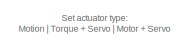
[diagram: root canvas - part 1/3, top left region]
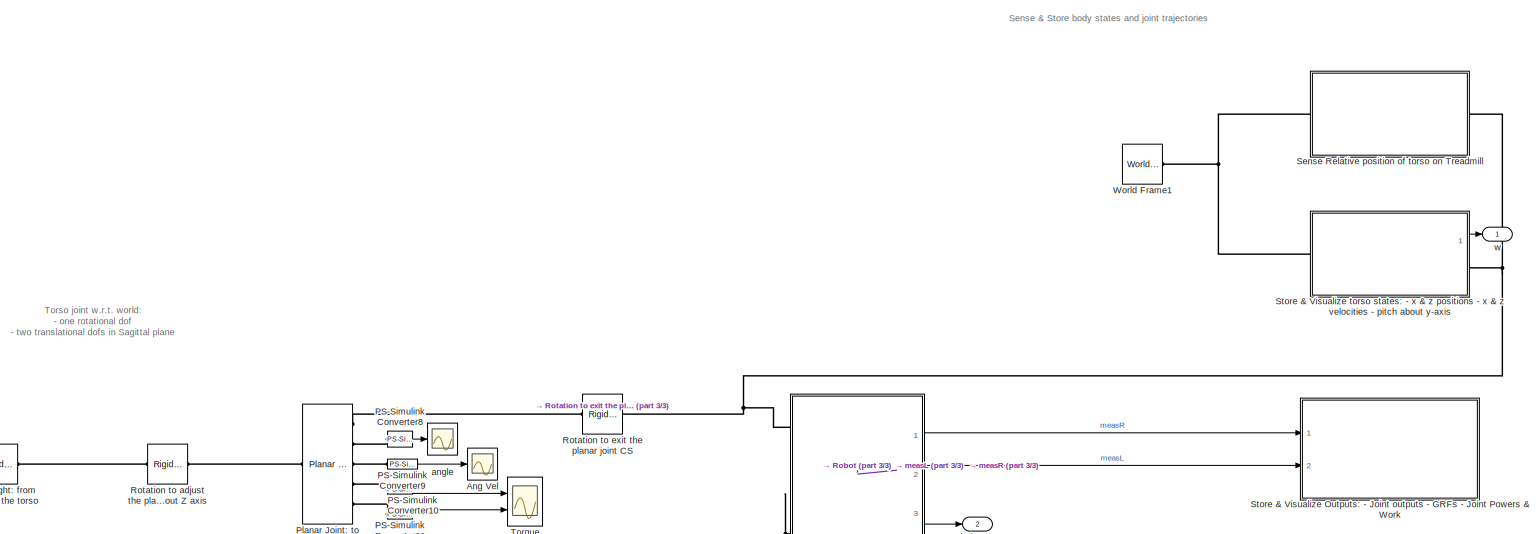
[diagram: root canvas - part 2/3, most of the canvas]
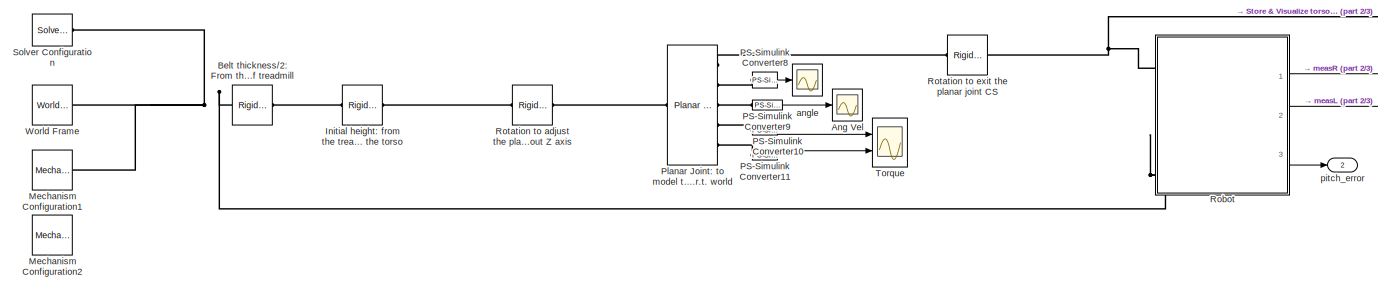
[diagram: root canvas - part 3/3, bottom center region]
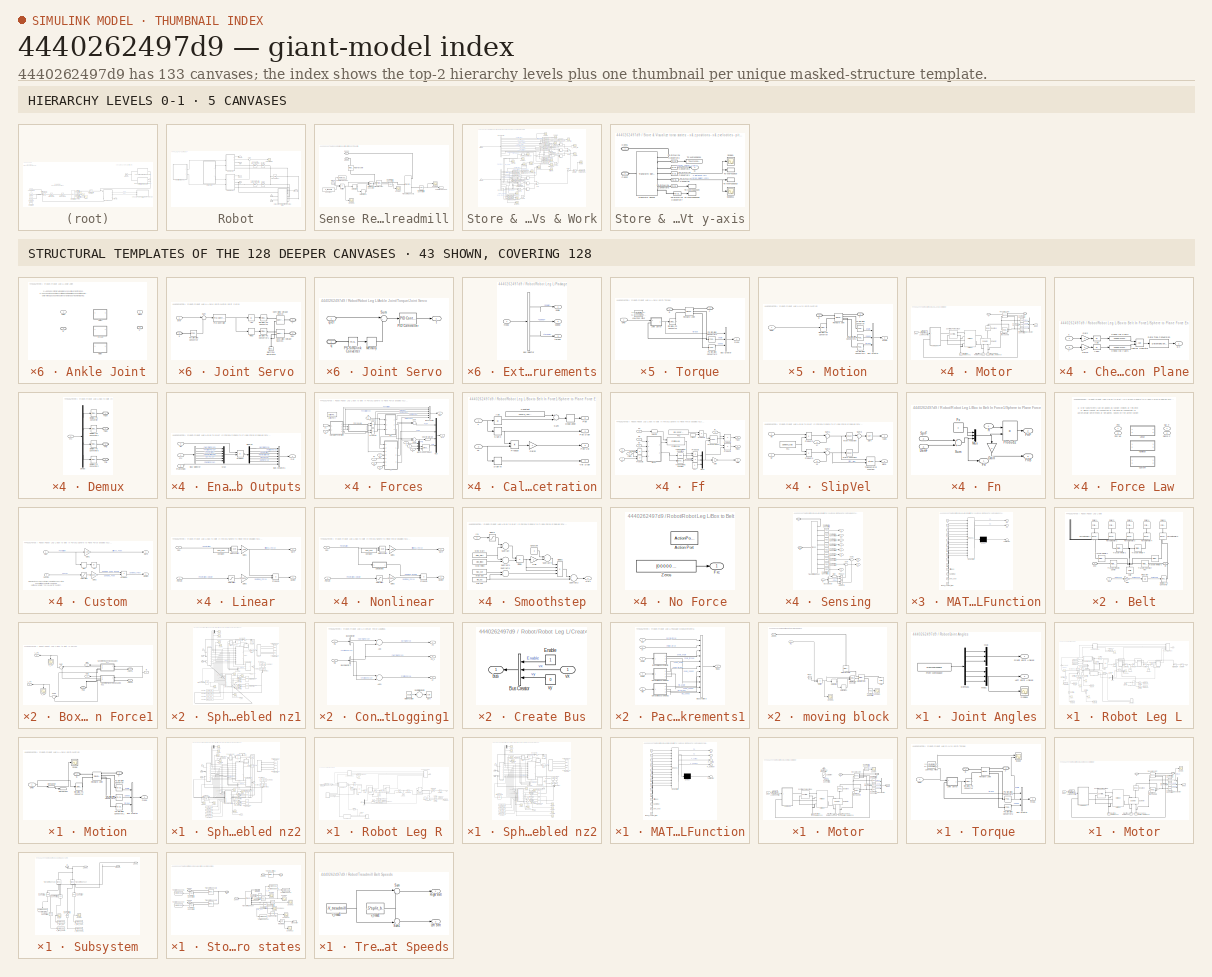
[diagram: thumbnail index - top-2 hierarchy levels (5 canvases) + 43 structural-template representatives of the remaining 128 canvases]
MODEL slx_4440262497d9
KIND model
CONFIG AbsTol = auto
CONFIG EnableMultiTasking = off
CONFIG FixedStep = auto
CONFIG MaxStep = auto
CONFIG MinStep = auto
CONFIG PreLoadFcn = YBT_HomeDir = pwd;\n\n% Code to use copy within this repository\naddpath([YBT_HomeDir filesep 'Libraries' filesep 'CFL_Libs']);\nstartup_Contact_Forces\n\ncd(YBT_HomeDir)\naddpath(YBT_HomeDir);\naddpath([YBT_HomeDir filesep 'Libraries']);\naddpath([YBT_HomeDir filesep 'Images']);\n\nRobot_Parameters
CONFIG RelTol = 1e-3
CONFIG SampleTimeConstraint = Unconstrained
CONFIG Solver = VariableStepAuto
CONFIG SolverName = VariableStepAuto
CONFIG StartTime = 0.0
CONFIG StopTime = 10.0
WORKSPACE source: external: MATLAB File  (data not in archive)
BLOCK [Scope] Ang Vel
  Floating = off
  NumInputPorts = 1
  Ports = [1]
  ScopeSpecificationString = Simulink.scopes.TimeScopeBlockCfg('CurrentConfiguration', extmgr.ConfigurationSet(extmgr.Configuration('Core','General UI',true),extmgr.Configuration('Core','Source UI',true),extmgr.Configuration('Sources','WiredSimulink',true,'DataLoggingVariableName','ScopeData3'),extmgr.Configuration('Visuals','Time Domain',true,'SerializedDisplays',{struct('MinYLimReal','-91.95165','MaxYLimReal','125.13872','Y...<+1558ch>
BLOCK [Reference] Belt thickness//2: From the world CS (Middle of Treadmill) to the surface of treadmill  REF=sm_lib/Frames and
Transforms/Rigid
Transform
  Ports = [0, 0, 0, 0, 0, 1, 1]
  SourceBlock = sm_lib/Frames and\nTransforms/Rigid\nTransform
  SourceProductBaseCode = MS
  SourceType = Rigid\nTransform
BLOCK [Reference] Initial height: from the treadmill surface to the torso   REF=sm_lib/Frames and
Transforms/Rigid
Transform
  Ports = [0, 0, 0, 0, 0, 1, 1]
  SourceBlock = sm_lib/Frames and\nTransforms/Rigid\nTransform
  SourceProductBaseCode = MS
  SourceType = Rigid\nTransform
BLOCK [Reference] Mechanism Configuration1  REF=sm_lib/Utilities/Mechanism
Configuration
  Ports = [0, 0, 0, 0, 0, 0, 1]
  SourceBlock = sm_lib/Utilities/Mechanism\nConfiguration
  SourceProductBaseCode = MS
  SourceType = Mechanism\nConfiguration
BLOCK [Reference] Mechanism Configuration2  REF=sm_lib/Utilities/Mechanism
Configuration
  Ports = [0, 0, 0, 0, 0, 0, 1]
  SourceBlock = sm_lib/Utilities/Mechanism\nConfiguration
  SourceProductBaseCode = MS
  SourceType = Mechanism\nConfiguration
BLOCK [Reference] PS-Simulink Converter10  REF=nesl_utility/PS-Simulink
Converter
  Ports = [0, 1, 0, 0, 0, 1]
  SourceBlock = nesl_utility/PS-Simulink\nConverter
  SourceProductBaseCode = SS
  SourceType = PS-Simulink\nConverter
BLOCK [Reference] PS-Simulink Converter11  REF=nesl_utility/PS-Simulink
Converter
  Ports = [0, 1, 0, 0, 0, 1]
  SourceBlock = nesl_utility/PS-Simulink\nConverter
  SourceProductBaseCode = SS
  SourceType = PS-Simulink\nConverter
BLOCK [Reference] PS-Simulink Converter8  REF=nesl_utility/PS-Simulink
Converter
  Ports = [0, 1, 0, 0, 0, 1]
  SourceBlock = nesl_utility/PS-Simulink\nConverter
  SourceProductBaseCode = SS
  SourceType = PS-Simulink\nConverter
BLOCK [Reference] PS-Simulink Converter9  REF=nesl_utility/PS-Simulink
Converter
  Ports = [0, 1, 0, 0, 0, 1]
  SourceBlock = nesl_utility/PS-Simulink\nConverter
  SourceProductBaseCode = SS
  SourceType = PS-Simulink\nConverter
BLOCK [Reference] Planar Joint: to model the 2 translational and 1 rotational DOFs of torso w.r.t. world  REF=sm_lib/Joints/Planar Joint
  Ports = [0, 0, 0, 0, 0, 1, 5]
  SourceBlock = sm_lib/Joints/Planar Joint
  SourceProductBaseCode = MS
  SourceType = Planar Joint
BLOCK [SubSystem] Robot
  Ports = [0, 3, 0, 0, 0, 4]
  RequestExecContextInheritance = off
BLOCK [PMIOPort] Robot/GL
  Port = 3
  Side = Left
BLOCK [PMIOPort] Robot/GR 
  Port = 2
  Side = Left
BLOCK [PMIOPort] Robot/Gr
  Port = 4
  Side = Left
BLOCK [SubSystem] Robot/Joint Angles
  Ports = [0, 2]
  RequestExecContextInheritance = off
BLOCK [Demux] Robot/Joint Angles/Demux1
  DisplayOption = bar
  Outputs = 6
  Ports = [1, 6]
BLOCK [FromWorkspace] Robot/Joint Angles/From Workspace
  SampleTime = 0
  VariableName = [T , -angles]
  ZeroCross = on
BLOCK [Outport] Robot/Joint Angles/Left Joint Angles
  IconDisplay = Port number
  Port = 2
BLOCK [Mux] Robot/Joint Angles/Mux
  DisplayOption = bar
  Inputs = 3
  Ports = [3, 1]
BLOCK [Mux] Robot/Joint Angles/Mux1
  DisplayOption = bar
  Inputs = 3
  Ports = [3, 1]
BLOCK [Outport] Robot/Joint Angles/Right Joint Angles
  IconDisplay = Port number
BLOCK [Scope] Robot/Joint Angles/Scope4
  Floating = off
  NumInputPorts = 1
  Ports = [1]
  ScopeSpecificationString = Simulink.scopes.TimeScopeBlockCfg('CurrentConfiguration', extmgr.ConfigurationSet(extmgr.Configuration('Core','General UI',true),extmgr.Configuration('Core','Source UI',true),extmgr.Configuration('Sources','WiredSimulink',true,'DataLoggingVariableName','ScopeData1'),extmgr.Configuration('Visuals','Time Domain',true,'SerializedDisplays',{struct('MinYLimReal','-1.30426','MaxYLimReal','0.45464','YLab...<+1416ch>
BLOCK [PMIOPort] Robot/R
  Side = Left
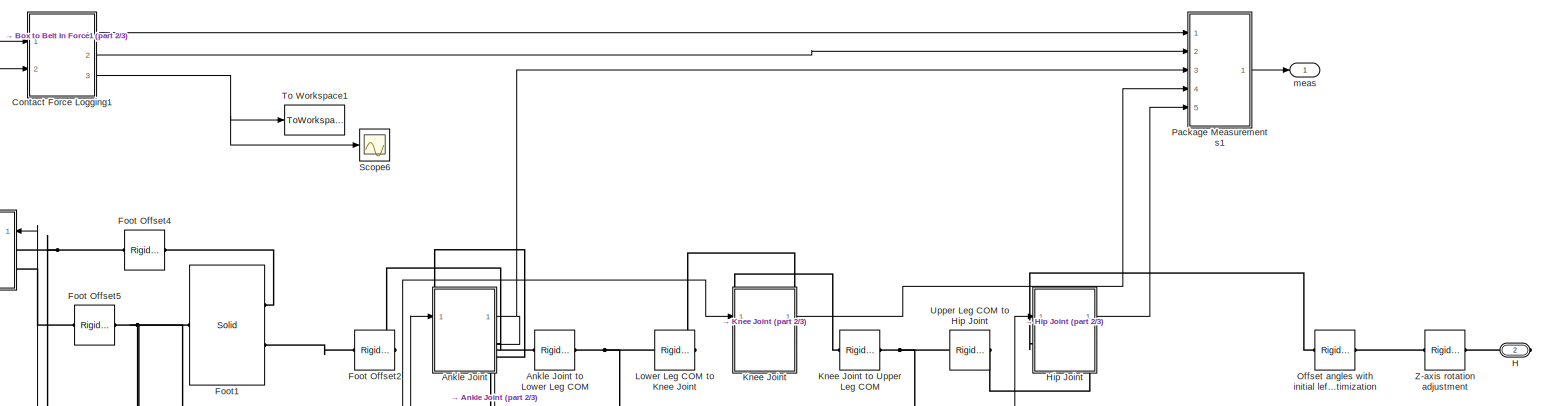
[diagram: Robot/Robot Leg L - part 1/3, full width, top band]
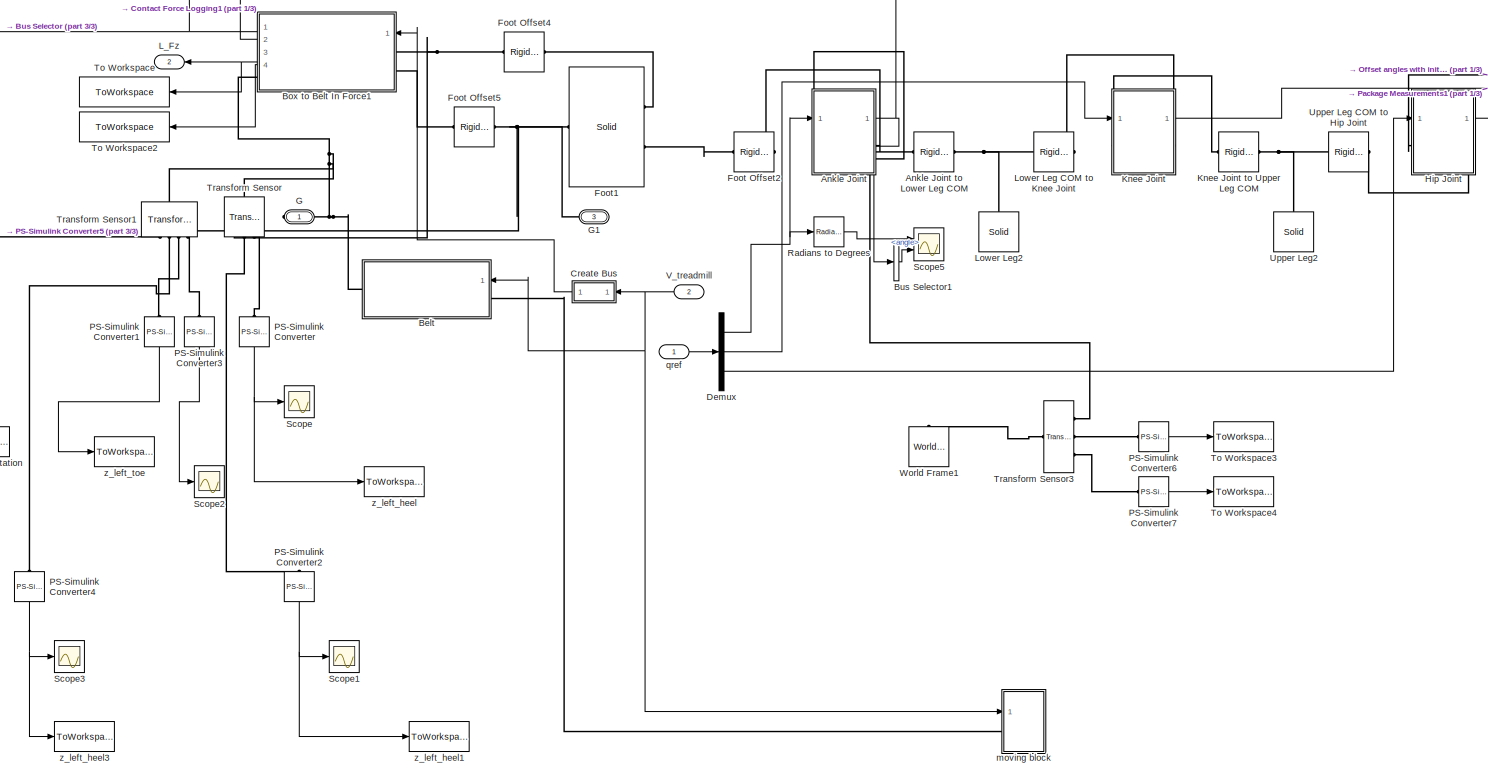
[diagram: Robot/Robot Leg L - part 2/3, most of the canvas]
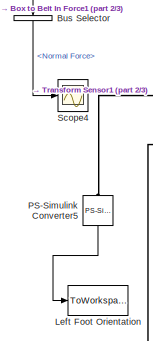
[diagram: Robot/Robot Leg L - part 3/3, middle left region]
BLOCK [SubSystem] Robot/Robot Leg L
  Ports = [2, 2, 0, 0, 0, 0, 3]
  RequestExecContextInheritance = off
BLOCK [SubSystem] Robot/Robot Leg L/Ankle Joint
  AncestorBlock = walkingRobotUtils/Leg Joint Actuator
  Ports = [1, 1, 0, 0, 0, 1, 1]
  RequestExecContextInheritance = off
  Variant = on
BLOCK [Reference] Robot/Robot Leg L/Ankle Joint to Lower Leg COM  REF=sm_lib/Frames and
Transforms/Rigid
Transform
  Ports = [0, 0, 0, 0, 0, 1, 1]
  SourceBlock = sm_lib/Frames and\nTransforms/Rigid\nTransform
  SourceProductBaseCode = MS
  SourceType = Rigid\nTransform
BLOCK [PMIOPort] Robot/Robot Leg L/Ankle Joint/B
  Side = Left
BLOCK [PMIOPort] Robot/Robot Leg L/Ankle Joint/F
  Port = 2
  Side = Right
BLOCK [SubSystem] Robot/Robot Leg L/Ankle Joint/Motion
  Ports = [1, 1, 0, 0, 0, 1, 1]
  RequestExecContextInheritance = off
  VariantControl = actuatorType == 1
BLOCK [PMIOPort] Robot/Robot Leg L/Ankle Joint/Motion/B
  Side = Left
BLOCK [BusCreator] Robot/Robot Leg L/Ankle Joint/Motion/Bus Creator
  DisplayOption = bar
  InheritFromInputs = on
  Inputs = 3
  Ports = [3, 1]
BLOCK [Derivative] Robot/Robot Leg L/Ankle Joint/Motion/Derivative
  CoefficientInTFapproximation = Tf
BLOCK [Derivative] Robot/Robot Leg L/Ankle Joint/Motion/Derivative1
  CoefficientInTFapproximation = Tf
BLOCK [PMIOPort] Robot/Robot Leg L/Ankle Joint/Motion/F
  Port = 2
  Side = Right
BLOCK [Reference] Robot/Robot Leg L/Ankle Joint/Motion/PS-Simulink Converter  REF=nesl_utility/PS-Simulink
Converter
  Ports = [0, 1, 0, 0, 0, 1]
  SourceBlock = nesl_utility/PS-Simulink\nConverter
  SourceProductBaseCode = SS
  SourceType = PS-Simulink\nConverter
BLOCK [Reference] Robot/Robot Leg L/Ankle Joint/Motion/PS-Simulink Converter1  REF=nesl_utility/PS-Simulink
Converter
  Ports = [0, 1, 0, 0, 0, 1]
  SourceBlock = nesl_utility/PS-Simulink\nConverter
  SourceProductBaseCode = SS
  SourceType = PS-Simulink\nConverter
BLOCK [Reference] Robot/Robot Leg L/Ankle Joint/Motion/PS-Simulink Converter2  REF=nesl_utility/PS-Simulink
Converter
  Ports = [0, 1, 0, 0, 0, 1]
  SourceBlock = nesl_utility/PS-Simulink\nConverter
  SourceProductBaseCode = SS
  SourceType = PS-Simulink\nConverter
BLOCK [Reference] Robot/Robot Leg L/Ankle Joint/Motion/Revolute Joint  REF=sm_lib/Joints/Revolute Joint
  Ports = [0, 0, 0, 0, 0, 2, 4]
  SourceBlock = sm_lib/Joints/Revolute Joint
  SourceProductBaseCode = MS
  SourceType = Revolute Joint
BLOCK [Scope] Robot/Robot Leg L/Ankle Joint/Motion/Scope
  Floating = off
  NumInputPorts = 1
  Ports = [1]
  ScopeSpecificationString = Simulink.scopes.TimeScopeBlockCfg('CurrentConfiguration', extmgr.ConfigurationSet(extmgr.Configuration('Core','General UI',true),extmgr.Configuration('Core','Source UI',true),extmgr.Configuration('Sources','WiredSimulink',true,'DataLoggingVariableName','ScopeData2'),extmgr.Configuration('Visuals','Time Domain',true,'SerializedDisplays',{struct('MinYLimReal','-5.93297','MaxYLimReal','3.64519','YLab...<+1413ch>
BLOCK [Reference] Robot/Robot Leg L/Ankle Joint/Motion/Simulink-PS Converter  REF=nesl_utility/Simulink-PS
Converter
  Ports = [1, 0, 0, 0, 0, 0, 1]
  SourceBlock = nesl_utility/Simulink-PS\nConverter
  SourceProductBaseCode = SS
  SourceType = Simulink-PS\nConverter
BLOCK [Outport] Robot/Robot Leg L/Ankle Joint/Motion/meas
  IconDisplay = Port number
BLOCK [Inport] Robot/Robot Leg L/Ankle Joint/Motion/qRef
  IconDisplay = Port number
BLOCK [SubSystem] Robot/Robot Leg L/Ankle Joint/Motor
  Ports = [1, 1, 0, 0, 0, 1, 1]
  RequestExecContextInheritance = off
  VariantControl = actuatorType == 3
BLOCK [PMIOPort] Robot/Robot Leg L/Ankle Joint/Motor/B
  Side = Left
BLOCK [BusCreator] Robot/Robot Leg L/Ankle Joint/Motor/Bus Creator
  DisplayOption = bar
  InheritFromInputs = on
  Inputs = 3
  Ports = [3, 1]
BLOCK [Reference] Robot/Robot Leg L/Ankle Joint/Motor/Controlled PWM Voltage  REF=ee_lib/Integrated Circuits/Controlled PWM
Voltage
  Ports = [0, 0, 0, 0, 0, 2, 2]
  SourceBlock = ee_lib/Integrated Circuits/Controlled PWM\nVoltage
  SourceProductBaseCode = PS
  SourceType = Controlled PWM\nVoltage
BLOCK [Reference] Robot/Robot Leg L/Ankle Joint/Motor/DC Motor  REF=ee_lib/Electromechanical/Brushed Motors/DC Motor
  Ports = [0, 0, 0, 0, 0, 2, 2]
  SourceBlock = ee_lib/Electromechanical/Brushed Motors/DC Motor
  SourceProductBaseCode = PS
  SourceType = DC Motor
BLOCK [Reference] Robot/Robot Leg L/Ankle Joint/Motor/Electrical Reference  REF=fl_lib/Electrical/Electrical Elements/Electrical Reference
  Ports = [0, 0, 0, 0, 0, 1]
  SourceBlock = fl_lib/Electrical/Electrical Elements/Electrical Reference
  SourceProductBaseCode = SS
  SourceType = Electrical Reference
BLOCK [Reference] Robot/Robot Leg L/Ankle Joint/Motor/Electrical Reference1  REF=fl_lib/Electrical/Electrical Elements/Electrical Reference
  Ports = [0, 0, 0, 0, 0, 1]
  SourceBlock = fl_lib/Electrical/Electrical Elements/Electrical Reference
  SourceProductBaseCode = SS
  SourceType = Electrical Reference
BLOCK [PMIOPort] Robot/Robot Leg L/Ankle Joint/Motor/F
  Port = 2
  Side = Right
BLOCK [Reference] Robot/Robot Leg L/Ankle Joint/Motor/Gear Box  REF=fl_lib/Mechanical/Mechanisms/Gear Box
  Ports = [0, 0, 0, 0, 0, 1, 1]
  SourceBlock = fl_lib/Mechanical/Mechanisms/Gear Box
  SourceProductBaseCode = SS
  SourceType = Gear Box
BLOCK [Reference] Robot/Robot Leg L/Ankle Joint/Motor/H-Bridge  REF=ee_lib/Semiconductors &
Converters/Converters/H-Bridge
  Ports = [0, 0, 0, 0, 0, 4, 2]
  SourceBlock = ee_lib/Semiconductors &\nConverters/Converters/H-Bridge
  SourceProductBaseCode = PS
  SourceType = H-Bridge
BLOCK [SubSystem] Robot/Robot Leg L/Ankle Joint/Motor/Joint Servo
  Ports = [1, 0, 0, 0, 0, 1, 2]
  RequestExecContextInheritance = off
BLOCK [Abs] Robot/Robot Leg L/Ankle Joint/Motor/Joint Servo/Abs
  SaturateOnIntegerOverflow = off
BLOCK [Reference] Robot/Robot Leg L/Ankle Joint/Motor/Joint Servo/Controlled Voltage Source  REF=fl_lib/Electrical/Electrical Sources/Controlled Voltage
Source
  Ports = [0, 0, 0, 0, 0, 1, 2]
  SourceBlock = fl_lib/Electrical/Electrical Sources/Controlled Voltage\nSource
  SourceProductBaseCode = SS
  SourceType = Controlled Voltage\nSource
BLOCK [Reference] Robot/Robot Leg L/Ankle Joint/Motor/Joint Servo/Controlled Voltage Source1  REF=fl_lib/Electrical/Electrical Sources/Controlled Voltage
Source
  Ports = [0, 0, 0, 0, 0, 1, 2]
  SourceBlock = fl_lib/Electrical/Electrical Sources/Controlled Voltage\nSource
  SourceProductBaseCode = SS
  SourceType = Controlled Voltage\nSource
BLOCK [Reference] Robot/Robot Leg L/Ankle Joint/Motor/Joint Servo/Electrical Reference  REF=fl_lib/Electrical/Electrical Elements/Electrical Reference
  Ports = [0, 0, 0, 0, 0, 1]
  SourceBlock = fl_lib/Electrical/Electrical Elements/Electrical Reference
  SourceProductBaseCode = SS
  SourceType = Electrical Reference
BLOCK [Reference] Robot/Robot Leg L/Ankle Joint/Motor/Joint Servo/PID Controller  REF=simulink/Continuous/PID Controller
  Ports = [1, 1]
  SourceBlock = simulink/Continuous/PID Controller
  SourceProductBaseCode = SL
  SourceType = PID 1dof
BLOCK [Reference] Robot/Robot Leg L/Ankle Joint/Motor/Joint Servo/PS-Simulink Converter  REF=nesl_utility/PS-Simulink
Converter
  Ports = [0, 1, 0, 0, 0, 1]
  SourceBlock = nesl_utility/PS-Simulink\nConverter
  SourceProductBaseCode = SS
  SourceType = PS-Simulink\nConverter
BLOCK [PMIOPort] Robot/Robot Leg L/Ankle Joint/Motor/Joint Servo/REV
  Port = 3
  Side = Right
BLOCK [Relay] Robot/Robot Leg L/Ankle Joint/Motor/Joint Servo/Relay
  OffOutputValue = 5
  OffSwitchValue = -1e-3
  OnOutputValue = 0
  OnSwitchValue = 1e-3
BLOCK [Reference] Robot/Robot Leg L/Ankle Joint/Motor/Joint Servo/Simulink-PS Converter  REF=nesl_utility/Simulink-PS
Converter
  Ports = [1, 0, 0, 0, 0, 0, 1]
  SourceBlock = nesl_utility/Simulink-PS\nConverter
  SourceProductBaseCode = SS
  SourceType = Simulink-PS\nConverter
BLOCK [Reference] Robot/Robot Leg L/Ankle Joint/Motor/Joint Servo/Simulink-PS Converter1  REF=nesl_utility/Simulink-PS
Converter
  Ports = [1, 0, 0, 0, 0, 0, 1]
  SourceBlock = nesl_utility/Simulink-PS\nConverter
  SourceProductBaseCode = SS
  SourceType = Simulink-PS\nConverter
BLOCK [Sum] Robot/Robot Leg L/Ankle Joint/Motor/Joint Servo/Sum
  IconShape = round
  InputSameDT = off
  Inputs = |+-
  OutDataTypeStr = Inherit: Inherit via internal rule
  Ports = [2, 1]
  SaturateOnIntegerOverflow = off
BLOCK [PMIOPort] Robot/Robot Leg L/Ankle Joint/Motor/Joint Servo/V
  Port = 2
  Side = Right
BLOCK [PMIOPort] Robot/Robot Leg L/Ankle Joint/Motor/Joint Servo/q
  Side = Left
BLOCK [Inport] Robot/Robot Leg L/Ankle Joint/Motor/Joint Servo/qref
  IconDisplay = Port number
BLOCK [TransferFcn] Robot/Robot Leg L/Ankle Joint/Motor/Low-Pass Filter
  Denominator = [1 2/motion_time_constant (1/motion_time_constant)^2]
  Numerator = [(1/motion_time_constant)^2]
BLOCK [Reference] Robot/Robot Leg L/Ankle Joint/Motor/Mechanical Rotational Reference  REF=fl_lib/Mechanical/Rotational Elements/Mechanical
Rotational Reference
  Ports = [0, 0, 0, 0, 0, 1]
  SourceBlock = fl_lib/Mechanical/Rotational Elements/Mechanical\nRotational Reference
  SourceProductBaseCode = SS
  SourceType = Mechanical\nRotational Reference
BLOCK [Reference] Robot/Robot Leg L/Ankle Joint/Motor/PS-Simulink Converter1  REF=nesl_utility/PS-Simulink
Converter
  Ports = [0, 1, 0, 0, 0, 1]
  SourceBlock = nesl_utility/PS-Simulink\nConverter
  SourceProductBaseCode = SS
  SourceType = PS-Simulink\nConverter
BLOCK [Reference] Robot/Robot Leg L/Ankle Joint/Motor/PS-Simulink Converter2  REF=nesl_utility/PS-Simulink
Converter
  Ports = [0, 1, 0, 0, 0, 1]
  SourceBlock = nesl_utility/PS-Simulink\nConverter
  SourceProductBaseCode = SS
  SourceType = PS-Simulink\nConverter
BLOCK [Reference] Robot/Robot Leg L/Ankle Joint/Motor/PS-Simulink Converter3  REF=nesl_utility/PS-Simulink
Converter
  Ports = [0, 1, 0, 0, 0, 1]
  SourceBlock = nesl_utility/PS-Simulink\nConverter
  SourceProductBaseCode = SS
  SourceType = PS-Simulink\nConverter
BLOCK [Reference] Robot/Robot Leg L/Ankle Joint/Motor/Revolute Joint  REF=sm_lib/Joints/Revolute Joint
  Ports = [0, 0, 0, 0, 0, 2, 3]
  SourceBlock = sm_lib/Joints/Revolute Joint
  SourceProductBaseCode = MS
  SourceType = Revolute Joint
BLOCK [Reference] Robot/Robot Leg L/Ankle Joint/Motor/Rotational Simscape Intf  REF=Multibody_Multiphysics_Lib/Interfaces/Rotational
Simscape Intf
  Ports = [0, 0, 0, 0, 0, 2, 2]
  SourceBlock = Multibody_Multiphysics_Lib/Interfaces/Rotational\nSimscape Intf
  SourceProductName = Simscape Multibody Multiphysics Library
  SourceType = SubSystem
BLOCK [Outport] Robot/Robot Leg L/Ankle Joint/Motor/meas
  IconDisplay = Port number
BLOCK [Inport] Robot/Robot Leg L/Ankle Joint/Motor/qRef
  IconDisplay = Port number
BLOCK [SubSystem] Robot/Robot Leg L/Ankle Joint/Torque
  Ports = [1, 1, 0, 0, 0, 1, 1]
  RequestExecContextInheritance = off
  VariantControl = actuatorType == 2
BLOCK [PMIOPort] Robot/Robot Leg L/Ankle Joint/Torque/B
  Side = Left
BLOCK [BusCreator] Robot/Robot Leg L/Ankle Joint/Torque/Bus Creator
  DisplayOption = bar
  InheritFromInputs = on
  Inputs = 3
  Ports = [3, 1]
BLOCK [PMIOPort] Robot/Robot Leg L/Ankle Joint/Torque/F
  Port = 2
  Side = Right
BLOCK [SubSystem] Robot/Robot Leg L/Ankle Joint/Torque/Joint Servo
  Ports = [1, 1, 0, 0, 0, 1]
  RequestExecContextInheritance = off
BLOCK [Memory] Robot/Robot Leg L/Ankle Joint/Torque/Joint Servo/Memory
BLOCK [Reference] Robot/Robot Leg L/Ankle Joint/Torque/Joint Servo/PID Controller  REF=simulink/Continuous/PID Controller
  Ports = [1, 1]
  SourceBlock = simulink/Continuous/PID Controller
  SourceProductBaseCode = SL
  SourceType = PID 1dof
BLOCK [Reference] Robot/Robot Leg L/Ankle Joint/Torque/Joint Servo/PS-Simulink Converter  REF=nesl_utility/PS-Simulink
Converter
  Ports = [0, 1, 0, 0, 0, 1]
  SourceBlock = nesl_utility/PS-Simulink\nConverter
  SourceProductBaseCode = SS
  SourceType = PS-Simulink\nConverter
BLOCK [Sum] Robot/Robot Leg L/Ankle Joint/Torque/Joint Servo/Sum
  IconShape = round
  InputSameDT = off
  Inputs = |+-
  OutDataTypeStr = Inherit: Inherit via internal rule
  Ports = [2, 1]
  SaturateOnIntegerOverflow = off
BLOCK [PMIOPort] Robot/Robot Leg L/Ankle Joint/Torque/Joint Servo/q
  Side = Left
BLOCK [Inport] Robot/Robot Leg L/Ankle Joint/Torque/Joint Servo/qref
  IconDisplay = Port number
BLOCK [Outport] Robot/Robot Leg L/Ankle Joint/Torque/Joint Servo/t
  IconDisplay = Port number
BLOCK [TransferFcn] Robot/Robot Leg L/Ankle Joint/Torque/Low-Pass Filter
  Denominator = [1 2/motion_time_constant (1/motion_time_constant)^2]
  Numerator = [(1/motion_time_constant)^2]
BLOCK [Reference] Robot/Robot Leg L/Ankle Joint/Torque/PS-Simulink Converter1  REF=nesl_utility/PS-Simulink
Converter
  Ports = [0, 1, 0, 0, 0, 1]
  SourceBlock = nesl_utility/PS-Simulink\nConverter
  SourceProductBaseCode = SS
  SourceType = PS-Simulink\nConverter
BLOCK [Reference] Robot/Robot Leg L/Ankle Joint/Torque/PS-Simulink Converter2  REF=nesl_utility/PS-Simulink
Converter
  Ports = [0, 1, 0, 0, 0, 1]
  SourceBlock = nesl_utility/PS-Simulink\nConverter
  SourceProductBaseCode = SS
  SourceType = PS-Simulink\nConverter
BLOCK [Reference] Robot/Robot Leg L/Ankle Joint/Torque/Revolute Joint  REF=sm_lib/Joints/Revolute Joint
  Ports = [0, 0, 0, 0, 0, 2, 3]
  SourceBlock = sm_lib/Joints/Revolute Joint
  SourceProductBaseCode = MS
  SourceType = Revolute Joint
BLOCK [Reference] Robot/Robot Leg L/Ankle Joint/Torque/Simulink-PS Converter  REF=nesl_utility/Simulink-PS
Converter
  Ports = [1, 0, 0, 0, 0, 0, 1]
  SourceBlock = nesl_utility/Simulink-PS\nConverter
  SourceProductBaseCode = SS
  SourceType = Simulink-PS\nConverter
BLOCK [Outport] Robot/Robot Leg L/Ankle Joint/Torque/meas
  IconDisplay = Port number
BLOCK [Inport] Robot/Robot Leg L/Ankle Joint/Torque/qRef
  IconDisplay = Port number
BLOCK [Outport] Robot/Robot Leg L/Ankle Joint/meas
  IconDisplay = Port number
BLOCK [Inport] Robot/Robot Leg L/Ankle Joint/qRef
  IconDisplay = Port number
BLOCK [SubSystem] Robot/Robot Leg L/Belt
  Ports = [1, 0, 0, 0, 0, 1, 1]
  RequestExecContextInheritance = off
  Tag = CustomStyle
BLOCK [PMIOPort] Robot/Robot Leg L/Belt/Ctr
  Side = Right
BLOCK [PMIOPort] Robot/Robot Leg L/Belt/End
  Port = 2
  Side = Left
BLOCK [Gain] Robot/Robot Leg L/Belt/Gain
  Gain = 1/(belt_d/2*0.8)
  OutDataTypeStr = Inherit: Inherit via internal rule
  ParamDataTypeStr = Inherit: Inherit via internal rule
  SaturateOnIntegerOverflow = off
BLOCK [Integrator] Robot/Robot Leg L/Belt/Integrator
  Ports = [1, 1]
BLOCK [Reference] Robot/Robot Leg L/Belt/Revolute Roller 1  REF=sm_lib/Joints/Revolute Joint
  Ports = [0, 0, 0, 0, 0, 2, 1]
  SourceBlock = sm_lib/Joints/Revolute Joint
  SourceProductBaseCode = MS
  SourceType = Revolute Joint
BLOCK [Reference] Robot/Robot Leg L/Belt/Revolute Roller 2  REF=sm_lib/Joints/Revolute Joint
  Ports = [0, 0, 0, 0, 0, 2, 1]
  SourceBlock = sm_lib/Joints/Revolute Joint
  SourceProductBaseCode = MS
  SourceType = Revolute Joint
BLOCK [Reference] Robot/Robot Leg L/Belt/Revolute Roller 3  REF=sm_lib/Joints/Revolute Joint
  Ports = [0, 0, 0, 0, 0, 2, 1]
  SourceBlock = sm_lib/Joints/Revolute Joint
  SourceProductBaseCode = MS
  SourceType = Revolute Joint
BLOCK [Reference] Robot/Robot Leg L/Belt/Revolute Roller 4  REF=sm_lib/Joints/Revolute Joint
  Ports = [0, 0, 0, 0, 0, 2, 1]
  SourceBlock = sm_lib/Joints/Revolute Joint
  SourceProductBaseCode = MS
  SourceType = Revolute Joint
BLOCK [Reference] Robot/Robot Leg L/Belt/Revolute Roller 5  REF=sm_lib/Joints/Revolute Joint
  Ports = [0, 0, 0, 0, 0, 2, 1]
  SourceBlock = sm_lib/Joints/Revolute Joint
  SourceProductBaseCode = MS
  SourceType = Revolute Joint
BLOCK [Reference] Robot/Robot Leg L/Belt/Roller 1  REF=Parts_Lib/Cylinder
  Ports = [0, 0, 0, 0, 0, 1]
  SourceBlock = Parts_Lib/Cylinder
  SourceType = Solid Cylinder with Markings
  Tag = CustomStyle
BLOCK [Reference] Robot/Robot Leg L/Belt/Roller 2  REF=Parts_Lib/Cylinder
  Ports = [0, 0, 0, 0, 0, 1]
  SourceBlock = Parts_Lib/Cylinder
  SourceType = Solid Cylinder with Markings
  Tag = CustomStyle
BLOCK [Reference] Robot/Robot Leg L/Belt/Roller 3  REF=Parts_Lib/Cylinder
  Ports = [0, 0, 0, 0, 0, 1]
  SourceBlock = Parts_Lib/Cylinder
  SourceType = Solid Cylinder with Markings
  Tag = CustomStyle
BLOCK [Reference] Robot/Robot Leg L/Belt/Roller 4  REF=Parts_Lib/Cylinder
  Ports = [0, 0, 0, 0, 0, 1]
  SourceBlock = Parts_Lib/Cylinder
  SourceType = Solid Cylinder with Markings
  Tag = CustomStyle
BLOCK [Reference] Robot/Robot Leg L/Belt/Roller 5  REF=Parts_Lib/Cylinder
  Ports = [0, 0, 0, 0, 0, 1]
  SourceBlock = Parts_Lib/Cylinder
  SourceType = Solid Cylinder with Markings
  Tag = CustomStyle
BLOCK [Reference] Robot/Robot Leg L/Belt/Simulink-PS Converter  REF=nesl_utility/Simulink-PS
Converter
  Ports = [1, 0, 0, 0, 0, 0, 1]
  SourceBlock = nesl_utility/Simulink-PS\nConverter
  SourceProductBaseCode = SS
  SourceType = Simulink-PS\nConverter
BLOCK [Reference] Robot/Robot Leg L/Belt/Solid  REF=sm_lib/Body Elements/Solid
  Ports = [0, 0, 0, 0, 0, 0, 1]
  SourceBlock = sm_lib/Body Elements/Solid
  SourceProductBaseCode = MS
  SourceType = Solid
BLOCK [Inport] Robot/Robot Leg L/Belt/Spd
  IconDisplay = Port number
BLOCK [Reference] Robot/Robot Leg L/Belt/Transform Contact Ref  REF=sm_lib/Frames and
Transforms/Rigid
Transform
  Ports = [0, 0, 0, 0, 0, 1, 1]
  SourceBlock = sm_lib/Frames and\nTransforms/Rigid\nTransform
  SourceProductBaseCode = MS
  SourceType = Rigid\nTransform
BLOCK [Reference] Robot/Robot Leg L/Belt/Transform Ramp Center  REF=sm_lib/Frames and
Transforms/Rigid
Transform
  Ports = [0, 0, 0, 0, 0, 1, 1]
  SourceBlock = sm_lib/Frames and\nTransforms/Rigid\nTransform
  SourceProductBaseCode = MS
  SourceType = Rigid\nTransform
BLOCK [Reference] Robot/Robot Leg L/Belt/Transform Roller 1  REF=sm_lib/Frames and
Transforms/Rigid
Transform
  Ports = [0, 0, 0, 0, 0, 1, 1]
  SourceBlock = sm_lib/Frames and\nTransforms/Rigid\nTransform
  SourceProductBaseCode = MS
  SourceType = Rigid\nTransform
BLOCK [Reference] Robot/Robot Leg L/Belt/Transform Roller 2  REF=sm_lib/Frames and
Transforms/Rigid
Transform
  Ports = [0, 0, 0, 0, 0, 1, 1]
  SourceBlock = sm_lib/Frames and\nTransforms/Rigid\nTransform
  SourceProductBaseCode = MS
  SourceType = Rigid\nTransform
BLOCK [Reference] Robot/Robot Leg L/Belt/Transform Roller 4  REF=sm_lib/Frames and
Transforms/Rigid
Transform
  Ports = [0, 0, 0, 0, 0, 1, 1]
  SourceBlock = sm_lib/Frames and\nTransforms/Rigid\nTransform
  SourceProductBaseCode = MS
  SourceType = Rigid\nTransform
BLOCK [Reference] Robot/Robot Leg L/Belt/Transform Roller 5  REF=sm_lib/Frames and
Transforms/Rigid
Transform
  Ports = [0, 0, 0, 0, 0, 1, 1]
  SourceBlock = sm_lib/Frames and\nTransforms/Rigid\nTransform
  SourceProductBaseCode = MS
  SourceType = Rigid\nTransform
BLOCK [SubSystem] Robot/Robot Leg L/Box to Belt In Force1
  AncestorBlock = Contact_Forces_Lib/3D/Composite\nForces/Face to Belt Faces Force
  Ports = [1, 4, 0, 0, 0, 2, 1]
  RequestExecContextInheritance = off
BLOCK [PMIOPort] Robot/Robot Leg L/Box to Belt In Force1/FacF1
  Side = Left
BLOCK [PMIOPort] Robot/Robot Leg L/Box to Belt In Force1/FacF2
  Port = 2
  Side = Left
BLOCK [Inport] Robot/Robot Leg L/Box to Belt In Force1/In
  IconDisplay = Port number
BLOCK [Scope] Robot/Robot Leg L/Box to Belt In Force1/L_Fx
  Floating = off
  NumInputPorts = 1
  Ports = [1]
  ScopeSpecificationString = Simulink.scopes.TimeScopeBlockCfg('CurrentConfiguration', extmgr.ConfigurationSet(extmgr.Configuration('Core','General UI',true),extmgr.Configuration('Core','Source UI',true),extmgr.Configuration('Sources','WiredSimulink',true,'DataLoggingVariableName','ScopeData8'),extmgr.Configuration('Visuals','Time Domain',true,'SerializedDisplays',{struct('MinYLimReal','-299.39848','MaxYLimReal','332.84781','...<+1570ch>
BLOCK [Outport] Robot/Robot Leg L/Box to Belt In Force1/L_Fx 
  IconDisplay = Port number
  Port = 4
  VectorParamsAs1DForOutWhenUnconnected = on
BLOCK [Scope] Robot/Robot Leg L/Box to Belt In Force1/L_Fz
  Floating = off
  NumInputPorts = 1
  Ports = [1]
  ScopeSpecificationString = Simulink.scopes.TimeScopeBlockCfg('CurrentConfiguration', extmgr.ConfigurationSet(extmgr.Configuration('Core','General UI',true),extmgr.Configuration('Core','Source UI',true),extmgr.Configuration('Sources','WiredSimulink',true,'DataLoggingVariableName','ScopeData6'),extmgr.Configuration('Visuals','Time Domain',true,'SerializedDisplays',{struct('MinYLimReal','-177.02036','MaxYLimReal','1593.1832','...<+1569ch>
BLOCK [Outport] Robot/Robot Leg L/Box to Belt In Force1/L_Fz 
  IconDisplay = Port number
  Port = 3
  VectorParamsAs1DForOutWhenUnconnected = on
BLOCK [Outport] Robot/Robot Leg L/Box to Belt In Force1/Out
  IconDisplay = Port number
BLOCK [Outport] Robot/Robot Leg L/Box to Belt In Force1/Out1
  IconDisplay = Port number
  Port = 2
BLOCK [PMIOPort] Robot/Robot Leg L/Box to Belt In Force1/PlaB
  Port = 3
  Side = Right
BLOCK [SubSystem] Robot/Robot Leg L/Box to Belt In Force1/Sphere to Plane Force Enabled nz1
  AncestorBlock = Contact_Forces_Lib/3D/Sphere to Plane Force\nEnabled
  Ports = [1, 3, 0, 0, 0, 1, 1]
  RequestExecContextInheritance = off
BLOCK [BusCreator] Robot/Robot Leg L/Box to Belt In Force1/Sphere to Plane Force Enabled nz1/Bus Creator
  DisplayOption = bar
  InheritFromInputs = on
  Inputs = 3
  Ports = [3, 1]
BLOCK [BusSelector] Robot/Robot Leg L/Box to Belt In Force1/Sphere to Plane Force Enabled nz1/Bus Selector1
  OutputAsBus = off
  OutputSignals = Enable
  Ports = [1, 1]
BLOCK [SubSystem] Robot/Robot Leg L/Box to Belt In Force1/Sphere to Plane Force Enabled nz1/Check Sphere on Plane
  Ports = [2, 1]
  RequestExecContextInheritance = off
BLOCK [Abs] Robot/Robot Leg L/Box to Belt In Force1/Sphere to Plane Force Enabled nz1/Check Sphere on Plane/Abs
  SaturateOnIntegerOverflow = off
  ZeroCross = off
BLOCK [Abs] Robot/Robot Leg L/Box to Belt In Force1/Sphere to Plane Force Enabled nz1/Check Sphere on Plane/Abs1
  SaturateOnIntegerOverflow = off
  ZeroCross = off
BLOCK [Reference] Robot/Robot Leg L/Box to Belt In Force1/Sphere to Plane Force Enabled nz1/Check Sphere on Plane/Check loc x-axis  REF=simulink/Logic and Bit
Operations/Compare
To Constant
  Ports = [1, 1]
  SourceBlock = simulink/Logic and Bit\nOperations/Compare\nTo Constant
  SourceProductBaseCode = SL
  SourceType = Compare To Constant
BLOCK [Reference] Robot/Robot Leg L/Box to Belt In Force1/Sphere to Plane Force Enabled nz1/Check Sphere on Plane/Check loc y-axis  REF=simulink/Logic and Bit
Operations/Compare
To Constant
  Ports = [1, 1]
  SourceBlock = simulink/Logic and Bit\nOperations/Compare\nTo Constant
  SourceProductBaseCode = SL
  SourceType = Compare To Constant
BLOCK [DataTypeConversion] Robot/Robot Leg L/Box to Belt In Force1/Sphere to Plane Force Enabled nz1/Check Sphere on Plane/Data Type Conversion
  RndMeth = Floor
  SaturateOnIntegerOverflow = off
BLOCK [Outport] Robot/Robot Leg L/Box to Belt In Force1/Sphere to Plane Force Enabled nz1/Check Sphere on Plane/En
  IconDisplay = Port number
BLOCK [Gain] Robot/Robot Leg L/Box to Belt In Force1/Sphere to Plane Force Enabled nz1/Check Sphere on Plane/Gain
  Gain = 2
  OutDataTypeStr = Inherit: Inherit via internal rule
  ParamDataTypeStr = Inherit: Inherit via internal rule
  SaturateOnIntegerOverflow = off
BLOCK [Gain] Robot/Robot Leg L/Box to Belt In Force1/Sphere to Plane Force Enabled nz1/Check Sphere on Plane/Gain1
  Gain = 2
  OutDataTypeStr = Inherit: Inherit via internal rule
  ParamDataTypeStr = Inherit: Inherit via internal rule
  SaturateOnIntegerOverflow = off
BLOCK [Logic] Robot/Robot Leg L/Box to Belt In Force1/Sphere to Plane Force Enabled nz1/Check Sphere on Plane/Logical Operator
  AllPortsSameDT = off
  OutDataTypeStr = boolean
  Ports = [2, 1]
BLOCK [Inport] Robot/Robot Leg L/Box to Belt In Force1/Sphere to Plane Force Enabled nz1/Check Sphere on Plane/x
  IconDisplay = Port number
BLOCK [Inport] Robot/Robot Leg L/Box to Belt In Force1/Sphere to Plane Force Enabled nz1/Check Sphere on Plane/y
  IconDisplay = Port number
  Port = 2
BLOCK [Reference] Robot/Robot Leg L/Box to Belt In Force1/Sphere to Plane Force Enabled nz1/Coefficient of Friction vs Velocity  REF=Contact_Forces_Lib/Friction Law/Stick-Slip C
/Coefficient of Friction
vs Velocity
  Ports = [1, 1]
  SourceBlock = Contact_Forces_Lib/Friction Law/Stick-Slip C\n/Coefficient of Friction\nvs Velocity
  SourceProductName = Simscape Multibody Contact Forces Library
BLOCK [Constant] Robot/Robot Leg L/Box to Belt In Force1/Sphere to Plane Force Enabled nz1/Constant
  Value = contact_stiffness
BLOCK [Constant] Robot/Robot Leg L/Box to Belt In Force1/Sphere to Plane Force Enabled nz1/Constant1
  Value = contact_damping
BLOCK [Constant] Robot/Robot Leg L/Box to Belt In Force1/Sphere to Plane Force Enabled nz1/Constant2
  Value = pen_exp
BLOCK [Constant] Robot/Robot Leg L/Box to Belt In Force1/Sphere to Plane Force Enabled nz1/Constant3
  Value = linear_contact_flag
BLOCK [Constant] Robot/Robot Leg L/Box to Belt In Force1/Sphere to Plane Force Enabled nz1/Constant4
  Value = 0
BLOCK [SubSystem] Robot/Robot Leg L/Box to Belt In Force1/Sphere to Plane Force Enabled nz1/Demux
  Ports = [1, 0, 0, 0, 0, 0, 4]
  RequestExecContextInheritance = off
BLOCK [Demux] Robot/Robot Leg L/Box to Belt In Force1/Sphere to Plane Force Enabled nz1/Demux/Demux
  DisplayOption = bar
  Ports = [1, 4]
BLOCK [PMIOPort] Robot/Robot Leg L/Box to Belt In Force1/Sphere to Plane Force Enabled nz1/Demux/FPla
  Port = 3
  Side = Right
BLOCK [PMIOPort] Robot/Robot Leg L/Box to Belt In Force1/Sphere to Plane Force Enabled nz1/Demux/FSph
  Side = Right
BLOCK [Inport] Robot/Robot Leg L/Box to Belt In Force1/Sphere to Plane Force Enabled nz1/Demux/Frc
  IconDisplay = Port number
BLOCK [Reference] Robot/Robot Leg L/Box to Belt In Force1/Sphere to Plane Force Enabled nz1/Demux/Simulink-PS Converter  REF=nesl_utility/Simulink-PS
Converter
  Ports = [1, 0, 0, 0, 0, 0, 1]
  SourceBlock = nesl_utility/Simulink-PS\nConverter
  SourceProductBaseCode = SS
  SourceType = Simulink-PS\nConverter
BLOCK [Reference] Robot/Robot Leg L/Box to Belt In Force1/Sphere to Plane Force Enabled nz1/Demux/Simulink-PS Converter1  REF=nesl_utility/Simulink-PS
Converter
  Ports = [1, 0, 0, 0, 0, 0, 1]
  SourceBlock = nesl_utility/Simulink-PS\nConverter
  SourceProductBaseCode = SS
  SourceType = Simulink-PS\nConverter
BLOCK [Reference] Robot/Robot Leg L/Box to Belt In Force1/Sphere to Plane Force Enabled nz1/Demux/Simulink-PS Converter2  REF=nesl_utility/Simulink-PS
Converter
  Ports = [1, 0, 0, 0, 0, 0, 1]
  SourceBlock = nesl_utility/Simulink-PS\nConverter
  SourceProductBaseCode = SS
  SourceType = Simulink-PS\nConverter
BLOCK [Reference] Robot/Robot Leg L/Box to Belt In Force1/Sphere to Plane Force Enabled nz1/Demux/Simulink-PS Converter6  REF=nesl_utility/Simulink-PS
Converter
  Ports = [1, 0, 0, 0, 0, 0, 1]
  SourceBlock = nesl_utility/Simulink-PS\nConverter
  SourceProductBaseCode = SS
  SourceType = Simulink-PS\nConverter
BLOCK [PMIOPort] Robot/Robot Leg L/Box to Belt In Force1/Sphere to Plane Force Enabled nz1/Demux/TPla
  Port = 4
  Side = Right
BLOCK [PMIOPort] Robot/Robot Leg L/Box to Belt In Force1/Sphere to Plane Force Enabled nz1/Demux/TSph
  Port = 2
  Side = Right
BLOCK [SubSystem] Robot/Robot Leg L/Box to Belt In Force1/Sphere to Plane Force Enabled nz1/Enable Outputs
  Ports = [3, 1]
  RequestExecContextInheritance = off
BLOCK [BusCreator] Robot/Robot Leg L/Box to Belt In Force1/Sphere to Plane Force Enabled nz1/Enable Outputs/Bus Creator1
  DisplayOption = bar
  InheritFromInputs = on
  Inputs = 7
  Ports = [7, 1]
BLOCK [BusSelector] Robot/Robot Leg L/Box to Belt In Force1/Sphere to Plane Force Enabled nz1/Enable Outputs/Bus Selector
  OutputAsBus = off
  OutputSignals = Normal Force,Friction Force,Penetration,Penetration Vel,Spr Force,Damp Force
  Ports = [1, 6]
BLOCK [Demux] Robot/Robot Leg L/Box to Belt In Force1/Sphere to Plane Force Enabled nz1/Enable Outputs/Demux
  DisplayOption = bar
  Outputs = [1 3 1 1 1 1]
  Ports = [1, 6]
BLOCK [Inport] Robot/Robot Leg L/Box to Belt In Force1/Sphere to Plane Force Enabled nz1/Enable Outputs/En
  IconDisplay = Port number
  Port = 2
BLOCK [Inport] Robot/Robot Leg L/Box to Belt In Force1/Sphere to Plane Force Enabled nz1/Enable Outputs/FrameSep
  IconDisplay = Port number
  Port = 3
BLOCK [Inport] Robot/Robot Leg L/Box to Belt In Force1/Sphere to Plane Force Enabled nz1/Enable Outputs/Frc
  IconDisplay = Port number
BLOCK [Mux] Robot/Robot Leg L/Box to Belt In Force1/Sphere to Plane Force Enabled nz1/Enable Outputs/Mux
  DisplayOption = bar
  Inputs = 6
  Ports = [6, 1]
BLOCK [Outport] Robot/Robot Leg L/Box to Belt In Force1/Sphere to Plane Force Enabled nz1/Enable Outputs/Out
  IconDisplay = Port number
BLOCK [Product] Robot/Robot Leg L/Box to Belt In Force1/Sphere to Plane Force Enabled nz1/Enable Outputs/Product
  InputSameDT = off
  OutDataTypeStr = Inherit: Inherit via internal rule
  Ports = [2, 1]
  RndMeth = Floor
  SaturateOnIntegerOverflow = off
BLOCK [Reference] Robot/Robot Leg L/Box to Belt In Force1/Sphere to Plane Force Enabled nz1/External Force and Torque PlaB  REF=sm_lib/Forces and
Torques/External Force
and Torque
  Commented = on
  Ports = [0, 0, 0, 0, 0, 2, 1]
  SourceBlock = sm_lib/Forces and\nTorques/External Force\nand Torque
  SourceProductBaseCode = MS
  SourceType = External Force\nand Torque
BLOCK [Reference] Robot/Robot Leg L/Box to Belt In Force1/Sphere to Plane Force Enabled nz1/External Force and Torque PlaB1  REF=sm_lib/Forces and
Torques/External Force
and Torque
  Ports = [0, 0, 0, 0, 0, 2, 1]
  SourceBlock = sm_lib/Forces and\nTorques/External Force\nand Torque
  SourceProductBaseCode = MS
  SourceType = External Force\nand Torque
BLOCK [Reference] Robot/Robot Leg L/Box to Belt In Force1/Sphere to Plane Force Enabled nz1/External Force and Torque SphF  REF=sm_lib/Forces and
Torques/External Force
and Torque
  Commented = on
  Ports = [0, 0, 0, 0, 0, 2, 1]
  SourceBlock = sm_lib/Forces and\nTorques/External Force\nand Torque
  SourceProductBaseCode = MS
  SourceType = External Force\nand Torque
BLOCK [Reference] Robot/Robot Leg L/Box to Belt In Force1/Sphere to Plane Force Enabled nz1/External Force and Torque SphF1  REF=sm_lib/Forces and
Torques/External Force
and Torque
  Ports = [0, 0, 0, 0, 0, 2, 1]
  SourceBlock = sm_lib/Forces and\nTorques/External Force\nand Torque
  SourceProductBaseCode = MS
  SourceType = External Force\nand Torque
BLOCK [Outport] Robot/Robot Leg L/Box to Belt In Force1/Sphere to Plane Force Enabled nz1/F_N_t
  IconDisplay = Port number
  Port = 2
BLOCK [Outport] Robot/Robot Leg L/Box to Belt In Force1/Sphere to Plane Force Enabled nz1/F_f_t
  IconDisplay = Port number
  Port = 3
BLOCK [SubSystem] Robot/Robot Leg L/Box to Belt In Force1/Sphere to Plane Force Enabled nz1/Forces
  Ports = [9, 2, 0, 0, 0, 0, 0, 1]
  RequestExecContextInheritance = off
BLOCK [ActionPort] Robot/Robot Leg L/Box to Belt In Force1/Sphere to Plane Force Enabled nz1/Forces/Action Port
  ActionPortLabel = if((u1 > 0 & u2>0))
BLOCK [BusCreator] Robot/Robot Leg L/Box to Belt In Force1/Sphere to Plane Force Enabled nz1/Forces/Bus Creator
  DisplayOption = bar
  InheritFromInputs = on
  Inputs = 6
  Ports = [6, 1]
BLOCK [SubSystem] Robot/Robot Leg L/Box to Belt In Force1/Sphere to Plane Force Enabled nz1/Forces/Calculate Penetration
  Ports = [2, 4]
  RequestExecContextInheritance = off
BLOCK [Abs] Robot/Robot Leg L/Box to Belt In Force1/Sphere to Plane Force Enabled nz1/Forces/Calculate Penetration/Abs
  SaturateOnIntegerOverflow = off
  ZeroCross = off
BLOCK [Constant] Robot/Robot Leg L/Box to Belt In Force1/Sphere to Plane Force Enabled nz1/Forces/Calculate Penetration/Constant
  Value = sphere_rad+plane_depth
BLOCK [DeadZone] Robot/Robot Leg L/Box to Belt In Force1/Sphere to Plane Force Enabled nz1/Forces/Calculate Penetration/Dead Zone
  LowerValue = -inf
  UpperValue = 0
BLOCK [Gain] Robot/Robot Leg L/Box to Belt In Force1/Sphere to Plane Force Enabled nz1/Forces/Calculate Penetration/Gain2
  Gain = -1
  OutDataTypeStr = Inherit: Inherit via internal rule
  ParamDataTypeStr = Inherit: Inherit via internal rule
  SaturateOnIntegerOverflow = off
BLOCK [Outport] Robot/Robot Leg L/Box to Belt In Force1/Sphere to Plane Force Enabled nz1/Forces/Calculate Penetration/Pen
  IconDisplay = Port number
  Port = 2
BLOCK [Outport] Robot/Robot Leg L/Box to Belt In Force1/Sphere to Plane Force Enabled nz1/Forces/Calculate Penetration/Pen Vel
  IconDisplay = Port number
  Port = 3
BLOCK [Outport] Robot/Robot Leg L/Box to Belt In Force1/Sphere to Plane Force Enabled nz1/Forces/Calculate Penetration/Pos Sign
  IconDisplay = Port number
BLOCK [Product] Robot/Robot Leg L/Box to Belt In Force1/Sphere to Plane Force Enabled nz1/Forces/Calculate Penetration/Product
  InputSameDT = off
  OutDataTypeStr = Inherit: Inherit via internal rule
  Ports = [2, 1]
  RndMeth = Floor
  SaturateOnIntegerOverflow = off
BLOCK [Signum] Robot/Robot Leg L/Box to Belt In Force1/Sphere to Plane Force Enabled nz1/Forces/Calculate Penetration/Sign vx
  ZeroCross = off
BLOCK [Signum] Robot/Robot Leg L/Box to Belt In Force1/Sphere to Plane Force Enabled nz1/Forces/Calculate Penetration/Sign x
  ZeroCross = off
BLOCK [Sum] Robot/Robot Leg L/Box to Belt In Force1/Sphere to Plane Force Enabled nz1/Forces/Calculate Penetration/Sum
  InputSameDT = off
  Inputs = +-
  OutDataTypeStr = Inherit: Inherit via internal rule
  Ports = [2, 1]
  SaturateOnIntegerOverflow = off
BLOCK [Outport] Robot/Robot Leg L/Box to Belt In Force1/Sphere to Plane Force Enabled nz1/Forces/Calculate Penetration/Vel Sign
  IconDisplay = Port number
  Port = 4
BLOCK [Inport] Robot/Robot Leg L/Box to Belt In Force1/Sphere to Plane Force Enabled nz1/Forces/Calculate Penetration/vz
  IconDisplay = Port number
  Port = 2
BLOCK [Inport] Robot/Robot Leg L/Box to Belt In Force1/Sphere to Plane Force Enabled nz1/Forces/Calculate Penetration/z
  IconDisplay = Port number
BLOCK [SignalConversion] Robot/Robot Leg L/Box to Belt In Force1/Sphere to Plane Force Enabled nz1/Forces/Copy for Merge
  OverrideOpt = off
BLOCK [Reference] Robot/Robot Leg L/Box to Belt In Force1/Sphere to Plane Force Enabled nz1/Forces/Cross Product  REF=Contact_Forces_Lib/Math/Cross
Product
  Ports = [2, 1]
  SourceBlock = Contact_Forces_Lib/Math/Cross\nProduct
  SourceProductName = Simscape Multibody Contact Forces Library
  SourceType = SubSystem
BLOCK [SubSystem] Robot/Robot Leg L/Box to Belt In Force1/Sphere to Plane Force Enabled nz1/Forces/Ff
  Ports = [7, 3]
  RequestExecContextInheritance = off
BLOCK [Reference] Robot/Robot Leg L/Box to Belt In Force1/Sphere to Plane Force Enabled nz1/Forces/Ff/Cross Product  REF=Contact_Forces_Lib/Math/Cross
Product
  Ports = [2, 1]
  SourceBlock = Contact_Forces_Lib/Math/Cross\nProduct
  SourceProductName = Simscape Multibody Contact Forces Library
  SourceType = SubSystem
BLOCK [Outport] Robot/Robot Leg L/Box to Belt In Force1/Sphere to Plane Force Enabled nz1/Forces/Ff/Ff Pla
  IconDisplay = Port number
  Port = 3
BLOCK [Outport] Robot/Robot Leg L/Box to Belt In Force1/Sphere to Plane Force Enabled nz1/Forces/Ff/Ff Sph
  IconDisplay = Port number
BLOCK [Inport] Robot/Robot Leg L/Box to Belt In Force1/Sphere to Plane Force Enabled nz1/Forces/Ff/Fn
  IconDisplay = Port number
BLOCK [Reference] Robot/Robot Leg L/Box to Belt In Force1/Sphere to Plane Force Enabled nz1/Forces/Ff/Friction Law  REF=Contact_Forces_Lib/Friction Law
  Ports = [2, 1]
  SourceBlock = Contact_Forces_Lib/Friction Law
  SourceProductName = Simscape Multibody Contact Forces Library
  SourceType = SubSystem
BLOCK [Constant] Robot/Robot Leg L/Box to Belt In Force1/Sphere to Plane Force Enabled nz1/Forces/Ff/Fx1
  Value = 0
BLOCK [Constant] Robot/Robot Leg L/Box to Belt In Force1/Sphere to Plane Force Enabled nz1/Forces/Ff/Fx2
  Value = [0 0 -sphere_rad]
BLOCK [Gain] Robot/Robot Leg L/Box to Belt In Force1/Sphere to Plane Force Enabled nz1/Forces/Ff/Gain
  Gain = -1
  OutDataTypeStr = Inherit: Inherit via internal rule
  ParamDataTypeStr = Inherit: Inherit via internal rule
  SaturateOnIntegerOverflow = off
BLOCK [Mux] Robot/Robot Leg L/Box to Belt In Force1/Sphere to Plane Force Enabled nz1/Forces/Ff/Mux1
  DisplayOption = bar
  Inputs = 3
  Ports = [3, 1]
BLOCK [Product] Robot/Robot Leg L/Box to Belt In Force1/Sphere to Plane Force Enabled nz1/Forces/Ff/Product1
  InputSameDT = off
  Inputs = /*
  Multiplication = Matrix(*)
  OutDataTypeStr = Inherit: Inherit via internal rule
  Ports = [2, 1]
  RndMeth = Floor
  SaturateOnIntegerOverflow = off
BLOCK [Product] Robot/Robot Leg L/Box to Belt In Force1/Sphere to Plane Force Enabled nz1/Forces/Ff/Product2
  InputSameDT = off
  Inputs = /*
  Multiplication = Matrix(*)
  OutDataTypeStr = Inherit: Inherit via internal rule
  Ports = [2, 1]
  RndMeth = Floor
  SaturateOnIntegerOverflow = off
BLOCK [Product] Robot/Robot Leg L/Box to Belt In Force1/Sphere to Plane Force Enabled nz1/Forces/Ff/Product3
  InputSameDT = off
  OutDataTypeStr = Inherit: Inherit via internal rule
  Ports = [2, 1]
  RndMeth = Floor
  SaturateOnIntegerOverflow = off
BLOCK [Product] Robot/Robot Leg L/Box to Belt In Force1/Sphere to Plane Force Enabled nz1/Forces/Ff/Product4
  InputSameDT = off
  OutDataTypeStr = Inherit: Inherit via internal rule
  Ports = [2, 1]
  RndMeth = Floor
  SaturateOnIntegerOverflow = off
BLOCK [Product] Robot/Robot Leg L/Box to Belt In Force1/Sphere to Plane Force Enabled nz1/Forces/Ff/Product5
  InputSameDT = off
  OutDataTypeStr = Inherit: Inherit via internal rule
  Ports = [2, 1]
  RndMeth = Floor
  SaturateOnIntegerOverflow = off
BLOCK [Product] Robot/Robot Leg L/Box to Belt In Force1/Sphere to Plane Force Enabled nz1/Forces/Ff/Product6
  InputSameDT = off
  OutDataTypeStr = Inherit: Inherit via internal rule
  Ports = [2, 1]
  RndMeth = Floor
  SaturateOnIntegerOverflow = off
BLOCK [Product] Robot/Robot Leg L/Box to Belt In Force1/Sphere to Plane Force Enabled nz1/Forces/Ff/Product7
  InputSameDT = off
  OutDataTypeStr = Inherit: Inherit via internal rule
  Ports = [2, 1]
  RndMeth = Floor
  SaturateOnIntegerOverflow = off
BLOCK [Inport] Robot/Robot Leg L/Box to Belt In Force1/Sphere to Plane Force Enabled nz1/Forces/Ff/R
  IconDisplay = Port number
  Port = 2
BLOCK [Selector] Robot/Robot Leg L/Box to Belt In Force1/Sphere to Plane Force Enabled nz1/Forces/Ff/Selector
  IndexOptions = Index vector (dialog)
  Indices = 3
  InputPortWidth = 3
  OutputSizes = 1
  Ports = [1, 1]
BLOCK [SubSystem] Robot/Robot Leg L/Box to Belt In Force1/Sphere to Plane Force Enabled nz1/Forces/Ff/SlipVel
  Ports = [4, 2]
  RequestExecContextInheritance = off
BLOCK [Constant] Robot/Robot Leg L/Box to Belt In Force1/Sphere to Plane Force Enabled nz1/Forces/Ff/SlipVel/Fx1
  Value = sphere_rad
BLOCK [Math] Robot/Robot Leg L/Box to Belt In Force1/Sphere to Plane Force Enabled nz1/Forces/Ff/SlipVel/Math Function
  Operator = square
  Ports = [1, 1]
BLOCK [Math] Robot/Robot Leg L/Box to Belt In Force1/Sphere to Plane Force Enabled nz1/Forces/Ff/SlipVel/Math Function1
  Operator = square
  Ports = [1, 1]
BLOCK [Product] Robot/Robot Leg L/Box to Belt In Force1/Sphere to Plane Force Enabled nz1/Forces/Ff/SlipVel/Product3
  InputSameDT = off
  OutDataTypeStr = Inherit: Inherit via internal rule
  Ports = [2, 1]
  RndMeth = Floor
  SaturateOnIntegerOverflow = off
BLOCK [Product] Robot/Robot Leg L/Box to Belt In Force1/Sphere to Plane Force Enabled nz1/Forces/Ff/SlipVel/Product4
  InputSameDT = off
  OutDataTypeStr = Inherit: Inherit via internal rule
  Ports = [2, 1]
  RndMeth = Floor
  SaturateOnIntegerOverflow = off
BLOCK [Sqrt] Robot/Robot Leg L/Box to Belt In Force1/Sphere to Plane Force Enabled nz1/Forces/Ff/SlipVel/Sqrt
BLOCK [Sum] Robot/Robot Leg L/Box to Belt In Force1/Sphere to Plane Force Enabled nz1/Forces/Ff/SlipVel/Sum1
  IconShape = round
  InputSameDT = off
  Inputs = |++
  OutDataTypeStr = Inherit: Inherit via internal rule
  Ports = [2, 1]
  SaturateOnIntegerOverflow = off
BLOCK [Sum] Robot/Robot Leg L/Box to Belt In Force1/Sphere to Plane Force Enabled nz1/Forces/Ff/SlipVel/Sum2
  IconShape = round
  InputSameDT = off
  Inputs = |-+
  OutDataTypeStr = Inherit: Inherit via internal rule
  Ports = [2, 1]
  SaturateOnIntegerOverflow = off
BLOCK [Sum] Robot/Robot Leg L/Box to Belt In Force1/Sphere to Plane Force Enabled nz1/Forces/Ff/SlipVel/Sum3
  IconShape = round
  InputSameDT = off
  Inputs = |++
  OutDataTypeStr = Inherit: Inherit via internal rule
  Ports = [2, 1]
  SaturateOnIntegerOverflow = off
BLOCK [Trigonometry] Robot/Robot Leg L/Box to Belt In Force1/Sphere to Plane Force Enabled nz1/Forces/Ff/SlipVel/Trigonometric Function
  Operator = atan2
  Ports = [2, 1]
BLOCK [Outport] Robot/Robot Leg L/Box to Belt In Force1/Sphere to Plane Force Enabled nz1/Forces/Ff/SlipVel/alpha
  IconDisplay = Port number
  Port = 2
BLOCK [Outport] Robot/Robot Leg L/Box to Belt In Force1/Sphere to Plane Force Enabled nz1/Forces/Ff/SlipVel/vabs
  IconDisplay = Port number
BLOCK [Inport] Robot/Robot Leg L/Box to Belt In Force1/Sphere to Plane Force Enabled nz1/Forces/Ff/SlipVel/vx
  IconDisplay = Port number
  Port = 3
BLOCK [Inport] Robot/Robot Leg L/Box to Belt In Force1/Sphere to Plane Force Enabled nz1/Forces/Ff/SlipVel/vy
  IconDisplay = Port number
  Port = 4
BLOCK [Inport] Robot/Robot Leg L/Box to Belt In Force1/Sphere to Plane Force Enabled nz1/Forces/Ff/SlipVel/wx
  IconDisplay = Port number
BLOCK [Inport] Robot/Robot Leg L/Box to Belt In Force1/Sphere to Plane Force Enabled nz1/Forces/Ff/SlipVel/wy
  IconDisplay = Port number
  Port = 2
BLOCK [Outport] Robot/Robot Leg L/Box to Belt In Force1/Sphere to Plane Force Enabled nz1/Forces/Ff/T Sph
  IconDisplay = Port number
  Port = 2
BLOCK [Trigonometry] Robot/Robot Leg L/Box to Belt In Force1/Sphere to Plane Force Enabled nz1/Forces/Ff/Trigonometric Function
  Ports = [1, 1]
BLOCK [Trigonometry] Robot/Robot Leg L/Box to Belt In Force1/Sphere to Plane Force Enabled nz1/Forces/Ff/Trigonometric Function1
  Operator = cos
  Ports = [1, 1]
BLOCK [Inport] Robot/Robot Leg L/Box to Belt In Force1/Sphere to Plane Force Enabled nz1/Forces/Ff/vx
  IconDisplay = Port number
  Port = 6
BLOCK [Inport] Robot/Robot Leg L/Box to Belt In Force1/Sphere to Plane Force Enabled nz1/Forces/Ff/vy
  IconDisplay = Port number
  Port = 7
BLOCK [Inport] Robot/Robot Leg L/Box to Belt In Force1/Sphere to Plane Force Enabled nz1/Forces/Ff/wx
  IconDisplay = Port number
  Port = 4
BLOCK [Inport] Robot/Robot Leg L/Box to Belt In Force1/Sphere to Plane Force Enabled nz1/Forces/Ff/wy
  IconDisplay = Port number
  Port = 5
BLOCK [Inport] Robot/Robot Leg L/Box to Belt In Force1/Sphere to Plane Force Enabled nz1/Forces/Ff/zSign
  IconDisplay = Port number
  Port = 3
BLOCK [InportShadow] Robot/Robot Leg L/Box to Belt In Force1/Sphere to Plane Force Enabled nz1/Forces/Ff/zSign1
  IconDisplay = Port number
  Port = 3
BLOCK [SubSystem] Robot/Robot Leg L/Box to Belt In Force1/Sphere to Plane Force Enabled nz1/Forces/Fn
  Ports = [3, 3]
  RequestExecContextInheritance = off
BLOCK [Inport] Robot/Robot Leg L/Box to Belt In Force1/Sphere to Plane Force Enabled nz1/Forces/Fn/DamF
  IconDisplay = Port number
  Port = 3
BLOCK [Outport] Robot/Robot Leg L/Box to Belt In Force1/Sphere to Plane Force Enabled nz1/Forces/Fn/Fn
  IconDisplay = Port number
BLOCK [Outport] Robot/Robot Leg L/Box to Belt In Force1/Sphere to Plane Force Enabled nz1/Forces/Fn/FnB
  IconDisplay = Port number
  Port = 3
BLOCK [Outport] Robot/Robot Leg L/Box to Belt In Force1/Sphere to Plane Force Enabled nz1/Forces/Fn/FnF
  IconDisplay = Port number
  Port = 2
BLOCK [Constant] Robot/Robot Leg L/Box to Belt In Force1/Sphere to Plane Force Enabled nz1/Forces/Fn/Fx
  Value = 0
BLOCK [Gain] Robot/Robot Leg L/Box to Belt In Force1/Sphere to Plane Force Enabled nz1/Forces/Fn/Gain
  Gain = -1
  OutDataTypeStr = Inherit: Inherit via internal rule
  ParamDataTypeStr = Inherit: Inherit via internal rule
  SaturateOnIntegerOverflow = off
BLOCK [Mux] Robot/Robot Leg L/Box to Belt In Force1/Sphere to Plane Force Enabled nz1/Forces/Fn/Mux
  DisplayOption = bar
  Inputs = 3
  Ports = [3, 1]
BLOCK [Product] Robot/Robot Leg L/Box to Belt In Force1/Sphere to Plane Force Enabled nz1/Forces/Fn/Product2
  InputSameDT = off
  Inputs = /*
  Multiplication = Matrix(*)
  OutDataTypeStr = Inherit: Inherit via internal rule
  Ports = [2, 1]
  RndMeth = Floor
  SaturateOnIntegerOverflow = off
BLOCK [Inport] Robot/Robot Leg L/Box to Belt In Force1/Sphere to Plane Force Enabled nz1/Forces/Fn/R
  IconDisplay = Port number
BLOCK [Inport] Robot/Robot Leg L/Box to Belt In Force1/Sphere to Plane Force Enabled nz1/Forces/Fn/SprF
  IconDisplay = Port number
  Port = 2
BLOCK [Sum] Robot/Robot Leg L/Box to Belt In Force1/Sphere to Plane Force Enabled nz1/Forces/Fn/Sum
  InputSameDT = off
  OutDataTypeStr = Inherit: Inherit via internal rule
  Ports = [2, 1]
  SaturateOnIntegerOverflow = off
BLOCK [SubSystem] Robot/Robot Leg L/Box to Belt In Force1/Sphere to Plane Force Enabled nz1/Forces/Force Law
  AncestorBlock = Contact_Forces_Lib/Force Law
  LabelModeActiveChoice = Linear
  Ports = [2, 2]
  RequestExecContextInheritance = off
  Variant = on
  VariantControlMode = Label
BLOCK [SubSystem] Robot/Robot Leg L/Box to Belt In Force1/Sphere to Plane Force Enabled nz1/Forces/Force Law/Custom
  Ports = [2, 2]
  RequestExecContextInheritance = off
  VariantControl = Custom
BLOCK [Abs] Robot/Robot Leg L/Box to Belt In Force1/Sphere to Plane Force Enabled nz1/Forces/Force Law/Custom/Abs
  SaturateOnIntegerOverflow = off
  ZeroCross = off
BLOCK [Outport] Robot/Robot Leg L/Box to Belt In Force1/Sphere to Plane Force Enabled nz1/Forces/Force Law/Custom/Damp F
  IconDisplay = Port number
  Port = 2
BLOCK [Gain] Robot/Robot Leg L/Box to Belt In Force1/Sphere to Plane Force Enabled nz1/Forces/Force Law/Custom/Gain1
  Gain = k_pen
  Multiplication = Matrix(K*u)
BLOCK [Gain] Robot/Robot Leg L/Box to Belt In Force1/Sphere to Plane Force Enabled nz1/Forces/Force Law/Custom/Gain2
  Gain = -b_penvel
  Multiplication = Matrix(K*u)
BLOCK [Inport] Robot/Robot Leg L/Box to Belt In Force1/Sphere to Plane Force Enabled nz1/Forces/Force Law/Custom/Pen
  IconDisplay = Port number
BLOCK [Inport] Robot/Robot Leg L/Box to Belt In Force1/Sphere to Plane Force Enabled nz1/Forces/Force Law/Custom/Pen Vel
  IconDisplay = Port number
  Port = 2
BLOCK [Product] Robot/Robot Leg L/Box to Belt In Force1/Sphere to Plane Force Enabled nz1/Forces/Force Law/Custom/Product
  InputSameDT = off
  OutDataTypeStr = Inherit: Inherit via internal rule
  Ports = [2, 1]
  SaturateOnIntegerOverflow = off
BLOCK [Saturate] Robot/Robot Leg L/Box to Belt In Force1/Sphere to Plane Force Enabled nz1/Forces/Force Law/Custom/Saturation
  InputPortMap = u0
  LowerLimit = 0
  Ports = [1, 1]
  UpperLimit = Inf
  ZeroCross = off
BLOCK [Signum] Robot/Robot Leg L/Box to Belt In Force1/Sphere to Plane Force Enabled nz1/Forces/Force Law/Custom/Sign
  ZeroCross = off
BLOCK [Outport] Robot/Robot Leg L/Box to Belt In Force1/Sphere to Plane Force Enabled nz1/Forces/Force Law/Custom/Spr F
  IconDisplay = Port number
BLOCK [Outport] Robot/Robot Leg L/Box to Belt In Force1/Sphere to Plane Force Enabled nz1/Forces/Force Law/Damp F
  IconDisplay = Port number
  Port = 2
BLOCK [SubSystem] Robot/Robot Leg L/Box to Belt In Force1/Sphere to Plane Force Enabled nz1/Forces/Force Law/Linear
  Ports = [2, 2]
  RequestExecContextInheritance = off
  VariantControl = Linear
BLOCK [Constant] Robot/Robot Leg L/Box to Belt In Force1/Sphere to Plane Force Enabled nz1/Forces/Force Law/Linear/Constant
  Value = pen_exp
BLOCK [Outport] Robot/Robot Leg L/Box to Belt In Force1/Sphere to Plane Force Enabled nz1/Forces/Force Law/Linear/Damp F
  IconDisplay = Port number
  Port = 2
BLOCK [Gain] Robot/Robot Leg L/Box to Belt In Force1/Sphere to Plane Force Enabled nz1/Forces/Force Law/Linear/Gain1
  Gain = k_pen
  Multiplication = Matrix(K*u)
BLOCK [Gain] Robot/Robot Leg L/Box to Belt In Force1/Sphere to Plane Force Enabled nz1/Forces/Force Law/Linear/Gain2
  Gain = -b_penvel*1.5
  Multiplication = Matrix(K*u)
BLOCK [Math] Robot/Robot Leg L/Box to Belt In Force1/Sphere to Plane Force Enabled nz1/Forces/Force Law/Linear/Math Function
  Operator = pow
  Ports = [2, 1]
BLOCK [Inport] Robot/Robot Leg L/Box to Belt In Force1/Sphere to Plane Force Enabled nz1/Forces/Force Law/Linear/Pen
  IconDisplay = Port number
BLOCK [Inport] Robot/Robot Leg L/Box to Belt In Force1/Sphere to Plane Force Enabled nz1/Forces/Force Law/Linear/Pen Vel
  IconDisplay = Port number
  Port = 2
BLOCK [Product] Robot/Robot Leg L/Box to Belt In Force1/Sphere to Plane Force Enabled nz1/Forces/Force Law/Linear/Product1
  InputSameDT = off
  OutDataTypeStr = Inherit: Inherit via internal rule
  Ports = [2, 1]
  SaturateOnIntegerOverflow = off
BLOCK [Saturate] Robot/Robot Leg L/Box to Belt In Force1/Sphere to Plane Force Enabled nz1/Forces/Force Law/Linear/Saturation
  InputPortMap = u0
  LowerLimit = 0
  Ports = [1, 1]
  UpperLimit = Inf
  ZeroCross = off
BLOCK [Outport] Robot/Robot Leg L/Box to Belt In Force1/Sphere to Plane Force Enabled nz1/Forces/Force Law/Linear/Spr F
  IconDisplay = Port number
BLOCK [SubSystem] Robot/Robot Leg L/Box to Belt In Force1/Sphere to Plane Force Enabled nz1/Forces/Force Law/Nonlinear
  Ports = [2, 2]
  RequestExecContextInheritance = off
  VariantControl = Nonlinear
BLOCK [Constant] Robot/Robot Leg L/Box to Belt In Force1/Sphere to Plane Force Enabled nz1/Forces/Force Law/Nonlinear/Constant
  Value = pen_exp
BLOCK [Outport] Robot/Robot Leg L/Box to Belt In Force1/Sphere to Plane Force Enabled nz1/Forces/Force Law/Nonlinear/Damp F
  IconDisplay = Port number
  Port = 2
BLOCK [Gain] Robot/Robot Leg L/Box to Belt In Force1/Sphere to Plane Force Enabled nz1/Forces/Force Law/Nonlinear/Gain1
  Gain = k_pen
  Multiplication = Matrix(K*u)
BLOCK [Gain] Robot/Robot Leg L/Box to Belt In Force1/Sphere to Plane Force Enabled nz1/Forces/Force Law/Nonlinear/Gain2
  Gain = -b_penvel
  Multiplication = Matrix(K*u)
BLOCK [Math] Robot/Robot Leg L/Box to Belt In Force1/Sphere to Plane Force Enabled nz1/Forces/Force Law/Nonlinear/Math Function
  Operator = pow
  Ports = [2, 1]
BLOCK [Inport] Robot/Robot Leg L/Box to Belt In Force1/Sphere to Plane Force Enabled nz1/Forces/Force Law/Nonlinear/Pen
  IconDisplay = Port number
BLOCK [Inport] Robot/Robot Leg L/Box to Belt In Force1/Sphere to Plane Force Enabled nz1/Forces/Force Law/Nonlinear/Pen Vel
  IconDisplay = Port number
  Port = 2
BLOCK [Product] Robot/Robot Leg L/Box to Belt In Force1/Sphere to Plane Force Enabled nz1/Forces/Force Law/Nonlinear/Product1
  InputSameDT = off
  OutDataTypeStr = Inherit: Inherit via internal rule
  Ports = [2, 1]
  SaturateOnIntegerOverflow = off
BLOCK [Saturate] Robot/Robot Leg L/Box to Belt In Force1/Sphere to Plane Force Enabled nz1/Forces/Force Law/Nonlinear/Saturation
  InputPortMap = u0
  LowerLimit = 0
  Ports = [1, 1]
  UpperLimit = Inf
  ZeroCross = off
BLOCK [SubSystem] Robot/Robot Leg L/Box to Belt In Force1/Sphere to Plane Force Enabled nz1/Forces/Force Law/Nonlinear/Smoothstep
  Ports = [1, 1]
  RequestExecContextInheritance = off
BLOCK [Saturate] Robot/Robot Leg L/Box to Belt In Force1/Sphere to Plane Force Enabled nz1/Forces/Force Law/Nonlinear/Smoothstep/Clamp
  InputPortMap = u0
  LowerLimit = step_start
  Ports = [1, 1]
  UpperLimit = step_finish
BLOCK [Constant] Robot/Robot Leg L/Box to Belt In Force1/Sphere to Plane Force Enabled nz1/Forces/Force Law/Nonlinear/Smoothstep/Constant
  Value = 3
BLOCK [Product] Robot/Robot Leg L/Box to Belt In Force1/Sphere to Plane Force Enabled nz1/Forces/Force Law/Nonlinear/Smoothstep/Divide
  InputSameDT = off
  Inputs = */
  OutDataTypeStr = Inherit: Inherit via internal rule
  Ports = [2, 1]
  RndMeth = Floor
  SaturateOnIntegerOverflow = off
BLOCK [Product] Robot/Robot Leg L/Box to Belt In Force1/Sphere to Plane Force Enabled nz1/Forces/Force Law/Nonlinear/Smoothstep/Divide1
  InputSameDT = off
  Inputs = ****
  OutDataTypeStr = Inherit: Inherit via internal rule
  Ports = [4, 1]
  RndMeth = Floor
  SaturateOnIntegerOverflow = off
BLOCK [Gain] Robot/Robot Leg L/Box to Belt In Force1/Sphere to Plane Force Enabled nz1/Forces/Force Law/Nonlinear/Smoothstep/Gain
  Gain = 2
  OutDataTypeStr = Inherit: Inherit via internal rule
  ParamDataTypeStr = Inherit: Inherit via internal rule
  SaturateOnIntegerOverflow = off
BLOCK [Inport] Robot/Robot Leg L/Box to Belt In Force1/Sphere to Plane Force Enabled nz1/Forces/Force Law/Nonlinear/Smoothstep/In1
  IconDisplay = Port number
BLOCK [Outport] Robot/Robot Leg L/Box to Belt In Force1/Sphere to Plane Force Enabled nz1/Forces/Force Law/Nonlinear/Smoothstep/Out1
  IconDisplay = Port number
BLOCK [Sum] Robot/Robot Leg L/Box to Belt In Force1/Sphere to Plane Force Enabled nz1/Forces/Force Law/Nonlinear/Smoothstep/Subtract
  InputSameDT = off
  Inputs = +-
  OutDataTypeStr = Inherit: Inherit via internal rule
  Ports = [2, 1]
  SaturateOnIntegerOverflow = off
BLOCK [Sum] Robot/Robot Leg L/Box to Belt In Force1/Sphere to Plane Force Enabled nz1/Forces/Force Law/Nonlinear/Smoothstep/Subtract1
  InputSameDT = off
  Inputs = -+
  OutDataTypeStr = Inherit: Inherit via internal rule
  Ports = [2, 1]
  SaturateOnIntegerOverflow = off
BLOCK [Sum] Robot/Robot Leg L/Box to Belt In Force1/Sphere to Plane Force Enabled nz1/Forces/Force Law/Nonlinear/Smoothstep/Subtract2
  InputSameDT = off
  OutDataTypeStr = Inherit: Inherit via internal rule
  Ports = [2, 1]
  SaturateOnIntegerOverflow = off
BLOCK [Sum] Robot/Robot Leg L/Box to Belt In Force1/Sphere to Plane Force Enabled nz1/Forces/Force Law/Nonlinear/Smoothstep/Subtract3
  InputSameDT = off
  Inputs = +-
  OutDataTypeStr = Inherit: Inherit via internal rule
  Ports = [2, 1]
  SaturateOnIntegerOverflow = off
BLOCK [Sum] Robot/Robot Leg L/Box to Belt In Force1/Sphere to Plane Force Enabled nz1/Forces/Force Law/Nonlinear/Smoothstep/Subtract4
  InputSameDT = off
  Inputs = +-
  OutDataTypeStr = Inherit: Inherit via internal rule
  Ports = [2, 1]
  SaturateOnIntegerOverflow = off
BLOCK [Constant] Robot/Robot Leg L/Box to Belt In Force1/Sphere to Plane Force Enabled nz1/Forces/Force Law/Nonlinear/Smoothstep/max out
  Value = max_out
BLOCK [Constant] Robot/Robot Leg L/Box to Belt In Force1/Sphere to Plane Force Enabled nz1/Forces/Force Law/Nonlinear/Smoothstep/min out
  Value = min_out
BLOCK [Constant] Robot/Robot Leg L/Box to Belt In Force1/Sphere to Plane Force Enabled nz1/Forces/Force Law/Nonlinear/Smoothstep/step finish
  Value = step_finish
BLOCK [Constant] Robot/Robot Leg L/Box to Belt In Force1/Sphere to Plane Force Enabled nz1/Forces/Force Law/Nonlinear/Smoothstep/step start
  Value = step_start
BLOCK [Outport] Robot/Robot Leg L/Box to Belt In Force1/Sphere to Plane Force Enabled nz1/Forces/Force Law/Nonlinear/Spr F
  IconDisplay = Port number
BLOCK [Inport] Robot/Robot Leg L/Box to Belt In Force1/Sphere to Plane Force Enabled nz1/Forces/Force Law/Pen
  IconDisplay = Port number
BLOCK [Inport] Robot/Robot Leg L/Box to Belt In Force1/Sphere to Plane Force Enabled nz1/Forces/Force Law/Pen Vel
  IconDisplay = Port number
  Port = 2
BLOCK [Outport] Robot/Robot Leg L/Box to Belt In Force1/Sphere to Plane Force Enabled nz1/Forces/Force Law/Spr F
  IconDisplay = Port number
BLOCK [Outport] Robot/Robot Leg L/Box to Belt In Force1/Sphere to Plane Force Enabled nz1/Forces/Frc
  IconDisplay = Port number
BLOCK [Mux] Robot/Robot Leg L/Box to Belt In Force1/Sphere to Plane Force Enabled nz1/Forces/Mux
  DisplayOption = bar
  Ports = [4, 1]
BLOCK [Mux] Robot/Robot Leg L/Box to Belt In Force1/Sphere to Plane Force Enabled nz1/Forces/Mux2
  DisplayOption = bar
  Inputs = 3
  Ports = [3, 1]
BLOCK [Outport] Robot/Robot Leg L/Box to Belt In Force1/Sphere to Plane Force Enabled nz1/Forces/Out
  IconDisplay = Port number
  Port = 2
BLOCK [Product] Robot/Robot Leg L/Box to Belt In Force1/Sphere to Plane Force Enabled nz1/Forces/Product
  InputSameDT = off
  OutDataTypeStr = Inherit: Inherit via internal rule
  Ports = [2, 1]
  RndMeth = Floor
  SaturateOnIntegerOverflow = off
BLOCK [Product] Robot/Robot Leg L/Box to Belt In Force1/Sphere to Plane Force Enabled nz1/Forces/Product1
  InputSameDT = off
  OutDataTypeStr = Inherit: Inherit via internal rule
  Ports = [2, 1]
  RndMeth = Floor
  SaturateOnIntegerOverflow = off
BLOCK [Inport] Robot/Robot Leg L/Box to Belt In Force1/Sphere to Plane Force Enabled nz1/Forces/R
  IconDisplay = Port number
  Port = 5
BLOCK [Sum] Robot/Robot Leg L/Box to Belt In Force1/Sphere to Plane Force Enabled nz1/Forces/Sum
  InputSameDT = off
  OutDataTypeStr = Inherit: Inherit via internal rule
  Ports = [2, 1]
  SaturateOnIntegerOverflow = off
BLOCK [Sum] Robot/Robot Leg L/Box to Belt In Force1/Sphere to Plane Force Enabled nz1/Forces/Sum1
  InputSameDT = off
  OutDataTypeStr = Inherit: Inherit via internal rule
  Ports = [2, 1]
  SaturateOnIntegerOverflow = off
BLOCK [Inport] Robot/Robot Leg L/Box to Belt In Force1/Sphere to Plane Force Enabled nz1/Forces/vx
  IconDisplay = Port number
  Port = 8
BLOCK [Inport] Robot/Robot Leg L/Box to Belt In Force1/Sphere to Plane Force Enabled nz1/Forces/vy
  IconDisplay = Port number
  Port = 9
BLOCK [Inport] Robot/Robot Leg L/Box to Belt In Force1/Sphere to Plane Force Enabled nz1/Forces/vz
  IconDisplay = Port number
  Port = 4
BLOCK [Inport] Robot/Robot Leg L/Box to Belt In Force1/Sphere to Plane Force Enabled nz1/Forces/wx
  IconDisplay = Port number
  Port = 6
BLOCK [Inport] Robot/Robot Leg L/Box to Belt In Force1/Sphere to Plane Force Enabled nz1/Forces/wy
  IconDisplay = Port number
  Port = 7
BLOCK [Inport] Robot/Robot Leg L/Box to Belt In Force1/Sphere to Plane Force Enabled nz1/Forces/x
  IconDisplay = Port number
BLOCK [Inport] Robot/Robot Leg L/Box to Belt In Force1/Sphere to Plane Force Enabled nz1/Forces/y
  IconDisplay = Port number
  Port = 2
BLOCK [Inport] Robot/Robot Leg L/Box to Belt In Force1/Sphere to Plane Force Enabled nz1/Forces/z
  IconDisplay = Port number
  Port = 3
BLOCK [InportShadow] Robot/Robot Leg L/Box to Belt In Force1/Sphere to Plane Force Enabled nz1/Forces/z1
  IconDisplay = Port number
  Port = 3
BLOCK [Gain] Robot/Robot Leg L/Box to Belt In Force1/Sphere to Plane Force Enabled nz1/Gain
  Gain = -1
  OutDataTypeStr = Inherit: Inherit via internal rule
  ParamDataTypeStr = Inherit: Inherit via internal rule
  SaturateOnIntegerOverflow = off
BLOCK [Gain] Robot/Robot Leg L/Box to Belt In Force1/Sphere to Plane Force Enabled nz1/Gain1
  Gain = -1
  OutDataTypeStr = Inherit: Inherit via internal rule
  ParamDataTypeStr = Inherit: Inherit via internal rule
  SaturateOnIntegerOverflow = off
BLOCK [If] Robot/Robot Leg L/Box to Belt In Force1/Sphere to Plane Force Enabled nz1/If
  IfExpression = (u1 > 0 & u2>0)
  NumInputs = 2
  Ports = [2, 2]
BLOCK [Inport] Robot/Robot Leg L/Box to Belt In Force1/Sphere to Plane Force Enabled nz1/In
  IconDisplay = Port number
BLOCK [InportShadow] Robot/Robot Leg L/Box to Belt In Force1/Sphere to Plane Force Enabled nz1/In1
  IconDisplay = Port number
BLOCK [Scope] Robot/Robot Leg L/Box to Belt In Force1/Sphere to Plane Force Enabled nz1/L_Fz_toe
  Floating = off
  NumInputPorts = 1
  Ports = [1]
  ScopeSpecificationString = Simulink.scopes.TimeScopeBlockCfg('CurrentConfiguration', extmgr.ConfigurationSet(extmgr.Configuration('Core','General UI',true),extmgr.Configuration('Core','Source UI',true),extmgr.Configuration('Sources','WiredSimulink',true,'DataLoggingVariableName','ScopeData2'),extmgr.Configuration('Visuals','Time Domain',true,'SerializedDisplays',{struct('MinYLimReal','-34.99745','MaxYLimReal','314.97708','Y...<+1406ch>
BLOCK [SubSystem] Robot/Robot Leg L/Box to Belt In Force1/Sphere to Plane Force Enabled nz1/MATLAB Function
  ErrorFcn = Stateflow.Translate.translate
  PermitHierarchicalResolution = ExplicitOnly
  Ports = [14, 2]
  RequestExecContextInheritance = off
  SFBlockType = MATLAB Function
  TreatAsAtomicUnit = on
BLOCK [Demux] Robot/Robot Leg L/Box to Belt In Force1/Sphere to Plane Force Enabled nz1/MATLAB Function/ Demux 
  DisplayOption = bar
  Outputs = 1
  Ports = [1, 1]
BLOCK [S-Function] Robot/Robot Leg L/Box to Belt In Force1/Sphere to Plane Force Enabled nz1/MATLAB Function/ SFunction 
  EnableBusSupport = on
  FunctionName = sf_sfun
  PortCounts = [14 3]
  Ports = [14, 3]
  SFcnIsStateOwnerBlock = off
  SFunctionDeploymentMode = off
  Tag = Stateflow S-Function Biped_Model 11
BLOCK [Terminator] Robot/Robot Leg L/Box to Belt In Force1/Sphere to Plane Force Enabled nz1/MATLAB Function/ Terminator 
BLOCK [Outport] Robot/Robot Leg L/Box to Belt In Force1/Sphere to Plane Force Enabled nz1/MATLAB Function/Fx
  IconDisplay = Port number
  VectorParamsAs1DForOutWhenUnconnected = on
BLOCK [Outport] Robot/Robot Leg L/Box to Belt In Force1/Sphere to Plane Force Enabled nz1/MATLAB Function/Fz
  IconDisplay = Port number
  Port = 2
  VectorParamsAs1DForOutWhenUnconnected = on
BLOCK [Inport] Robot/Robot Leg L/Box to Belt In Force1/Sphere to Plane Force Enabled nz1/MATLAB Function/R
  IconDisplay = Port number
  Port = 5
BLOCK [Inport] Robot/Robot Leg L/Box to Belt In Force1/Sphere to Plane Force Enabled nz1/MATLAB Function/damping
  IconDisplay = Port number
  Port = 12
BLOCK [Inport] Robot/Robot Leg L/Box to Belt In Force1/Sphere to Plane Force Enabled nz1/MATLAB Function/linear_contact_flag
  IconDisplay = Port number
  Port = 14
BLOCK [Inport] Robot/Robot Leg L/Box to Belt In Force1/Sphere to Plane Force Enabled nz1/MATLAB Function/mu
  IconDisplay = Port number
  Port = 10
BLOCK [Inport] Robot/Robot Leg L/Box to Belt In Force1/Sphere to Plane Force Enabled nz1/MATLAB Function/pen_exp
  IconDisplay = Port number
  Port = 13
BLOCK [Inport] Robot/Robot Leg L/Box to Belt In Force1/Sphere to Plane Force Enabled nz1/MATLAB Function/stiffness
  IconDisplay = Port number
  Port = 11
BLOCK [Inport] Robot/Robot Leg L/Box to Belt In Force1/Sphere to Plane Force Enabled nz1/MATLAB Function/vx
  IconDisplay = Port number
  Port = 8
BLOCK [Inport] Robot/Robot Leg L/Box to Belt In Force1/Sphere to Plane Force Enabled nz1/MATLAB Function/vy
  IconDisplay = Port number
  Port = 9
BLOCK [Inport] Robot/Robot Leg L/Box to Belt In Force1/Sphere to Plane Force Enabled nz1/MATLAB Function/vz
  IconDisplay = Port number
  Port = 4
BLOCK [Inport] Robot/Robot Leg L/Box to Belt In Force1/Sphere to Plane Force Enabled nz1/MATLAB Function/wx
  IconDisplay = Port number
  Port = 6
BLOCK [Inport] Robot/Robot Leg L/Box to Belt In Force1/Sphere to Plane Force Enabled nz1/MATLAB Function/wy
  IconDisplay = Port number
  Port = 7
BLOCK [Inport] Robot/Robot Leg L/Box to Belt In Force1/Sphere to Plane Force Enabled nz1/MATLAB Function/x
  IconDisplay = Port number
BLOCK [Inport] Robot/Robot Leg L/Box to Belt In Force1/Sphere to Plane Force Enabled nz1/MATLAB Function/y
  IconDisplay = Port number
  Port = 2
BLOCK [Inport] Robot/Robot Leg L/Box to Belt In Force1/Sphere to Plane Force Enabled nz1/MATLAB Function/z
  IconDisplay = Port number
  Port = 3
BLOCK [Merge] Robot/Robot Leg L/Box to Belt In Force1/Sphere to Plane Force Enabled nz1/Merge
  Ports = [2, 1]
BLOCK [Mux] Robot/Robot Leg L/Box to Belt In Force1/Sphere to Plane Force Enabled nz1/Mux
  DisplayOption = bar
  Inputs = 3
  Ports = [3, 1]
BLOCK [SubSystem] Robot/Robot Leg L/Box to Belt In Force1/Sphere to Plane Force Enabled nz1/No Force
  Ports = [0, 1, 0, 0, 0, 0, 0, 1]
  RequestExecContextInheritance = off
  TreatAsAtomicUnit = on
BLOCK [ActionPort] Robot/Robot Leg L/Box to Belt In Force1/Sphere to Plane Force Enabled nz1/No Force/Action Port
  ActionPortLabel = else
BLOCK [Outport] Robot/Robot Leg L/Box to Belt In Force1/Sphere to Plane Force Enabled nz1/No Force/Frc
  IconDisplay = Port number
  InitialOutput = [0 0 0 0 0 0 0 0 0 0 0 0]
BLOCK [Constant] Robot/Robot Leg L/Box to Belt In Force1/Sphere to Plane Force Enabled nz1/No Force/Zeros
  SampleTime = 0
  Value = [0 0 0 0 0 0 0 0 0 0 0 0]
BLOCK [Outport] Robot/Robot Leg L/Box to Belt In Force1/Sphere to Plane Force Enabled nz1/Out
  IconDisplay = Port number
BLOCK [PMIOPort] Robot/Robot Leg L/Box to Belt In Force1/Sphere to Plane Force Enabled nz1/PlaB
  Port = 2
  Side = Right
BLOCK [Scope] Robot/Robot Leg L/Box to Belt In Force1/Sphere to Plane Force Enabled nz1/Scope
  Floating = off
  NumInputPorts = 1
  Ports = [1]
  ScopeSpecificationString = Simulink.scopes.TimeScopeBlockCfg('CurrentConfiguration', extmgr.ConfigurationSet(extmgr.Configuration('Core','General UI',true),extmgr.Configuration('Core','Source UI',true),extmgr.Configuration('Sources','WiredSimulink',true,'DataLoggingVariableName','ScopeData1'),extmgr.Configuration('Visuals','Time Domain',true,'SerializedDisplays',{struct('MinYLimReal','-256.26202','MaxYLimReal','208.11111','...<+1420ch>
BLOCK [Scope] Robot/Robot Leg L/Box to Belt In Force1/Sphere to Plane Force Enabled nz1/Scope2
  Floating = off
  NumInputPorts = 1
  Ports = [1]
  ScopeSpecificationString = Simulink.scopes.TimeScopeBlockCfg('CurrentConfiguration', extmgr.ConfigurationSet(extmgr.Configuration('Core','General UI',true),extmgr.Configuration('Core','Source UI',true),extmgr.Configuration('Sources','WiredSimulink',true,'DataLoggingVariableName','ScopeData1'),extmgr.Configuration('Visuals','Time Domain',true,'SerializedDisplays',{struct('MinYLimReal','0.02762','MaxYLimReal','0.13862','YLabe...<+1358ch>
BLOCK [Scope] Robot/Robot Leg L/Box to Belt In Force1/Sphere to Plane Force Enabled nz1/Scope3
  Floating = off
  NumInputPorts = 1
  Ports = [1]
  ScopeSpecificationString = Simulink.scopes.TimeScopeBlockCfg('CurrentConfiguration', extmgr.ConfigurationSet(extmgr.Configuration('Core','General UI',true),extmgr.Configuration('Core','Source UI',true),extmgr.Configuration('Sources','WiredSimulink',true,'DataLoggingVariableName','ScopeData2'),extmgr.Configuration('Visuals','Time Domain',true,'SerializedDisplays',{struct('MinYLimReal','-0.39485','MaxYLimReal','0.37571','YLab...<+1416ch>
BLOCK [Scope] Robot/Robot Leg L/Box to Belt In Force1/Sphere to Plane Force Enabled nz1/Scope4
  Floating = off
  NumInputPorts = 1
  Ports = [1]
  ScopeSpecificationString = Simulink.scopes.TimeScopeBlockCfg('CurrentConfiguration', extmgr.ConfigurationSet(extmgr.Configuration('Core','General UI',true),extmgr.Configuration('Core','Source UI',true),extmgr.Configuration('Sources','WiredSimulink',true,'DataLoggingVariableName','ScopeData3'),extmgr.Configuration('Visuals','Time Domain',true,'SerializedDisplays',{struct('MinYLimReal','-1.10675','MaxYLimReal','1.02368','YLab...<+1368ch>
BLOCK [Scope] Robot/Robot Leg L/Box to Belt In Force1/Sphere to Plane Force Enabled nz1/Scope5
  Floating = off
  NumInputPorts = 1
  Ports = [1]
  ScopeSpecificationString = Simulink.scopes.TimeScopeBlockCfg('CurrentConfiguration', extmgr.ConfigurationSet(extmgr.Configuration('Core','General UI',true),extmgr.Configuration('Core','Source UI',true),extmgr.Configuration('Sources','WiredSimulink',true,'DataLoggingVariableName','ScopeData4'),extmgr.Configuration('Visuals','Time Domain',true,'SerializedDisplays',{struct('MinYLimReal','-2.34438','MaxYLimReal','5.39003','YLab...<+1395ch>
BLOCK [Scope] Robot/Robot Leg L/Box to Belt In Force1/Sphere to Plane Force Enabled nz1/Scope6
  Floating = off
  NumInputPorts = 1
  Ports = [1]
  ScopeSpecificationString = Simulink.scopes.TimeScopeBlockCfg('CurrentConfiguration', extmgr.ConfigurationSet(extmgr.Configuration('Core','General UI',true),extmgr.Configuration('Core','Source UI',true),extmgr.Configuration('Sources','WiredSimulink',true,'DataLoggingVariableName','ScopeData1'),extmgr.Configuration('Visuals','Time Domain',true,'SerializedDisplays',{struct('MinYLimReal','0.03001','MaxYLimReal','0.15497','YLabe...<+1431ch>
BLOCK [Scope] Robot/Robot Leg L/Box to Belt In Force1/Sphere to Plane Force Enabled nz1/Scope7
  Floating = off
  NumInputPorts = 1
  Ports = [1]
  ScopeSpecificationString = Simulink.scopes.TimeScopeBlockCfg('CurrentConfiguration', extmgr.ConfigurationSet(extmgr.Configuration('Core','General UI',true),extmgr.Configuration('Core','Source UI',true),extmgr.Configuration('Sources','WiredSimulink',true,'DataLoggingVariableName','ScopeData5'),extmgr.Configuration('Visuals','Time Domain',true,'SerializedDisplays',{struct('MinYLimReal','-0.98737','MaxYLimReal','0.99592','YLab...<+1440ch>
BLOCK [SubSystem] Robot/Robot Leg L/Box to Belt In Force1/Sphere to Plane Force Enabled nz1/Sensing
  Ports = [1, 9, 0, 0, 0, 2]
  RequestExecContextInheritance = off
BLOCK [PMIOPort] Robot/Robot Leg L/Box to Belt In Force1/Sphere to Plane Force Enabled nz1/Sensing/B
  Port = 2
  Side = Left
BLOCK [BusSelector] Robot/Robot Leg L/Box to Belt In Force1/Sphere to Plane Force Enabled nz1/Sensing/Bus Selector
  OutputAsBus = off
  OutputSignals = vy,vx
  Ports = [1, 2]
BLOCK [PMIOPort] Robot/Robot Leg L/Box to Belt In Force1/Sphere to Plane Force Enabled nz1/Sensing/F
  Side = Left
BLOCK [Inport] Robot/Robot Leg L/Box to Belt In Force1/Sphere to Plane Force Enabled nz1/Sensing/In
  IconDisplay = Port number
BLOCK [Reference] Robot/Robot Leg L/Box to Belt In Force1/Sphere to Plane Force Enabled nz1/Sensing/PS-Simulink Converter  REF=nesl_utility/PS-Simulink
Converter
  Ports = [0, 1, 0, 0, 0, 1]
  SourceBlock = nesl_utility/PS-Simulink\nConverter
  SourceProductBaseCode = SS
  SourceType = PS-Simulink\nConverter
BLOCK [Reference] Robot/Robot Leg L/Box to Belt In Force1/Sphere to Plane Force Enabled nz1/Sensing/PS-Simulink Converter1  REF=nesl_utility/PS-Simulink
Converter
  Ports = [0, 1, 0, 0, 0, 1]
  SourceBlock = nesl_utility/PS-Simulink\nConverter
  SourceProductBaseCode = SS
  SourceType = PS-Simulink\nConverter
BLOCK [Reference] Robot/Robot Leg L/Box to Belt In Force1/Sphere to Plane Force Enabled nz1/Sensing/PS-Simulink Converter2  REF=nesl_utility/PS-Simulink
Converter
  Ports = [0, 1, 0, 0, 0, 1]
  SourceBlock = nesl_utility/PS-Simulink\nConverter
  SourceProductBaseCode = SS
  SourceType = PS-Simulink\nConverter
BLOCK [Reference] Robot/Robot Leg L/Box to Belt In Force1/Sphere to Plane Force Enabled nz1/Sensing/PS-Simulink Converter3  REF=nesl_utility/PS-Simulink
Converter
  Ports = [0, 1, 0, 0, 0, 1]
  SourceBlock = nesl_utility/PS-Simulink\nConverter
  SourceProductBaseCode = SS
  SourceType = PS-Simulink\nConverter
BLOCK [Reference] Robot/Robot Leg L/Box to Belt In Force1/Sphere to Plane Force Enabled nz1/Sensing/PS-Simulink Converter4  REF=nesl_utility/PS-Simulink
Converter
  Ports = [0, 1, 0, 0, 0, 1]
  SourceBlock = nesl_utility/PS-Simulink\nConverter
  SourceProductBaseCode = SS
  SourceType = PS-Simulink\nConverter
BLOCK [Reference] Robot/Robot Leg L/Box to Belt In Force1/Sphere to Plane Force Enabled nz1/Sensing/PS-Simulink Converter5  REF=nesl_utility/PS-Simulink
Converter
  Ports = [0, 1, 0, 0, 0, 1]
  SourceBlock = nesl_utility/PS-Simulink\nConverter
  SourceProductBaseCode = SS
  SourceType = PS-Simulink\nConverter
BLOCK [Reference] Robot/Robot Leg L/Box to Belt In Force1/Sphere to Plane Force Enabled nz1/Sensing/PS-Simulink Converter6  REF=nesl_utility/PS-Simulink
Converter
  Ports = [0, 1, 0, 0, 0, 1]
  SourceBlock = nesl_utility/PS-Simulink\nConverter
  SourceProductBaseCode = SS
  SourceType = PS-Simulink\nConverter
BLOCK [Reference] Robot/Robot Leg L/Box to Belt In Force1/Sphere to Plane Force Enabled nz1/Sensing/PS-Simulink Converter7  REF=nesl_utility/PS-Simulink
Converter
  Ports = [0, 1, 0, 0, 0, 1]
  SourceBlock = nesl_utility/PS-Simulink\nConverter
  SourceProductBaseCode = SS
  SourceType = PS-Simulink\nConverter
BLOCK [Reference] Robot/Robot Leg L/Box to Belt In Force1/Sphere to Plane Force Enabled nz1/Sensing/PS-Simulink Converter8  REF=nesl_utility/PS-Simulink
Converter
  Ports = [0, 1, 0, 0, 0, 1]
  SourceBlock = nesl_utility/PS-Simulink\nConverter
  SourceProductBaseCode = SS
  SourceType = PS-Simulink\nConverter
BLOCK [Product] Robot/Robot Leg L/Box to Belt In Force1/Sphere to Plane Force Enabled nz1/Sensing/Product
  InputSameDT = off
  OutDataTypeStr = Inherit: Inherit via internal rule
  Ports = [2, 1]
  RndMeth = Floor
  SaturateOnIntegerOverflow = off
BLOCK [Product] Robot/Robot Leg L/Box to Belt In Force1/Sphere to Plane Force Enabled nz1/Sensing/Product1
  InputSameDT = off
  OutDataTypeStr = Inherit: Inherit via internal rule
  Ports = [2, 1]
  RndMeth = Floor
  SaturateOnIntegerOverflow = off
BLOCK [Outport] Robot/Robot Leg L/Box to Belt In Force1/Sphere to Plane Force Enabled nz1/Sensing/R
  IconDisplay = Port number
  Port = 5
BLOCK [Signum] Robot/Robot Leg L/Box to Belt In Force1/Sphere to Plane Force Enabled nz1/Sensing/Sign
  ZeroCross = off
BLOCK [Sum] Robot/Robot Leg L/Box to Belt In Force1/Sphere to Plane Force Enabled nz1/Sensing/Sum
  IconShape = round
  InputSameDT = off
  Inputs = |+-
  OutDataTypeStr = Inherit: Inherit via internal rule
  Ports = [2, 1]
  SaturateOnIntegerOverflow = off
BLOCK [Sum] Robot/Robot Leg L/Box to Belt In Force1/Sphere to Plane Force Enabled nz1/Sensing/Sum1
  IconShape = round
  InputSameDT = off
  Inputs = |+-
  OutDataTypeStr = Inherit: Inherit via internal rule
  Ports = [2, 1]
  SaturateOnIntegerOverflow = off
BLOCK [Reference] Robot/Robot Leg L/Box to Belt In Force1/Sphere to Plane Force Enabled nz1/Sensing/Transform Sensor  REF=sm_lib/Frames and
Transforms/Transform
Sensor
  Ports = [0, 0, 0, 0, 0, 1, 10]
  SourceBlock = sm_lib/Frames and\nTransforms/Transform\nSensor
  SourceProductBaseCode = MS
  SourceType = Transform\nSensor
BLOCK [Outport] Robot/Robot Leg L/Box to Belt In Force1/Sphere to Plane Force Enabled nz1/Sensing/vx
  IconDisplay = Port number
  Port = 8
BLOCK [Outport] Robot/Robot Leg L/Box to Belt In Force1/Sphere to Plane Force Enabled nz1/Sensing/vy
  IconDisplay = Port number
  Port = 9
BLOCK [Outport] Robot/Robot Leg L/Box to Belt In Force1/Sphere to Plane Force Enabled nz1/Sensing/vz
  IconDisplay = Port number
  Port = 4
BLOCK [Outport] Robot/Robot Leg L/Box to Belt In Force1/Sphere to Plane Force Enabled nz1/Sensing/wx
  IconDisplay = Port number
  Port = 6
BLOCK [Outport] Robot/Robot Leg L/Box to Belt In Force1/Sphere to Plane Force Enabled nz1/Sensing/wy
  IconDisplay = Port number
  Port = 7
BLOCK [Outport] Robot/Robot Leg L/Box to Belt In Force1/Sphere to Plane Force Enabled nz1/Sensing/x
  IconDisplay = Port number
BLOCK [Outport] Robot/Robot Leg L/Box to Belt In Force1/Sphere to Plane Force Enabled nz1/Sensing/y
  IconDisplay = Port number
  Port = 2
BLOCK [Outport] Robot/Robot Leg L/Box to Belt In Force1/Sphere to Plane Force Enabled nz1/Sensing/z
  IconDisplay = Port number
  Port = 3
BLOCK [Reference] Robot/Robot Leg L/Box to Belt In Force1/Sphere to Plane Force Enabled nz1/Simulink-PS Converter  REF=nesl_utility/Simulink-PS
Converter
  Ports = [1, 0, 0, 0, 0, 0, 1]
  SourceBlock = nesl_utility/Simulink-PS\nConverter
  SourceProductBaseCode = SS
  SourceType = Simulink-PS\nConverter
BLOCK [Reference] Robot/Robot Leg L/Box to Belt In Force1/Sphere to Plane Force Enabled nz1/Simulink-PS Converter1  REF=nesl_utility/Simulink-PS
Converter
  Ports = [1, 0, 0, 0, 0, 0, 1]
  SourceBlock = nesl_utility/Simulink-PS\nConverter
  SourceProductBaseCode = SS
  SourceType = Simulink-PS\nConverter
BLOCK [Reference] Robot/Robot Leg L/Box to Belt In Force1/Sphere to Plane Force Enabled nz1/Simulink-PS Converter2  REF=nesl_utility/Simulink-PS
Converter
  Ports = [1, 0, 0, 0, 0, 0, 1]
  SourceBlock = nesl_utility/Simulink-PS\nConverter
  SourceProductBaseCode = SS
  SourceType = Simulink-PS\nConverter
BLOCK [Reference] Robot/Robot Leg L/Box to Belt In Force1/Sphere to Plane Force Enabled nz1/Simulink-PS Converter3  REF=nesl_utility/Simulink-PS
Converter
  Ports = [1, 0, 0, 0, 0, 0, 1]
  SourceBlock = nesl_utility/Simulink-PS\nConverter
  SourceProductBaseCode = SS
  SourceType = Simulink-PS\nConverter
BLOCK [PMIOPort] Robot/Robot Leg L/Box to Belt In Force1/Sphere to Plane Force Enabled nz1/SphF
  Side = Left
BLOCK [Sum] Robot/Robot Leg L/Box to Belt In Force1/Sphere to Plane Force Enabled nz1/Sum
  IconShape = round
  InputSameDT = off
  Inputs = -+|
  OutDataTypeStr = Inherit: Inherit via internal rule
  Ports = [2, 1]
  SaturateOnIntegerOverflow = off
BLOCK [Reference] Robot/Robot Leg L/Box to Belt In Force1/Sphere to Plane Force Enabled nz1/Transform nZ  REF=sm_lib/Frames and
Transforms/Rigid
Transform
  Ports = [0, 0, 0, 0, 0, 1, 1]
  SourceBlock = sm_lib/Frames and\nTransforms/Rigid\nTransform
  SourceProductBaseCode = MS
  SourceType = Rigid\nTransform
BLOCK [Reference] Robot/Robot Leg L/Box to Belt In Force1/Sphere to Plane Force Enabled nz1/Transform pZ  REF=sm_lib/Frames and
Transforms/Rigid
Transform
  Ports = [0, 0, 0, 0, 0, 1, 1]
  SourceBlock = sm_lib/Frames and\nTransforms/Rigid\nTransform
  SourceProductBaseCode = MS
  SourceType = Rigid\nTransform
BLOCK [Reference] Robot/Robot Leg L/Box to Belt In Force1/Sphere to Plane Force Enabled nz1/Visual CirF  REF=sm_lib/Body Elements/Solid
  Ports = [0, 0, 0, 0, 0, 0, 1]
  SourceBlock = sm_lib/Body Elements/Solid
  SourceProductBaseCode = MS
  SourceType = Solid
BLOCK [Reference] Robot/Robot Leg L/Box to Belt In Force1/Sphere to Plane Force Enabled nz1/Visual PlaBnZ  REF=sm_lib/Body Elements/Solid
  Commented = on
  Ports = [0, 0, 0, 0, 0, 0, 1]
  SourceBlock = sm_lib/Body Elements/Solid
  SourceProductBaseCode = MS
  SourceType = Solid
BLOCK [Reference] Robot/Robot Leg L/Box to Belt In Force1/Sphere to Plane Force Enabled nz1/Visual PlaBpZ  REF=sm_lib/Body Elements/Solid
  Commented = on
  Ports = [0, 0, 0, 0, 0, 0, 1]
  SourceBlock = sm_lib/Body Elements/Solid
  SourceProductBaseCode = MS
  SourceType = Solid
BLOCK [SubSystem] Robot/Robot Leg L/Box to Belt In Force1/Sphere to Plane Force Enabled nz2
  AncestorBlock = Contact_Forces_Lib/3D/Sphere to Plane Force\nEnabled
  Ports = [1, 3, 0, 0, 0, 1, 1]
  RequestExecContextInheritance = off
BLOCK [BusCreator] Robot/Robot Leg L/Box to Belt In Force1/Sphere to Plane Force Enabled nz2/Bus Creator
  DisplayOption = bar
  InheritFromInputs = on
  Inputs = 3
  Ports = [3, 1]
BLOCK [BusSelector] Robot/Robot Leg L/Box to Belt In Force1/Sphere to Plane Force Enabled nz2/Bus Selector1
  OutputAsBus = off
  OutputSignals = Enable
  Ports = [1, 1]
BLOCK [SubSystem] Robot/Robot Leg L/Box to Belt In Force1/Sphere to Plane Force Enabled nz2/Check Sphere on Plane
  Ports = [2, 1]
  RequestExecContextInheritance = off
BLOCK [Abs] Robot/Robot Leg L/Box to Belt In Force1/Sphere to Plane Force Enabled nz2/Check Sphere on Plane/Abs
  SaturateOnIntegerOverflow = off
  ZeroCross = off
BLOCK [Abs] Robot/Robot Leg L/Box to Belt In Force1/Sphere to Plane Force Enabled nz2/Check Sphere on Plane/Abs1
  SaturateOnIntegerOverflow = off
  ZeroCross = off
BLOCK [Reference] Robot/Robot Leg L/Box to Belt In Force1/Sphere to Plane Force Enabled nz2/Check Sphere on Plane/Check loc x-axis  REF=simulink/Logic and Bit
Operations/Compare
To Constant
  Ports = [1, 1]
  SourceBlock = simulink/Logic and Bit\nOperations/Compare\nTo Constant
  SourceProductBaseCode = SL
  SourceType = Compare To Constant
BLOCK [Reference] Robot/Robot Leg L/Box to Belt In Force1/Sphere to Plane Force Enabled nz2/Check Sphere on Plane/Check loc y-axis  REF=simulink/Logic and Bit
Operations/Compare
To Constant
  Ports = [1, 1]
  SourceBlock = simulink/Logic and Bit\nOperations/Compare\nTo Constant
  SourceProductBaseCode = SL
  SourceType = Compare To Constant
BLOCK [DataTypeConversion] Robot/Robot Leg L/Box to Belt In Force1/Sphere to Plane Force Enabled nz2/Check Sphere on Plane/Data Type Conversion
  RndMeth = Floor
  SaturateOnIntegerOverflow = off
BLOCK [Outport] Robot/Robot Leg L/Box to Belt In Force1/Sphere to Plane Force Enabled nz2/Check Sphere on Plane/En
  IconDisplay = Port number
BLOCK [Gain] Robot/Robot Leg L/Box to Belt In Force1/Sphere to Plane Force Enabled nz2/Check Sphere on Plane/Gain
  Gain = 2
  OutDataTypeStr = Inherit: Inherit via internal rule
  ParamDataTypeStr = Inherit: Inherit via internal rule
  SaturateOnIntegerOverflow = off
BLOCK [Gain] Robot/Robot Leg L/Box to Belt In Force1/Sphere to Plane Force Enabled nz2/Check Sphere on Plane/Gain1
  Gain = 2
  OutDataTypeStr = Inherit: Inherit via internal rule
  ParamDataTypeStr = Inherit: Inherit via internal rule
  SaturateOnIntegerOverflow = off
BLOCK [Logic] Robot/Robot Leg L/Box to Belt In Force1/Sphere to Plane Force Enabled nz2/Check Sphere on Plane/Logical Operator
  AllPortsSameDT = off
  OutDataTypeStr = boolean
  Ports = [2, 1]
BLOCK [Inport] Robot/Robot Leg L/Box to Belt In Force1/Sphere to Plane Force Enabled nz2/Check Sphere on Plane/x
  IconDisplay = Port number
BLOCK [Inport] Robot/Robot Leg L/Box to Belt In Force1/Sphere to Plane Force Enabled nz2/Check Sphere on Plane/y
  IconDisplay = Port number
  Port = 2
BLOCK [Reference] Robot/Robot Leg L/Box to Belt In Force1/Sphere to Plane Force Enabled nz2/Coefficient of Friction vs Velocity  REF=Contact_Forces_Lib/Friction Law/Stick-Slip C
/Coefficient of Friction
vs Velocity
  Ports = [1, 1]
  SourceBlock = Contact_Forces_Lib/Friction Law/Stick-Slip C\n/Coefficient of Friction\nvs Velocity
  SourceProductName = Simscape Multibody Contact Forces Library
BLOCK [Constant] Robot/Robot Leg L/Box to Belt In Force1/Sphere to Plane Force Enabled nz2/Constant
  Value = contact_stiffness
BLOCK [Constant] Robot/Robot Leg L/Box to Belt In Force1/Sphere to Plane Force Enabled nz2/Constant1
  Value = contact_damping
BLOCK [Constant] Robot/Robot Leg L/Box to Belt In Force1/Sphere to Plane Force Enabled nz2/Constant2
  Value = pen_exp
BLOCK [Constant] Robot/Robot Leg L/Box to Belt In Force1/Sphere to Plane Force Enabled nz2/Constant3
  Value = linear_contact_flag
BLOCK [Constant] Robot/Robot Leg L/Box to Belt In Force1/Sphere to Plane Force Enabled nz2/Constant4
  Value = 0
BLOCK [SubSystem] Robot/Robot Leg L/Box to Belt In Force1/Sphere to Plane Force Enabled nz2/Demux
  Ports = [1, 0, 0, 0, 0, 0, 4]
  RequestExecContextInheritance = off
BLOCK [Demux] Robot/Robot Leg L/Box to Belt In Force1/Sphere to Plane Force Enabled nz2/Demux/Demux
  DisplayOption = bar
  Ports = [1, 4]
BLOCK [PMIOPort] Robot/Robot Leg L/Box to Belt In Force1/Sphere to Plane Force Enabled nz2/Demux/FPla
  Port = 3
  Side = Right
BLOCK [PMIOPort] Robot/Robot Leg L/Box to Belt In Force1/Sphere to Plane Force Enabled nz2/Demux/FSph
  Side = Right
BLOCK [Inport] Robot/Robot Leg L/Box to Belt In Force1/Sphere to Plane Force Enabled nz2/Demux/Frc
  IconDisplay = Port number
BLOCK [Reference] Robot/Robot Leg L/Box to Belt In Force1/Sphere to Plane Force Enabled nz2/Demux/Simulink-PS Converter  REF=nesl_utility/Simulink-PS
Converter
  Ports = [1, 0, 0, 0, 0, 0, 1]
  SourceBlock = nesl_utility/Simulink-PS\nConverter
  SourceProductBaseCode = SS
  SourceType = Simulink-PS\nConverter
BLOCK [Reference] Robot/Robot Leg L/Box to Belt In Force1/Sphere to Plane Force Enabled nz2/Demux/Simulink-PS Converter1  REF=nesl_utility/Simulink-PS
Converter
  Ports = [1, 0, 0, 0, 0, 0, 1]
  SourceBlock = nesl_utility/Simulink-PS\nConverter
  SourceProductBaseCode = SS
  SourceType = Simulink-PS\nConverter
BLOCK [Reference] Robot/Robot Leg L/Box to Belt In Force1/Sphere to Plane Force Enabled nz2/Demux/Simulink-PS Converter2  REF=nesl_utility/Simulink-PS
Converter
  Ports = [1, 0, 0, 0, 0, 0, 1]
  SourceBlock = nesl_utility/Simulink-PS\nConverter
  SourceProductBaseCode = SS
  SourceType = Simulink-PS\nConverter
BLOCK [Reference] Robot/Robot Leg L/Box to Belt In Force1/Sphere to Plane Force Enabled nz2/Demux/Simulink-PS Converter6  REF=nesl_utility/Simulink-PS
Converter
  Ports = [1, 0, 0, 0, 0, 0, 1]
  SourceBlock = nesl_utility/Simulink-PS\nConverter
  SourceProductBaseCode = SS
  SourceType = Simulink-PS\nConverter
BLOCK [PMIOPort] Robot/Robot Leg L/Box to Belt In Force1/Sphere to Plane Force Enabled nz2/Demux/TPla
  Port = 4
  Side = Right
BLOCK [PMIOPort] Robot/Robot Leg L/Box to Belt In Force1/Sphere to Plane Force Enabled nz2/Demux/TSph
  Port = 2
  Side = Right
BLOCK [SubSystem] Robot/Robot Leg L/Box to Belt In Force1/Sphere to Plane Force Enabled nz2/Enable Outputs
  Ports = [3, 1]
  RequestExecContextInheritance = off
BLOCK [BusCreator] Robot/Robot Leg L/Box to Belt In Force1/Sphere to Plane Force Enabled nz2/Enable Outputs/Bus Creator1
  DisplayOption = bar
  InheritFromInputs = on
  Inputs = 7
  Ports = [7, 1]
BLOCK [BusSelector] Robot/Robot Leg L/Box to Belt In Force1/Sphere to Plane Force Enabled nz2/Enable Outputs/Bus Selector
  OutputAsBus = off
  OutputSignals = Normal Force,Friction Force,Penetration,Penetration Vel,Spr Force,Damp Force
  Ports = [1, 6]
BLOCK [Demux] Robot/Robot Leg L/Box to Belt In Force1/Sphere to Plane Force Enabled nz2/Enable Outputs/Demux
  DisplayOption = bar
  Outputs = [1 3 1 1 1 1]
  Ports = [1, 6]
BLOCK [Inport] Robot/Robot Leg L/Box to Belt In Force1/Sphere to Plane Force Enabled nz2/Enable Outputs/En
  IconDisplay = Port number
  Port = 2
BLOCK [Inport] Robot/Robot Leg L/Box to Belt In Force1/Sphere to Plane Force Enabled nz2/Enable Outputs/FrameSep
  IconDisplay = Port number
  Port = 3
BLOCK [Inport] Robot/Robot Leg L/Box to Belt In Force1/Sphere to Plane Force Enabled nz2/Enable Outputs/Frc
  IconDisplay = Port number
BLOCK [Mux] Robot/Robot Leg L/Box to Belt In Force1/Sphere to Plane Force Enabled nz2/Enable Outputs/Mux
  DisplayOption = bar
  Inputs = 6
  Ports = [6, 1]
BLOCK [Outport] Robot/Robot Leg L/Box to Belt In Force1/Sphere to Plane Force Enabled nz2/Enable Outputs/Out
  IconDisplay = Port number
BLOCK [Product] Robot/Robot Leg L/Box to Belt In Force1/Sphere to Plane Force Enabled nz2/Enable Outputs/Product
  InputSameDT = off
  OutDataTypeStr = Inherit: Inherit via internal rule
  Ports = [2, 1]
  RndMeth = Floor
  SaturateOnIntegerOverflow = off
BLOCK [Reference] Robot/Robot Leg L/Box to Belt In Force1/Sphere to Plane Force Enabled nz2/External Force and Torque PlaB  REF=sm_lib/Forces and
Torques/External Force
and Torque
  Commented = on
  Ports = [0, 0, 0, 0, 0, 2, 1]
  SourceBlock = sm_lib/Forces and\nTorques/External Force\nand Torque
  SourceProductBaseCode = MS
  SourceType = External Force\nand Torque
BLOCK [Reference] Robot/Robot Leg L/Box to Belt In Force1/Sphere to Plane Force Enabled nz2/External Force and Torque PlaB1  REF=sm_lib/Forces and
Torques/External Force
and Torque
  Ports = [0, 0, 0, 0, 0, 2, 1]
  SourceBlock = sm_lib/Forces and\nTorques/External Force\nand Torque
  SourceProductBaseCode = MS
  SourceType = External Force\nand Torque
BLOCK [Reference] Robot/Robot Leg L/Box to Belt In Force1/Sphere to Plane Force Enabled nz2/External Force and Torque SphF  REF=sm_lib/Forces and
Torques/External Force
and Torque
  Commented = on
  Ports = [0, 0, 0, 0, 0, 2, 1]
  SourceBlock = sm_lib/Forces and\nTorques/External Force\nand Torque
  SourceProductBaseCode = MS
  SourceType = External Force\nand Torque
BLOCK [Reference] Robot/Robot Leg L/Box to Belt In Force1/Sphere to Plane Force Enabled nz2/External Force and Torque SphF1  REF=sm_lib/Forces and
Torques/External Force
and Torque
  Ports = [0, 0, 0, 0, 0, 2, 1]
  SourceBlock = sm_lib/Forces and\nTorques/External Force\nand Torque
  SourceProductBaseCode = MS
  SourceType = External Force\nand Torque
BLOCK [Outport] Robot/Robot Leg L/Box to Belt In Force1/Sphere to Plane Force Enabled nz2/F_N_h
  IconDisplay = Port number
  Port = 2
BLOCK [Outport] Robot/Robot Leg L/Box to Belt In Force1/Sphere to Plane Force Enabled nz2/F_f_h
  IconDisplay = Port number
  Port = 3
BLOCK [SubSystem] Robot/Robot Leg L/Box to Belt In Force1/Sphere to Plane Force Enabled nz2/Forces
  Ports = [9, 2, 0, 0, 0, 0, 0, 1]
  RequestExecContextInheritance = off
BLOCK [ActionPort] Robot/Robot Leg L/Box to Belt In Force1/Sphere to Plane Force Enabled nz2/Forces/Action Port
  ActionPortLabel = if((u1 > 0 & u2>0))
BLOCK [BusCreator] Robot/Robot Leg L/Box to Belt In Force1/Sphere to Plane Force Enabled nz2/Forces/Bus Creator
  DisplayOption = bar
  InheritFromInputs = on
  Inputs = 6
  Ports = [6, 1]
BLOCK [SubSystem] Robot/Robot Leg L/Box to Belt In Force1/Sphere to Plane Force Enabled nz2/Forces/Calculate Penetration
  Ports = [2, 4]
  RequestExecContextInheritance = off
BLOCK [Abs] Robot/Robot Leg L/Box to Belt In Force1/Sphere to Plane Force Enabled nz2/Forces/Calculate Penetration/Abs
  SaturateOnIntegerOverflow = off
  ZeroCross = off
BLOCK [Constant] Robot/Robot Leg L/Box to Belt In Force1/Sphere to Plane Force Enabled nz2/Forces/Calculate Penetration/Constant
  Value = sphere_rad+plane_depth
BLOCK [DeadZone] Robot/Robot Leg L/Box to Belt In Force1/Sphere to Plane Force Enabled nz2/Forces/Calculate Penetration/Dead Zone
  LowerValue = -inf
  UpperValue = 0
BLOCK [Gain] Robot/Robot Leg L/Box to Belt In Force1/Sphere to Plane Force Enabled nz2/Forces/Calculate Penetration/Gain2
  Gain = -1
  OutDataTypeStr = Inherit: Inherit via internal rule
  ParamDataTypeStr = Inherit: Inherit via internal rule
  SaturateOnIntegerOverflow = off
BLOCK [Outport] Robot/Robot Leg L/Box to Belt In Force1/Sphere to Plane Force Enabled nz2/Forces/Calculate Penetration/Pen
  IconDisplay = Port number
  Port = 2
BLOCK [Outport] Robot/Robot Leg L/Box to Belt In Force1/Sphere to Plane Force Enabled nz2/Forces/Calculate Penetration/Pen Vel
  IconDisplay = Port number
  Port = 3
BLOCK [Outport] Robot/Robot Leg L/Box to Belt In Force1/Sphere to Plane Force Enabled nz2/Forces/Calculate Penetration/Pos Sign
  IconDisplay = Port number
BLOCK [Product] Robot/Robot Leg L/Box to Belt In Force1/Sphere to Plane Force Enabled nz2/Forces/Calculate Penetration/Product
  InputSameDT = off
  OutDataTypeStr = Inherit: Inherit via internal rule
  Ports = [2, 1]
  RndMeth = Floor
  SaturateOnIntegerOverflow = off
BLOCK [Signum] Robot/Robot Leg L/Box to Belt In Force1/Sphere to Plane Force Enabled nz2/Forces/Calculate Penetration/Sign vx
  ZeroCross = off
BLOCK [Signum] Robot/Robot Leg L/Box to Belt In Force1/Sphere to Plane Force Enabled nz2/Forces/Calculate Penetration/Sign x
  ZeroCross = off
BLOCK [Sum] Robot/Robot Leg L/Box to Belt In Force1/Sphere to Plane Force Enabled nz2/Forces/Calculate Penetration/Sum
  InputSameDT = off
  Inputs = +-
  OutDataTypeStr = Inherit: Inherit via internal rule
  Ports = [2, 1]
  SaturateOnIntegerOverflow = off
BLOCK [Outport] Robot/Robot Leg L/Box to Belt In Force1/Sphere to Plane Force Enabled nz2/Forces/Calculate Penetration/Vel Sign
  IconDisplay = Port number
  Port = 4
BLOCK [Inport] Robot/Robot Leg L/Box to Belt In Force1/Sphere to Plane Force Enabled nz2/Forces/Calculate Penetration/vz
  IconDisplay = Port number
  Port = 2
BLOCK [Inport] Robot/Robot Leg L/Box to Belt In Force1/Sphere to Plane Force Enabled nz2/Forces/Calculate Penetration/z
  IconDisplay = Port number
BLOCK [SignalConversion] Robot/Robot Leg L/Box to Belt In Force1/Sphere to Plane Force Enabled nz2/Forces/Copy for Merge
  OverrideOpt = off
BLOCK [Reference] Robot/Robot Leg L/Box to Belt In Force1/Sphere to Plane Force Enabled nz2/Forces/Cross Product  REF=Contact_Forces_Lib/Math/Cross
Product
  Ports = [2, 1]
  SourceBlock = Contact_Forces_Lib/Math/Cross\nProduct
  SourceProductName = Simscape Multibody Contact Forces Library
  SourceType = SubSystem
BLOCK [SubSystem] Robot/Robot Leg L/Box to Belt In Force1/Sphere to Plane Force Enabled nz2/Forces/Ff
  Ports = [7, 3]
  RequestExecContextInheritance = off
BLOCK [Reference] Robot/Robot Leg L/Box to Belt In Force1/Sphere to Plane Force Enabled nz2/Forces/Ff/Cross Product  REF=Contact_Forces_Lib/Math/Cross
Product
  Ports = [2, 1]
  SourceBlock = Contact_Forces_Lib/Math/Cross\nProduct
  SourceProductName = Simscape Multibody Contact Forces Library
  SourceType = SubSystem
BLOCK [Outport] Robot/Robot Leg L/Box to Belt In Force1/Sphere to Plane Force Enabled nz2/Forces/Ff/Ff Pla
  IconDisplay = Port number
  Port = 3
BLOCK [Outport] Robot/Robot Leg L/Box to Belt In Force1/Sphere to Plane Force Enabled nz2/Forces/Ff/Ff Sph
  IconDisplay = Port number
BLOCK [Inport] Robot/Robot Leg L/Box to Belt In Force1/Sphere to Plane Force Enabled nz2/Forces/Ff/Fn
  IconDisplay = Port number
BLOCK [Reference] Robot/Robot Leg L/Box to Belt In Force1/Sphere to Plane Force Enabled nz2/Forces/Ff/Friction Law  REF=Contact_Forces_Lib/Friction Law
  Ports = [2, 1]
  SourceBlock = Contact_Forces_Lib/Friction Law
  SourceProductName = Simscape Multibody Contact Forces Library
  SourceType = SubSystem
BLOCK [Constant] Robot/Robot Leg L/Box to Belt In Force1/Sphere to Plane Force Enabled nz2/Forces/Ff/Fx1
  Value = 0
BLOCK [Constant] Robot/Robot Leg L/Box to Belt In Force1/Sphere to Plane Force Enabled nz2/Forces/Ff/Fx2
  Value = [0 0 -sphere_rad]
BLOCK [Gain] Robot/Robot Leg L/Box to Belt In Force1/Sphere to Plane Force Enabled nz2/Forces/Ff/Gain
  Gain = -1
  OutDataTypeStr = Inherit: Inherit via internal rule
  ParamDataTypeStr = Inherit: Inherit via internal rule
  SaturateOnIntegerOverflow = off
BLOCK [Mux] Robot/Robot Leg L/Box to Belt In Force1/Sphere to Plane Force Enabled nz2/Forces/Ff/Mux1
  DisplayOption = bar
  Inputs = 3
  Ports = [3, 1]
BLOCK [Product] Robot/Robot Leg L/Box to Belt In Force1/Sphere to Plane Force Enabled nz2/Forces/Ff/Product1
  InputSameDT = off
  Inputs = /*
  Multiplication = Matrix(*)
  OutDataTypeStr = Inherit: Inherit via internal rule
  Ports = [2, 1]
  RndMeth = Floor
  SaturateOnIntegerOverflow = off
BLOCK [Product] Robot/Robot Leg L/Box to Belt In Force1/Sphere to Plane Force Enabled nz2/Forces/Ff/Product2
  InputSameDT = off
  Inputs = /*
  Multiplication = Matrix(*)
  OutDataTypeStr = Inherit: Inherit via internal rule
  Ports = [2, 1]
  RndMeth = Floor
  SaturateOnIntegerOverflow = off
BLOCK [Product] Robot/Robot Leg L/Box to Belt In Force1/Sphere to Plane Force Enabled nz2/Forces/Ff/Product3
  InputSameDT = off
  OutDataTypeStr = Inherit: Inherit via internal rule
  Ports = [2, 1]
  RndMeth = Floor
  SaturateOnIntegerOverflow = off
BLOCK [Product] Robot/Robot Leg L/Box to Belt In Force1/Sphere to Plane Force Enabled nz2/Forces/Ff/Product4
  InputSameDT = off
  OutDataTypeStr = Inherit: Inherit via internal rule
  Ports = [2, 1]
  RndMeth = Floor
  SaturateOnIntegerOverflow = off
BLOCK [Product] Robot/Robot Leg L/Box to Belt In Force1/Sphere to Plane Force Enabled nz2/Forces/Ff/Product5
  InputSameDT = off
  OutDataTypeStr = Inherit: Inherit via internal rule
  Ports = [2, 1]
  RndMeth = Floor
  SaturateOnIntegerOverflow = off
BLOCK [Product] Robot/Robot Leg L/Box to Belt In Force1/Sphere to Plane Force Enabled nz2/Forces/Ff/Product6
  InputSameDT = off
  OutDataTypeStr = Inherit: Inherit via internal rule
  Ports = [2, 1]
  RndMeth = Floor
  SaturateOnIntegerOverflow = off
BLOCK [Product] Robot/Robot Leg L/Box to Belt In Force1/Sphere to Plane Force Enabled nz2/Forces/Ff/Product7
  InputSameDT = off
  OutDataTypeStr = Inherit: Inherit via internal rule
  Ports = [2, 1]
  RndMeth = Floor
  SaturateOnIntegerOverflow = off
BLOCK [Inport] Robot/Robot Leg L/Box to Belt In Force1/Sphere to Plane Force Enabled nz2/Forces/Ff/R
  IconDisplay = Port number
  Port = 2
BLOCK [Selector] Robot/Robot Leg L/Box to Belt In Force1/Sphere to Plane Force Enabled nz2/Forces/Ff/Selector
  IndexOptions = Index vector (dialog)
  Indices = 3
  InputPortWidth = 3
  OutputSizes = 1
  Ports = [1, 1]
BLOCK [SubSystem] Robot/Robot Leg L/Box to Belt In Force1/Sphere to Plane Force Enabled nz2/Forces/Ff/SlipVel
  Ports = [4, 2]
  RequestExecContextInheritance = off
BLOCK [Constant] Robot/Robot Leg L/Box to Belt In Force1/Sphere to Plane Force Enabled nz2/Forces/Ff/SlipVel/Fx1
  Value = sphere_rad
BLOCK [Math] Robot/Robot Leg L/Box to Belt In Force1/Sphere to Plane Force Enabled nz2/Forces/Ff/SlipVel/Math Function
  Operator = square
  Ports = [1, 1]
BLOCK [Math] Robot/Robot Leg L/Box to Belt In Force1/Sphere to Plane Force Enabled nz2/Forces/Ff/SlipVel/Math Function1
  Operator = square
  Ports = [1, 1]
BLOCK [Product] Robot/Robot Leg L/Box to Belt In Force1/Sphere to Plane Force Enabled nz2/Forces/Ff/SlipVel/Product3
  InputSameDT = off
  OutDataTypeStr = Inherit: Inherit via internal rule
  Ports = [2, 1]
  RndMeth = Floor
  SaturateOnIntegerOverflow = off
BLOCK [Product] Robot/Robot Leg L/Box to Belt In Force1/Sphere to Plane Force Enabled nz2/Forces/Ff/SlipVel/Product4
  InputSameDT = off
  OutDataTypeStr = Inherit: Inherit via internal rule
  Ports = [2, 1]
  RndMeth = Floor
  SaturateOnIntegerOverflow = off
BLOCK [Sqrt] Robot/Robot Leg L/Box to Belt In Force1/Sphere to Plane Force Enabled nz2/Forces/Ff/SlipVel/Sqrt
BLOCK [Sum] Robot/Robot Leg L/Box to Belt In Force1/Sphere to Plane Force Enabled nz2/Forces/Ff/SlipVel/Sum1
  IconShape = round
  InputSameDT = off
  Inputs = |++
  OutDataTypeStr = Inherit: Inherit via internal rule
  Ports = [2, 1]
  SaturateOnIntegerOverflow = off
BLOCK [Sum] Robot/Robot Leg L/Box to Belt In Force1/Sphere to Plane Force Enabled nz2/Forces/Ff/SlipVel/Sum2
  IconShape = round
  InputSameDT = off
  Inputs = |-+
  OutDataTypeStr = Inherit: Inherit via internal rule
  Ports = [2, 1]
  SaturateOnIntegerOverflow = off
BLOCK [Sum] Robot/Robot Leg L/Box to Belt In Force1/Sphere to Plane Force Enabled nz2/Forces/Ff/SlipVel/Sum3
  IconShape = round
  InputSameDT = off
  Inputs = |++
  OutDataTypeStr = Inherit: Inherit via internal rule
  Ports = [2, 1]
  SaturateOnIntegerOverflow = off
BLOCK [Trigonometry] Robot/Robot Leg L/Box to Belt In Force1/Sphere to Plane Force Enabled nz2/Forces/Ff/SlipVel/Trigonometric Function
  Operator = atan2
  Ports = [2, 1]
BLOCK [Outport] Robot/Robot Leg L/Box to Belt In Force1/Sphere to Plane Force Enabled nz2/Forces/Ff/SlipVel/alpha
  IconDisplay = Port number
  Port = 2
BLOCK [Outport] Robot/Robot Leg L/Box to Belt In Force1/Sphere to Plane Force Enabled nz2/Forces/Ff/SlipVel/vabs
  IconDisplay = Port number
BLOCK [Inport] Robot/Robot Leg L/Box to Belt In Force1/Sphere to Plane Force Enabled nz2/Forces/Ff/SlipVel/vx
  IconDisplay = Port number
  Port = 3
BLOCK [Inport] Robot/Robot Leg L/Box to Belt In Force1/Sphere to Plane Force Enabled nz2/Forces/Ff/SlipVel/vy
  IconDisplay = Port number
  Port = 4
BLOCK [Inport] Robot/Robot Leg L/Box to Belt In Force1/Sphere to Plane Force Enabled nz2/Forces/Ff/SlipVel/wx
  IconDisplay = Port number
BLOCK [Inport] Robot/Robot Leg L/Box to Belt In Force1/Sphere to Plane Force Enabled nz2/Forces/Ff/SlipVel/wy
  IconDisplay = Port number
  Port = 2
BLOCK [Outport] Robot/Robot Leg L/Box to Belt In Force1/Sphere to Plane Force Enabled nz2/Forces/Ff/T Sph
  IconDisplay = Port number
  Port = 2
BLOCK [Trigonometry] Robot/Robot Leg L/Box to Belt In Force1/Sphere to Plane Force Enabled nz2/Forces/Ff/Trigonometric Function
  Ports = [1, 1]
BLOCK [Trigonometry] Robot/Robot Leg L/Box to Belt In Force1/Sphere to Plane Force Enabled nz2/Forces/Ff/Trigonometric Function1
  Operator = cos
  Ports = [1, 1]
BLOCK [Inport] Robot/Robot Leg L/Box to Belt In Force1/Sphere to Plane Force Enabled nz2/Forces/Ff/vx
  IconDisplay = Port number
  Port = 6
BLOCK [Inport] Robot/Robot Leg L/Box to Belt In Force1/Sphere to Plane Force Enabled nz2/Forces/Ff/vy
  IconDisplay = Port number
  Port = 7
BLOCK [Inport] Robot/Robot Leg L/Box to Belt In Force1/Sphere to Plane Force Enabled nz2/Forces/Ff/wx
  IconDisplay = Port number
  Port = 4
BLOCK [Inport] Robot/Robot Leg L/Box to Belt In Force1/Sphere to Plane Force Enabled nz2/Forces/Ff/wy
  IconDisplay = Port number
  Port = 5
BLOCK [Inport] Robot/Robot Leg L/Box to Belt In Force1/Sphere to Plane Force Enabled nz2/Forces/Ff/zSign
  IconDisplay = Port number
  Port = 3
BLOCK [InportShadow] Robot/Robot Leg L/Box to Belt In Force1/Sphere to Plane Force Enabled nz2/Forces/Ff/zSign1
  IconDisplay = Port number
  Port = 3
BLOCK [SubSystem] Robot/Robot Leg L/Box to Belt In Force1/Sphere to Plane Force Enabled nz2/Forces/Fn
  Ports = [3, 3]
  RequestExecContextInheritance = off
BLOCK [Inport] Robot/Robot Leg L/Box to Belt In Force1/Sphere to Plane Force Enabled nz2/Forces/Fn/DamF
  IconDisplay = Port number
  Port = 3
BLOCK [Outport] Robot/Robot Leg L/Box to Belt In Force1/Sphere to Plane Force Enabled nz2/Forces/Fn/Fn
  IconDisplay = Port number
BLOCK [Outport] Robot/Robot Leg L/Box to Belt In Force1/Sphere to Plane Force Enabled nz2/Forces/Fn/FnB
  IconDisplay = Port number
  Port = 3
BLOCK [Outport] Robot/Robot Leg L/Box to Belt In Force1/Sphere to Plane Force Enabled nz2/Forces/Fn/FnF
  IconDisplay = Port number
  Port = 2
BLOCK [Constant] Robot/Robot Leg L/Box to Belt In Force1/Sphere to Plane Force Enabled nz2/Forces/Fn/Fx
  Value = 0
BLOCK [Gain] Robot/Robot Leg L/Box to Belt In Force1/Sphere to Plane Force Enabled nz2/Forces/Fn/Gain
  Gain = -1
  OutDataTypeStr = Inherit: Inherit via internal rule
  ParamDataTypeStr = Inherit: Inherit via internal rule
  SaturateOnIntegerOverflow = off
BLOCK [Mux] Robot/Robot Leg L/Box to Belt In Force1/Sphere to Plane Force Enabled nz2/Forces/Fn/Mux
  DisplayOption = bar
  Inputs = 3
  Ports = [3, 1]
BLOCK [Product] Robot/Robot Leg L/Box to Belt In Force1/Sphere to Plane Force Enabled nz2/Forces/Fn/Product2
  InputSameDT = off
  Inputs = /*
  Multiplication = Matrix(*)
  OutDataTypeStr = Inherit: Inherit via internal rule
  Ports = [2, 1]
  RndMeth = Floor
  SaturateOnIntegerOverflow = off
BLOCK [Inport] Robot/Robot Leg L/Box to Belt In Force1/Sphere to Plane Force Enabled nz2/Forces/Fn/R
  IconDisplay = Port number
BLOCK [Inport] Robot/Robot Leg L/Box to Belt In Force1/Sphere to Plane Force Enabled nz2/Forces/Fn/SprF
  IconDisplay = Port number
  Port = 2
BLOCK [Sum] Robot/Robot Leg L/Box to Belt In Force1/Sphere to Plane Force Enabled nz2/Forces/Fn/Sum
  InputSameDT = off
  OutDataTypeStr = Inherit: Inherit via internal rule
  Ports = [2, 1]
  SaturateOnIntegerOverflow = off
BLOCK [SubSystem] Robot/Robot Leg L/Box to Belt In Force1/Sphere to Plane Force Enabled nz2/Forces/Force Law
  AncestorBlock = Contact_Forces_Lib/Force Law
  LabelModeActiveChoice = Linear
  Ports = [2, 2]
  RequestExecContextInheritance = off
  Variant = on
  VariantControlMode = Label
BLOCK [SubSystem] Robot/Robot Leg L/Box to Belt In Force1/Sphere to Plane Force Enabled nz2/Forces/Force Law/Custom
  Ports = [2, 2]
  RequestExecContextInheritance = off
  VariantControl = Custom
BLOCK [Abs] Robot/Robot Leg L/Box to Belt In Force1/Sphere to Plane Force Enabled nz2/Forces/Force Law/Custom/Abs
  SaturateOnIntegerOverflow = off
  ZeroCross = off
BLOCK [Outport] Robot/Robot Leg L/Box to Belt In Force1/Sphere to Plane Force Enabled nz2/Forces/Force Law/Custom/Damp F
  IconDisplay = Port number
  Port = 2
BLOCK [Gain] Robot/Robot Leg L/Box to Belt In Force1/Sphere to Plane Force Enabled nz2/Forces/Force Law/Custom/Gain1
  Gain = k_pen
  Multiplication = Matrix(K*u)
BLOCK [Gain] Robot/Robot Leg L/Box to Belt In Force1/Sphere to Plane Force Enabled nz2/Forces/Force Law/Custom/Gain2
  Gain = -b_penvel
  Multiplication = Matrix(K*u)
BLOCK [Inport] Robot/Robot Leg L/Box to Belt In Force1/Sphere to Plane Force Enabled nz2/Forces/Force Law/Custom/Pen
  IconDisplay = Port number
BLOCK [Inport] Robot/Robot Leg L/Box to Belt In Force1/Sphere to Plane Force Enabled nz2/Forces/Force Law/Custom/Pen Vel
  IconDisplay = Port number
  Port = 2
BLOCK [Product] Robot/Robot Leg L/Box to Belt In Force1/Sphere to Plane Force Enabled nz2/Forces/Force Law/Custom/Product
  InputSameDT = off
  OutDataTypeStr = Inherit: Inherit via internal rule
  Ports = [2, 1]
  SaturateOnIntegerOverflow = off
BLOCK [Saturate] Robot/Robot Leg L/Box to Belt In Force1/Sphere to Plane Force Enabled nz2/Forces/Force Law/Custom/Saturation
  InputPortMap = u0
  LowerLimit = 0
  Ports = [1, 1]
  UpperLimit = Inf
  ZeroCross = off
BLOCK [Signum] Robot/Robot Leg L/Box to Belt In Force1/Sphere to Plane Force Enabled nz2/Forces/Force Law/Custom/Sign
  ZeroCross = off
BLOCK [Outport] Robot/Robot Leg L/Box to Belt In Force1/Sphere to Plane Force Enabled nz2/Forces/Force Law/Custom/Spr F
  IconDisplay = Port number
BLOCK [Outport] Robot/Robot Leg L/Box to Belt In Force1/Sphere to Plane Force Enabled nz2/Forces/Force Law/Damp F
  IconDisplay = Port number
  Port = 2
BLOCK [SubSystem] Robot/Robot Leg L/Box to Belt In Force1/Sphere to Plane Force Enabled nz2/Forces/Force Law/Linear
  Ports = [2, 2]
  RequestExecContextInheritance = off
  VariantControl = Linear
BLOCK [Constant] Robot/Robot Leg L/Box to Belt In Force1/Sphere to Plane Force Enabled nz2/Forces/Force Law/Linear/Constant
  Value = pen_exp
BLOCK [Outport] Robot/Robot Leg L/Box to Belt In Force1/Sphere to Plane Force Enabled nz2/Forces/Force Law/Linear/Damp F
  IconDisplay = Port number
  Port = 2
BLOCK [Gain] Robot/Robot Leg L/Box to Belt In Force1/Sphere to Plane Force Enabled nz2/Forces/Force Law/Linear/Gain1
  Gain = k_pen
  Multiplication = Matrix(K*u)
BLOCK [Gain] Robot/Robot Leg L/Box to Belt In Force1/Sphere to Plane Force Enabled nz2/Forces/Force Law/Linear/Gain2
  Gain = -b_penvel*1.5
  Multiplication = Matrix(K*u)
BLOCK [Math] Robot/Robot Leg L/Box to Belt In Force1/Sphere to Plane Force Enabled nz2/Forces/Force Law/Linear/Math Function
  Operator = pow
  Ports = [2, 1]
BLOCK [Inport] Robot/Robot Leg L/Box to Belt In Force1/Sphere to Plane Force Enabled nz2/Forces/Force Law/Linear/Pen
  IconDisplay = Port number
BLOCK [Inport] Robot/Robot Leg L/Box to Belt In Force1/Sphere to Plane Force Enabled nz2/Forces/Force Law/Linear/Pen Vel
  IconDisplay = Port number
  Port = 2
BLOCK [Product] Robot/Robot Leg L/Box to Belt In Force1/Sphere to Plane Force Enabled nz2/Forces/Force Law/Linear/Product1
  InputSameDT = off
  OutDataTypeStr = Inherit: Inherit via internal rule
  Ports = [2, 1]
  SaturateOnIntegerOverflow = off
BLOCK [Saturate] Robot/Robot Leg L/Box to Belt In Force1/Sphere to Plane Force Enabled nz2/Forces/Force Law/Linear/Saturation
  InputPortMap = u0
  LowerLimit = 0
  Ports = [1, 1]
  UpperLimit = Inf
  ZeroCross = off
BLOCK [Outport] Robot/Robot Leg L/Box to Belt In Force1/Sphere to Plane Force Enabled nz2/Forces/Force Law/Linear/Spr F
  IconDisplay = Port number
BLOCK [SubSystem] Robot/Robot Leg L/Box to Belt In Force1/Sphere to Plane Force Enabled nz2/Forces/Force Law/Nonlinear
  Ports = [2, 2]
  RequestExecContextInheritance = off
  VariantControl = Nonlinear
BLOCK [Constant] Robot/Robot Leg L/Box to Belt In Force1/Sphere to Plane Force Enabled nz2/Forces/Force Law/Nonlinear/Constant
  Value = pen_exp
BLOCK [Outport] Robot/Robot Leg L/Box to Belt In Force1/Sphere to Plane Force Enabled nz2/Forces/Force Law/Nonlinear/Damp F
  IconDisplay = Port number
  Port = 2
BLOCK [Gain] Robot/Robot Leg L/Box to Belt In Force1/Sphere to Plane Force Enabled nz2/Forces/Force Law/Nonlinear/Gain1
  Gain = k_pen
  Multiplication = Matrix(K*u)
BLOCK [Gain] Robot/Robot Leg L/Box to Belt In Force1/Sphere to Plane Force Enabled nz2/Forces/Force Law/Nonlinear/Gain2
  Gain = -b_penvel
  Multiplication = Matrix(K*u)
BLOCK [Math] Robot/Robot Leg L/Box to Belt In Force1/Sphere to Plane Force Enabled nz2/Forces/Force Law/Nonlinear/Math Function
  Operator = pow
  Ports = [2, 1]
BLOCK [Inport] Robot/Robot Leg L/Box to Belt In Force1/Sphere to Plane Force Enabled nz2/Forces/Force Law/Nonlinear/Pen
  IconDisplay = Port number
BLOCK [Inport] Robot/Robot Leg L/Box to Belt In Force1/Sphere to Plane Force Enabled nz2/Forces/Force Law/Nonlinear/Pen Vel
  IconDisplay = Port number
  Port = 2
BLOCK [Product] Robot/Robot Leg L/Box to Belt In Force1/Sphere to Plane Force Enabled nz2/Forces/Force Law/Nonlinear/Product1
  InputSameDT = off
  OutDataTypeStr = Inherit: Inherit via internal rule
  Ports = [2, 1]
  SaturateOnIntegerOverflow = off
BLOCK [Saturate] Robot/Robot Leg L/Box to Belt In Force1/Sphere to Plane Force Enabled nz2/Forces/Force Law/Nonlinear/Saturation
  InputPortMap = u0
  LowerLimit = 0
  Ports = [1, 1]
  UpperLimit = Inf
  ZeroCross = off
BLOCK [SubSystem] Robot/Robot Leg L/Box to Belt In Force1/Sphere to Plane Force Enabled nz2/Forces/Force Law/Nonlinear/Smoothstep
  Ports = [1, 1]
  RequestExecContextInheritance = off
BLOCK [Saturate] Robot/Robot Leg L/Box to Belt In Force1/Sphere to Plane Force Enabled nz2/Forces/Force Law/Nonlinear/Smoothstep/Clamp
  InputPortMap = u0
  LowerLimit = step_start
  Ports = [1, 1]
  UpperLimit = step_finish
BLOCK [Constant] Robot/Robot Leg L/Box to Belt In Force1/Sphere to Plane Force Enabled nz2/Forces/Force Law/Nonlinear/Smoothstep/Constant
  Value = 3
BLOCK [Product] Robot/Robot Leg L/Box to Belt In Force1/Sphere to Plane Force Enabled nz2/Forces/Force Law/Nonlinear/Smoothstep/Divide
  InputSameDT = off
  Inputs = */
  OutDataTypeStr = Inherit: Inherit via internal rule
  Ports = [2, 1]
  RndMeth = Floor
  SaturateOnIntegerOverflow = off
BLOCK [Product] Robot/Robot Leg L/Box to Belt In Force1/Sphere to Plane Force Enabled nz2/Forces/Force Law/Nonlinear/Smoothstep/Divide1
  InputSameDT = off
  Inputs = ****
  OutDataTypeStr = Inherit: Inherit via internal rule
  Ports = [4, 1]
  RndMeth = Floor
  SaturateOnIntegerOverflow = off
BLOCK [Gain] Robot/Robot Leg L/Box to Belt In Force1/Sphere to Plane Force Enabled nz2/Forces/Force Law/Nonlinear/Smoothstep/Gain
  Gain = 2
  OutDataTypeStr = Inherit: Inherit via internal rule
  ParamDataTypeStr = Inherit: Inherit via internal rule
  SaturateOnIntegerOverflow = off
BLOCK [Inport] Robot/Robot Leg L/Box to Belt In Force1/Sphere to Plane Force Enabled nz2/Forces/Force Law/Nonlinear/Smoothstep/In1
  IconDisplay = Port number
BLOCK [Outport] Robot/Robot Leg L/Box to Belt In Force1/Sphere to Plane Force Enabled nz2/Forces/Force Law/Nonlinear/Smoothstep/Out1
  IconDisplay = Port number
BLOCK [Sum] Robot/Robot Leg L/Box to Belt In Force1/Sphere to Plane Force Enabled nz2/Forces/Force Law/Nonlinear/Smoothstep/Subtract
  InputSameDT = off
  Inputs = +-
  OutDataTypeStr = Inherit: Inherit via internal rule
  Ports = [2, 1]
  SaturateOnIntegerOverflow = off
BLOCK [Sum] Robot/Robot Leg L/Box to Belt In Force1/Sphere to Plane Force Enabled nz2/Forces/Force Law/Nonlinear/Smoothstep/Subtract1
  InputSameDT = off
  Inputs = -+
  OutDataTypeStr = Inherit: Inherit via internal rule
  Ports = [2, 1]
  SaturateOnIntegerOverflow = off
BLOCK [Sum] Robot/Robot Leg L/Box to Belt In Force1/Sphere to Plane Force Enabled nz2/Forces/Force Law/Nonlinear/Smoothstep/Subtract2
  InputSameDT = off
  OutDataTypeStr = Inherit: Inherit via internal rule
  Ports = [2, 1]
  SaturateOnIntegerOverflow = off
BLOCK [Sum] Robot/Robot Leg L/Box to Belt In Force1/Sphere to Plane Force Enabled nz2/Forces/Force Law/Nonlinear/Smoothstep/Subtract3
  InputSameDT = off
  Inputs = +-
  OutDataTypeStr = Inherit: Inherit via internal rule
  Ports = [2, 1]
  SaturateOnIntegerOverflow = off
BLOCK [Sum] Robot/Robot Leg L/Box to Belt In Force1/Sphere to Plane Force Enabled nz2/Forces/Force Law/Nonlinear/Smoothstep/Subtract4
  InputSameDT = off
  Inputs = +-
  OutDataTypeStr = Inherit: Inherit via internal rule
  Ports = [2, 1]
  SaturateOnIntegerOverflow = off
BLOCK [Constant] Robot/Robot Leg L/Box to Belt In Force1/Sphere to Plane Force Enabled nz2/Forces/Force Law/Nonlinear/Smoothstep/max out
  Value = max_out
BLOCK [Constant] Robot/Robot Leg L/Box to Belt In Force1/Sphere to Plane Force Enabled nz2/Forces/Force Law/Nonlinear/Smoothstep/min out
  Value = min_out
BLOCK [Constant] Robot/Robot Leg L/Box to Belt In Force1/Sphere to Plane Force Enabled nz2/Forces/Force Law/Nonlinear/Smoothstep/step finish
  Value = step_finish
BLOCK [Constant] Robot/Robot Leg L/Box to Belt In Force1/Sphere to Plane Force Enabled nz2/Forces/Force Law/Nonlinear/Smoothstep/step start
  Value = step_start
BLOCK [Outport] Robot/Robot Leg L/Box to Belt In Force1/Sphere to Plane Force Enabled nz2/Forces/Force Law/Nonlinear/Spr F
  IconDisplay = Port number
BLOCK [Inport] Robot/Robot Leg L/Box to Belt In Force1/Sphere to Plane Force Enabled nz2/Forces/Force Law/Pen
  IconDisplay = Port number
BLOCK [Inport] Robot/Robot Leg L/Box to Belt In Force1/Sphere to Plane Force Enabled nz2/Forces/Force Law/Pen Vel
  IconDisplay = Port number
  Port = 2
BLOCK [Outport] Robot/Robot Leg L/Box to Belt In Force1/Sphere to Plane Force Enabled nz2/Forces/Force Law/Spr F
  IconDisplay = Port number
BLOCK [Outport] Robot/Robot Leg L/Box to Belt In Force1/Sphere to Plane Force Enabled nz2/Forces/Frc
  IconDisplay = Port number
BLOCK [Mux] Robot/Robot Leg L/Box to Belt In Force1/Sphere to Plane Force Enabled nz2/Forces/Mux
  DisplayOption = bar
  Ports = [4, 1]
BLOCK [Mux] Robot/Robot Leg L/Box to Belt In Force1/Sphere to Plane Force Enabled nz2/Forces/Mux2
  DisplayOption = bar
  Inputs = 3
  Ports = [3, 1]
BLOCK [Outport] Robot/Robot Leg L/Box to Belt In Force1/Sphere to Plane Force Enabled nz2/Forces/Out
  IconDisplay = Port number
  Port = 2
BLOCK [Product] Robot/Robot Leg L/Box to Belt In Force1/Sphere to Plane Force Enabled nz2/Forces/Product
  InputSameDT = off
  OutDataTypeStr = Inherit: Inherit via internal rule
  Ports = [2, 1]
  RndMeth = Floor
  SaturateOnIntegerOverflow = off
BLOCK [Product] Robot/Robot Leg L/Box to Belt In Force1/Sphere to Plane Force Enabled nz2/Forces/Product1
  InputSameDT = off
  OutDataTypeStr = Inherit: Inherit via internal rule
  Ports = [2, 1]
  RndMeth = Floor
  SaturateOnIntegerOverflow = off
BLOCK [Inport] Robot/Robot Leg L/Box to Belt In Force1/Sphere to Plane Force Enabled nz2/Forces/R
  IconDisplay = Port number
  Port = 5
BLOCK [Sum] Robot/Robot Leg L/Box to Belt In Force1/Sphere to Plane Force Enabled nz2/Forces/Sum
  InputSameDT = off
  OutDataTypeStr = Inherit: Inherit via internal rule
  Ports = [2, 1]
  SaturateOnIntegerOverflow = off
BLOCK [Sum] Robot/Robot Leg L/Box to Belt In Force1/Sphere to Plane Force Enabled nz2/Forces/Sum1
  InputSameDT = off
  OutDataTypeStr = Inherit: Inherit via internal rule
  Ports = [2, 1]
  SaturateOnIntegerOverflow = off
BLOCK [Inport] Robot/Robot Leg L/Box to Belt In Force1/Sphere to Plane Force Enabled nz2/Forces/vx
  IconDisplay = Port number
  Port = 8
BLOCK [Inport] Robot/Robot Leg L/Box to Belt In Force1/Sphere to Plane Force Enabled nz2/Forces/vy
  IconDisplay = Port number
  Port = 9
BLOCK [Inport] Robot/Robot Leg L/Box to Belt In Force1/Sphere to Plane Force Enabled nz2/Forces/vz
  IconDisplay = Port number
  Port = 4
BLOCK [Inport] Robot/Robot Leg L/Box to Belt In Force1/Sphere to Plane Force Enabled nz2/Forces/wx
  IconDisplay = Port number
  Port = 6
BLOCK [Inport] Robot/Robot Leg L/Box to Belt In Force1/Sphere to Plane Force Enabled nz2/Forces/wy
  IconDisplay = Port number
  Port = 7
BLOCK [Inport] Robot/Robot Leg L/Box to Belt In Force1/Sphere to Plane Force Enabled nz2/Forces/x
  IconDisplay = Port number
BLOCK [Inport] Robot/Robot Leg L/Box to Belt In Force1/Sphere to Plane Force Enabled nz2/Forces/y
  IconDisplay = Port number
  Port = 2
BLOCK [Inport] Robot/Robot Leg L/Box to Belt In Force1/Sphere to Plane Force Enabled nz2/Forces/z
  IconDisplay = Port number
  Port = 3
BLOCK [InportShadow] Robot/Robot Leg L/Box to Belt In Force1/Sphere to Plane Force Enabled nz2/Forces/z1
  IconDisplay = Port number
  Port = 3
BLOCK [Gain] Robot/Robot Leg L/Box to Belt In Force1/Sphere to Plane Force Enabled nz2/Gain
  Gain = -1
  OutDataTypeStr = Inherit: Inherit via internal rule
  ParamDataTypeStr = Inherit: Inherit via internal rule
  SaturateOnIntegerOverflow = off
BLOCK [Gain] Robot/Robot Leg L/Box to Belt In Force1/Sphere to Plane Force Enabled nz2/Gain1
  Gain = -1
  OutDataTypeStr = Inherit: Inherit via internal rule
  ParamDataTypeStr = Inherit: Inherit via internal rule
  SaturateOnIntegerOverflow = off
BLOCK [If] Robot/Robot Leg L/Box to Belt In Force1/Sphere to Plane Force Enabled nz2/If
  IfExpression = (u1 > 0 & u2>0)
  NumInputs = 2
  Ports = [2, 2]
BLOCK [Inport] Robot/Robot Leg L/Box to Belt In Force1/Sphere to Plane Force Enabled nz2/In
  IconDisplay = Port number
BLOCK [InportShadow] Robot/Robot Leg L/Box to Belt In Force1/Sphere to Plane Force Enabled nz2/In1
  IconDisplay = Port number
BLOCK [Scope] Robot/Robot Leg L/Box to Belt In Force1/Sphere to Plane Force Enabled nz2/L_Fz_heel
  Floating = off
  NumInputPorts = 1
  Ports = [1]
  ScopeSpecificationString = Simulink.scopes.TimeScopeBlockCfg('CurrentConfiguration', extmgr.ConfigurationSet(extmgr.Configuration('Core','General UI',true),extmgr.Configuration('Core','Source UI',true),extmgr.Configuration('Sources','WiredSimulink',true,'DataLoggingVariableName','ScopeData2'),extmgr.Configuration('Visuals','Time Domain',true,'SerializedDisplays',{struct('MinYLimReal','-79.5791','MaxYLimReal','716.21189','YL...<+1404ch>
BLOCK [Scope] Robot/Robot Leg L/Box to Belt In Force1/Sphere to Plane Force Enabled nz2/Left Foot fore-aft Velocity
  Floating = off
  NumInputPorts = 1
  Ports = [1]
  ScopeSpecificationString = Simulink.scopes.TimeScopeBlockCfg('CurrentConfiguration', extmgr.ConfigurationSet(extmgr.Configuration('Core','General UI',true),extmgr.Configuration('Core','Source UI',true),extmgr.Configuration('Sources','WiredSimulink',true,'DataLoggingVariableName','ScopeData4'),extmgr.Configuration('Visuals','Time Domain',true,'SerializedDisplays',{struct('MinYLimReal','-2.27589','MaxYLimReal','6.66296','YLab...<+1439ch>
BLOCK [SubSystem] Robot/Robot Leg L/Box to Belt In Force1/Sphere to Plane Force Enabled nz2/MATLAB Function
  ErrorFcn = Stateflow.Translate.translate
  PermitHierarchicalResolution = ExplicitOnly
  Ports = [14, 2]
  RequestExecContextInheritance = off
  SFBlockType = MATLAB Function
  TreatAsAtomicUnit = on
BLOCK [Demux] Robot/Robot Leg L/Box to Belt In Force1/Sphere to Plane Force Enabled nz2/MATLAB Function/ Demux 
  DisplayOption = bar
  Outputs = 1
  Ports = [1, 1]
BLOCK [S-Function] Robot/Robot Leg L/Box to Belt In Force1/Sphere to Plane Force Enabled nz2/MATLAB Function/ SFunction 
  EnableBusSupport = on
  FunctionName = sf_sfun
  PortCounts = [14 3]
  Ports = [14, 3]
  SFcnIsStateOwnerBlock = off
  SFunctionDeploymentMode = off
  Tag = Stateflow S-Function Biped_Model 5
BLOCK [Terminator] Robot/Robot Leg L/Box to Belt In Force1/Sphere to Plane Force Enabled nz2/MATLAB Function/ Terminator 
BLOCK [Outport] Robot/Robot Leg L/Box to Belt In Force1/Sphere to Plane Force Enabled nz2/MATLAB Function/Fx
  IconDisplay = Port number
  VectorParamsAs1DForOutWhenUnconnected = on
BLOCK [Outport] Robot/Robot Leg L/Box to Belt In Force1/Sphere to Plane Force Enabled nz2/MATLAB Function/Fz
  IconDisplay = Port number
  Port = 2
  VectorParamsAs1DForOutWhenUnconnected = on
BLOCK [Inport] Robot/Robot Leg L/Box to Belt In Force1/Sphere to Plane Force Enabled nz2/MATLAB Function/R
  IconDisplay = Port number
  Port = 5
BLOCK [Inport] Robot/Robot Leg L/Box to Belt In Force1/Sphere to Plane Force Enabled nz2/MATLAB Function/damping
  IconDisplay = Port number
  Port = 12
BLOCK [Inport] Robot/Robot Leg L/Box to Belt In Force1/Sphere to Plane Force Enabled nz2/MATLAB Function/linear_contact_flag
  IconDisplay = Port number
  Port = 14
BLOCK [Inport] Robot/Robot Leg L/Box to Belt In Force1/Sphere to Plane Force Enabled nz2/MATLAB Function/mu
  IconDisplay = Port number
  Port = 10
BLOCK [Inport] Robot/Robot Leg L/Box to Belt In Force1/Sphere to Plane Force Enabled nz2/MATLAB Function/pen_exp
  IconDisplay = Port number
  Port = 13
BLOCK [Inport] Robot/Robot Leg L/Box to Belt In Force1/Sphere to Plane Force Enabled nz2/MATLAB Function/stiffness
  IconDisplay = Port number
  Port = 11
BLOCK [Inport] Robot/Robot Leg L/Box to Belt In Force1/Sphere to Plane Force Enabled nz2/MATLAB Function/vx
  IconDisplay = Port number
  Port = 8
BLOCK [Inport] Robot/Robot Leg L/Box to Belt In Force1/Sphere to Plane Force Enabled nz2/MATLAB Function/vy
  IconDisplay = Port number
  Port = 9
BLOCK [Inport] Robot/Robot Leg L/Box to Belt In Force1/Sphere to Plane Force Enabled nz2/MATLAB Function/vz
  IconDisplay = Port number
  Port = 4
BLOCK [Inport] Robot/Robot Leg L/Box to Belt In Force1/Sphere to Plane Force Enabled nz2/MATLAB Function/wx
  IconDisplay = Port number
  Port = 6
BLOCK [Inport] Robot/Robot Leg L/Box to Belt In Force1/Sphere to Plane Force Enabled nz2/MATLAB Function/wy
  IconDisplay = Port number
  Port = 7
BLOCK [Inport] Robot/Robot Leg L/Box to Belt In Force1/Sphere to Plane Force Enabled nz2/MATLAB Function/x
  IconDisplay = Port number
BLOCK [Inport] Robot/Robot Leg L/Box to Belt In Force1/Sphere to Plane Force Enabled nz2/MATLAB Function/y
  IconDisplay = Port number
  Port = 2
BLOCK [Inport] Robot/Robot Leg L/Box to Belt In Force1/Sphere to Plane Force Enabled nz2/MATLAB Function/z
  IconDisplay = Port number
  Port = 3
BLOCK [Merge] Robot/Robot Leg L/Box to Belt In Force1/Sphere to Plane Force Enabled nz2/Merge
  Ports = [2, 1]
BLOCK [Mux] Robot/Robot Leg L/Box to Belt In Force1/Sphere to Plane Force Enabled nz2/Mux
  DisplayOption = bar
  Inputs = 3
  Ports = [3, 1]
BLOCK [SubSystem] Robot/Robot Leg L/Box to Belt In Force1/Sphere to Plane Force Enabled nz2/No Force
  Ports = [0, 1, 0, 0, 0, 0, 0, 1]
  RequestExecContextInheritance = off
  TreatAsAtomicUnit = on
BLOCK [ActionPort] Robot/Robot Leg L/Box to Belt In Force1/Sphere to Plane Force Enabled nz2/No Force/Action Port
  ActionPortLabel = else
BLOCK [Outport] Robot/Robot Leg L/Box to Belt In Force1/Sphere to Plane Force Enabled nz2/No Force/Frc
  IconDisplay = Port number
  InitialOutput = [0 0 0 0 0 0 0 0 0 0 0 0]
BLOCK [Constant] Robot/Robot Leg L/Box to Belt In Force1/Sphere to Plane Force Enabled nz2/No Force/Zeros
  SampleTime = 0
  Value = [0 0 0 0 0 0 0 0 0 0 0 0]
BLOCK [Outport] Robot/Robot Leg L/Box to Belt In Force1/Sphere to Plane Force Enabled nz2/Out
  IconDisplay = Port number
BLOCK [PMIOPort] Robot/Robot Leg L/Box to Belt In Force1/Sphere to Plane Force Enabled nz2/PlaB
  Port = 2
  Side = Right
BLOCK [Scope] Robot/Robot Leg L/Box to Belt In Force1/Sphere to Plane Force Enabled nz2/Scope
  Floating = off
  NumInputPorts = 1
  Ports = [1]
  ScopeSpecificationString = Simulink.scopes.TimeScopeBlockCfg('CurrentConfiguration', extmgr.ConfigurationSet(extmgr.Configuration('Core','General UI',true),extmgr.Configuration('Core','Source UI',true),extmgr.Configuration('Sources','WiredSimulink',true,'DataLoggingVariableName','ScopeData1'),extmgr.Configuration('Visuals','Time Domain',true,'SerializedDisplays',{struct('MinYLimReal','-74.33182','MaxYLimReal','247.50413','Y...<+1436ch>
BLOCK [Scope] Robot/Robot Leg L/Box to Belt In Force1/Sphere to Plane Force Enabled nz2/Scope2
  Floating = off
  NumInputPorts = 1
  Ports = [1]
  ScopeSpecificationString = Simulink.scopes.TimeScopeBlockCfg('CurrentConfiguration', extmgr.ConfigurationSet(extmgr.Configuration('Core','General UI',true),extmgr.Configuration('Core','Source UI',true),extmgr.Configuration('Sources','WiredSimulink',true,'DataLoggingVariableName','ScopeData1'),extmgr.Configuration('Visuals','Time Domain',true,'SerializedDisplays',{struct('MinYLimReal','0.01847','MaxYLimReal','0.26862','YLabe...<+1387ch>
BLOCK [Scope] Robot/Robot Leg L/Box to Belt In Force1/Sphere to Plane Force Enabled nz2/Scope3
  Floating = off
  NumInputPorts = 1
  Ports = [1]
  ScopeSpecificationString = Simulink.scopes.TimeScopeBlockCfg('CurrentConfiguration', extmgr.ConfigurationSet(extmgr.Configuration('Core','General UI',true),extmgr.Configuration('Core','Source UI',true),extmgr.Configuration('Sources','WiredSimulink',true,'DataLoggingVariableName','ScopeData2'),extmgr.Configuration('Visuals','Time Domain',true,'SerializedDisplays',{struct('MinYLimReal','-0.17541','MaxYLimReal','0.15258','YLab...<+1416ch>  <repeated x3 — deduplicated; at blocks: Scope3>
BLOCK [Scope] Robot/Robot Leg L/Box to Belt In Force1/Sphere to Plane Force Enabled nz2/Scope4
  Floating = off
  NumInputPorts = 1
  Ports = [1]
  ScopeSpecificationString = Simulink.scopes.TimeScopeBlockCfg('CurrentConfiguration', extmgr.ConfigurationSet(extmgr.Configuration('Core','General UI',true),extmgr.Configuration('Core','Source UI',true),extmgr.Configuration('Sources','WiredSimulink',true,'DataLoggingVariableName','ScopeData3'),extmgr.Configuration('Visuals','Time Domain',true,'SerializedDisplays',{struct('MinYLimReal','-1.72446','MaxYLimReal','1.6','YLabelRe...<+1360ch>
BLOCK [Scope] Robot/Robot Leg L/Box to Belt In Force1/Sphere to Plane Force Enabled nz2/Scope6
  Floating = off
  NumInputPorts = 1
  Ports = [1]
  ScopeSpecificationString = Simulink.scopes.TimeScopeBlockCfg('CurrentConfiguration', extmgr.ConfigurationSet(extmgr.Configuration('Core','General UI',true),extmgr.Configuration('Core','Source UI',true),extmgr.Configuration('Sources','WiredSimulink',true,'DataLoggingVariableName','ScopeData1'),extmgr.Configuration('Visuals','Time Domain',true,'SerializedDisplays',{struct('MinYLimReal','-0.04854','MaxYLimReal','0.18016','YLab...<+1433ch>
BLOCK [Scope] Robot/Robot Leg L/Box to Belt In Force1/Sphere to Plane Force Enabled nz2/Scope7
  Floating = off
  NumInputPorts = 1
  Ports = [1]
  ScopeSpecificationString = Simulink.scopes.TimeScopeBlockCfg('CurrentConfiguration', extmgr.ConfigurationSet(extmgr.Configuration('Core','General UI',true),extmgr.Configuration('Core','Source UI',true),extmgr.Configuration('Sources','WiredSimulink',true,'DataLoggingVariableName','ScopeData5'),extmgr.Configuration('Visuals','Time Domain',true,'SerializedDisplays',{struct('MinYLimReal','-0.94857','MaxYLimReal','0.99199','YLab...<+1440ch>
BLOCK [SubSystem] Robot/Robot Leg L/Box to Belt In Force1/Sphere to Plane Force Enabled nz2/Sensing
  Ports = [1, 9, 0, 0, 0, 2]
  RequestExecContextInheritance = off
BLOCK [PMIOPort] Robot/Robot Leg L/Box to Belt In Force1/Sphere to Plane Force Enabled nz2/Sensing/B
  Port = 2
  Side = Left
BLOCK [BusSelector] Robot/Robot Leg L/Box to Belt In Force1/Sphere to Plane Force Enabled nz2/Sensing/Bus Selector
  OutputAsBus = off
  OutputSignals = vy,vx
  Ports = [1, 2]
BLOCK [PMIOPort] Robot/Robot Leg L/Box to Belt In Force1/Sphere to Plane Force Enabled nz2/Sensing/F
  Side = Left
BLOCK [Inport] Robot/Robot Leg L/Box to Belt In Force1/Sphere to Plane Force Enabled nz2/Sensing/In
  IconDisplay = Port number
BLOCK [Reference] Robot/Robot Leg L/Box to Belt In Force1/Sphere to Plane Force Enabled nz2/Sensing/PS-Simulink Converter  REF=nesl_utility/PS-Simulink
Converter
  Ports = [0, 1, 0, 0, 0, 1]
  SourceBlock = nesl_utility/PS-Simulink\nConverter
  SourceProductBaseCode = SS
  SourceType = PS-Simulink\nConverter
BLOCK [Reference] Robot/Robot Leg L/Box to Belt In Force1/Sphere to Plane Force Enabled nz2/Sensing/PS-Simulink Converter1  REF=nesl_utility/PS-Simulink
Converter
  Ports = [0, 1, 0, 0, 0, 1]
  SourceBlock = nesl_utility/PS-Simulink\nConverter
  SourceProductBaseCode = SS
  SourceType = PS-Simulink\nConverter
BLOCK [Reference] Robot/Robot Leg L/Box to Belt In Force1/Sphere to Plane Force Enabled nz2/Sensing/PS-Simulink Converter2  REF=nesl_utility/PS-Simulink
Converter
  Ports = [0, 1, 0, 0, 0, 1]
  SourceBlock = nesl_utility/PS-Simulink\nConverter
  SourceProductBaseCode = SS
  SourceType = PS-Simulink\nConverter
BLOCK [Reference] Robot/Robot Leg L/Box to Belt In Force1/Sphere to Plane Force Enabled nz2/Sensing/PS-Simulink Converter3  REF=nesl_utility/PS-Simulink
Converter
  Ports = [0, 1, 0, 0, 0, 1]
  SourceBlock = nesl_utility/PS-Simulink\nConverter
  SourceProductBaseCode = SS
  SourceType = PS-Simulink\nConverter
BLOCK [Reference] Robot/Robot Leg L/Box to Belt In Force1/Sphere to Plane Force Enabled nz2/Sensing/PS-Simulink Converter4  REF=nesl_utility/PS-Simulink
Converter
  Ports = [0, 1, 0, 0, 0, 1]
  SourceBlock = nesl_utility/PS-Simulink\nConverter
  SourceProductBaseCode = SS
  SourceType = PS-Simulink\nConverter
BLOCK [Reference] Robot/Robot Leg L/Box to Belt In Force1/Sphere to Plane Force Enabled nz2/Sensing/PS-Simulink Converter5  REF=nesl_utility/PS-Simulink
Converter
  Ports = [0, 1, 0, 0, 0, 1]
  SourceBlock = nesl_utility/PS-Simulink\nConverter
  SourceProductBaseCode = SS
  SourceType = PS-Simulink\nConverter
BLOCK [Reference] Robot/Robot Leg L/Box to Belt In Force1/Sphere to Plane Force Enabled nz2/Sensing/PS-Simulink Converter6  REF=nesl_utility/PS-Simulink
Converter
  Ports = [0, 1, 0, 0, 0, 1]
  SourceBlock = nesl_utility/PS-Simulink\nConverter
  SourceProductBaseCode = SS
  SourceType = PS-Simulink\nConverter
BLOCK [Reference] Robot/Robot Leg L/Box to Belt In Force1/Sphere to Plane Force Enabled nz2/Sensing/PS-Simulink Converter7  REF=nesl_utility/PS-Simulink
Converter
  Ports = [0, 1, 0, 0, 0, 1]
  SourceBlock = nesl_utility/PS-Simulink\nConverter
  SourceProductBaseCode = SS
  SourceType = PS-Simulink\nConverter
BLOCK [Reference] Robot/Robot Leg L/Box to Belt In Force1/Sphere to Plane Force Enabled nz2/Sensing/PS-Simulink Converter8  REF=nesl_utility/PS-Simulink
Converter
  Ports = [0, 1, 0, 0, 0, 1]
  SourceBlock = nesl_utility/PS-Simulink\nConverter
  SourceProductBaseCode = SS
  SourceType = PS-Simulink\nConverter
BLOCK [Product] Robot/Robot Leg L/Box to Belt In Force1/Sphere to Plane Force Enabled nz2/Sensing/Product
  InputSameDT = off
  OutDataTypeStr = Inherit: Inherit via internal rule
  Ports = [2, 1]
  RndMeth = Floor
  SaturateOnIntegerOverflow = off
BLOCK [Product] Robot/Robot Leg L/Box to Belt In Force1/Sphere to Plane Force Enabled nz2/Sensing/Product1
  InputSameDT = off
  OutDataTypeStr = Inherit: Inherit via internal rule
  Ports = [2, 1]
  RndMeth = Floor
  SaturateOnIntegerOverflow = off
BLOCK [Outport] Robot/Robot Leg L/Box to Belt In Force1/Sphere to Plane Force Enabled nz2/Sensing/R
  IconDisplay = Port number
  Port = 5
BLOCK [Signum] Robot/Robot Leg L/Box to Belt In Force1/Sphere to Plane Force Enabled nz2/Sensing/Sign
  ZeroCross = off
BLOCK [Sum] Robot/Robot Leg L/Box to Belt In Force1/Sphere to Plane Force Enabled nz2/Sensing/Sum
  IconShape = round
  InputSameDT = off
  Inputs = |+-
  OutDataTypeStr = Inherit: Inherit via internal rule
  Ports = [2, 1]
  SaturateOnIntegerOverflow = off
BLOCK [Sum] Robot/Robot Leg L/Box to Belt In Force1/Sphere to Plane Force Enabled nz2/Sensing/Sum1
  IconShape = round
  InputSameDT = off
  Inputs = |+-
  OutDataTypeStr = Inherit: Inherit via internal rule
  Ports = [2, 1]
  SaturateOnIntegerOverflow = off
BLOCK [Reference] Robot/Robot Leg L/Box to Belt In Force1/Sphere to Plane Force Enabled nz2/Sensing/Transform Sensor  REF=sm_lib/Frames and
Transforms/Transform
Sensor
  Ports = [0, 0, 0, 0, 0, 1, 10]
  SourceBlock = sm_lib/Frames and\nTransforms/Transform\nSensor
  SourceProductBaseCode = MS
  SourceType = Transform\nSensor
BLOCK [Outport] Robot/Robot Leg L/Box to Belt In Force1/Sphere to Plane Force Enabled nz2/Sensing/vx
  IconDisplay = Port number
  Port = 8
BLOCK [Outport] Robot/Robot Leg L/Box to Belt In Force1/Sphere to Plane Force Enabled nz2/Sensing/vy
  IconDisplay = Port number
  Port = 9
BLOCK [Outport] Robot/Robot Leg L/Box to Belt In Force1/Sphere to Plane Force Enabled nz2/Sensing/vz
  IconDisplay = Port number
  Port = 4
BLOCK [Outport] Robot/Robot Leg L/Box to Belt In Force1/Sphere to Plane Force Enabled nz2/Sensing/wx
  IconDisplay = Port number
  Port = 6
BLOCK [Outport] Robot/Robot Leg L/Box to Belt In Force1/Sphere to Plane Force Enabled nz2/Sensing/wy
  IconDisplay = Port number
  Port = 7
BLOCK [Outport] Robot/Robot Leg L/Box to Belt In Force1/Sphere to Plane Force Enabled nz2/Sensing/x
  IconDisplay = Port number
BLOCK [Outport] Robot/Robot Leg L/Box to Belt In Force1/Sphere to Plane Force Enabled nz2/Sensing/y
  IconDisplay = Port number
  Port = 2
BLOCK [Outport] Robot/Robot Leg L/Box to Belt In Force1/Sphere to Plane Force Enabled nz2/Sensing/z
  IconDisplay = Port number
  Port = 3
BLOCK [Reference] Robot/Robot Leg L/Box to Belt In Force1/Sphere to Plane Force Enabled nz2/Simulink-PS Converter  REF=nesl_utility/Simulink-PS
Converter
  Ports = [1, 0, 0, 0, 0, 0, 1]
  SourceBlock = nesl_utility/Simulink-PS\nConverter
  SourceProductBaseCode = SS
  SourceType = Simulink-PS\nConverter
BLOCK [Reference] Robot/Robot Leg L/Box to Belt In Force1/Sphere to Plane Force Enabled nz2/Simulink-PS Converter1  REF=nesl_utility/Simulink-PS
Converter
  Ports = [1, 0, 0, 0, 0, 0, 1]
  SourceBlock = nesl_utility/Simulink-PS\nConverter
  SourceProductBaseCode = SS
  SourceType = Simulink-PS\nConverter
BLOCK [Reference] Robot/Robot Leg L/Box to Belt In Force1/Sphere to Plane Force Enabled nz2/Simulink-PS Converter2  REF=nesl_utility/Simulink-PS
Converter
  Ports = [1, 0, 0, 0, 0, 0, 1]
  SourceBlock = nesl_utility/Simulink-PS\nConverter
  SourceProductBaseCode = SS
  SourceType = Simulink-PS\nConverter
BLOCK [Reference] Robot/Robot Leg L/Box to Belt In Force1/Sphere to Plane Force Enabled nz2/Simulink-PS Converter3  REF=nesl_utility/Simulink-PS
Converter
  Ports = [1, 0, 0, 0, 0, 0, 1]
  SourceBlock = nesl_utility/Simulink-PS\nConverter
  SourceProductBaseCode = SS
  SourceType = Simulink-PS\nConverter
BLOCK [PMIOPort] Robot/Robot Leg L/Box to Belt In Force1/Sphere to Plane Force Enabled nz2/SphF
  Side = Left
BLOCK [Sum] Robot/Robot Leg L/Box to Belt In Force1/Sphere to Plane Force Enabled nz2/Sum
  IconShape = round
  InputSameDT = off
  Inputs = -+|
  OutDataTypeStr = Inherit: Inherit via internal rule
  Ports = [2, 1]
  SaturateOnIntegerOverflow = off
BLOCK [ToWorkspace] Robot/Robot Leg L/Box to Belt In Force1/Sphere to Plane Force Enabled nz2/To Workspace
  FixptAsFi = on
  MaxDataPoints = inf
  Ports = [1]
  SampleTime = -1
  Save2DSignal = 2-D array (concatenate along first dimension)
  VariableName = L_heel_vel
BLOCK [Reference] Robot/Robot Leg L/Box to Belt In Force1/Sphere to Plane Force Enabled nz2/Transform nZ  REF=sm_lib/Frames and
Transforms/Rigid
Transform
  Ports = [0, 0, 0, 0, 0, 1, 1]
  SourceBlock = sm_lib/Frames and\nTransforms/Rigid\nTransform
  SourceProductBaseCode = MS
  SourceType = Rigid\nTransform
BLOCK [Reference] Robot/Robot Leg L/Box to Belt In Force1/Sphere to Plane Force Enabled nz2/Transform pZ  REF=sm_lib/Frames and
Transforms/Rigid
Transform
  Ports = [0, 0, 0, 0, 0, 1, 1]
  SourceBlock = sm_lib/Frames and\nTransforms/Rigid\nTransform
  SourceProductBaseCode = MS
  SourceType = Rigid\nTransform
BLOCK [Reference] Robot/Robot Leg L/Box to Belt In Force1/Sphere to Plane Force Enabled nz2/Visual CirF  REF=sm_lib/Body Elements/Solid
  Ports = [0, 0, 0, 0, 0, 0, 1]
  SourceBlock = sm_lib/Body Elements/Solid
  SourceProductBaseCode = MS
  SourceType = Solid
BLOCK [Reference] Robot/Robot Leg L/Box to Belt In Force1/Sphere to Plane Force Enabled nz2/Visual PlaBnZ  REF=sm_lib/Body Elements/Solid
  Commented = on
  Ports = [0, 0, 0, 0, 0, 0, 1]
  SourceBlock = sm_lib/Body Elements/Solid
  SourceProductBaseCode = MS
  SourceType = Solid
BLOCK [Reference] Robot/Robot Leg L/Box to Belt In Force1/Sphere to Plane Force Enabled nz2/Visual PlaBpZ  REF=sm_lib/Body Elements/Solid
  Commented = on
  Ports = [0, 0, 0, 0, 0, 0, 1]
  SourceBlock = sm_lib/Body Elements/Solid
  SourceProductBaseCode = MS
  SourceType = Solid
BLOCK [Scope] Robot/Robot Leg L/Box to Belt In Force1/Sphere to Plane Force Enabled nz2/left heel vel
  Floating = off
  NumInputPorts = 1
  Ports = [1]
  ScopeSpecificationString = Simulink.scopes.TimeScopeBlockCfg('CurrentConfiguration', extmgr.ConfigurationSet(extmgr.Configuration('Core','General UI',true),extmgr.Configuration('Core','Source UI',true),extmgr.Configuration('Sources','WiredSimulink',true,'DataLoggingVariableName','ScopeData7'),extmgr.Configuration('Visuals','Time Domain',true,'SerializedDisplays',{struct('MinYLimReal','-1.92823','MaxYLimReal','4.86026','YLab...<+1416ch>
BLOCK [Sum] Robot/Robot Leg L/Box to Belt In Force1/Sum
  IconShape = round
  InputSameDT = off
  Inputs = |++
  OutDataTypeStr = Inherit: Inherit via internal rule
  Ports = [2, 1]
  SaturateOnIntegerOverflow = off
BLOCK [Sum] Robot/Robot Leg L/Box to Belt In Force1/Sum1
  IconShape = round
  InputSameDT = off
  Inputs = |++
  OutDataTypeStr = Inherit: Inherit via internal rule
  Ports = [2, 1]
  SaturateOnIntegerOverflow = off
BLOCK [BusSelector] Robot/Robot Leg L/Bus Selector
  Commented = on
  OutputAsBus = off
  OutputSignals = Normal Force
  Ports = [1, 1]
BLOCK [BusSelector] Robot/Robot Leg L/Bus Selector1
  OutputAsBus = off
  OutputSignals = angle
  Ports = [1, 1]
BLOCK [SubSystem] Robot/Robot Leg L/Contact Force Logging1
  AncestorBlock = walkingRobotUtils/Contact Force Logging
  Ports = [2, 3]
  RequestExecContextInheritance = off
BLOCK [Sum] Robot/Robot Leg L/Contact Force Logging1/Add
  InputSameDT = off
  Inputs = 2
  OutDataTypeStr = Inherit: Inherit via internal rule
  Ports = [2, 1]
  SaturateOnIntegerOverflow = off
BLOCK [Sum] Robot/Robot Leg L/Contact Force Logging1/Add1
  InputSameDT = off
  Inputs = 2
  OutDataTypeStr = Inherit: Inherit via internal rule
  Ports = [2, 1]
  SaturateOnIntegerOverflow = off
BLOCK [BusSelector] Robot/Robot Leg L/Contact Force Logging1/Bus Selector
  OutputAsBus = off
  OutputSignals = Normal Force,Friction Force
  Ports = [1, 2]
BLOCK [BusSelector] Robot/Robot Leg L/Contact Force Logging1/Bus Selector1
  OutputAsBus = off
  OutputSignals = Normal Force,Friction Force
  Ports = [1, 2]
BLOCK [Outport] Robot/Robot Leg L/Contact Force Logging1/Ff
  IconDisplay = Port number
  Port = 2
BLOCK [Outport] Robot/Robot Leg L/Contact Force Logging1/Fn
  IconDisplay = Port number
BLOCK [Outport] Robot/Robot Leg L/Contact Force Logging1/Fn_h
  IconDisplay = Port number
  Port = 3
BLOCK [Math] Robot/Robot Leg L/Contact Force Logging1/Math Function
  Commented = on
  Operator = square
  Ports = [1, 1]
BLOCK [Sqrt] Robot/Robot Leg L/Contact Force Logging1/Sqrt
  Commented = on
BLOCK [Sum] Robot/Robot Leg L/Contact Force Logging1/Sum of Elements
  Commented = on
  InputSameDT = off
  Inputs = +
  OutDataTypeStr = Inherit: Inherit via internal rule
  Ports = [1, 1]
  SaturateOnIntegerOverflow = off
BLOCK [Inport] Robot/Robot Leg L/Contact Force Logging1/m1
  IconDisplay = Port number
BLOCK [Inport] Robot/Robot Leg L/Contact Force Logging1/m2
  IconDisplay = Port number
  Port = 2
BLOCK [SubSystem] Robot/Robot Leg L/Create Bus
  Ports = [1, 1]
  RequestExecContextInheritance = off
BLOCK [BusCreator] Robot/Robot Leg L/Create Bus/Bus Creator
  DisplayOption = bar
  InheritFromInputs = on
  Inputs = 3
  Ports = [3, 1]
BLOCK [Constant] Robot/Robot Leg L/Create Bus/Enable
BLOCK [Outport] Robot/Robot Leg L/Create Bus/bus
  IconDisplay = Port number
BLOCK [Inport] Robot/Robot Leg L/Create Bus/vx
  IconDisplay = Port number
BLOCK [Constant] Robot/Robot Leg L/Create Bus/vy
  Value = 0
BLOCK [Demux] Robot/Robot Leg L/Demux
  DisplayOption = bar
  Outputs = 3
  Ports = [1, 3]
BLOCK [Reference] Robot/Robot Leg L/Foot Offset2  REF=sm_lib/Frames and
Transforms/Rigid
Transform
  Ports = [0, 0, 0, 0, 0, 1, 1]
  SourceBlock = sm_lib/Frames and\nTransforms/Rigid\nTransform
  SourceProductBaseCode = MS
  SourceType = Rigid\nTransform
BLOCK [Reference] Robot/Robot Leg L/Foot Offset4  REF=sm_lib/Frames and
Transforms/Rigid
Transform
  Ports = [0, 0, 0, 0, 0, 1, 1]
  SourceBlock = sm_lib/Frames and\nTransforms/Rigid\nTransform
  SourceProductBaseCode = MS
  SourceType = Rigid\nTransform
BLOCK [Reference] Robot/Robot Leg L/Foot Offset5  REF=sm_lib/Frames and
Transforms/Rigid
Transform
  Ports = [0, 0, 0, 0, 0, 1, 1]
  SourceBlock = sm_lib/Frames and\nTransforms/Rigid\nTransform
  SourceProductBaseCode = MS
  SourceType = Rigid\nTransform
BLOCK [Reference] Robot/Robot Leg L/Foot1  REF=sm_lib/Body Elements/Solid
  Ports = [0, 0, 0, 0, 0, 2, 1]
  SourceBlock = sm_lib/Body Elements/Solid
  SourceProductBaseCode = MS
  SourceType = Solid
BLOCK [PMIOPort] Robot/Robot Leg L/G
  Side = Right
BLOCK [PMIOPort] Robot/Robot Leg L/G1
  Port = 3
  Side = Right
BLOCK [PMIOPort] Robot/Robot Leg L/H
  Port = 2
  Side = Right
BLOCK [SubSystem] Robot/Robot Leg L/Hip Joint
  AncestorBlock = walkingRobotUtils/Leg Joint Actuator
  Ports = [1, 1, 0, 0, 0, 1, 1]
  RequestExecContextInheritance = off
  Variant = on
BLOCK [PMIOPort] Robot/Robot Leg L/Hip Joint/B
  Side = Left
BLOCK [PMIOPort] Robot/Robot Leg L/Hip Joint/F
  Port = 2
  Side = Right
BLOCK [SubSystem] Robot/Robot Leg L/Hip Joint/Motion
  Ports = [1, 1, 0, 0, 0, 1, 1]
  RequestExecContextInheritance = off
  VariantControl = actuatorType == 1
BLOCK [PMIOPort] Robot/Robot Leg L/Hip Joint/Motion/B
  Side = Left
BLOCK [BusCreator] Robot/Robot Leg L/Hip Joint/Motion/Bus Creator
  DisplayOption = bar
  InheritFromInputs = on
  Inputs = 3
  Ports = [3, 1]
BLOCK [PMIOPort] Robot/Robot Leg L/Hip Joint/Motion/F
  Port = 2
  Side = Right
BLOCK [Reference] Robot/Robot Leg L/Hip Joint/Motion/PS-Simulink Converter  REF=nesl_utility/PS-Simulink
Converter
  Ports = [0, 1, 0, 0, 0, 1]
  SourceBlock = nesl_utility/PS-Simulink\nConverter
  SourceProductBaseCode = SS
  SourceType = PS-Simulink\nConverter
BLOCK [Reference] Robot/Robot Leg L/Hip Joint/Motion/PS-Simulink Converter1  REF=nesl_utility/PS-Simulink
Converter
  Ports = [0, 1, 0, 0, 0, 1]
  SourceBlock = nesl_utility/PS-Simulink\nConverter
  SourceProductBaseCode = SS
  SourceType = PS-Simulink\nConverter
BLOCK [Reference] Robot/Robot Leg L/Hip Joint/Motion/PS-Simulink Converter2  REF=nesl_utility/PS-Simulink
Converter
  Ports = [0, 1, 0, 0, 0, 1]
  SourceBlock = nesl_utility/PS-Simulink\nConverter
  SourceProductBaseCode = SS
  SourceType = PS-Simulink\nConverter
BLOCK [Reference] Robot/Robot Leg L/Hip Joint/Motion/Revolute Joint  REF=sm_lib/Joints/Revolute Joint
  Ports = [0, 0, 0, 0, 0, 2, 4]
  SourceBlock = sm_lib/Joints/Revolute Joint
  SourceProductBaseCode = MS
  SourceType = Revolute Joint
BLOCK [Reference] Robot/Robot Leg L/Hip Joint/Motion/Simulink-PS Converter  REF=nesl_utility/Simulink-PS
Converter
  Ports = [1, 0, 0, 0, 0, 0, 1]
  SourceBlock = nesl_utility/Simulink-PS\nConverter
  SourceProductBaseCode = SS
  SourceType = Simulink-PS\nConverter
BLOCK [Outport] Robot/Robot Leg L/Hip Joint/Motion/meas
  IconDisplay = Port number
BLOCK [Inport] Robot/Robot Leg L/Hip Joint/Motion/qRef
  IconDisplay = Port number
BLOCK [SubSystem] Robot/Robot Leg L/Hip Joint/Motor
  Ports = [1, 1, 0, 0, 0, 1, 1]
  RequestExecContextInheritance = off
  VariantControl = actuatorType == 3
BLOCK [PMIOPort] Robot/Robot Leg L/Hip Joint/Motor/B
  Side = Left
BLOCK [BusCreator] Robot/Robot Leg L/Hip Joint/Motor/Bus Creator
  DisplayOption = bar
  InheritFromInputs = on
  Inputs = 3
  Ports = [3, 1]
BLOCK [Reference] Robot/Robot Leg L/Hip Joint/Motor/Controlled PWM Voltage  REF=ee_lib/Integrated Circuits/Controlled PWM
Voltage
  Ports = [0, 0, 0, 0, 0, 2, 2]
  SourceBlock = ee_lib/Integrated Circuits/Controlled PWM\nVoltage
  SourceProductBaseCode = PS
  SourceType = Controlled PWM\nVoltage
BLOCK [Reference] Robot/Robot Leg L/Hip Joint/Motor/DC Motor  REF=ee_lib/Electromechanical/Brushed Motors/DC Motor
  Ports = [0, 0, 0, 0, 0, 2, 2]
  SourceBlock = ee_lib/Electromechanical/Brushed Motors/DC Motor
  SourceProductBaseCode = PS
  SourceType = DC Motor
BLOCK [Reference] Robot/Robot Leg L/Hip Joint/Motor/Electrical Reference  REF=fl_lib/Electrical/Electrical Elements/Electrical Reference
  Ports = [0, 0, 0, 0, 0, 1]
  SourceBlock = fl_lib/Electrical/Electrical Elements/Electrical Reference
  SourceProductBaseCode = SS
  SourceType = Electrical Reference
BLOCK [Reference] Robot/Robot Leg L/Hip Joint/Motor/Electrical Reference1  REF=fl_lib/Electrical/Electrical Elements/Electrical Reference
  Ports = [0, 0, 0, 0, 0, 1]
  SourceBlock = fl_lib/Electrical/Electrical Elements/Electrical Reference
  SourceProductBaseCode = SS
  SourceType = Electrical Reference
BLOCK [PMIOPort] Robot/Robot Leg L/Hip Joint/Motor/F
  Port = 2
  Side = Right
BLOCK [Reference] Robot/Robot Leg L/Hip Joint/Motor/Gear Box  REF=fl_lib/Mechanical/Mechanisms/Gear Box
  Ports = [0, 0, 0, 0, 0, 1, 1]
  SourceBlock = fl_lib/Mechanical/Mechanisms/Gear Box
  SourceProductBaseCode = SS
  SourceType = Gear Box
BLOCK [Reference] Robot/Robot Leg L/Hip Joint/Motor/H-Bridge  REF=ee_lib/Semiconductors &
Converters/Converters/H-Bridge
  Ports = [0, 0, 0, 0, 0, 4, 2]
  SourceBlock = ee_lib/Semiconductors &\nConverters/Converters/H-Bridge
  SourceProductBaseCode = PS
  SourceType = H-Bridge
BLOCK [SubSystem] Robot/Robot Leg L/Hip Joint/Motor/Joint Servo
  Ports = [1, 0, 0, 0, 0, 1, 2]
  RequestExecContextInheritance = off
BLOCK [Abs] Robot/Robot Leg L/Hip Joint/Motor/Joint Servo/Abs
  SaturateOnIntegerOverflow = off
BLOCK [Reference] Robot/Robot Leg L/Hip Joint/Motor/Joint Servo/Controlled Voltage Source  REF=fl_lib/Electrical/Electrical Sources/Controlled Voltage
Source
  Ports = [0, 0, 0, 0, 0, 1, 2]
  SourceBlock = fl_lib/Electrical/Electrical Sources/Controlled Voltage\nSource
  SourceProductBaseCode = SS
  SourceType = Controlled Voltage\nSource
BLOCK [Reference] Robot/Robot Leg L/Hip Joint/Motor/Joint Servo/Controlled Voltage Source1  REF=fl_lib/Electrical/Electrical Sources/Controlled Voltage
Source
  Ports = [0, 0, 0, 0, 0, 1, 2]
  SourceBlock = fl_lib/Electrical/Electrical Sources/Controlled Voltage\nSource
  SourceProductBaseCode = SS
  SourceType = Controlled Voltage\nSource
BLOCK [Reference] Robot/Robot Leg L/Hip Joint/Motor/Joint Servo/Electrical Reference  REF=fl_lib/Electrical/Electrical Elements/Electrical Reference
  Ports = [0, 0, 0, 0, 0, 1]
  SourceBlock = fl_lib/Electrical/Electrical Elements/Electrical Reference
  SourceProductBaseCode = SS
  SourceType = Electrical Reference
BLOCK [Reference] Robot/Robot Leg L/Hip Joint/Motor/Joint Servo/PID Controller  REF=simulink/Continuous/PID Controller
  Ports = [1, 1]
  SourceBlock = simulink/Continuous/PID Controller
  SourceProductBaseCode = SL
  SourceType = PID 1dof
BLOCK [Reference] Robot/Robot Leg L/Hip Joint/Motor/Joint Servo/PS-Simulink Converter  REF=nesl_utility/PS-Simulink
Converter
  Ports = [0, 1, 0, 0, 0, 1]
  SourceBlock = nesl_utility/PS-Simulink\nConverter
  SourceProductBaseCode = SS
  SourceType = PS-Simulink\nConverter
BLOCK [PMIOPort] Robot/Robot Leg L/Hip Joint/Motor/Joint Servo/REV
  Port = 3
  Side = Right
BLOCK [Relay] Robot/Robot Leg L/Hip Joint/Motor/Joint Servo/Relay
  OffOutputValue = 5
  OffSwitchValue = -1e-3
  OnOutputValue = 0
  OnSwitchValue = 1e-3
BLOCK [Reference] Robot/Robot Leg L/Hip Joint/Motor/Joint Servo/Simulink-PS Converter  REF=nesl_utility/Simulink-PS
Converter
  Ports = [1, 0, 0, 0, 0, 0, 1]
  SourceBlock = nesl_utility/Simulink-PS\nConverter
  SourceProductBaseCode = SS
  SourceType = Simulink-PS\nConverter
BLOCK [Reference] Robot/Robot Leg L/Hip Joint/Motor/Joint Servo/Simulink-PS Converter1  REF=nesl_utility/Simulink-PS
Converter
  Ports = [1, 0, 0, 0, 0, 0, 1]
  SourceBlock = nesl_utility/Simulink-PS\nConverter
  SourceProductBaseCode = SS
  SourceType = Simulink-PS\nConverter
BLOCK [Sum] Robot/Robot Leg L/Hip Joint/Motor/Joint Servo/Sum
  IconShape = round
  InputSameDT = off
  Inputs = |+-
  OutDataTypeStr = Inherit: Inherit via internal rule
  Ports = [2, 1]
  SaturateOnIntegerOverflow = off
BLOCK [PMIOPort] Robot/Robot Leg L/Hip Joint/Motor/Joint Servo/V
  Port = 2
  Side = Right
BLOCK [PMIOPort] Robot/Robot Leg L/Hip Joint/Motor/Joint Servo/q
  Side = Left
BLOCK [Inport] Robot/Robot Leg L/Hip Joint/Motor/Joint Servo/qref
  IconDisplay = Port number
BLOCK [TransferFcn] Robot/Robot Leg L/Hip Joint/Motor/Low-Pass Filter
  Denominator = [1 2/motion_time_constant (1/motion_time_constant)^2]
  Numerator = [(1/motion_time_constant)^2]
BLOCK [Reference] Robot/Robot Leg L/Hip Joint/Motor/Mechanical Rotational Reference  REF=fl_lib/Mechanical/Rotational Elements/Mechanical
Rotational Reference
  Ports = [0, 0, 0, 0, 0, 1]
  SourceBlock = fl_lib/Mechanical/Rotational Elements/Mechanical\nRotational Reference
  SourceProductBaseCode = SS
  SourceType = Mechanical\nRotational Reference
BLOCK [Reference] Robot/Robot Leg L/Hip Joint/Motor/PS-Simulink Converter1  REF=nesl_utility/PS-Simulink
Converter
  Ports = [0, 1, 0, 0, 0, 1]
  SourceBlock = nesl_utility/PS-Simulink\nConverter
  SourceProductBaseCode = SS
  SourceType = PS-Simulink\nConverter
BLOCK [Reference] Robot/Robot Leg L/Hip Joint/Motor/PS-Simulink Converter2  REF=nesl_utility/PS-Simulink
Converter
  Ports = [0, 1, 0, 0, 0, 1]
  SourceBlock = nesl_utility/PS-Simulink\nConverter
  SourceProductBaseCode = SS
  SourceType = PS-Simulink\nConverter
BLOCK [Reference] Robot/Robot Leg L/Hip Joint/Motor/PS-Simulink Converter3  REF=nesl_utility/PS-Simulink
Converter
  Ports = [0, 1, 0, 0, 0, 1]
  SourceBlock = nesl_utility/PS-Simulink\nConverter
  SourceProductBaseCode = SS
  SourceType = PS-Simulink\nConverter
BLOCK [Reference] Robot/Robot Leg L/Hip Joint/Motor/Revolute Joint  REF=sm_lib/Joints/Revolute Joint
  Ports = [0, 0, 0, 0, 0, 2, 3]
  SourceBlock = sm_lib/Joints/Revolute Joint
  SourceProductBaseCode = MS
  SourceType = Revolute Joint
BLOCK [Reference] Robot/Robot Leg L/Hip Joint/Motor/Rotational Simscape Intf  REF=Multibody_Multiphysics_Lib/Interfaces/Rotational
Simscape Intf
  Ports = [0, 0, 0, 0, 0, 2, 2]
  SourceBlock = Multibody_Multiphysics_Lib/Interfaces/Rotational\nSimscape Intf
  SourceProductName = Simscape Multibody Multiphysics Library
  SourceType = SubSystem
BLOCK [Outport] Robot/Robot Leg L/Hip Joint/Motor/meas
  IconDisplay = Port number
BLOCK [Inport] Robot/Robot Leg L/Hip Joint/Motor/qRef
  IconDisplay = Port number
BLOCK [SubSystem] Robot/Robot Leg L/Hip Joint/Torque
  Ports = [1, 1, 0, 0, 0, 1, 1]
  RequestExecContextInheritance = off
  VariantControl = actuatorType == 2
BLOCK [PMIOPort] Robot/Robot Leg L/Hip Joint/Torque/B
  Side = Left
BLOCK [BusCreator] Robot/Robot Leg L/Hip Joint/Torque/Bus Creator
  DisplayOption = bar
  InheritFromInputs = on
  Inputs = 3
  Ports = [3, 1]
BLOCK [PMIOPort] Robot/Robot Leg L/Hip Joint/Torque/F
  Port = 2
  Side = Right
BLOCK [SubSystem] Robot/Robot Leg L/Hip Joint/Torque/Joint Servo
  Ports = [1, 1, 0, 0, 0, 1]
  RequestExecContextInheritance = off
BLOCK [Memory] Robot/Robot Leg L/Hip Joint/Torque/Joint Servo/Memory
BLOCK [Reference] Robot/Robot Leg L/Hip Joint/Torque/Joint Servo/PID Controller  REF=simulink/Continuous/PID Controller
  Ports = [1, 1]
  SourceBlock = simulink/Continuous/PID Controller
  SourceProductBaseCode = SL
  SourceType = PID 1dof
BLOCK [Reference] Robot/Robot Leg L/Hip Joint/Torque/Joint Servo/PS-Simulink Converter  REF=nesl_utility/PS-Simulink
Converter
  Ports = [0, 1, 0, 0, 0, 1]
  SourceBlock = nesl_utility/PS-Simulink\nConverter
  SourceProductBaseCode = SS
  SourceType = PS-Simulink\nConverter
BLOCK [Sum] Robot/Robot Leg L/Hip Joint/Torque/Joint Servo/Sum
  IconShape = round
  InputSameDT = off
  Inputs = |+-
  OutDataTypeStr = Inherit: Inherit via internal rule
  Ports = [2, 1]
  SaturateOnIntegerOverflow = off
BLOCK [PMIOPort] Robot/Robot Leg L/Hip Joint/Torque/Joint Servo/q
  Side = Left
BLOCK [Inport] Robot/Robot Leg L/Hip Joint/Torque/Joint Servo/qref
  IconDisplay = Port number
BLOCK [Outport] Robot/Robot Leg L/Hip Joint/Torque/Joint Servo/t
  IconDisplay = Port number
BLOCK [TransferFcn] Robot/Robot Leg L/Hip Joint/Torque/Low-Pass Filter
  Denominator = [1 2/motion_time_constant (1/motion_time_constant)^2]
  Numerator = [(1/motion_time_constant)^2]
BLOCK [Reference] Robot/Robot Leg L/Hip Joint/Torque/PS-Simulink Converter1  REF=nesl_utility/PS-Simulink
Converter
  Ports = [0, 1, 0, 0, 0, 1]
  SourceBlock = nesl_utility/PS-Simulink\nConverter
  SourceProductBaseCode = SS
  SourceType = PS-Simulink\nConverter
BLOCK [Reference] Robot/Robot Leg L/Hip Joint/Torque/PS-Simulink Converter2  REF=nesl_utility/PS-Simulink
Converter
  Ports = [0, 1, 0, 0, 0, 1]
  SourceBlock = nesl_utility/PS-Simulink\nConverter
  SourceProductBaseCode = SS
  SourceType = PS-Simulink\nConverter
BLOCK [Reference] Robot/Robot Leg L/Hip Joint/Torque/Revolute Joint  REF=sm_lib/Joints/Revolute Joint
  Ports = [0, 0, 0, 0, 0, 2, 3]
  SourceBlock = sm_lib/Joints/Revolute Joint
  SourceProductBaseCode = MS
  SourceType = Revolute Joint
BLOCK [Reference] Robot/Robot Leg L/Hip Joint/Torque/Simulink-PS Converter  REF=nesl_utility/Simulink-PS
Converter
  Ports = [1, 0, 0, 0, 0, 0, 1]
  SourceBlock = nesl_utility/Simulink-PS\nConverter
  SourceProductBaseCode = SS
  SourceType = Simulink-PS\nConverter
BLOCK [Outport] Robot/Robot Leg L/Hip Joint/Torque/meas
  IconDisplay = Port number
BLOCK [Inport] Robot/Robot Leg L/Hip Joint/Torque/qRef
  IconDisplay = Port number
BLOCK [Outport] Robot/Robot Leg L/Hip Joint/meas
  IconDisplay = Port number
BLOCK [Inport] Robot/Robot Leg L/Hip Joint/qRef
  IconDisplay = Port number
BLOCK [SubSystem] Robot/Robot Leg L/Knee Joint
  AncestorBlock = walkingRobotUtils/Leg Joint Actuator
  Ports = [1, 1, 0, 0, 0, 1, 1]
  RequestExecContextInheritance = off
  Variant = on
BLOCK [Reference] Robot/Robot Leg L/Knee Joint to Upper Leg COM  REF=sm_lib/Frames and
Transforms/Rigid
Transform
  Ports = [0, 0, 0, 0, 0, 1, 1]
  SourceBlock = sm_lib/Frames and\nTransforms/Rigid\nTransform
  SourceProductBaseCode = MS
  SourceType = Rigid\nTransform
BLOCK [PMIOPort] Robot/Robot Leg L/Knee Joint/B
  Side = Left
BLOCK [PMIOPort] Robot/Robot Leg L/Knee Joint/F
  Port = 2
  Side = Right
BLOCK [SubSystem] Robot/Robot Leg L/Knee Joint/Motion
  Ports = [1, 1, 0, 0, 0, 1, 1]
  RequestExecContextInheritance = off
  VariantControl = actuatorType == 1
BLOCK [PMIOPort] Robot/Robot Leg L/Knee Joint/Motion/B
  Side = Left
BLOCK [BusCreator] Robot/Robot Leg L/Knee Joint/Motion/Bus Creator
  DisplayOption = bar
  InheritFromInputs = on
  Inputs = 3
  Ports = [3, 1]
BLOCK [PMIOPort] Robot/Robot Leg L/Knee Joint/Motion/F
  Port = 2
  Side = Right
BLOCK [Reference] Robot/Robot Leg L/Knee Joint/Motion/PS-Simulink Converter  REF=nesl_utility/PS-Simulink
Converter
  Ports = [0, 1, 0, 0, 0, 1]
  SourceBlock = nesl_utility/PS-Simulink\nConverter
  SourceProductBaseCode = SS
  SourceType = PS-Simulink\nConverter
BLOCK [Reference] Robot/Robot Leg L/Knee Joint/Motion/PS-Simulink Converter1  REF=nesl_utility/PS-Simulink
Converter
  Ports = [0, 1, 0, 0, 0, 1]
  SourceBlock = nesl_utility/PS-Simulink\nConverter
  SourceProductBaseCode = SS
  SourceType = PS-Simulink\nConverter
BLOCK [Reference] Robot/Robot Leg L/Knee Joint/Motion/PS-Simulink Converter2  REF=nesl_utility/PS-Simulink
Converter
  Ports = [0, 1, 0, 0, 0, 1]
  SourceBlock = nesl_utility/PS-Simulink\nConverter
  SourceProductBaseCode = SS
  SourceType = PS-Simulink\nConverter
BLOCK [Reference] Robot/Robot Leg L/Knee Joint/Motion/Revolute Joint  REF=sm_lib/Joints/Revolute Joint
  Ports = [0, 0, 0, 0, 0, 2, 4]
  SourceBlock = sm_lib/Joints/Revolute Joint
  SourceProductBaseCode = MS
  SourceType = Revolute Joint
BLOCK [Reference] Robot/Robot Leg L/Knee Joint/Motion/Simulink-PS Converter  REF=nesl_utility/Simulink-PS
Converter
  Ports = [1, 0, 0, 0, 0, 0, 1]
  SourceBlock = nesl_utility/Simulink-PS\nConverter
  SourceProductBaseCode = SS
  SourceType = Simulink-PS\nConverter
BLOCK [Outport] Robot/Robot Leg L/Knee Joint/Motion/meas
  IconDisplay = Port number
BLOCK [Inport] Robot/Robot Leg L/Knee Joint/Motion/qRef
  IconDisplay = Port number
BLOCK [SubSystem] Robot/Robot Leg L/Knee Joint/Motor
  Ports = [1, 1, 0, 0, 0, 1, 1]
  RequestExecContextInheritance = off
  VariantControl = actuatorType == 3
BLOCK [PMIOPort] Robot/Robot Leg L/Knee Joint/Motor/B
  Side = Left
BLOCK [BusCreator] Robot/Robot Leg L/Knee Joint/Motor/Bus Creator
  DisplayOption = bar
  InheritFromInputs = on
  Inputs = 3
  Ports = [3, 1]
BLOCK [Reference] Robot/Robot Leg L/Knee Joint/Motor/Controlled PWM Voltage  REF=ee_lib/Integrated Circuits/Controlled PWM
Voltage
  Ports = [0, 0, 0, 0, 0, 2, 2]
  SourceBlock = ee_lib/Integrated Circuits/Controlled PWM\nVoltage
  SourceProductBaseCode = PS
  SourceType = Controlled PWM\nVoltage
BLOCK [Reference] Robot/Robot Leg L/Knee Joint/Motor/DC Motor  REF=ee_lib/Electromechanical/Brushed Motors/DC Motor
  Ports = [0, 0, 0, 0, 0, 2, 2]
  SourceBlock = ee_lib/Electromechanical/Brushed Motors/DC Motor
  SourceProductBaseCode = PS
  SourceType = DC Motor
BLOCK [Reference] Robot/Robot Leg L/Knee Joint/Motor/Electrical Reference  REF=fl_lib/Electrical/Electrical Elements/Electrical Reference
  Ports = [0, 0, 0, 0, 0, 1]
  SourceBlock = fl_lib/Electrical/Electrical Elements/Electrical Reference
  SourceProductBaseCode = SS
  SourceType = Electrical Reference
BLOCK [Reference] Robot/Robot Leg L/Knee Joint/Motor/Electrical Reference1  REF=fl_lib/Electrical/Electrical Elements/Electrical Reference
  Ports = [0, 0, 0, 0, 0, 1]
  SourceBlock = fl_lib/Electrical/Electrical Elements/Electrical Reference
  SourceProductBaseCode = SS
  SourceType = Electrical Reference
BLOCK [PMIOPort] Robot/Robot Leg L/Knee Joint/Motor/F
  Port = 2
  Side = Right
BLOCK [Reference] Robot/Robot Leg L/Knee Joint/Motor/Gear Box  REF=fl_lib/Mechanical/Mechanisms/Gear Box
  Ports = [0, 0, 0, 0, 0, 1, 1]
  SourceBlock = fl_lib/Mechanical/Mechanisms/Gear Box
  SourceProductBaseCode = SS
  SourceType = Gear Box
BLOCK [Reference] Robot/Robot Leg L/Knee Joint/Motor/H-Bridge  REF=ee_lib/Semiconductors &
Converters/Converters/H-Bridge
  Ports = [0, 0, 0, 0, 0, 4, 2]
  SourceBlock = ee_lib/Semiconductors &\nConverters/Converters/H-Bridge
  SourceProductBaseCode = PS
  SourceType = H-Bridge
BLOCK [SubSystem] Robot/Robot Leg L/Knee Joint/Motor/Joint Servo
  Ports = [1, 0, 0, 0, 0, 1, 2]
  RequestExecContextInheritance = off
BLOCK [Abs] Robot/Robot Leg L/Knee Joint/Motor/Joint Servo/Abs
  SaturateOnIntegerOverflow = off
BLOCK [Reference] Robot/Robot Leg L/Knee Joint/Motor/Joint Servo/Controlled Voltage Source  REF=fl_lib/Electrical/Electrical Sources/Controlled Voltage
Source
  Ports = [0, 0, 0, 0, 0, 1, 2]
  SourceBlock = fl_lib/Electrical/Electrical Sources/Controlled Voltage\nSource
  SourceProductBaseCode = SS
  SourceType = Controlled Voltage\nSource
BLOCK [Reference] Robot/Robot Leg L/Knee Joint/Motor/Joint Servo/Controlled Voltage Source1  REF=fl_lib/Electrical/Electrical Sources/Controlled Voltage
Source
  Ports = [0, 0, 0, 0, 0, 1, 2]
  SourceBlock = fl_lib/Electrical/Electrical Sources/Controlled Voltage\nSource
  SourceProductBaseCode = SS
  SourceType = Controlled Voltage\nSource
BLOCK [Reference] Robot/Robot Leg L/Knee Joint/Motor/Joint Servo/Electrical Reference  REF=fl_lib/Electrical/Electrical Elements/Electrical Reference
  Ports = [0, 0, 0, 0, 0, 1]
  SourceBlock = fl_lib/Electrical/Electrical Elements/Electrical Reference
  SourceProductBaseCode = SS
  SourceType = Electrical Reference
BLOCK [Reference] Robot/Robot Leg L/Knee Joint/Motor/Joint Servo/PID Controller  REF=simulink/Continuous/PID Controller
  Ports = [1, 1]
  SourceBlock = simulink/Continuous/PID Controller
  SourceProductBaseCode = SL
  SourceType = PID 1dof
BLOCK [Reference] Robot/Robot Leg L/Knee Joint/Motor/Joint Servo/PS-Simulink Converter  REF=nesl_utility/PS-Simulink
Converter
  Ports = [0, 1, 0, 0, 0, 1]
  SourceBlock = nesl_utility/PS-Simulink\nConverter
  SourceProductBaseCode = SS
  SourceType = PS-Simulink\nConverter
BLOCK [PMIOPort] Robot/Robot Leg L/Knee Joint/Motor/Joint Servo/REV
  Port = 3
  Side = Right
BLOCK [Relay] Robot/Robot Leg L/Knee Joint/Motor/Joint Servo/Relay
  OffOutputValue = 5
  OffSwitchValue = -1e-3
  OnOutputValue = 0
  OnSwitchValue = 1e-3
BLOCK [Reference] Robot/Robot Leg L/Knee Joint/Motor/Joint Servo/Simulink-PS Converter  REF=nesl_utility/Simulink-PS
Converter
  Ports = [1, 0, 0, 0, 0, 0, 1]
  SourceBlock = nesl_utility/Simulink-PS\nConverter
  SourceProductBaseCode = SS
  SourceType = Simulink-PS\nConverter
BLOCK [Reference] Robot/Robot Leg L/Knee Joint/Motor/Joint Servo/Simulink-PS Converter1  REF=nesl_utility/Simulink-PS
Converter
  Ports = [1, 0, 0, 0, 0, 0, 1]
  SourceBlock = nesl_utility/Simulink-PS\nConverter
  SourceProductBaseCode = SS
  SourceType = Simulink-PS\nConverter
BLOCK [Sum] Robot/Robot Leg L/Knee Joint/Motor/Joint Servo/Sum
  IconShape = round
  InputSameDT = off
  Inputs = |+-
  OutDataTypeStr = Inherit: Inherit via internal rule
  Ports = [2, 1]
  SaturateOnIntegerOverflow = off
BLOCK [PMIOPort] Robot/Robot Leg L/Knee Joint/Motor/Joint Servo/V
  Port = 2
  Side = Right
BLOCK [PMIOPort] Robot/Robot Leg L/Knee Joint/Motor/Joint Servo/q
  Side = Left
BLOCK [Inport] Robot/Robot Leg L/Knee Joint/Motor/Joint Servo/qref
  IconDisplay = Port number
BLOCK [TransferFcn] Robot/Robot Leg L/Knee Joint/Motor/Low-Pass Filter
  Denominator = [1 2/motion_time_constant (1/motion_time_constant)^2]
  Numerator = [(1/motion_time_constant)^2]
BLOCK [Reference] Robot/Robot Leg L/Knee Joint/Motor/Mechanical Rotational Reference  REF=fl_lib/Mechanical/Rotational Elements/Mechanical
Rotational Reference
  Ports = [0, 0, 0, 0, 0, 1]
  SourceBlock = fl_lib/Mechanical/Rotational Elements/Mechanical\nRotational Reference
  SourceProductBaseCode = SS
  SourceType = Mechanical\nRotational Reference
BLOCK [Reference] Robot/Robot Leg L/Knee Joint/Motor/PS-Simulink Converter1  REF=nesl_utility/PS-Simulink
Converter
  Ports = [0, 1, 0, 0, 0, 1]
  SourceBlock = nesl_utility/PS-Simulink\nConverter
  SourceProductBaseCode = SS
  SourceType = PS-Simulink\nConverter
BLOCK [Reference] Robot/Robot Leg L/Knee Joint/Motor/PS-Simulink Converter2  REF=nesl_utility/PS-Simulink
Converter
  Ports = [0, 1, 0, 0, 0, 1]
  SourceBlock = nesl_utility/PS-Simulink\nConverter
  SourceProductBaseCode = SS
  SourceType = PS-Simulink\nConverter
BLOCK [Reference] Robot/Robot Leg L/Knee Joint/Motor/PS-Simulink Converter3  REF=nesl_utility/PS-Simulink
Converter
  Ports = [0, 1, 0, 0, 0, 1]
  SourceBlock = nesl_utility/PS-Simulink\nConverter
  SourceProductBaseCode = SS
  SourceType = PS-Simulink\nConverter
BLOCK [Reference] Robot/Robot Leg L/Knee Joint/Motor/Revolute Joint  REF=sm_lib/Joints/Revolute Joint
  Ports = [0, 0, 0, 0, 0, 2, 3]
  SourceBlock = sm_lib/Joints/Revolute Joint
  SourceProductBaseCode = MS
  SourceType = Revolute Joint
BLOCK [Reference] Robot/Robot Leg L/Knee Joint/Motor/Rotational Simscape Intf  REF=Multibody_Multiphysics_Lib/Interfaces/Rotational
Simscape Intf
  Ports = [0, 0, 0, 0, 0, 2, 2]
  SourceBlock = Multibody_Multiphysics_Lib/Interfaces/Rotational\nSimscape Intf
  SourceProductName = Simscape Multibody Multiphysics Library
  SourceType = SubSystem
BLOCK [Outport] Robot/Robot Leg L/Knee Joint/Motor/meas
  IconDisplay = Port number
BLOCK [Inport] Robot/Robot Leg L/Knee Joint/Motor/qRef
  IconDisplay = Port number
BLOCK [SubSystem] Robot/Robot Leg L/Knee Joint/Torque
  Ports = [1, 1, 0, 0, 0, 1, 1]
  RequestExecContextInheritance = off
  VariantControl = actuatorType == 2
BLOCK [PMIOPort] Robot/Robot Leg L/Knee Joint/Torque/B
  Side = Left
BLOCK [BusCreator] Robot/Robot Leg L/Knee Joint/Torque/Bus Creator
  DisplayOption = bar
  InheritFromInputs = on
  Inputs = 3
  Ports = [3, 1]
BLOCK [PMIOPort] Robot/Robot Leg L/Knee Joint/Torque/F
  Port = 2
  Side = Right
BLOCK [SubSystem] Robot/Robot Leg L/Knee Joint/Torque/Joint Servo
  Ports = [1, 1, 0, 0, 0, 1]
  RequestExecContextInheritance = off
BLOCK [Memory] Robot/Robot Leg L/Knee Joint/Torque/Joint Servo/Memory
BLOCK [Reference] Robot/Robot Leg L/Knee Joint/Torque/Joint Servo/PID Controller  REF=simulink/Continuous/PID Controller
  Ports = [1, 1]
  SourceBlock = simulink/Continuous/PID Controller
  SourceProductBaseCode = SL
  SourceType = PID 1dof
BLOCK [Reference] Robot/Robot Leg L/Knee Joint/Torque/Joint Servo/PS-Simulink Converter  REF=nesl_utility/PS-Simulink
Converter
  Ports = [0, 1, 0, 0, 0, 1]
  SourceBlock = nesl_utility/PS-Simulink\nConverter
  SourceProductBaseCode = SS
  SourceType = PS-Simulink\nConverter
BLOCK [Sum] Robot/Robot Leg L/Knee Joint/Torque/Joint Servo/Sum
  IconShape = round
  InputSameDT = off
  Inputs = |+-
  OutDataTypeStr = Inherit: Inherit via internal rule
  Ports = [2, 1]
  SaturateOnIntegerOverflow = off
BLOCK [PMIOPort] Robot/Robot Leg L/Knee Joint/Torque/Joint Servo/q
  Side = Left
BLOCK [Inport] Robot/Robot Leg L/Knee Joint/Torque/Joint Servo/qref
  IconDisplay = Port number
BLOCK [Outport] Robot/Robot Leg L/Knee Joint/Torque/Joint Servo/t
  IconDisplay = Port number
BLOCK [TransferFcn] Robot/Robot Leg L/Knee Joint/Torque/Low-Pass Filter
  Denominator = [1 2/motion_time_constant (1/motion_time_constant)^2]
  Numerator = [(1/motion_time_constant)^2]
BLOCK [Reference] Robot/Robot Leg L/Knee Joint/Torque/PS-Simulink Converter1  REF=nesl_utility/PS-Simulink
Converter
  Ports = [0, 1, 0, 0, 0, 1]
  SourceBlock = nesl_utility/PS-Simulink\nConverter
  SourceProductBaseCode = SS
  SourceType = PS-Simulink\nConverter
BLOCK [Reference] Robot/Robot Leg L/Knee Joint/Torque/PS-Simulink Converter2  REF=nesl_utility/PS-Simulink
Converter
  Ports = [0, 1, 0, 0, 0, 1]
  SourceBlock = nesl_utility/PS-Simulink\nConverter
  SourceProductBaseCode = SS
  SourceType = PS-Simulink\nConverter
BLOCK [Reference] Robot/Robot Leg L/Knee Joint/Torque/Revolute Joint  REF=sm_lib/Joints/Revolute Joint
  Ports = [0, 0, 0, 0, 0, 2, 3]
  SourceBlock = sm_lib/Joints/Revolute Joint
  SourceProductBaseCode = MS
  SourceType = Revolute Joint
BLOCK [Reference] Robot/Robot Leg L/Knee Joint/Torque/Simulink-PS Converter  REF=nesl_utility/Simulink-PS
Converter
  Ports = [1, 0, 0, 0, 0, 0, 1]
  SourceBlock = nesl_utility/Simulink-PS\nConverter
  SourceProductBaseCode = SS
  SourceType = Simulink-PS\nConverter
BLOCK [Outport] Robot/Robot Leg L/Knee Joint/Torque/meas
  IconDisplay = Port number
BLOCK [Inport] Robot/Robot Leg L/Knee Joint/Torque/qRef
  IconDisplay = Port number
BLOCK [Outport] Robot/Robot Leg L/Knee Joint/meas
  IconDisplay = Port number
BLOCK [Inport] Robot/Robot Leg L/Knee Joint/qRef
  IconDisplay = Port number
BLOCK [Outport] Robot/Robot Leg L/L_Fz 
  IconDisplay = Port number
  Port = 2
  VectorParamsAs1DForOutWhenUnconnected = on
BLOCK [ToWorkspace] Robot/Robot Leg L/Left Foot Orientation
  FixptAsFi = on
  MaxDataPoints = inf
  Ports = [1]
  SampleTime = -1
  Save2DSignal = 2-D array (concatenate along first dimension)
  VariableName = l_foot_orient
BLOCK [Reference] Robot/Robot Leg L/Lower Leg COM to Knee Joint  REF=sm_lib/Frames and
Transforms/Rigid
Transform
  Ports = [0, 0, 0, 0, 0, 1, 1]
  SourceBlock = sm_lib/Frames and\nTransforms/Rigid\nTransform
  SourceProductBaseCode = MS
  SourceType = Rigid\nTransform
BLOCK [Reference] Robot/Robot Leg L/Lower Leg2  REF=sm_lib/Body Elements/Solid
  Ports = [0, 0, 0, 0, 0, 0, 1]
  SourceBlock = sm_lib/Body Elements/Solid
  SourceProductBaseCode = MS
  SourceType = Solid
BLOCK [Reference] Robot/Robot Leg L/Offset angles with initial left hip angle: This can be removed for trajectory optimization  REF=sm_lib/Frames and
Transforms/Rigid
Transform
  Ports = [0, 0, 0, 0, 0, 1, 1]
  SourceBlock = sm_lib/Frames and\nTransforms/Rigid\nTransform
  SourceProductBaseCode = MS
  SourceType = Rigid\nTransform
BLOCK [Reference] Robot/Robot Leg L/PS-Simulink Converter  REF=nesl_utility/PS-Simulink
Converter
  Ports = [0, 1, 0, 0, 0, 1]
  SourceBlock = nesl_utility/PS-Simulink\nConverter
  SourceProductBaseCode = SS
  SourceType = PS-Simulink\nConverter
BLOCK [Reference] Robot/Robot Leg L/PS-Simulink Converter1  REF=nesl_utility/PS-Simulink
Converter
  Ports = [0, 1, 0, 0, 0, 1]
  SourceBlock = nesl_utility/PS-Simulink\nConverter
  SourceProductBaseCode = SS
  SourceType = PS-Simulink\nConverter
BLOCK [Reference] Robot/Robot Leg L/PS-Simulink Converter2  REF=nesl_utility/PS-Simulink
Converter
  Ports = [0, 1, 0, 0, 0, 1]
  SourceBlock = nesl_utility/PS-Simulink\nConverter
  SourceProductBaseCode = SS
  SourceType = PS-Simulink\nConverter
BLOCK [Reference] Robot/Robot Leg L/PS-Simulink Converter3  REF=nesl_utility/PS-Simulink
Converter
  Ports = [0, 1, 0, 0, 0, 1]
  SourceBlock = nesl_utility/PS-Simulink\nConverter
  SourceProductBaseCode = SS
  SourceType = PS-Simulink\nConverter
BLOCK [Reference] Robot/Robot Leg L/PS-Simulink Converter4  REF=nesl_utility/PS-Simulink
Converter
  Ports = [0, 1, 0, 0, 0, 1]
  SourceBlock = nesl_utility/PS-Simulink\nConverter
  SourceProductBaseCode = SS
  SourceType = PS-Simulink\nConverter
BLOCK [Reference] Robot/Robot Leg L/PS-Simulink Converter5  REF=nesl_utility/PS-Simulink
Converter
  Ports = [0, 1, 0, 0, 0, 1]
  SourceBlock = nesl_utility/PS-Simulink\nConverter
  SourceProductBaseCode = SS
  SourceType = PS-Simulink\nConverter
BLOCK [Reference] Robot/Robot Leg L/PS-Simulink Converter6  REF=nesl_utility/PS-Simulink
Converter
  Ports = [0, 1, 0, 0, 0, 1]
  SourceBlock = nesl_utility/PS-Simulink\nConverter
  SourceProductBaseCode = SS
  SourceType = PS-Simulink\nConverter
BLOCK [Reference] Robot/Robot Leg L/PS-Simulink Converter7  REF=nesl_utility/PS-Simulink
Converter
  Ports = [0, 1, 0, 0, 0, 1]
  SourceBlock = nesl_utility/PS-Simulink\nConverter
  SourceProductBaseCode = SS
  SourceType = PS-Simulink\nConverter
BLOCK [SubSystem] Robot/Robot Leg L/Package Measurements1
  AncestorBlock = walkingRobotUtils/Package \nMeasurements
  Ports = [5, 1]
  RequestExecContextInheritance = off
BLOCK [BusCreator] Robot/Robot Leg L/Package Measurements1/Bus Creator3
  DisplayOption = bar
  InheritFromInputs = on
  Inputs = 11
  Ports = [11, 1]
BLOCK [SubSystem] Robot/Robot Leg L/Package Measurements1/Extract Measurements
  Ports = [1, 3]
  RequestExecContextInheritance = off
BLOCK [BusSelector] Robot/Robot Leg L/Package Measurements1/Extract Measurements/Bus Selector
  OutputAsBus = off
  OutputSignals = angle,speed,torque
  Ports = [1, 3]
BLOCK [Outport] Robot/Robot Leg L/Package Measurements1/Extract Measurements/angle
  IconDisplay = Port number
BLOCK [Inport] Robot/Robot Leg L/Package Measurements1/Extract Measurements/meas
  IconDisplay = Port number
BLOCK [Outport] Robot/Robot Leg L/Package Measurements1/Extract Measurements/speed
  IconDisplay = Port number
  Port = 2
BLOCK [Outport] Robot/Robot Leg L/Package Measurements1/Extract Measurements/torque
  IconDisplay = Port number
  Port = 3
BLOCK [SubSystem] Robot/Robot Leg L/Package Measurements1/Extract Measurements1
  Ports = [1, 3]
  RequestExecContextInheritance = off
BLOCK [BusSelector] Robot/Robot Leg L/Package Measurements1/Extract Measurements1/Bus Selector
  OutputAsBus = off
  OutputSignals = angle,speed,torque
  Ports = [1, 3]
BLOCK [Outport] Robot/Robot Leg L/Package Measurements1/Extract Measurements1/angle
  IconDisplay = Port number
BLOCK [Inport] Robot/Robot Leg L/Package Measurements1/Extract Measurements1/meas
  IconDisplay = Port number
BLOCK [Outport] Robot/Robot Leg L/Package Measurements1/Extract Measurements1/speed
  IconDisplay = Port number
  Port = 2
BLOCK [Outport] Robot/Robot Leg L/Package Measurements1/Extract Measurements1/torque
  IconDisplay = Port number
  Port = 3
BLOCK [SubSystem] Robot/Robot Leg L/Package Measurements1/Extract Measurements2
  Ports = [1, 3]
  RequestExecContextInheritance = off
BLOCK [BusSelector] Robot/Robot Leg L/Package Measurements1/Extract Measurements2/Bus Selector
  OutputAsBus = off
  OutputSignals = angle,speed,torque
  Ports = [1, 3]
BLOCK [Outport] Robot/Robot Leg L/Package Measurements1/Extract Measurements2/angle
  IconDisplay = Port number
BLOCK [Inport] Robot/Robot Leg L/Package Measurements1/Extract Measurements2/meas
  IconDisplay = Port number
BLOCK [Outport] Robot/Robot Leg L/Package Measurements1/Extract Measurements2/speed
  IconDisplay = Port number
  Port = 2
BLOCK [Outport] Robot/Robot Leg L/Package Measurements1/Extract Measurements2/torque
  IconDisplay = Port number
  Port = 3
BLOCK [Inport] Robot/Robot Leg L/Package Measurements1/Ff
  IconDisplay = Port number
  Port = 2
BLOCK [Inport] Robot/Robot Leg L/Package Measurements1/Fn
  IconDisplay = Port number
BLOCK [Inport] Robot/Robot Leg L/Package Measurements1/ankle
  IconDisplay = Port number
  Port = 3
BLOCK [Inport] Robot/Robot Leg L/Package Measurements1/hip
  IconDisplay = Port number
  Port = 5
BLOCK [Inport] Robot/Robot Leg L/Package Measurements1/knee
  IconDisplay = Port number
  Port = 4
BLOCK [Outport] Robot/Robot Leg L/Package Measurements1/meas
  IconDisplay = Port number
BLOCK [Reference] Robot/Robot Leg L/Radians to Degrees  REF=simulink_extras/Transformations/Radians
to Degrees
  Ports = [1, 1]
  SourceBlock = simulink_extras/Transformations/Radians\nto Degrees
  SourceProductBaseCode = SL
  SourceType = RadiansToDegrees
BLOCK [Scope] Robot/Robot Leg L/Scope
  Floating = off
  NumInputPorts = 1
  Ports = [1]
  ScopeSpecificationString = Simulink.scopes.TimeScopeBlockCfg('CurrentConfiguration', extmgr.ConfigurationSet(extmgr.Configuration('Core','General UI',true),extmgr.Configuration('Core','Source UI',true),extmgr.Configuration('Sources','WiredSimulink',true,'DataLoggingVariableName','ScopeData3'),extmgr.Configuration('Visuals','Time Domain',true,'SerializedDisplays',{struct('MinYLimReal','3.66053','MaxYLimReal','7.92707','YLabe...<+1424ch>
BLOCK [Scope] Robot/Robot Leg L/Scope1
  Floating = off
  NumInputPorts = 1
  Ports = [1]
  ScopeSpecificationString = Simulink.scopes.TimeScopeBlockCfg('CurrentConfiguration', extmgr.ConfigurationSet(extmgr.Configuration('Core','General UI',true),extmgr.Configuration('Core','Source UI',true),extmgr.Configuration('Sources','WiredSimulink',true,'DataLoggingVariableName','ScopeData1'),extmgr.Configuration('Visuals','Time Domain',true,'SerializedDisplays',{struct('MinYLimReal','-97.52325','MaxYLimReal','5.86898','YLa...<+1431ch>
BLOCK [Scope] Robot/Robot Leg L/Scope2
  Floating = off
  NumInputPorts = 1
  Ports = [1]
  ScopeSpecificationString = Simulink.scopes.TimeScopeBlockCfg('CurrentConfiguration', extmgr.ConfigurationSet(extmgr.Configuration('Core','General UI',true),extmgr.Configuration('Core','Source UI',true),extmgr.Configuration('Sources','WiredSimulink',true,'DataLoggingVariableName','ScopeData2'),extmgr.Configuration('Visuals','Time Domain',true,'SerializedDisplays',{struct('MinYLimReal','-7.13895','MaxYLimReal','6.5049','YLabe...<+1425ch>
BLOCK [Scope] Robot/Robot Leg L/Scope3
  Floating = off
  NumInputPorts = 1
  Ports = [1]
  ScopeSpecificationString = Simulink.scopes.TimeScopeBlockCfg('CurrentConfiguration', extmgr.ConfigurationSet(extmgr.Configuration('Core','General UI',true),extmgr.Configuration('Core','Source UI',true),extmgr.Configuration('Sources','WiredSimulink',true,'DataLoggingVariableName','ScopeData3'),extmgr.Configuration('Visuals','Time Domain',true,'SerializedDisplays',{struct('MinYLimReal','3.66053','MaxYLimReal','7.92707','YLabe...<+1424ch>
BLOCK [Scope] Robot/Robot Leg L/Scope4
  Commented = on
  Floating = off
  NumInputPorts = 1
  Ports = [1]
  ScopeSpecificationString = Simulink.scopes.TimeScopeBlockCfg('CurrentConfiguration', extmgr.ConfigurationSet(extmgr.Configuration('Core','General UI',true),extmgr.Configuration('Core','Source UI',true),extmgr.Configuration('Sources','WiredSimulink',true,'DataLoggingVariableName','ScopeData1'),extmgr.Configuration('Visuals','Time Domain',true,'SerializedDisplays',{struct('MinYLimReal','-0.17588','MaxYLimReal','0.23877','YLab...<+1419ch>
BLOCK [Scope] Robot/Robot Leg L/Scope5
  Floating = off
  NumInputPorts = 2
  Ports = [2]
  ScopeSpecificationString = Simulink.scopes.TimeScopeBlockCfg('CurrentConfiguration', extmgr.ConfigurationSet(extmgr.Configuration('Core','General UI',true),extmgr.Configuration('Core','Source UI',true),extmgr.Configuration('Sources','WiredSimulink',true,'DataLoggingVariableName','ScopeData1'),extmgr.Configuration('Visuals','Time Domain',true,'SerializedDisplays',{struct('MinYLimReal','-15.0554','MaxYLimReal','0.10896','YLab...<+1435ch>
BLOCK [Scope] Robot/Robot Leg L/Scope6
  Floating = off
  NumInputPorts = 1
  Ports = [1]
  ScopeSpecificationString = Simulink.scopes.TimeScopeBlockCfg('CurrentConfiguration', extmgr.ConfigurationSet(extmgr.Configuration('Core','General UI',true),extmgr.Configuration('Core','Source UI',true),extmgr.Configuration('Sources','WiredSimulink',true,'DataLoggingVariableName','ScopeData1'),extmgr.Configuration('Visuals','Time Domain',true,'SerializedDisplays',{struct('MinYLimReal','-800.25694','MaxYLimReal','7202.31244',...<+1400ch>
BLOCK [ToWorkspace] Robot/Robot Leg L/To Workspace
  FixptAsFi = on
  MaxDataPoints = inf
  Ports = [1]
  SampleTime = -1
  Save2DSignal = 2-D array (concatenate along first dimension)
  VariableName = L_Fz
BLOCK [ToWorkspace] Robot/Robot Leg L/To Workspace1
  FixptAsFi = on
  MaxDataPoints = inf
  Ports = [1]
  SampleTime = -1
  Save2DSignal = 2-D array (concatenate along first dimension)
  VariableName = L_N_h
BLOCK [ToWorkspace] Robot/Robot Leg L/To Workspace2
  FixptAsFi = on
  MaxDataPoints = inf
  Ports = [1]
  SampleTime = -1
  Save2DSignal = 2-D array (concatenate along first dimension)
  VariableName = L_Fx
BLOCK [ToWorkspace] Robot/Robot Leg L/To Workspace3
  FixptAsFi = on
  MaxDataPoints = inf
  Ports = [1]
  SampleTime = -1
  Save2DSignal = 2-D array (concatenate along first dimension)
  VariableName = l_ank_x
BLOCK [ToWorkspace] Robot/Robot Leg L/To Workspace4
  FixptAsFi = on
  MaxDataPoints = inf
  Ports = [1]
  SampleTime = -1
  Save2DSignal = 2-D array (concatenate along first dimension)
  VariableName = l_ank_y
BLOCK [Reference] Robot/Robot Leg L/Transform Sensor  REF=sm_lib/Frames and
Transforms/Transform
Sensor
  Ports = [0, 0, 0, 0, 0, 1, 3]
  SourceBlock = sm_lib/Frames and\nTransforms/Transform\nSensor
  SourceProductBaseCode = MS
  SourceType = Transform\nSensor
BLOCK [Reference] Robot/Robot Leg L/Transform Sensor1  REF=sm_lib/Frames and
Transforms/Transform
Sensor
  Ports = [0, 0, 0, 0, 0, 1, 5]
  SourceBlock = sm_lib/Frames and\nTransforms/Transform\nSensor
  SourceProductBaseCode = MS
  SourceType = Transform\nSensor
BLOCK [Reference] Robot/Robot Leg L/Transform Sensor3  REF=sm_lib/Frames and
Transforms/Transform
Sensor
  Ports = [0, 0, 0, 0, 0, 1, 3]
  SourceBlock = sm_lib/Frames and\nTransforms/Transform\nSensor
  SourceProductBaseCode = MS
  SourceType = Transform\nSensor
BLOCK [Reference] Robot/Robot Leg L/Upper Leg COM to Hip Joint  REF=sm_lib/Frames and
Transforms/Rigid
Transform
  Ports = [0, 0, 0, 0, 0, 1, 1]
  SourceBlock = sm_lib/Frames and\nTransforms/Rigid\nTransform
  SourceProductBaseCode = MS
  SourceType = Rigid\nTransform
BLOCK [Reference] Robot/Robot Leg L/Upper Leg2  REF=sm_lib/Body Elements/Solid
  Ports = [0, 0, 0, 0, 0, 0, 1]
  SourceBlock = sm_lib/Body Elements/Solid
  SourceProductBaseCode = MS
  SourceType = Solid
BLOCK [Inport] Robot/Robot Leg L/V_treadmill
  IconDisplay = Port number
  Port = 2
BLOCK [Reference] Robot/Robot Leg L/World Frame1  REF=sm_lib/Frames and
Transforms/World Frame
  Ports = [0, 0, 0, 0, 0, 0, 1]
  SourceBlock = sm_lib/Frames and\nTransforms/World Frame
  SourceProductBaseCode = MS
  SourceType = World Frame
BLOCK [Reference] Robot/Robot Leg L/Z-axis rotation adjustment  REF=sm_lib/Frames and
Transforms/Rigid
Transform
  Ports = [0, 0, 0, 0, 0, 1, 1]
  SourceBlock = sm_lib/Frames and\nTransforms/Rigid\nTransform
  SourceProductBaseCode = MS
  SourceType = Rigid\nTransform
BLOCK [Outport] Robot/Robot Leg L/meas 
  IconDisplay = Port number
BLOCK [SubSystem] Robot/Robot Leg L/moving block
  Ports = [1, 0, 0, 0, 0, 1]
  RequestExecContextInheritance = off
BLOCK [Clock] Robot/Robot Leg L/moving block/Clock
BLOCK [PMIOPort] Robot/Robot Leg L/moving block/Conn1
  Side = Left
BLOCK [Derivative] Robot/Robot Leg L/moving block/Derivative
BLOCK [Derivative] Robot/Robot Leg L/moving block/Derivative1
BLOCK [Inport] Robot/Robot Leg L/moving block/In1
  IconDisplay = Port number
BLOCK [Product] Robot/Robot Leg L/moving block/Multiply
  InputSameDT = off
  OutDataTypeStr = Inherit: Inherit via internal rule
  Ports = [2, 1]
  RndMeth = Floor
  SaturateOnIntegerOverflow = off
BLOCK [Reference] Robot/Robot Leg L/moving block/PS-Simulink Converter  REF=nesl_utility/PS-Simulink
Converter
  Ports = [0, 1, 0, 0, 0, 1]
  SourceBlock = nesl_utility/PS-Simulink\nConverter
  SourceProductBaseCode = SS
  SourceType = PS-Simulink\nConverter
BLOCK [Reference] Robot/Robot Leg L/moving block/Prismatic Joint  REF=sm_lib/Joints/Prismatic
Joint
  Ports = [0, 0, 0, 0, 0, 2, 2]
  SourceBlock = sm_lib/Joints/Prismatic\nJoint
  SourceProductBaseCode = MS
  SourceType = Prismatic\nJoint
BLOCK [Reference] Robot/Robot Leg L/moving block/Rigid Transform  REF=sm_lib/Frames and
Transforms/Rigid
Transform
  Ports = [0, 0, 0, 0, 0, 1, 1]
  SourceBlock = sm_lib/Frames and\nTransforms/Rigid\nTransform
  SourceProductBaseCode = MS
  SourceType = Rigid\nTransform
BLOCK [Scope] Robot/Robot Leg L/moving block/Scope1
  Floating = off
  NumInputPorts = 1
  Ports = [1]
  ScopeSpecificationString = Simulink.scopes.TimeScopeBlockCfg('CurrentConfiguration', extmgr.ConfigurationSet(extmgr.Configuration('Core','General UI',true),extmgr.Configuration('Core','Source UI',true),extmgr.Configuration('Sources','WiredSimulink',true,'DataLoggingVariableName','ScopeData2'),extmgr.Configuration('Visuals','Time Domain',true,'SerializedDisplays',{struct('MinYLimReal','-1.01352','MaxYLimReal','0.11261','YLab...<+1409ch>
BLOCK [Scope] Robot/Robot Leg L/moving block/Scope6
  Floating = off
  NumInputPorts = 1
  Ports = [1]
  ScopeSpecificationString = Simulink.scopes.TimeScopeBlockCfg('CurrentConfiguration', extmgr.ConfigurationSet(extmgr.Configuration('Core','General UI',true),extmgr.Configuration('Core','Source UI',true),extmgr.Configuration('Sources','WiredSimulink',true,'DataLoggingVariableName','ScopeData1'),extmgr.Configuration('Visuals','Time Domain',true,'SerializedDisplays',{struct('MinYLimReal','-1.01352','MaxYLimReal','0.11261','YLab...<+1396ch>
BLOCK [Reference] Robot/Robot Leg L/moving block/Simulink-PS Converter  REF=nesl_utility/Simulink-PS
Converter
  Ports = [3, 0, 0, 0, 0, 0, 1]
  SourceBlock = nesl_utility/Simulink-PS\nConverter
  SourceProductBaseCode = SS
  SourceType = Simulink-PS\nConverter
BLOCK [Reference] Robot/Robot Leg L/moving block/Solid  REF=sm_lib/Body Elements/Solid
  Ports = [0, 0, 0, 0, 0, 0, 1]
  SourceBlock = sm_lib/Body Elements/Solid
  SourceProductBaseCode = MS
  SourceType = Solid
BLOCK [Inport] Robot/Robot Leg L/qref
  IconDisplay = Port number
BLOCK [ToWorkspace] Robot/Robot Leg L/z_left_heel
  FixptAsFi = on
  MaxDataPoints = inf
  Ports = [1]
  SampleTime = -1
  Save2DSignal = 2-D array (concatenate along first dimension)
  VariableName = z_lt
BLOCK [ToWorkspace] Robot/Robot Leg L/z_left_heel1
  FixptAsFi = on
  MaxDataPoints = inf
  Ports = [1]
  SampleTime = -1
  Save2DSignal = 2-D array (concatenate along first dimension)
  VariableName = x_lt
BLOCK [ToWorkspace] Robot/Robot Leg L/z_left_heel3
  FixptAsFi = on
  MaxDataPoints = inf
  Ports = [1]
  SampleTime = -1
  Save2DSignal = 2-D array (concatenate along first dimension)
  VariableName = x_lh
BLOCK [ToWorkspace] Robot/Robot Leg L/z_left_toe
  FixptAsFi = on
  MaxDataPoints = inf
  Ports = [1]
  SampleTime = -1
  Save2DSignal = 2-D array (concatenate along first dimension)
  VariableName = z_lh
BLOCK [SubSystem] Robot/Robot Leg R
  Ports = [2, 2, 0, 0, 0, 0, 3]
  RequestExecContextInheritance = off
BLOCK [SubSystem] Robot/Robot Leg R/Ankle Joint
  AncestorBlock = walkingRobotUtils/Leg Joint Actuator
  Ports = [1, 1, 0, 0, 0, 1, 1]
  RequestExecContextInheritance = off
  Variant = on
BLOCK [PMIOPort] Robot/Robot Leg R/Ankle Joint/B
  Side = Left
BLOCK [PMIOPort] Robot/Robot Leg R/Ankle Joint/F
  Port = 2
  Side = Right
BLOCK [SubSystem] Robot/Robot Leg R/Ankle Joint/Motion
  Ports = [1, 1, 0, 0, 0, 1, 1]
  RequestExecContextInheritance = off
  VariantControl = actuatorType == 1
BLOCK [PMIOPort] Robot/Robot Leg R/Ankle Joint/Motion/B
  Side = Left
BLOCK [BusCreator] Robot/Robot Leg R/Ankle Joint/Motion/Bus Creator
  DisplayOption = bar
  InheritFromInputs = on
  Inputs = 3
  Ports = [3, 1]
BLOCK [PMIOPort] Robot/Robot Leg R/Ankle Joint/Motion/F
  Port = 2
  Side = Right
BLOCK [Reference] Robot/Robot Leg R/Ankle Joint/Motion/PS-Simulink Converter  REF=nesl_utility/PS-Simulink
Converter
  Ports = [0, 1, 0, 0, 0, 1]
  SourceBlock = nesl_utility/PS-Simulink\nConverter
  SourceProductBaseCode = SS
  SourceType = PS-Simulink\nConverter
BLOCK [Reference] Robot/Robot Leg R/Ankle Joint/Motion/PS-Simulink Converter1  REF=nesl_utility/PS-Simulink
Converter
  Ports = [0, 1, 0, 0, 0, 1]
  SourceBlock = nesl_utility/PS-Simulink\nConverter
  SourceProductBaseCode = SS
  SourceType = PS-Simulink\nConverter
BLOCK [Reference] Robot/Robot Leg R/Ankle Joint/Motion/PS-Simulink Converter2  REF=nesl_utility/PS-Simulink
Converter
  Ports = [0, 1, 0, 0, 0, 1]
  SourceBlock = nesl_utility/PS-Simulink\nConverter
  SourceProductBaseCode = SS
  SourceType = PS-Simulink\nConverter
BLOCK [Reference] Robot/Robot Leg R/Ankle Joint/Motion/Revolute Joint  REF=sm_lib/Joints/Revolute Joint
  Ports = [0, 0, 0, 0, 0, 2, 4]
  SourceBlock = sm_lib/Joints/Revolute Joint
  SourceProductBaseCode = MS
  SourceType = Revolute Joint
BLOCK [Reference] Robot/Robot Leg R/Ankle Joint/Motion/Simulink-PS Converter  REF=nesl_utility/Simulink-PS
Converter
  Ports = [1, 0, 0, 0, 0, 0, 1]
  SourceBlock = nesl_utility/Simulink-PS\nConverter
  SourceProductBaseCode = SS
  SourceType = Simulink-PS\nConverter
BLOCK [Outport] Robot/Robot Leg R/Ankle Joint/Motion/meas
  IconDisplay = Port number
BLOCK [Inport] Robot/Robot Leg R/Ankle Joint/Motion/qRef
  IconDisplay = Port number
BLOCK [SubSystem] Robot/Robot Leg R/Ankle Joint/Motor
  Ports = [1, 1, 0, 0, 0, 1, 1]
  RequestExecContextInheritance = off
  VariantControl = actuatorType == 3
BLOCK [PMIOPort] Robot/Robot Leg R/Ankle Joint/Motor/B
  Side = Left
BLOCK [BusCreator] Robot/Robot Leg R/Ankle Joint/Motor/Bus Creator
  DisplayOption = bar
  InheritFromInputs = on
  Inputs = 3
  Ports = [3, 1]
BLOCK [Reference] Robot/Robot Leg R/Ankle Joint/Motor/Controlled PWM Voltage  REF=ee_lib/Integrated Circuits/Controlled PWM
Voltage
  Ports = [0, 0, 0, 0, 0, 2, 2]
  SourceBlock = ee_lib/Integrated Circuits/Controlled PWM\nVoltage
  SourceProductBaseCode = PS
  SourceType = Controlled PWM\nVoltage
BLOCK [Reference] Robot/Robot Leg R/Ankle Joint/Motor/DC Motor  REF=ee_lib/Electromechanical/Brushed Motors/DC Motor
  Ports = [0, 0, 0, 0, 0, 2, 2]
  SourceBlock = ee_lib/Electromechanical/Brushed Motors/DC Motor
  SourceProductBaseCode = PS
  SourceType = DC Motor
BLOCK [Reference] Robot/Robot Leg R/Ankle Joint/Motor/Electrical Reference  REF=fl_lib/Electrical/Electrical Elements/Electrical Reference
  Ports = [0, 0, 0, 0, 0, 1]
  SourceBlock = fl_lib/Electrical/Electrical Elements/Electrical Reference
  SourceProductBaseCode = SS
  SourceType = Electrical Reference
BLOCK [Reference] Robot/Robot Leg R/Ankle Joint/Motor/Electrical Reference1  REF=fl_lib/Electrical/Electrical Elements/Electrical Reference
  Ports = [0, 0, 0, 0, 0, 1]
  SourceBlock = fl_lib/Electrical/Electrical Elements/Electrical Reference
  SourceProductBaseCode = SS
  SourceType = Electrical Reference
BLOCK [PMIOPort] Robot/Robot Leg R/Ankle Joint/Motor/F
  Port = 2
  Side = Right
BLOCK [Reference] Robot/Robot Leg R/Ankle Joint/Motor/Gear Box  REF=fl_lib/Mechanical/Mechanisms/Gear Box
  Ports = [0, 0, 0, 0, 0, 1, 1]
  SourceBlock = fl_lib/Mechanical/Mechanisms/Gear Box
  SourceProductBaseCode = SS
  SourceType = Gear Box
BLOCK [Reference] Robot/Robot Leg R/Ankle Joint/Motor/H-Bridge  REF=ee_lib/Semiconductors &
Converters/Converters/H-Bridge
  Ports = [0, 0, 0, 0, 0, 4, 2]
  SourceBlock = ee_lib/Semiconductors &\nConverters/Converters/H-Bridge
  SourceProductBaseCode = PS
  SourceType = H-Bridge
BLOCK [SubSystem] Robot/Robot Leg R/Ankle Joint/Motor/Joint Servo
  Ports = [1, 0, 0, 0, 0, 1, 2]
  RequestExecContextInheritance = off
BLOCK [Abs] Robot/Robot Leg R/Ankle Joint/Motor/Joint Servo/Abs
  SaturateOnIntegerOverflow = off
BLOCK [Reference] Robot/Robot Leg R/Ankle Joint/Motor/Joint Servo/Controlled Voltage Source  REF=fl_lib/Electrical/Electrical Sources/Controlled Voltage
Source
  Ports = [0, 0, 0, 0, 0, 1, 2]
  SourceBlock = fl_lib/Electrical/Electrical Sources/Controlled Voltage\nSource
  SourceProductBaseCode = SS
  SourceType = Controlled Voltage\nSource
BLOCK [Reference] Robot/Robot Leg R/Ankle Joint/Motor/Joint Servo/Controlled Voltage Source1  REF=fl_lib/Electrical/Electrical Sources/Controlled Voltage
Source
  Ports = [0, 0, 0, 0, 0, 1, 2]
  SourceBlock = fl_lib/Electrical/Electrical Sources/Controlled Voltage\nSource
  SourceProductBaseCode = SS
  SourceType = Controlled Voltage\nSource
BLOCK [Reference] Robot/Robot Leg R/Ankle Joint/Motor/Joint Servo/Electrical Reference  REF=fl_lib/Electrical/Electrical Elements/Electrical Reference
  Ports = [0, 0, 0, 0, 0, 1]
  SourceBlock = fl_lib/Electrical/Electrical Elements/Electrical Reference
  SourceProductBaseCode = SS
  SourceType = Electrical Reference
BLOCK [Reference] Robot/Robot Leg R/Ankle Joint/Motor/Joint Servo/PID Controller  REF=simulink/Continuous/PID Controller
  Ports = [1, 1]
  SourceBlock = simulink/Continuous/PID Controller
  SourceProductBaseCode = SL
  SourceType = PID 1dof
BLOCK [Reference] Robot/Robot Leg R/Ankle Joint/Motor/Joint Servo/PS-Simulink Converter  REF=nesl_utility/PS-Simulink
Converter
  Ports = [0, 1, 0, 0, 0, 1]
  SourceBlock = nesl_utility/PS-Simulink\nConverter
  SourceProductBaseCode = SS
  SourceType = PS-Simulink\nConverter
BLOCK [PMIOPort] Robot/Robot Leg R/Ankle Joint/Motor/Joint Servo/REV
  Port = 3
  Side = Right
BLOCK [Relay] Robot/Robot Leg R/Ankle Joint/Motor/Joint Servo/Relay
  OffOutputValue = 5
  OffSwitchValue = -1e-3
  OnOutputValue = 0
  OnSwitchValue = 1e-3
BLOCK [Reference] Robot/Robot Leg R/Ankle Joint/Motor/Joint Servo/Simulink-PS Converter  REF=nesl_utility/Simulink-PS
Converter
  Ports = [1, 0, 0, 0, 0, 0, 1]
  SourceBlock = nesl_utility/Simulink-PS\nConverter
  SourceProductBaseCode = SS
  SourceType = Simulink-PS\nConverter
BLOCK [Reference] Robot/Robot Leg R/Ankle Joint/Motor/Joint Servo/Simulink-PS Converter1  REF=nesl_utility/Simulink-PS
Converter
  Ports = [1, 0, 0, 0, 0, 0, 1]
  SourceBlock = nesl_utility/Simulink-PS\nConverter
  SourceProductBaseCode = SS
  SourceType = Simulink-PS\nConverter
BLOCK [Sum] Robot/Robot Leg R/Ankle Joint/Motor/Joint Servo/Sum
  IconShape = round
  InputSameDT = off
  Inputs = |+-
  OutDataTypeStr = Inherit: Inherit via internal rule
  Ports = [2, 1]
  SaturateOnIntegerOverflow = off
BLOCK [PMIOPort] Robot/Robot Leg R/Ankle Joint/Motor/Joint Servo/V
  Port = 2
  Side = Right
BLOCK [PMIOPort] Robot/Robot Leg R/Ankle Joint/Motor/Joint Servo/q
  Side = Left
BLOCK [Inport] Robot/Robot Leg R/Ankle Joint/Motor/Joint Servo/qref
  IconDisplay = Port number
BLOCK [TransferFcn] Robot/Robot Leg R/Ankle Joint/Motor/Low-Pass Filter
  Denominator = [1 2/motion_time_constant (1/motion_time_constant)^2]
  Numerator = [(1/motion_time_constant)^2]
BLOCK [Reference] Robot/Robot Leg R/Ankle Joint/Motor/Mechanical Rotational Reference  REF=fl_lib/Mechanical/Rotational Elements/Mechanical
Rotational Reference
  Ports = [0, 0, 0, 0, 0, 1]
  SourceBlock = fl_lib/Mechanical/Rotational Elements/Mechanical\nRotational Reference
  SourceProductBaseCode = SS
  SourceType = Mechanical\nRotational Reference
BLOCK [Reference] Robot/Robot Leg R/Ankle Joint/Motor/PS-Simulink Converter1  REF=nesl_utility/PS-Simulink
Converter
  Ports = [0, 1, 0, 0, 0, 1]
  SourceBlock = nesl_utility/PS-Simulink\nConverter
  SourceProductBaseCode = SS
  SourceType = PS-Simulink\nConverter
BLOCK [Reference] Robot/Robot Leg R/Ankle Joint/Motor/PS-Simulink Converter2  REF=nesl_utility/PS-Simulink
Converter
  Ports = [0, 1, 0, 0, 0, 1]
  SourceBlock = nesl_utility/PS-Simulink\nConverter
  SourceProductBaseCode = SS
  SourceType = PS-Simulink\nConverter
BLOCK [Reference] Robot/Robot Leg R/Ankle Joint/Motor/PS-Simulink Converter3  REF=nesl_utility/PS-Simulink
Converter
  Ports = [0, 1, 0, 0, 0, 1]
  SourceBlock = nesl_utility/PS-Simulink\nConverter
  SourceProductBaseCode = SS
  SourceType = PS-Simulink\nConverter
BLOCK [Reference] Robot/Robot Leg R/Ankle Joint/Motor/Revolute Joint  REF=sm_lib/Joints/Revolute Joint
  Ports = [0, 0, 0, 0, 0, 2, 3]
  SourceBlock = sm_lib/Joints/Revolute Joint
  SourceProductBaseCode = MS
  SourceType = Revolute Joint
BLOCK [Reference] Robot/Robot Leg R/Ankle Joint/Motor/Rotational Simscape Intf  REF=Multibody_Multiphysics_Lib/Interfaces/Rotational
Simscape Intf
  Ports = [0, 0, 0, 0, 0, 2, 2]
  SourceBlock = Multibody_Multiphysics_Lib/Interfaces/Rotational\nSimscape Intf
  SourceProductName = Simscape Multibody Multiphysics Library
  SourceType = SubSystem
BLOCK [Outport] Robot/Robot Leg R/Ankle Joint/Motor/meas
  IconDisplay = Port number
BLOCK [Inport] Robot/Robot Leg R/Ankle Joint/Motor/qRef
  IconDisplay = Port number
BLOCK [SubSystem] Robot/Robot Leg R/Ankle Joint/Torque
  Ports = [1, 1, 0, 0, 0, 1, 1]
  RequestExecContextInheritance = off
  VariantControl = actuatorType == 2
BLOCK [PMIOPort] Robot/Robot Leg R/Ankle Joint/Torque/B
  Side = Left
BLOCK [BusCreator] Robot/Robot Leg R/Ankle Joint/Torque/Bus Creator
  DisplayOption = bar
  InheritFromInputs = on
  Inputs = 3
  Ports = [3, 1]
BLOCK [PMIOPort] Robot/Robot Leg R/Ankle Joint/Torque/F
  Port = 2
  Side = Right
BLOCK [SubSystem] Robot/Robot Leg R/Ankle Joint/Torque/Joint Servo
  Ports = [1, 1, 0, 0, 0, 1]
  RequestExecContextInheritance = off
BLOCK [Memory] Robot/Robot Leg R/Ankle Joint/Torque/Joint Servo/Memory
BLOCK [Reference] Robot/Robot Leg R/Ankle Joint/Torque/Joint Servo/PID Controller  REF=simulink/Continuous/PID Controller
  Ports = [1, 1]
  SourceBlock = simulink/Continuous/PID Controller
  SourceProductBaseCode = SL
  SourceType = PID 1dof
BLOCK [Reference] Robot/Robot Leg R/Ankle Joint/Torque/Joint Servo/PS-Simulink Converter  REF=nesl_utility/PS-Simulink
Converter
  Ports = [0, 1, 0, 0, 0, 1]
  SourceBlock = nesl_utility/PS-Simulink\nConverter
  SourceProductBaseCode = SS
  SourceType = PS-Simulink\nConverter
BLOCK [Sum] Robot/Robot Leg R/Ankle Joint/Torque/Joint Servo/Sum
  IconShape = round
  InputSameDT = off
  Inputs = |+-
  OutDataTypeStr = Inherit: Inherit via internal rule
  Ports = [2, 1]
  SaturateOnIntegerOverflow = off
BLOCK [PMIOPort] Robot/Robot Leg R/Ankle Joint/Torque/Joint Servo/q
  Side = Left
BLOCK [Inport] Robot/Robot Leg R/Ankle Joint/Torque/Joint Servo/qref
  IconDisplay = Port number
BLOCK [Outport] Robot/Robot Leg R/Ankle Joint/Torque/Joint Servo/t
  IconDisplay = Port number
BLOCK [TransferFcn] Robot/Robot Leg R/Ankle Joint/Torque/Low-Pass Filter
  Denominator = [1 2/motion_time_constant (1/motion_time_constant)^2]
  Numerator = [(1/motion_time_constant)^2]
BLOCK [Reference] Robot/Robot Leg R/Ankle Joint/Torque/PS-Simulink Converter1  REF=nesl_utility/PS-Simulink
Converter
  Ports = [0, 1, 0, 0, 0, 1]
  SourceBlock = nesl_utility/PS-Simulink\nConverter
  SourceProductBaseCode = SS
  SourceType = PS-Simulink\nConverter
BLOCK [Reference] Robot/Robot Leg R/Ankle Joint/Torque/PS-Simulink Converter2  REF=nesl_utility/PS-Simulink
Converter
  Ports = [0, 1, 0, 0, 0, 1]
  SourceBlock = nesl_utility/PS-Simulink\nConverter
  SourceProductBaseCode = SS
  SourceType = PS-Simulink\nConverter
BLOCK [Reference] Robot/Robot Leg R/Ankle Joint/Torque/Revolute Joint  REF=sm_lib/Joints/Revolute Joint
  Ports = [0, 0, 0, 0, 0, 2, 3]
  SourceBlock = sm_lib/Joints/Revolute Joint
  SourceProductBaseCode = MS
  SourceType = Revolute Joint
BLOCK [Reference] Robot/Robot Leg R/Ankle Joint/Torque/Simulink-PS Converter  REF=nesl_utility/Simulink-PS
Converter
  Ports = [1, 0, 0, 0, 0, 0, 1]
  SourceBlock = nesl_utility/Simulink-PS\nConverter
  SourceProductBaseCode = SS
  SourceType = Simulink-PS\nConverter
BLOCK [Outport] Robot/Robot Leg R/Ankle Joint/Torque/meas
  IconDisplay = Port number
BLOCK [Inport] Robot/Robot Leg R/Ankle Joint/Torque/qRef
  IconDisplay = Port number
BLOCK [Outport] Robot/Robot Leg R/Ankle Joint/meas
  IconDisplay = Port number
BLOCK [Inport] Robot/Robot Leg R/Ankle Joint/qRef
  IconDisplay = Port number
BLOCK [Reference] Robot/Robot Leg R/Ankle to Lower Leg  REF=sm_lib/Frames and
Transforms/Rigid
Transform
  Ports = [0, 0, 0, 0, 0, 1, 1]
  SourceBlock = sm_lib/Frames and\nTransforms/Rigid\nTransform
  SourceProductBaseCode = MS
  SourceType = Rigid\nTransform
BLOCK [SubSystem] Robot/Robot Leg R/Belt
  Ports = [1, 0, 0, 0, 0, 1, 1]
  RequestExecContextInheritance = off
  Tag = CustomStyle
BLOCK [PMIOPort] Robot/Robot Leg R/Belt/Ctr
  Side = Right
BLOCK [PMIOPort] Robot/Robot Leg R/Belt/End
  Port = 2
  Side = Left
BLOCK [Gain] Robot/Robot Leg R/Belt/Gain
  Gain = 1/(belt_d/2*0.8)
  OutDataTypeStr = Inherit: Inherit via internal rule
  ParamDataTypeStr = Inherit: Inherit via internal rule
  SaturateOnIntegerOverflow = off
BLOCK [Integrator] Robot/Robot Leg R/Belt/Integrator
  Ports = [1, 1]
BLOCK [Reference] Robot/Robot Leg R/Belt/Revolute Roller 1  REF=sm_lib/Joints/Revolute Joint
  Ports = [0, 0, 0, 0, 0, 2, 1]
  SourceBlock = sm_lib/Joints/Revolute Joint
  SourceProductBaseCode = MS
  SourceType = Revolute Joint
BLOCK [Reference] Robot/Robot Leg R/Belt/Revolute Roller 2  REF=sm_lib/Joints/Revolute Joint
  Ports = [0, 0, 0, 0, 0, 2, 1]
  SourceBlock = sm_lib/Joints/Revolute Joint
  SourceProductBaseCode = MS
  SourceType = Revolute Joint
BLOCK [Reference] Robot/Robot Leg R/Belt/Revolute Roller 3  REF=sm_lib/Joints/Revolute Joint
  Ports = [0, 0, 0, 0, 0, 2, 1]
  SourceBlock = sm_lib/Joints/Revolute Joint
  SourceProductBaseCode = MS
  SourceType = Revolute Joint
BLOCK [Reference] Robot/Robot Leg R/Belt/Revolute Roller 4  REF=sm_lib/Joints/Revolute Joint
  Ports = [0, 0, 0, 0, 0, 2, 1]
  SourceBlock = sm_lib/Joints/Revolute Joint
  SourceProductBaseCode = MS
  SourceType = Revolute Joint
BLOCK [Reference] Robot/Robot Leg R/Belt/Revolute Roller 5  REF=sm_lib/Joints/Revolute Joint
  Ports = [0, 0, 0, 0, 0, 2, 1]
  SourceBlock = sm_lib/Joints/Revolute Joint
  SourceProductBaseCode = MS
  SourceType = Revolute Joint
BLOCK [Reference] Robot/Robot Leg R/Belt/Roller 1  REF=Parts_Lib/Cylinder
  Ports = [0, 0, 0, 0, 0, 1]
  SourceBlock = Parts_Lib/Cylinder
  SourceType = Solid Cylinder with Markings
  Tag = CustomStyle
BLOCK [Reference] Robot/Robot Leg R/Belt/Roller 2  REF=Parts_Lib/Cylinder
  Ports = [0, 0, 0, 0, 0, 1]
  SourceBlock = Parts_Lib/Cylinder
  SourceType = Solid Cylinder with Markings
  Tag = CustomStyle
BLOCK [Reference] Robot/Robot Leg R/Belt/Roller 3  REF=Parts_Lib/Cylinder
  Ports = [0, 0, 0, 0, 0, 1]
  SourceBlock = Parts_Lib/Cylinder
  SourceType = Solid Cylinder with Markings
  Tag = CustomStyle
BLOCK [Reference] Robot/Robot Leg R/Belt/Roller 4  REF=Parts_Lib/Cylinder
  Ports = [0, 0, 0, 0, 0, 1]
  SourceBlock = Parts_Lib/Cylinder
  SourceType = Solid Cylinder with Markings
  Tag = CustomStyle
BLOCK [Reference] Robot/Robot Leg R/Belt/Roller 5  REF=Parts_Lib/Cylinder
  Ports = [0, 0, 0, 0, 0, 1]
  SourceBlock = Parts_Lib/Cylinder
  SourceType = Solid Cylinder with Markings
  Tag = CustomStyle
BLOCK [Reference] Robot/Robot Leg R/Belt/Simulink-PS Converter  REF=nesl_utility/Simulink-PS
Converter
  Ports = [1, 0, 0, 0, 0, 0, 1]
  SourceBlock = nesl_utility/Simulink-PS\nConverter
  SourceProductBaseCode = SS
  SourceType = Simulink-PS\nConverter
BLOCK [Reference] Robot/Robot Leg R/Belt/Solid  REF=sm_lib/Body Elements/Solid
  Ports = [0, 0, 0, 0, 0, 0, 1]
  SourceBlock = sm_lib/Body Elements/Solid
  SourceProductBaseCode = MS
  SourceType = Solid
BLOCK [Inport] Robot/Robot Leg R/Belt/Spd
  IconDisplay = Port number
BLOCK [Reference] Robot/Robot Leg R/Belt/Transform Contact Ref  REF=sm_lib/Frames and
Transforms/Rigid
Transform
  Ports = [0, 0, 0, 0, 0, 1, 1]
  SourceBlock = sm_lib/Frames and\nTransforms/Rigid\nTransform
  SourceProductBaseCode = MS
  SourceType = Rigid\nTransform
BLOCK [Reference] Robot/Robot Leg R/Belt/Transform Ramp Center  REF=sm_lib/Frames and
Transforms/Rigid
Transform
  Ports = [0, 0, 0, 0, 0, 1, 1]
  SourceBlock = sm_lib/Frames and\nTransforms/Rigid\nTransform
  SourceProductBaseCode = MS
  SourceType = Rigid\nTransform
BLOCK [Reference] Robot/Robot Leg R/Belt/Transform Roller 1  REF=sm_lib/Frames and
Transforms/Rigid
Transform
  Ports = [0, 0, 0, 0, 0, 1, 1]
  SourceBlock = sm_lib/Frames and\nTransforms/Rigid\nTransform
  SourceProductBaseCode = MS
  SourceType = Rigid\nTransform
BLOCK [Reference] Robot/Robot Leg R/Belt/Transform Roller 2  REF=sm_lib/Frames and
Transforms/Rigid
Transform
  Ports = [0, 0, 0, 0, 0, 1, 1]
  SourceBlock = sm_lib/Frames and\nTransforms/Rigid\nTransform
  SourceProductBaseCode = MS
  SourceType = Rigid\nTransform
BLOCK [Reference] Robot/Robot Leg R/Belt/Transform Roller 4  REF=sm_lib/Frames and
Transforms/Rigid
Transform
  Ports = [0, 0, 0, 0, 0, 1, 1]
  SourceBlock = sm_lib/Frames and\nTransforms/Rigid\nTransform
  SourceProductBaseCode = MS
  SourceType = Rigid\nTransform
BLOCK [Reference] Robot/Robot Leg R/Belt/Transform Roller 5  REF=sm_lib/Frames and
Transforms/Rigid
Transform
  Ports = [0, 0, 0, 0, 0, 1, 1]
  SourceBlock = sm_lib/Frames and\nTransforms/Rigid\nTransform
  SourceProductBaseCode = MS
  SourceType = Rigid\nTransform
BLOCK [SubSystem] Robot/Robot Leg R/Box to Belt In Force
  AncestorBlock = Contact_Forces_Lib/3D/Composite\nForces/Face to Belt Faces Force
  Ports = [1, 4, 0, 0, 0, 2, 1]
  RequestExecContextInheritance = off
BLOCK [PMIOPort] Robot/Robot Leg R/Box to Belt In Force/FacF1
  Side = Left
BLOCK [PMIOPort] Robot/Robot Leg R/Box to Belt In Force/FacF2
  Port = 2
  Side = Left
BLOCK [Inport] Robot/Robot Leg R/Box to Belt In Force/In
  IconDisplay = Port number
BLOCK [Outport] Robot/Robot Leg R/Box to Belt In Force/Out
  IconDisplay = Port number
BLOCK [Outport] Robot/Robot Leg R/Box to Belt In Force/Out1
  IconDisplay = Port number
  Port = 2
BLOCK [PMIOPort] Robot/Robot Leg R/Box to Belt In Force/PlaB
  Port = 3
  Side = Right
BLOCK [Outport] Robot/Robot Leg R/Box to Belt In Force/R_Fx
  IconDisplay = Port number
  Port = 4
  VectorParamsAs1DForOutWhenUnconnected = on
BLOCK [Scope] Robot/Robot Leg R/Box to Belt In Force/R_Fx  
  Floating = off
  NumInputPorts = 1
  Ports = [1]
  ScopeSpecificationString = Simulink.scopes.TimeScopeBlockCfg('CurrentConfiguration', extmgr.ConfigurationSet(extmgr.Configuration('Core','General UI',true),extmgr.Configuration('Core','Source UI',true),extmgr.Configuration('Sources','WiredSimulink',true,'DataLoggingVariableName','ScopeData7'),extmgr.Configuration('Visuals','Time Domain',true,'SerializedDisplays',{struct('MinYLimReal','-676.31686','MaxYLimReal','75.14632','Y...<+1568ch>
BLOCK [Scope] Robot/Robot Leg R/Box to Belt In Force/R_Fz
  Floating = off
  NumInputPorts = 1
  Ports = [1]
  ScopeSpecificationString = Simulink.scopes.TimeScopeBlockCfg('CurrentConfiguration', extmgr.ConfigurationSet(extmgr.Configuration('Core','General UI',true),extmgr.Configuration('Core','Source UI',true),extmgr.Configuration('Sources','WiredSimulink',true,'DataLoggingVariableName','ScopeData4'),extmgr.Configuration('Visuals','Time Domain',true,'SerializedDisplays',{struct('MinYLimReal','-204.25054','MaxYLimReal','1838.25488',...<+1573ch>
BLOCK [Outport] Robot/Robot Leg R/Box to Belt In Force/R_Fz 
  IconDisplay = Port number
  Port = 3
  VectorParamsAs1DForOutWhenUnconnected = on
BLOCK [SubSystem] Robot/Robot Leg R/Box to Belt In Force/Sphere to Plane Force Enabled nz1
  AncestorBlock = Contact_Forces_Lib/3D/Sphere to Plane Force\nEnabled
  Ports = [1, 3, 0, 0, 0, 1, 1]
  RequestExecContextInheritance = off
BLOCK [BusCreator] Robot/Robot Leg R/Box to Belt In Force/Sphere to Plane Force Enabled nz1/Bus Creator
  DisplayOption = bar
  InheritFromInputs = on
  Inputs = 3
  Ports = [3, 1]
BLOCK [BusSelector] Robot/Robot Leg R/Box to Belt In Force/Sphere to Plane Force Enabled nz1/Bus Selector1
  OutputAsBus = off
  OutputSignals = Enable
  Ports = [1, 1]
BLOCK [SubSystem] Robot/Robot Leg R/Box to Belt In Force/Sphere to Plane Force Enabled nz1/Check Sphere on Plane
  Ports = [2, 1]
  RequestExecContextInheritance = off
BLOCK [Abs] Robot/Robot Leg R/Box to Belt In Force/Sphere to Plane Force Enabled nz1/Check Sphere on Plane/Abs
  SaturateOnIntegerOverflow = off
  ZeroCross = off
BLOCK [Abs] Robot/Robot Leg R/Box to Belt In Force/Sphere to Plane Force Enabled nz1/Check Sphere on Plane/Abs1
  SaturateOnIntegerOverflow = off
  ZeroCross = off
BLOCK [Reference] Robot/Robot Leg R/Box to Belt In Force/Sphere to Plane Force Enabled nz1/Check Sphere on Plane/Check loc x-axis  REF=simulink/Logic and Bit
Operations/Compare
To Constant
  Ports = [1, 1]
  SourceBlock = simulink/Logic and Bit\nOperations/Compare\nTo Constant
  SourceProductBaseCode = SL
  SourceType = Compare To Constant
BLOCK [Reference] Robot/Robot Leg R/Box to Belt In Force/Sphere to Plane Force Enabled nz1/Check Sphere on Plane/Check loc y-axis  REF=simulink/Logic and Bit
Operations/Compare
To Constant
  Ports = [1, 1]
  SourceBlock = simulink/Logic and Bit\nOperations/Compare\nTo Constant
  SourceProductBaseCode = SL
  SourceType = Compare To Constant
BLOCK [DataTypeConversion] Robot/Robot Leg R/Box to Belt In Force/Sphere to Plane Force Enabled nz1/Check Sphere on Plane/Data Type Conversion
  RndMeth = Floor
  SaturateOnIntegerOverflow = off
BLOCK [Outport] Robot/Robot Leg R/Box to Belt In Force/Sphere to Plane Force Enabled nz1/Check Sphere on Plane/En
  IconDisplay = Port number
BLOCK [Gain] Robot/Robot Leg R/Box to Belt In Force/Sphere to Plane Force Enabled nz1/Check Sphere on Plane/Gain
  Gain = 2
  OutDataTypeStr = Inherit: Inherit via internal rule
  ParamDataTypeStr = Inherit: Inherit via internal rule
  SaturateOnIntegerOverflow = off
BLOCK [Gain] Robot/Robot Leg R/Box to Belt In Force/Sphere to Plane Force Enabled nz1/Check Sphere on Plane/Gain1
  Gain = 2
  OutDataTypeStr = Inherit: Inherit via internal rule
  ParamDataTypeStr = Inherit: Inherit via internal rule
  SaturateOnIntegerOverflow = off
BLOCK [Logic] Robot/Robot Leg R/Box to Belt In Force/Sphere to Plane Force Enabled nz1/Check Sphere on Plane/Logical Operator
  AllPortsSameDT = off
  OutDataTypeStr = boolean
  Ports = [2, 1]
BLOCK [Inport] Robot/Robot Leg R/Box to Belt In Force/Sphere to Plane Force Enabled nz1/Check Sphere on Plane/x
  IconDisplay = Port number
BLOCK [Inport] Robot/Robot Leg R/Box to Belt In Force/Sphere to Plane Force Enabled nz1/Check Sphere on Plane/y
  IconDisplay = Port number
  Port = 2
BLOCK [Reference] Robot/Robot Leg R/Box to Belt In Force/Sphere to Plane Force Enabled nz1/Coefficient of Friction vs Velocity  REF=Contact_Forces_Lib/Friction Law/Stick-Slip C
/Coefficient of Friction
vs Velocity
  Ports = [1, 1]
  SourceBlock = Contact_Forces_Lib/Friction Law/Stick-Slip C\n/Coefficient of Friction\nvs Velocity
  SourceProductName = Simscape Multibody Contact Forces Library
BLOCK [Constant] Robot/Robot Leg R/Box to Belt In Force/Sphere to Plane Force Enabled nz1/Constant
  Value = contact_stiffness
BLOCK [Constant] Robot/Robot Leg R/Box to Belt In Force/Sphere to Plane Force Enabled nz1/Constant1
  Value = contact_damping
BLOCK [Constant] Robot/Robot Leg R/Box to Belt In Force/Sphere to Plane Force Enabled nz1/Constant2
  Value = pen_exp
BLOCK [Constant] Robot/Robot Leg R/Box to Belt In Force/Sphere to Plane Force Enabled nz1/Constant3
  Value = linear_contact_flag
BLOCK [Constant] Robot/Robot Leg R/Box to Belt In Force/Sphere to Plane Force Enabled nz1/Constant4
  Value = .0
BLOCK [SubSystem] Robot/Robot Leg R/Box to Belt In Force/Sphere to Plane Force Enabled nz1/Demux
  Ports = [1, 0, 0, 0, 0, 0, 4]
  RequestExecContextInheritance = off
BLOCK [Demux] Robot/Robot Leg R/Box to Belt In Force/Sphere to Plane Force Enabled nz1/Demux/Demux
  DisplayOption = bar
  Ports = [1, 4]
BLOCK [PMIOPort] Robot/Robot Leg R/Box to Belt In Force/Sphere to Plane Force Enabled nz1/Demux/FPla
  Port = 3
  Side = Right
BLOCK [PMIOPort] Robot/Robot Leg R/Box to Belt In Force/Sphere to Plane Force Enabled nz1/Demux/FSph
  Side = Right
BLOCK [Inport] Robot/Robot Leg R/Box to Belt In Force/Sphere to Plane Force Enabled nz1/Demux/Frc
  IconDisplay = Port number
BLOCK [Reference] Robot/Robot Leg R/Box to Belt In Force/Sphere to Plane Force Enabled nz1/Demux/Simulink-PS Converter  REF=nesl_utility/Simulink-PS
Converter
  Ports = [1, 0, 0, 0, 0, 0, 1]
  SourceBlock = nesl_utility/Simulink-PS\nConverter
  SourceProductBaseCode = SS
  SourceType = Simulink-PS\nConverter
BLOCK [Reference] Robot/Robot Leg R/Box to Belt In Force/Sphere to Plane Force Enabled nz1/Demux/Simulink-PS Converter1  REF=nesl_utility/Simulink-PS
Converter
  Ports = [1, 0, 0, 0, 0, 0, 1]
  SourceBlock = nesl_utility/Simulink-PS\nConverter
  SourceProductBaseCode = SS
  SourceType = Simulink-PS\nConverter
BLOCK [Reference] Robot/Robot Leg R/Box to Belt In Force/Sphere to Plane Force Enabled nz1/Demux/Simulink-PS Converter2  REF=nesl_utility/Simulink-PS
Converter
  Ports = [1, 0, 0, 0, 0, 0, 1]
  SourceBlock = nesl_utility/Simulink-PS\nConverter
  SourceProductBaseCode = SS
  SourceType = Simulink-PS\nConverter
BLOCK [Reference] Robot/Robot Leg R/Box to Belt In Force/Sphere to Plane Force Enabled nz1/Demux/Simulink-PS Converter6  REF=nesl_utility/Simulink-PS
Converter
  Ports = [1, 0, 0, 0, 0, 0, 1]
  SourceBlock = nesl_utility/Simulink-PS\nConverter
  SourceProductBaseCode = SS
  SourceType = Simulink-PS\nConverter
BLOCK [PMIOPort] Robot/Robot Leg R/Box to Belt In Force/Sphere to Plane Force Enabled nz1/Demux/TPla
  Port = 4
  Side = Right
BLOCK [PMIOPort] Robot/Robot Leg R/Box to Belt In Force/Sphere to Plane Force Enabled nz1/Demux/TSph
  Port = 2
  Side = Right
BLOCK [SubSystem] Robot/Robot Leg R/Box to Belt In Force/Sphere to Plane Force Enabled nz1/Enable Outputs
  Ports = [3, 1]
  RequestExecContextInheritance = off
BLOCK [BusCreator] Robot/Robot Leg R/Box to Belt In Force/Sphere to Plane Force Enabled nz1/Enable Outputs/Bus Creator1
  DisplayOption = bar
  InheritFromInputs = on
  Inputs = 7
  Ports = [7, 1]
BLOCK [BusSelector] Robot/Robot Leg R/Box to Belt In Force/Sphere to Plane Force Enabled nz1/Enable Outputs/Bus Selector
  OutputAsBus = off
  OutputSignals = Normal Force,Friction Force,Penetration,Penetration Vel,Spr Force,Damp Force
  Ports = [1, 6]
BLOCK [Demux] Robot/Robot Leg R/Box to Belt In Force/Sphere to Plane Force Enabled nz1/Enable Outputs/Demux
  DisplayOption = bar
  Outputs = [1 3 1 1 1 1]
  Ports = [1, 6]
BLOCK [Inport] Robot/Robot Leg R/Box to Belt In Force/Sphere to Plane Force Enabled nz1/Enable Outputs/En
  IconDisplay = Port number
  Port = 2
BLOCK [Inport] Robot/Robot Leg R/Box to Belt In Force/Sphere to Plane Force Enabled nz1/Enable Outputs/FrameSep
  IconDisplay = Port number
  Port = 3
BLOCK [Inport] Robot/Robot Leg R/Box to Belt In Force/Sphere to Plane Force Enabled nz1/Enable Outputs/Frc
  IconDisplay = Port number
BLOCK [Mux] Robot/Robot Leg R/Box to Belt In Force/Sphere to Plane Force Enabled nz1/Enable Outputs/Mux
  DisplayOption = bar
  Inputs = 6
  Ports = [6, 1]
BLOCK [Outport] Robot/Robot Leg R/Box to Belt In Force/Sphere to Plane Force Enabled nz1/Enable Outputs/Out
  IconDisplay = Port number
BLOCK [Product] Robot/Robot Leg R/Box to Belt In Force/Sphere to Plane Force Enabled nz1/Enable Outputs/Product
  InputSameDT = off
  OutDataTypeStr = Inherit: Inherit via internal rule
  Ports = [2, 1]
  RndMeth = Floor
  SaturateOnIntegerOverflow = off
BLOCK [Reference] Robot/Robot Leg R/Box to Belt In Force/Sphere to Plane Force Enabled nz1/External Force and Torque PlaB  REF=sm_lib/Forces and
Torques/External Force
and Torque
  Commented = on
  Ports = [0, 0, 0, 0, 0, 2, 1]
  SourceBlock = sm_lib/Forces and\nTorques/External Force\nand Torque
  SourceProductBaseCode = MS
  SourceType = External Force\nand Torque
BLOCK [Reference] Robot/Robot Leg R/Box to Belt In Force/Sphere to Plane Force Enabled nz1/External Force and Torque PlaB1  REF=sm_lib/Forces and
Torques/External Force
and Torque
  Ports = [0, 0, 0, 0, 0, 2, 1]
  SourceBlock = sm_lib/Forces and\nTorques/External Force\nand Torque
  SourceProductBaseCode = MS
  SourceType = External Force\nand Torque
BLOCK [Reference] Robot/Robot Leg R/Box to Belt In Force/Sphere to Plane Force Enabled nz1/External Force and Torque SphF  REF=sm_lib/Forces and
Torques/External Force
and Torque
  Commented = on
  Ports = [0, 0, 0, 0, 0, 2, 1]
  SourceBlock = sm_lib/Forces and\nTorques/External Force\nand Torque
  SourceProductBaseCode = MS
  SourceType = External Force\nand Torque
BLOCK [Reference] Robot/Robot Leg R/Box to Belt In Force/Sphere to Plane Force Enabled nz1/External Force and Torque SphF1  REF=sm_lib/Forces and
Torques/External Force
and Torque
  Ports = [0, 0, 0, 0, 0, 2, 1]
  SourceBlock = sm_lib/Forces and\nTorques/External Force\nand Torque
  SourceProductBaseCode = MS
  SourceType = External Force\nand Torque
BLOCK [Outport] Robot/Robot Leg R/Box to Belt In Force/Sphere to Plane Force Enabled nz1/F_N_t
  IconDisplay = Port number
  Port = 2
BLOCK [Outport] Robot/Robot Leg R/Box to Belt In Force/Sphere to Plane Force Enabled nz1/F_f_t
  IconDisplay = Port number
  Port = 3
BLOCK [SubSystem] Robot/Robot Leg R/Box to Belt In Force/Sphere to Plane Force Enabled nz1/Forces
  Ports = [9, 2, 0, 0, 0, 0, 0, 1]
  RequestExecContextInheritance = off
BLOCK [ActionPort] Robot/Robot Leg R/Box to Belt In Force/Sphere to Plane Force Enabled nz1/Forces/Action Port
  ActionPortLabel = if((u1 > 0 & u2>0))
BLOCK [BusCreator] Robot/Robot Leg R/Box to Belt In Force/Sphere to Plane Force Enabled nz1/Forces/Bus Creator
  DisplayOption = bar
  InheritFromInputs = on
  Inputs = 6
  Ports = [6, 1]
BLOCK [SubSystem] Robot/Robot Leg R/Box to Belt In Force/Sphere to Plane Force Enabled nz1/Forces/Calculate Penetration
  Ports = [2, 4]
  RequestExecContextInheritance = off
BLOCK [Abs] Robot/Robot Leg R/Box to Belt In Force/Sphere to Plane Force Enabled nz1/Forces/Calculate Penetration/Abs
  SaturateOnIntegerOverflow = off
  ZeroCross = off
BLOCK [Constant] Robot/Robot Leg R/Box to Belt In Force/Sphere to Plane Force Enabled nz1/Forces/Calculate Penetration/Constant
  Value = sphere_rad+plane_depth
BLOCK [DeadZone] Robot/Robot Leg R/Box to Belt In Force/Sphere to Plane Force Enabled nz1/Forces/Calculate Penetration/Dead Zone
  LowerValue = -inf
  UpperValue = 0
BLOCK [Gain] Robot/Robot Leg R/Box to Belt In Force/Sphere to Plane Force Enabled nz1/Forces/Calculate Penetration/Gain2
  Gain = -1
  OutDataTypeStr = Inherit: Inherit via internal rule
  ParamDataTypeStr = Inherit: Inherit via internal rule
  SaturateOnIntegerOverflow = off
BLOCK [Outport] Robot/Robot Leg R/Box to Belt In Force/Sphere to Plane Force Enabled nz1/Forces/Calculate Penetration/Pen
  IconDisplay = Port number
  Port = 2
BLOCK [Outport] Robot/Robot Leg R/Box to Belt In Force/Sphere to Plane Force Enabled nz1/Forces/Calculate Penetration/Pen Vel
  IconDisplay = Port number
  Port = 3
BLOCK [Outport] Robot/Robot Leg R/Box to Belt In Force/Sphere to Plane Force Enabled nz1/Forces/Calculate Penetration/Pos Sign
  IconDisplay = Port number
BLOCK [Product] Robot/Robot Leg R/Box to Belt In Force/Sphere to Plane Force Enabled nz1/Forces/Calculate Penetration/Product
  InputSameDT = off
  OutDataTypeStr = Inherit: Inherit via internal rule
  Ports = [2, 1]
  RndMeth = Floor
  SaturateOnIntegerOverflow = off
BLOCK [Signum] Robot/Robot Leg R/Box to Belt In Force/Sphere to Plane Force Enabled nz1/Forces/Calculate Penetration/Sign vx
  ZeroCross = off
BLOCK [Signum] Robot/Robot Leg R/Box to Belt In Force/Sphere to Plane Force Enabled nz1/Forces/Calculate Penetration/Sign x
  ZeroCross = off
BLOCK [Sum] Robot/Robot Leg R/Box to Belt In Force/Sphere to Plane Force Enabled nz1/Forces/Calculate Penetration/Sum
  InputSameDT = off
  Inputs = +-
  OutDataTypeStr = Inherit: Inherit via internal rule
  Ports = [2, 1]
  SaturateOnIntegerOverflow = off
BLOCK [Outport] Robot/Robot Leg R/Box to Belt In Force/Sphere to Plane Force Enabled nz1/Forces/Calculate Penetration/Vel Sign
  IconDisplay = Port number
  Port = 4
BLOCK [Inport] Robot/Robot Leg R/Box to Belt In Force/Sphere to Plane Force Enabled nz1/Forces/Calculate Penetration/vz
  IconDisplay = Port number
  Port = 2
BLOCK [Inport] Robot/Robot Leg R/Box to Belt In Force/Sphere to Plane Force Enabled nz1/Forces/Calculate Penetration/z
  IconDisplay = Port number
BLOCK [SignalConversion] Robot/Robot Leg R/Box to Belt In Force/Sphere to Plane Force Enabled nz1/Forces/Copy for Merge
  OverrideOpt = off
BLOCK [Reference] Robot/Robot Leg R/Box to Belt In Force/Sphere to Plane Force Enabled nz1/Forces/Cross Product  REF=Contact_Forces_Lib/Math/Cross
Product
  Ports = [2, 1]
  SourceBlock = Contact_Forces_Lib/Math/Cross\nProduct
  SourceProductName = Simscape Multibody Contact Forces Library
  SourceType = SubSystem
BLOCK [SubSystem] Robot/Robot Leg R/Box to Belt In Force/Sphere to Plane Force Enabled nz1/Forces/Ff
  Ports = [7, 3]
  RequestExecContextInheritance = off
BLOCK [Reference] Robot/Robot Leg R/Box to Belt In Force/Sphere to Plane Force Enabled nz1/Forces/Ff/Cross Product  REF=Contact_Forces_Lib/Math/Cross
Product
  Ports = [2, 1]
  SourceBlock = Contact_Forces_Lib/Math/Cross\nProduct
  SourceProductName = Simscape Multibody Contact Forces Library
  SourceType = SubSystem
BLOCK [Outport] Robot/Robot Leg R/Box to Belt In Force/Sphere to Plane Force Enabled nz1/Forces/Ff/Ff Pla
  IconDisplay = Port number
  Port = 3
BLOCK [Outport] Robot/Robot Leg R/Box to Belt In Force/Sphere to Plane Force Enabled nz1/Forces/Ff/Ff Sph
  IconDisplay = Port number
BLOCK [Inport] Robot/Robot Leg R/Box to Belt In Force/Sphere to Plane Force Enabled nz1/Forces/Ff/Fn
  IconDisplay = Port number
BLOCK [Reference] Robot/Robot Leg R/Box to Belt In Force/Sphere to Plane Force Enabled nz1/Forces/Ff/Friction Law  REF=Contact_Forces_Lib/Friction Law
  Ports = [2, 1]
  SourceBlock = Contact_Forces_Lib/Friction Law
  SourceProductName = Simscape Multibody Contact Forces Library
  SourceType = SubSystem
BLOCK [Constant] Robot/Robot Leg R/Box to Belt In Force/Sphere to Plane Force Enabled nz1/Forces/Ff/Fx1
  Value = 0
BLOCK [Constant] Robot/Robot Leg R/Box to Belt In Force/Sphere to Plane Force Enabled nz1/Forces/Ff/Fx2
  Value = [0 0 -sphere_rad]
BLOCK [Gain] Robot/Robot Leg R/Box to Belt In Force/Sphere to Plane Force Enabled nz1/Forces/Ff/Gain
  Gain = -1
  OutDataTypeStr = Inherit: Inherit via internal rule
  ParamDataTypeStr = Inherit: Inherit via internal rule
  SaturateOnIntegerOverflow = off
BLOCK [Mux] Robot/Robot Leg R/Box to Belt In Force/Sphere to Plane Force Enabled nz1/Forces/Ff/Mux1
  DisplayOption = bar
  Inputs = 3
  Ports = [3, 1]
BLOCK [Product] Robot/Robot Leg R/Box to Belt In Force/Sphere to Plane Force Enabled nz1/Forces/Ff/Product1
  InputSameDT = off
  Inputs = /*
  Multiplication = Matrix(*)
  OutDataTypeStr = Inherit: Inherit via internal rule
  Ports = [2, 1]
  RndMeth = Floor
  SaturateOnIntegerOverflow = off
BLOCK [Product] Robot/Robot Leg R/Box to Belt In Force/Sphere to Plane Force Enabled nz1/Forces/Ff/Product2
  InputSameDT = off
  Inputs = /*
  Multiplication = Matrix(*)
  OutDataTypeStr = Inherit: Inherit via internal rule
  Ports = [2, 1]
  RndMeth = Floor
  SaturateOnIntegerOverflow = off
BLOCK [Product] Robot/Robot Leg R/Box to Belt In Force/Sphere to Plane Force Enabled nz1/Forces/Ff/Product3
  InputSameDT = off
  OutDataTypeStr = Inherit: Inherit via internal rule
  Ports = [2, 1]
  RndMeth = Floor
  SaturateOnIntegerOverflow = off
BLOCK [Product] Robot/Robot Leg R/Box to Belt In Force/Sphere to Plane Force Enabled nz1/Forces/Ff/Product4
  InputSameDT = off
  OutDataTypeStr = Inherit: Inherit via internal rule
  Ports = [2, 1]
  RndMeth = Floor
  SaturateOnIntegerOverflow = off
BLOCK [Product] Robot/Robot Leg R/Box to Belt In Force/Sphere to Plane Force Enabled nz1/Forces/Ff/Product5
  InputSameDT = off
  OutDataTypeStr = Inherit: Inherit via internal rule
  Ports = [2, 1]
  RndMeth = Floor
  SaturateOnIntegerOverflow = off
BLOCK [Product] Robot/Robot Leg R/Box to Belt In Force/Sphere to Plane Force Enabled nz1/Forces/Ff/Product6
  InputSameDT = off
  OutDataTypeStr = Inherit: Inherit via internal rule
  Ports = [2, 1]
  RndMeth = Floor
  SaturateOnIntegerOverflow = off
BLOCK [Product] Robot/Robot Leg R/Box to Belt In Force/Sphere to Plane Force Enabled nz1/Forces/Ff/Product7
  InputSameDT = off
  OutDataTypeStr = Inherit: Inherit via internal rule
  Ports = [2, 1]
  RndMeth = Floor
  SaturateOnIntegerOverflow = off
BLOCK [Inport] Robot/Robot Leg R/Box to Belt In Force/Sphere to Plane Force Enabled nz1/Forces/Ff/R
  IconDisplay = Port number
  Port = 2
BLOCK [Selector] Robot/Robot Leg R/Box to Belt In Force/Sphere to Plane Force Enabled nz1/Forces/Ff/Selector
  IndexOptions = Index vector (dialog)
  Indices = 3
  InputPortWidth = 3
  OutputSizes = 1
  Ports = [1, 1]
BLOCK [SubSystem] Robot/Robot Leg R/Box to Belt In Force/Sphere to Plane Force Enabled nz1/Forces/Ff/SlipVel
  Ports = [4, 2]
  RequestExecContextInheritance = off
BLOCK [Constant] Robot/Robot Leg R/Box to Belt In Force/Sphere to Plane Force Enabled nz1/Forces/Ff/SlipVel/Fx1
  Value = sphere_rad
BLOCK [Math] Robot/Robot Leg R/Box to Belt In Force/Sphere to Plane Force Enabled nz1/Forces/Ff/SlipVel/Math Function
  Operator = square
  Ports = [1, 1]
BLOCK [Math] Robot/Robot Leg R/Box to Belt In Force/Sphere to Plane Force Enabled nz1/Forces/Ff/SlipVel/Math Function1
  Operator = square
  Ports = [1, 1]
BLOCK [Product] Robot/Robot Leg R/Box to Belt In Force/Sphere to Plane Force Enabled nz1/Forces/Ff/SlipVel/Product3
  InputSameDT = off
  OutDataTypeStr = Inherit: Inherit via internal rule
  Ports = [2, 1]
  RndMeth = Floor
  SaturateOnIntegerOverflow = off
BLOCK [Product] Robot/Robot Leg R/Box to Belt In Force/Sphere to Plane Force Enabled nz1/Forces/Ff/SlipVel/Product4
  InputSameDT = off
  OutDataTypeStr = Inherit: Inherit via internal rule
  Ports = [2, 1]
  RndMeth = Floor
  SaturateOnIntegerOverflow = off
BLOCK [Sqrt] Robot/Robot Leg R/Box to Belt In Force/Sphere to Plane Force Enabled nz1/Forces/Ff/SlipVel/Sqrt
BLOCK [Sum] Robot/Robot Leg R/Box to Belt In Force/Sphere to Plane Force Enabled nz1/Forces/Ff/SlipVel/Sum1
  IconShape = round
  InputSameDT = off
  Inputs = |++
  OutDataTypeStr = Inherit: Inherit via internal rule
  Ports = [2, 1]
  SaturateOnIntegerOverflow = off
BLOCK [Sum] Robot/Robot Leg R/Box to Belt In Force/Sphere to Plane Force Enabled nz1/Forces/Ff/SlipVel/Sum2
  IconShape = round
  InputSameDT = off
  Inputs = |-+
  OutDataTypeStr = Inherit: Inherit via internal rule
  Ports = [2, 1]
  SaturateOnIntegerOverflow = off
BLOCK [Sum] Robot/Robot Leg R/Box to Belt In Force/Sphere to Plane Force Enabled nz1/Forces/Ff/SlipVel/Sum3
  IconShape = round
  InputSameDT = off
  Inputs = |++
  OutDataTypeStr = Inherit: Inherit via internal rule
  Ports = [2, 1]
  SaturateOnIntegerOverflow = off
BLOCK [Trigonometry] Robot/Robot Leg R/Box to Belt In Force/Sphere to Plane Force Enabled nz1/Forces/Ff/SlipVel/Trigonometric Function
  Operator = atan2
  Ports = [2, 1]
BLOCK [Outport] Robot/Robot Leg R/Box to Belt In Force/Sphere to Plane Force Enabled nz1/Forces/Ff/SlipVel/alpha
  IconDisplay = Port number
  Port = 2
BLOCK [Outport] Robot/Robot Leg R/Box to Belt In Force/Sphere to Plane Force Enabled nz1/Forces/Ff/SlipVel/vabs
  IconDisplay = Port number
BLOCK [Inport] Robot/Robot Leg R/Box to Belt In Force/Sphere to Plane Force Enabled nz1/Forces/Ff/SlipVel/vx
  IconDisplay = Port number
  Port = 3
BLOCK [Inport] Robot/Robot Leg R/Box to Belt In Force/Sphere to Plane Force Enabled nz1/Forces/Ff/SlipVel/vy
  IconDisplay = Port number
  Port = 4
BLOCK [Inport] Robot/Robot Leg R/Box to Belt In Force/Sphere to Plane Force Enabled nz1/Forces/Ff/SlipVel/wx
  IconDisplay = Port number
BLOCK [Inport] Robot/Robot Leg R/Box to Belt In Force/Sphere to Plane Force Enabled nz1/Forces/Ff/SlipVel/wy
  IconDisplay = Port number
  Port = 2
BLOCK [Outport] Robot/Robot Leg R/Box to Belt In Force/Sphere to Plane Force Enabled nz1/Forces/Ff/T Sph
  IconDisplay = Port number
  Port = 2
BLOCK [Trigonometry] Robot/Robot Leg R/Box to Belt In Force/Sphere to Plane Force Enabled nz1/Forces/Ff/Trigonometric Function
  Ports = [1, 1]
BLOCK [Trigonometry] Robot/Robot Leg R/Box to Belt In Force/Sphere to Plane Force Enabled nz1/Forces/Ff/Trigonometric Function1
  Operator = cos
  Ports = [1, 1]
BLOCK [Inport] Robot/Robot Leg R/Box to Belt In Force/Sphere to Plane Force Enabled nz1/Forces/Ff/vx
  IconDisplay = Port number
  Port = 6
BLOCK [Inport] Robot/Robot Leg R/Box to Belt In Force/Sphere to Plane Force Enabled nz1/Forces/Ff/vy
  IconDisplay = Port number
  Port = 7
BLOCK [Inport] Robot/Robot Leg R/Box to Belt In Force/Sphere to Plane Force Enabled nz1/Forces/Ff/wx
  IconDisplay = Port number
  Port = 4
BLOCK [Inport] Robot/Robot Leg R/Box to Belt In Force/Sphere to Plane Force Enabled nz1/Forces/Ff/wy
  IconDisplay = Port number
  Port = 5
BLOCK [Inport] Robot/Robot Leg R/Box to Belt In Force/Sphere to Plane Force Enabled nz1/Forces/Ff/zSign
  IconDisplay = Port number
  Port = 3
BLOCK [InportShadow] Robot/Robot Leg R/Box to Belt In Force/Sphere to Plane Force Enabled nz1/Forces/Ff/zSign1
  IconDisplay = Port number
  Port = 3
BLOCK [SubSystem] Robot/Robot Leg R/Box to Belt In Force/Sphere to Plane Force Enabled nz1/Forces/Fn
  Ports = [3, 3]
  RequestExecContextInheritance = off
BLOCK [Inport] Robot/Robot Leg R/Box to Belt In Force/Sphere to Plane Force Enabled nz1/Forces/Fn/DamF
  IconDisplay = Port number
  Port = 3
BLOCK [Outport] Robot/Robot Leg R/Box to Belt In Force/Sphere to Plane Force Enabled nz1/Forces/Fn/Fn
  IconDisplay = Port number
BLOCK [Outport] Robot/Robot Leg R/Box to Belt In Force/Sphere to Plane Force Enabled nz1/Forces/Fn/FnB
  IconDisplay = Port number
  Port = 3
BLOCK [Outport] Robot/Robot Leg R/Box to Belt In Force/Sphere to Plane Force Enabled nz1/Forces/Fn/FnF
  IconDisplay = Port number
  Port = 2
BLOCK [Constant] Robot/Robot Leg R/Box to Belt In Force/Sphere to Plane Force Enabled nz1/Forces/Fn/Fx
  Value = 0
BLOCK [Gain] Robot/Robot Leg R/Box to Belt In Force/Sphere to Plane Force Enabled nz1/Forces/Fn/Gain
  Gain = -1
  OutDataTypeStr = Inherit: Inherit via internal rule
  ParamDataTypeStr = Inherit: Inherit via internal rule
  SaturateOnIntegerOverflow = off
BLOCK [Mux] Robot/Robot Leg R/Box to Belt In Force/Sphere to Plane Force Enabled nz1/Forces/Fn/Mux
  DisplayOption = bar
  Inputs = 3
  Ports = [3, 1]
BLOCK [Product] Robot/Robot Leg R/Box to Belt In Force/Sphere to Plane Force Enabled nz1/Forces/Fn/Product2
  InputSameDT = off
  Inputs = /*
  Multiplication = Matrix(*)
  OutDataTypeStr = Inherit: Inherit via internal rule
  Ports = [2, 1]
  RndMeth = Floor
  SaturateOnIntegerOverflow = off
BLOCK [Inport] Robot/Robot Leg R/Box to Belt In Force/Sphere to Plane Force Enabled nz1/Forces/Fn/R
  IconDisplay = Port number
BLOCK [Inport] Robot/Robot Leg R/Box to Belt In Force/Sphere to Plane Force Enabled nz1/Forces/Fn/SprF
  IconDisplay = Port number
  Port = 2
BLOCK [Sum] Robot/Robot Leg R/Box to Belt In Force/Sphere to Plane Force Enabled nz1/Forces/Fn/Sum
  InputSameDT = off
  OutDataTypeStr = Inherit: Inherit via internal rule
  Ports = [2, 1]
  SaturateOnIntegerOverflow = off
BLOCK [SubSystem] Robot/Robot Leg R/Box to Belt In Force/Sphere to Plane Force Enabled nz1/Forces/Force Law
  AncestorBlock = Contact_Forces_Lib/Force Law
  LabelModeActiveChoice = Linear
  Ports = [2, 2]
  RequestExecContextInheritance = off
  Variant = on
  VariantControlMode = Label
BLOCK [SubSystem] Robot/Robot Leg R/Box to Belt In Force/Sphere to Plane Force Enabled nz1/Forces/Force Law/Custom
  Ports = [2, 2]
  RequestExecContextInheritance = off
  VariantControl = Custom
BLOCK [Abs] Robot/Robot Leg R/Box to Belt In Force/Sphere to Plane Force Enabled nz1/Forces/Force Law/Custom/Abs
  SaturateOnIntegerOverflow = off
  ZeroCross = off
BLOCK [Outport] Robot/Robot Leg R/Box to Belt In Force/Sphere to Plane Force Enabled nz1/Forces/Force Law/Custom/Damp F
  IconDisplay = Port number
  Port = 2
BLOCK [Gain] Robot/Robot Leg R/Box to Belt In Force/Sphere to Plane Force Enabled nz1/Forces/Force Law/Custom/Gain1
  Gain = k_pen
  Multiplication = Matrix(K*u)
BLOCK [Gain] Robot/Robot Leg R/Box to Belt In Force/Sphere to Plane Force Enabled nz1/Forces/Force Law/Custom/Gain2
  Gain = -b_penvel
  Multiplication = Matrix(K*u)
BLOCK [Inport] Robot/Robot Leg R/Box to Belt In Force/Sphere to Plane Force Enabled nz1/Forces/Force Law/Custom/Pen
  IconDisplay = Port number
BLOCK [Inport] Robot/Robot Leg R/Box to Belt In Force/Sphere to Plane Force Enabled nz1/Forces/Force Law/Custom/Pen Vel
  IconDisplay = Port number
  Port = 2
BLOCK [Product] Robot/Robot Leg R/Box to Belt In Force/Sphere to Plane Force Enabled nz1/Forces/Force Law/Custom/Product
  InputSameDT = off
  OutDataTypeStr = Inherit: Inherit via internal rule
  Ports = [2, 1]
  SaturateOnIntegerOverflow = off
BLOCK [Saturate] Robot/Robot Leg R/Box to Belt In Force/Sphere to Plane Force Enabled nz1/Forces/Force Law/Custom/Saturation
  InputPortMap = u0
  LowerLimit = 0
  Ports = [1, 1]
  UpperLimit = Inf
  ZeroCross = off
BLOCK [Signum] Robot/Robot Leg R/Box to Belt In Force/Sphere to Plane Force Enabled nz1/Forces/Force Law/Custom/Sign
  ZeroCross = off
BLOCK [Outport] Robot/Robot Leg R/Box to Belt In Force/Sphere to Plane Force Enabled nz1/Forces/Force Law/Custom/Spr F
  IconDisplay = Port number
BLOCK [Outport] Robot/Robot Leg R/Box to Belt In Force/Sphere to Plane Force Enabled nz1/Forces/Force Law/Damp F
  IconDisplay = Port number
  Port = 2
BLOCK [SubSystem] Robot/Robot Leg R/Box to Belt In Force/Sphere to Plane Force Enabled nz1/Forces/Force Law/Linear
  Ports = [2, 2]
  RequestExecContextInheritance = off
  VariantControl = Linear
BLOCK [Constant] Robot/Robot Leg R/Box to Belt In Force/Sphere to Plane Force Enabled nz1/Forces/Force Law/Linear/Constant
  Value = pen_exp
BLOCK [Outport] Robot/Robot Leg R/Box to Belt In Force/Sphere to Plane Force Enabled nz1/Forces/Force Law/Linear/Damp F
  IconDisplay = Port number
  Port = 2
BLOCK [Gain] Robot/Robot Leg R/Box to Belt In Force/Sphere to Plane Force Enabled nz1/Forces/Force Law/Linear/Gain1
  Gain = k_pen
  Multiplication = Matrix(K*u)
BLOCK [Gain] Robot/Robot Leg R/Box to Belt In Force/Sphere to Plane Force Enabled nz1/Forces/Force Law/Linear/Gain2
  Gain = -b_penvel*1.5
  Multiplication = Matrix(K*u)
BLOCK [Math] Robot/Robot Leg R/Box to Belt In Force/Sphere to Plane Force Enabled nz1/Forces/Force Law/Linear/Math Function
  Operator = pow
  Ports = [2, 1]
BLOCK [Inport] Robot/Robot Leg R/Box to Belt In Force/Sphere to Plane Force Enabled nz1/Forces/Force Law/Linear/Pen
  IconDisplay = Port number
BLOCK [Inport] Robot/Robot Leg R/Box to Belt In Force/Sphere to Plane Force Enabled nz1/Forces/Force Law/Linear/Pen Vel
  IconDisplay = Port number
  Port = 2
BLOCK [Product] Robot/Robot Leg R/Box to Belt In Force/Sphere to Plane Force Enabled nz1/Forces/Force Law/Linear/Product1
  InputSameDT = off
  OutDataTypeStr = Inherit: Inherit via internal rule
  Ports = [2, 1]
  SaturateOnIntegerOverflow = off
BLOCK [Saturate] Robot/Robot Leg R/Box to Belt In Force/Sphere to Plane Force Enabled nz1/Forces/Force Law/Linear/Saturation
  InputPortMap = u0
  LowerLimit = 0
  Ports = [1, 1]
  UpperLimit = Inf
  ZeroCross = off
BLOCK [Outport] Robot/Robot Leg R/Box to Belt In Force/Sphere to Plane Force Enabled nz1/Forces/Force Law/Linear/Spr F
  IconDisplay = Port number
BLOCK [SubSystem] Robot/Robot Leg R/Box to Belt In Force/Sphere to Plane Force Enabled nz1/Forces/Force Law/Nonlinear
  Ports = [2, 2]
  RequestExecContextInheritance = off
  VariantControl = Nonlinear
BLOCK [Constant] Robot/Robot Leg R/Box to Belt In Force/Sphere to Plane Force Enabled nz1/Forces/Force Law/Nonlinear/Constant
  Value = pen_exp
BLOCK [Outport] Robot/Robot Leg R/Box to Belt In Force/Sphere to Plane Force Enabled nz1/Forces/Force Law/Nonlinear/Damp F
  IconDisplay = Port number
  Port = 2
BLOCK [Gain] Robot/Robot Leg R/Box to Belt In Force/Sphere to Plane Force Enabled nz1/Forces/Force Law/Nonlinear/Gain1
  Gain = k_pen
  Multiplication = Matrix(K*u)
BLOCK [Gain] Robot/Robot Leg R/Box to Belt In Force/Sphere to Plane Force Enabled nz1/Forces/Force Law/Nonlinear/Gain2
  Gain = -b_penvel
  Multiplication = Matrix(K*u)
BLOCK [Math] Robot/Robot Leg R/Box to Belt In Force/Sphere to Plane Force Enabled nz1/Forces/Force Law/Nonlinear/Math Function
  Operator = pow
  Ports = [2, 1]
BLOCK [Inport] Robot/Robot Leg R/Box to Belt In Force/Sphere to Plane Force Enabled nz1/Forces/Force Law/Nonlinear/Pen
  IconDisplay = Port number
BLOCK [Inport] Robot/Robot Leg R/Box to Belt In Force/Sphere to Plane Force Enabled nz1/Forces/Force Law/Nonlinear/Pen Vel
  IconDisplay = Port number
  Port = 2
BLOCK [Product] Robot/Robot Leg R/Box to Belt In Force/Sphere to Plane Force Enabled nz1/Forces/Force Law/Nonlinear/Product1
  InputSameDT = off
  OutDataTypeStr = Inherit: Inherit via internal rule
  Ports = [2, 1]
  SaturateOnIntegerOverflow = off
BLOCK [Saturate] Robot/Robot Leg R/Box to Belt In Force/Sphere to Plane Force Enabled nz1/Forces/Force Law/Nonlinear/Saturation
  InputPortMap = u0
  LowerLimit = 0
  Ports = [1, 1]
  UpperLimit = Inf
  ZeroCross = off
BLOCK [SubSystem] Robot/Robot Leg R/Box to Belt In Force/Sphere to Plane Force Enabled nz1/Forces/Force Law/Nonlinear/Smoothstep
  Ports = [1, 1]
  RequestExecContextInheritance = off
BLOCK [Saturate] Robot/Robot Leg R/Box to Belt In Force/Sphere to Plane Force Enabled nz1/Forces/Force Law/Nonlinear/Smoothstep/Clamp
  InputPortMap = u0
  LowerLimit = step_start
  Ports = [1, 1]
  UpperLimit = step_finish
BLOCK [Constant] Robot/Robot Leg R/Box to Belt In Force/Sphere to Plane Force Enabled nz1/Forces/Force Law/Nonlinear/Smoothstep/Constant
  Value = 3
BLOCK [Product] Robot/Robot Leg R/Box to Belt In Force/Sphere to Plane Force Enabled nz1/Forces/Force Law/Nonlinear/Smoothstep/Divide
  InputSameDT = off
  Inputs = */
  OutDataTypeStr = Inherit: Inherit via internal rule
  Ports = [2, 1]
  RndMeth = Floor
  SaturateOnIntegerOverflow = off
BLOCK [Product] Robot/Robot Leg R/Box to Belt In Force/Sphere to Plane Force Enabled nz1/Forces/Force Law/Nonlinear/Smoothstep/Divide1
  InputSameDT = off
  Inputs = ****
  OutDataTypeStr = Inherit: Inherit via internal rule
  Ports = [4, 1]
  RndMeth = Floor
  SaturateOnIntegerOverflow = off
BLOCK [Gain] Robot/Robot Leg R/Box to Belt In Force/Sphere to Plane Force Enabled nz1/Forces/Force Law/Nonlinear/Smoothstep/Gain
  Gain = 2
  OutDataTypeStr = Inherit: Inherit via internal rule
  ParamDataTypeStr = Inherit: Inherit via internal rule
  SaturateOnIntegerOverflow = off
BLOCK [Inport] Robot/Robot Leg R/Box to Belt In Force/Sphere to Plane Force Enabled nz1/Forces/Force Law/Nonlinear/Smoothstep/In1
  IconDisplay = Port number
BLOCK [Outport] Robot/Robot Leg R/Box to Belt In Force/Sphere to Plane Force Enabled nz1/Forces/Force Law/Nonlinear/Smoothstep/Out1
  IconDisplay = Port number
BLOCK [Sum] Robot/Robot Leg R/Box to Belt In Force/Sphere to Plane Force Enabled nz1/Forces/Force Law/Nonlinear/Smoothstep/Subtract
  InputSameDT = off
  Inputs = +-
  OutDataTypeStr = Inherit: Inherit via internal rule
  Ports = [2, 1]
  SaturateOnIntegerOverflow = off
BLOCK [Sum] Robot/Robot Leg R/Box to Belt In Force/Sphere to Plane Force Enabled nz1/Forces/Force Law/Nonlinear/Smoothstep/Subtract1
  InputSameDT = off
  Inputs = -+
  OutDataTypeStr = Inherit: Inherit via internal rule
  Ports = [2, 1]
  SaturateOnIntegerOverflow = off
BLOCK [Sum] Robot/Robot Leg R/Box to Belt In Force/Sphere to Plane Force Enabled nz1/Forces/Force Law/Nonlinear/Smoothstep/Subtract2
  InputSameDT = off
  OutDataTypeStr = Inherit: Inherit via internal rule
  Ports = [2, 1]
  SaturateOnIntegerOverflow = off
BLOCK [Sum] Robot/Robot Leg R/Box to Belt In Force/Sphere to Plane Force Enabled nz1/Forces/Force Law/Nonlinear/Smoothstep/Subtract3
  InputSameDT = off
  Inputs = +-
  OutDataTypeStr = Inherit: Inherit via internal rule
  Ports = [2, 1]
  SaturateOnIntegerOverflow = off
BLOCK [Sum] Robot/Robot Leg R/Box to Belt In Force/Sphere to Plane Force Enabled nz1/Forces/Force Law/Nonlinear/Smoothstep/Subtract4
  InputSameDT = off
  Inputs = +-
  OutDataTypeStr = Inherit: Inherit via internal rule
  Ports = [2, 1]
  SaturateOnIntegerOverflow = off
BLOCK [Constant] Robot/Robot Leg R/Box to Belt In Force/Sphere to Plane Force Enabled nz1/Forces/Force Law/Nonlinear/Smoothstep/max out
  Value = max_out
BLOCK [Constant] Robot/Robot Leg R/Box to Belt In Force/Sphere to Plane Force Enabled nz1/Forces/Force Law/Nonlinear/Smoothstep/min out
  Value = min_out
BLOCK [Constant] Robot/Robot Leg R/Box to Belt In Force/Sphere to Plane Force Enabled nz1/Forces/Force Law/Nonlinear/Smoothstep/step finish
  Value = step_finish
BLOCK [Constant] Robot/Robot Leg R/Box to Belt In Force/Sphere to Plane Force Enabled nz1/Forces/Force Law/Nonlinear/Smoothstep/step start
  Value = step_start
BLOCK [Outport] Robot/Robot Leg R/Box to Belt In Force/Sphere to Plane Force Enabled nz1/Forces/Force Law/Nonlinear/Spr F
  IconDisplay = Port number
BLOCK [Inport] Robot/Robot Leg R/Box to Belt In Force/Sphere to Plane Force Enabled nz1/Forces/Force Law/Pen
  IconDisplay = Port number
BLOCK [Inport] Robot/Robot Leg R/Box to Belt In Force/Sphere to Plane Force Enabled nz1/Forces/Force Law/Pen Vel
  IconDisplay = Port number
  Port = 2
BLOCK [Outport] Robot/Robot Leg R/Box to Belt In Force/Sphere to Plane Force Enabled nz1/Forces/Force Law/Spr F
  IconDisplay = Port number
BLOCK [Outport] Robot/Robot Leg R/Box to Belt In Force/Sphere to Plane Force Enabled nz1/Forces/Frc
  IconDisplay = Port number
BLOCK [Mux] Robot/Robot Leg R/Box to Belt In Force/Sphere to Plane Force Enabled nz1/Forces/Mux
  DisplayOption = bar
  Ports = [4, 1]
BLOCK [Mux] Robot/Robot Leg R/Box to Belt In Force/Sphere to Plane Force Enabled nz1/Forces/Mux2
  DisplayOption = bar
  Inputs = 3
  Ports = [3, 1]
BLOCK [Outport] Robot/Robot Leg R/Box to Belt In Force/Sphere to Plane Force Enabled nz1/Forces/Out
  IconDisplay = Port number
  Port = 2
BLOCK [Product] Robot/Robot Leg R/Box to Belt In Force/Sphere to Plane Force Enabled nz1/Forces/Product
  InputSameDT = off
  OutDataTypeStr = Inherit: Inherit via internal rule
  Ports = [2, 1]
  RndMeth = Floor
  SaturateOnIntegerOverflow = off
BLOCK [Product] Robot/Robot Leg R/Box to Belt In Force/Sphere to Plane Force Enabled nz1/Forces/Product1
  InputSameDT = off
  OutDataTypeStr = Inherit: Inherit via internal rule
  Ports = [2, 1]
  RndMeth = Floor
  SaturateOnIntegerOverflow = off
BLOCK [Inport] Robot/Robot Leg R/Box to Belt In Force/Sphere to Plane Force Enabled nz1/Forces/R
  IconDisplay = Port number
  Port = 5
BLOCK [Sum] Robot/Robot Leg R/Box to Belt In Force/Sphere to Plane Force Enabled nz1/Forces/Sum
  InputSameDT = off
  OutDataTypeStr = Inherit: Inherit via internal rule
  Ports = [2, 1]
  SaturateOnIntegerOverflow = off
BLOCK [Sum] Robot/Robot Leg R/Box to Belt In Force/Sphere to Plane Force Enabled nz1/Forces/Sum1
  InputSameDT = off
  OutDataTypeStr = Inherit: Inherit via internal rule
  Ports = [2, 1]
  SaturateOnIntegerOverflow = off
BLOCK [Inport] Robot/Robot Leg R/Box to Belt In Force/Sphere to Plane Force Enabled nz1/Forces/vx
  IconDisplay = Port number
  Port = 8
BLOCK [Inport] Robot/Robot Leg R/Box to Belt In Force/Sphere to Plane Force Enabled nz1/Forces/vy
  IconDisplay = Port number
  Port = 9
BLOCK [Inport] Robot/Robot Leg R/Box to Belt In Force/Sphere to Plane Force Enabled nz1/Forces/vz
  IconDisplay = Port number
  Port = 4
BLOCK [Inport] Robot/Robot Leg R/Box to Belt In Force/Sphere to Plane Force Enabled nz1/Forces/wx
  IconDisplay = Port number
  Port = 6
BLOCK [Inport] Robot/Robot Leg R/Box to Belt In Force/Sphere to Plane Force Enabled nz1/Forces/wy
  IconDisplay = Port number
  Port = 7
BLOCK [Inport] Robot/Robot Leg R/Box to Belt In Force/Sphere to Plane Force Enabled nz1/Forces/x
  IconDisplay = Port number
BLOCK [Inport] Robot/Robot Leg R/Box to Belt In Force/Sphere to Plane Force Enabled nz1/Forces/y
  IconDisplay = Port number
  Port = 2
BLOCK [Inport] Robot/Robot Leg R/Box to Belt In Force/Sphere to Plane Force Enabled nz1/Forces/z
  IconDisplay = Port number
  Port = 3
BLOCK [InportShadow] Robot/Robot Leg R/Box to Belt In Force/Sphere to Plane Force Enabled nz1/Forces/z1
  IconDisplay = Port number
  Port = 3
BLOCK [Gain] Robot/Robot Leg R/Box to Belt In Force/Sphere to Plane Force Enabled nz1/Gain
  Gain = -1
  OutDataTypeStr = Inherit: Inherit via internal rule
  ParamDataTypeStr = Inherit: Inherit via internal rule
  SaturateOnIntegerOverflow = off
BLOCK [Gain] Robot/Robot Leg R/Box to Belt In Force/Sphere to Plane Force Enabled nz1/Gain1
  Gain = -1
  OutDataTypeStr = Inherit: Inherit via internal rule
  ParamDataTypeStr = Inherit: Inherit via internal rule
  SaturateOnIntegerOverflow = off
BLOCK [If] Robot/Robot Leg R/Box to Belt In Force/Sphere to Plane Force Enabled nz1/If
  IfExpression = (u1 > 0 & u2>0)
  NumInputs = 2
  Ports = [2, 2]
BLOCK [Inport] Robot/Robot Leg R/Box to Belt In Force/Sphere to Plane Force Enabled nz1/In
  IconDisplay = Port number
BLOCK [InportShadow] Robot/Robot Leg R/Box to Belt In Force/Sphere to Plane Force Enabled nz1/In1
  IconDisplay = Port number
BLOCK [SubSystem] Robot/Robot Leg R/Box to Belt In Force/Sphere to Plane Force Enabled nz1/MATLAB Function
  ErrorFcn = Stateflow.Translate.translate
  PermitHierarchicalResolution = ExplicitOnly
  Ports = [14, 2]
  RequestExecContextInheritance = off
  SFBlockType = MATLAB Function
  TreatAsAtomicUnit = on
BLOCK [Demux] Robot/Robot Leg R/Box to Belt In Force/Sphere to Plane Force Enabled nz1/MATLAB Function/ Demux 
  DisplayOption = bar
  Outputs = 1
  Ports = [1, 1]
BLOCK [S-Function] Robot/Robot Leg R/Box to Belt In Force/Sphere to Plane Force Enabled nz1/MATLAB Function/ SFunction 
  EnableBusSupport = on
  FunctionName = sf_sfun
  PortCounts = [14 3]
  Ports = [14, 3]
  SFcnIsStateOwnerBlock = off
  SFunctionDeploymentMode = off
  Tag = Stateflow S-Function Biped_Model 1
BLOCK [Terminator] Robot/Robot Leg R/Box to Belt In Force/Sphere to Plane Force Enabled nz1/MATLAB Function/ Terminator 
BLOCK [Outport] Robot/Robot Leg R/Box to Belt In Force/Sphere to Plane Force Enabled nz1/MATLAB Function/Fx
  IconDisplay = Port number
  VectorParamsAs1DForOutWhenUnconnected = on
BLOCK [Outport] Robot/Robot Leg R/Box to Belt In Force/Sphere to Plane Force Enabled nz1/MATLAB Function/Fz
  IconDisplay = Port number
  Port = 2
  VectorParamsAs1DForOutWhenUnconnected = on
BLOCK [Inport] Robot/Robot Leg R/Box to Belt In Force/Sphere to Plane Force Enabled nz1/MATLAB Function/R
  IconDisplay = Port number
  Port = 5
BLOCK [Inport] Robot/Robot Leg R/Box to Belt In Force/Sphere to Plane Force Enabled nz1/MATLAB Function/damping
  IconDisplay = Port number
  Port = 12
BLOCK [Inport] Robot/Robot Leg R/Box to Belt In Force/Sphere to Plane Force Enabled nz1/MATLAB Function/linear_contact_flag
  IconDisplay = Port number
  Port = 14
BLOCK [Inport] Robot/Robot Leg R/Box to Belt In Force/Sphere to Plane Force Enabled nz1/MATLAB Function/mu
  IconDisplay = Port number
  Port = 10
BLOCK [Inport] Robot/Robot Leg R/Box to Belt In Force/Sphere to Plane Force Enabled nz1/MATLAB Function/pen_exp
  IconDisplay = Port number
  Port = 13
BLOCK [Inport] Robot/Robot Leg R/Box to Belt In Force/Sphere to Plane Force Enabled nz1/MATLAB Function/stiffness
  IconDisplay = Port number
  Port = 11
BLOCK [Inport] Robot/Robot Leg R/Box to Belt In Force/Sphere to Plane Force Enabled nz1/MATLAB Function/vx
  IconDisplay = Port number
  Port = 8
BLOCK [Inport] Robot/Robot Leg R/Box to Belt In Force/Sphere to Plane Force Enabled nz1/MATLAB Function/vy
  IconDisplay = Port number
  Port = 9
BLOCK [Inport] Robot/Robot Leg R/Box to Belt In Force/Sphere to Plane Force Enabled nz1/MATLAB Function/vz
  IconDisplay = Port number
  Port = 4
BLOCK [Inport] Robot/Robot Leg R/Box to Belt In Force/Sphere to Plane Force Enabled nz1/MATLAB Function/wx
  IconDisplay = Port number
  Port = 6
BLOCK [Inport] Robot/Robot Leg R/Box to Belt In Force/Sphere to Plane Force Enabled nz1/MATLAB Function/wy
  IconDisplay = Port number
  Port = 7
BLOCK [Inport] Robot/Robot Leg R/Box to Belt In Force/Sphere to Plane Force Enabled nz1/MATLAB Function/x
  IconDisplay = Port number
BLOCK [Inport] Robot/Robot Leg R/Box to Belt In Force/Sphere to Plane Force Enabled nz1/MATLAB Function/y
  IconDisplay = Port number
  Port = 2
BLOCK [Inport] Robot/Robot Leg R/Box to Belt In Force/Sphere to Plane Force Enabled nz1/MATLAB Function/z
  IconDisplay = Port number
  Port = 3
BLOCK [Merge] Robot/Robot Leg R/Box to Belt In Force/Sphere to Plane Force Enabled nz1/Merge
  Ports = [2, 1]
BLOCK [Mux] Robot/Robot Leg R/Box to Belt In Force/Sphere to Plane Force Enabled nz1/Mux
  DisplayOption = bar
  Inputs = 3
  Ports = [3, 1]
BLOCK [SubSystem] Robot/Robot Leg R/Box to Belt In Force/Sphere to Plane Force Enabled nz1/No Force
  Ports = [0, 1, 0, 0, 0, 0, 0, 1]
  RequestExecContextInheritance = off
  TreatAsAtomicUnit = on
BLOCK [ActionPort] Robot/Robot Leg R/Box to Belt In Force/Sphere to Plane Force Enabled nz1/No Force/Action Port
  ActionPortLabel = else
BLOCK [Outport] Robot/Robot Leg R/Box to Belt In Force/Sphere to Plane Force Enabled nz1/No Force/Frc
  IconDisplay = Port number
  InitialOutput = [0 0 0 0 0 0 0 0 0 0 0 0]
BLOCK [Constant] Robot/Robot Leg R/Box to Belt In Force/Sphere to Plane Force Enabled nz1/No Force/Zeros
  SampleTime = 0
  Value = [0 0 0 0 0 0 0 0 0 0 0 0]
BLOCK [Outport] Robot/Robot Leg R/Box to Belt In Force/Sphere to Plane Force Enabled nz1/Out
  IconDisplay = Port number
BLOCK [PMIOPort] Robot/Robot Leg R/Box to Belt In Force/Sphere to Plane Force Enabled nz1/PlaB
  Port = 2
  Side = Right
BLOCK [Scope] Robot/Robot Leg R/Box to Belt In Force/Sphere to Plane Force Enabled nz1/R_Fz_toe
  Floating = off
  NumInputPorts = 1
  Ports = [1]
  ScopeSpecificationString = Simulink.scopes.TimeScopeBlockCfg('CurrentConfiguration', extmgr.ConfigurationSet(extmgr.Configuration('Core','General UI',true),extmgr.Configuration('Core','Source UI',true),extmgr.Configuration('Sources','WiredSimulink',true,'DataLoggingVariableName','ScopeData2'),extmgr.Configuration('Visuals','Time Domain',true,'SerializedDisplays',{struct('MinYLimReal','-115.60481','MaxYLimReal','1040.44331',...<+1441ch>
BLOCK [Scope] Robot/Robot Leg R/Box to Belt In Force/Sphere to Plane Force Enabled nz1/Scope
  Floating = off
  NumInputPorts = 1
  Ports = [1]
  ScopeSpecificationString = Simulink.scopes.TimeScopeBlockCfg('CurrentConfiguration', extmgr.ConfigurationSet(extmgr.Configuration('Core','General UI',true),extmgr.Configuration('Core','Source UI',true),extmgr.Configuration('Sources','WiredSimulink',true,'DataLoggingVariableName','ScopeData1'),extmgr.Configuration('Visuals','Time Domain',true,'SerializedDisplays',{struct('MinYLimReal','-880.03982','MaxYLimReal','191.80216','...<+1416ch>
BLOCK [Scope] Robot/Robot Leg R/Box to Belt In Force/Sphere to Plane Force Enabled nz1/Scope2
  Floating = off
  NumInputPorts = 1
  Ports = [1]
  ScopeSpecificationString = Simulink.scopes.TimeScopeBlockCfg('CurrentConfiguration', extmgr.ConfigurationSet(extmgr.Configuration('Core','General UI',true),extmgr.Configuration('Core','Source UI',true),extmgr.Configuration('Sources','WiredSimulink',true,'DataLoggingVariableName','ScopeData1'),extmgr.Configuration('Visuals','Time Domain',true,'SerializedDisplays',{struct('MinYLimReal','0.00166','MaxYLimReal','0.39473','YLabe...<+1358ch>
BLOCK [Scope] Robot/Robot Leg R/Box to Belt In Force/Sphere to Plane Force Enabled nz1/Scope3
  Floating = off
  NumInputPorts = 1
  Ports = [1]
BLOCK [Scope] Robot/Robot Leg R/Box to Belt In Force/Sphere to Plane Force Enabled nz1/Scope4
  Floating = off
  NumInputPorts = 1
  Ports = [1]
  ScopeSpecificationString = Simulink.scopes.TimeScopeBlockCfg('CurrentConfiguration', extmgr.ConfigurationSet(extmgr.Configuration('Core','General UI',true),extmgr.Configuration('Core','Source UI',true),extmgr.Configuration('Sources','WiredSimulink',true,'DataLoggingVariableName','ScopeData3'),extmgr.Configuration('Visuals','Time Domain',true,'SerializedDisplays',{struct('MinYLimReal','-1.00000','MaxYLimReal','1.00000','YLab...<+1368ch>
BLOCK [Scope] Robot/Robot Leg R/Box to Belt In Force/Sphere to Plane Force Enabled nz1/Scope6
  Floating = off
  NumInputPorts = 1
  Ports = [1]
  ScopeSpecificationString = Simulink.scopes.TimeScopeBlockCfg('CurrentConfiguration', extmgr.ConfigurationSet(extmgr.Configuration('Core','General UI',true),extmgr.Configuration('Core','Source UI',true),extmgr.Configuration('Sources','WiredSimulink',true,'DataLoggingVariableName','ScopeData1'),extmgr.Configuration('Visuals','Time Domain',true,'SerializedDisplays',{struct('MinYLimReal','-0.00849','MaxYLimReal','0.10718','YLab...<+1433ch>
BLOCK [Scope] Robot/Robot Leg R/Box to Belt In Force/Sphere to Plane Force Enabled nz1/Scope7
  Floating = off
  NumInputPorts = 1
  Ports = [1]
  ScopeSpecificationString = Simulink.scopes.TimeScopeBlockCfg('CurrentConfiguration', extmgr.ConfigurationSet(extmgr.Configuration('Core','General UI',true),extmgr.Configuration('Core','Source UI',true),extmgr.Configuration('Sources','WiredSimulink',true,'DataLoggingVariableName','ScopeData3'),extmgr.Configuration('Visuals','Time Domain',true,'SerializedDisplays',{struct('MinYLimReal','-0.62937','MaxYLimReal','5.09999','YLab...<+1414ch>
BLOCK [SubSystem] Robot/Robot Leg R/Box to Belt In Force/Sphere to Plane Force Enabled nz1/Sensing
  Ports = [1, 9, 0, 0, 0, 2]
  RequestExecContextInheritance = off
BLOCK [PMIOPort] Robot/Robot Leg R/Box to Belt In Force/Sphere to Plane Force Enabled nz1/Sensing/B
  Port = 2
  Side = Left
BLOCK [BusSelector] Robot/Robot Leg R/Box to Belt In Force/Sphere to Plane Force Enabled nz1/Sensing/Bus Selector
  OutputAsBus = off
  OutputSignals = vy,vx
  Ports = [1, 2]
BLOCK [PMIOPort] Robot/Robot Leg R/Box to Belt In Force/Sphere to Plane Force Enabled nz1/Sensing/F
  Side = Left
BLOCK [Inport] Robot/Robot Leg R/Box to Belt In Force/Sphere to Plane Force Enabled nz1/Sensing/In
  IconDisplay = Port number
BLOCK [Reference] Robot/Robot Leg R/Box to Belt In Force/Sphere to Plane Force Enabled nz1/Sensing/PS-Simulink Converter  REF=nesl_utility/PS-Simulink
Converter
  Ports = [0, 1, 0, 0, 0, 1]
  SourceBlock = nesl_utility/PS-Simulink\nConverter
  SourceProductBaseCode = SS
  SourceType = PS-Simulink\nConverter
BLOCK [Reference] Robot/Robot Leg R/Box to Belt In Force/Sphere to Plane Force Enabled nz1/Sensing/PS-Simulink Converter1  REF=nesl_utility/PS-Simulink
Converter
  Ports = [0, 1, 0, 0, 0, 1]
  SourceBlock = nesl_utility/PS-Simulink\nConverter
  SourceProductBaseCode = SS
  SourceType = PS-Simulink\nConverter
BLOCK [Reference] Robot/Robot Leg R/Box to Belt In Force/Sphere to Plane Force Enabled nz1/Sensing/PS-Simulink Converter2  REF=nesl_utility/PS-Simulink
Converter
  Ports = [0, 1, 0, 0, 0, 1]
  SourceBlock = nesl_utility/PS-Simulink\nConverter
  SourceProductBaseCode = SS
  SourceType = PS-Simulink\nConverter
BLOCK [Reference] Robot/Robot Leg R/Box to Belt In Force/Sphere to Plane Force Enabled nz1/Sensing/PS-Simulink Converter3  REF=nesl_utility/PS-Simulink
Converter
  Ports = [0, 1, 0, 0, 0, 1]
  SourceBlock = nesl_utility/PS-Simulink\nConverter
  SourceProductBaseCode = SS
  SourceType = PS-Simulink\nConverter
BLOCK [Reference] Robot/Robot Leg R/Box to Belt In Force/Sphere to Plane Force Enabled nz1/Sensing/PS-Simulink Converter4  REF=nesl_utility/PS-Simulink
Converter
  Ports = [0, 1, 0, 0, 0, 1]
  SourceBlock = nesl_utility/PS-Simulink\nConverter
  SourceProductBaseCode = SS
  SourceType = PS-Simulink\nConverter
BLOCK [Reference] Robot/Robot Leg R/Box to Belt In Force/Sphere to Plane Force Enabled nz1/Sensing/PS-Simulink Converter5  REF=nesl_utility/PS-Simulink
Converter
  Ports = [0, 1, 0, 0, 0, 1]
  SourceBlock = nesl_utility/PS-Simulink\nConverter
  SourceProductBaseCode = SS
  SourceType = PS-Simulink\nConverter
BLOCK [Reference] Robot/Robot Leg R/Box to Belt In Force/Sphere to Plane Force Enabled nz1/Sensing/PS-Simulink Converter6  REF=nesl_utility/PS-Simulink
Converter
  Ports = [0, 1, 0, 0, 0, 1]
  SourceBlock = nesl_utility/PS-Simulink\nConverter
  SourceProductBaseCode = SS
  SourceType = PS-Simulink\nConverter
BLOCK [Reference] Robot/Robot Leg R/Box to Belt In Force/Sphere to Plane Force Enabled nz1/Sensing/PS-Simulink Converter7  REF=nesl_utility/PS-Simulink
Converter
  Ports = [0, 1, 0, 0, 0, 1]
  SourceBlock = nesl_utility/PS-Simulink\nConverter
  SourceProductBaseCode = SS
  SourceType = PS-Simulink\nConverter
BLOCK [Reference] Robot/Robot Leg R/Box to Belt In Force/Sphere to Plane Force Enabled nz1/Sensing/PS-Simulink Converter8  REF=nesl_utility/PS-Simulink
Converter
  Ports = [0, 1, 0, 0, 0, 1]
  SourceBlock = nesl_utility/PS-Simulink\nConverter
  SourceProductBaseCode = SS
  SourceType = PS-Simulink\nConverter
BLOCK [Product] Robot/Robot Leg R/Box to Belt In Force/Sphere to Plane Force Enabled nz1/Sensing/Product
  InputSameDT = off
  OutDataTypeStr = Inherit: Inherit via internal rule
  Ports = [2, 1]
  RndMeth = Floor
  SaturateOnIntegerOverflow = off
BLOCK [Product] Robot/Robot Leg R/Box to Belt In Force/Sphere to Plane Force Enabled nz1/Sensing/Product1
  InputSameDT = off
  OutDataTypeStr = Inherit: Inherit via internal rule
  Ports = [2, 1]
  RndMeth = Floor
  SaturateOnIntegerOverflow = off
BLOCK [Outport] Robot/Robot Leg R/Box to Belt In Force/Sphere to Plane Force Enabled nz1/Sensing/R
  IconDisplay = Port number
  Port = 5
BLOCK [Signum] Robot/Robot Leg R/Box to Belt In Force/Sphere to Plane Force Enabled nz1/Sensing/Sign
  ZeroCross = off
BLOCK [Sum] Robot/Robot Leg R/Box to Belt In Force/Sphere to Plane Force Enabled nz1/Sensing/Sum
  IconShape = round
  InputSameDT = off
  Inputs = |+-
  OutDataTypeStr = Inherit: Inherit via internal rule
  Ports = [2, 1]
  SaturateOnIntegerOverflow = off
BLOCK [Sum] Robot/Robot Leg R/Box to Belt In Force/Sphere to Plane Force Enabled nz1/Sensing/Sum1
  IconShape = round
  InputSameDT = off
  Inputs = |+-
  OutDataTypeStr = Inherit: Inherit via internal rule
  Ports = [2, 1]
  SaturateOnIntegerOverflow = off
BLOCK [Reference] Robot/Robot Leg R/Box to Belt In Force/Sphere to Plane Force Enabled nz1/Sensing/Transform Sensor  REF=sm_lib/Frames and
Transforms/Transform
Sensor
  Ports = [0, 0, 0, 0, 0, 1, 10]
  SourceBlock = sm_lib/Frames and\nTransforms/Transform\nSensor
  SourceProductBaseCode = MS
  SourceType = Transform\nSensor
BLOCK [Outport] Robot/Robot Leg R/Box to Belt In Force/Sphere to Plane Force Enabled nz1/Sensing/vx
  IconDisplay = Port number
  Port = 8
BLOCK [Outport] Robot/Robot Leg R/Box to Belt In Force/Sphere to Plane Force Enabled nz1/Sensing/vy
  IconDisplay = Port number
  Port = 9
BLOCK [Outport] Robot/Robot Leg R/Box to Belt In Force/Sphere to Plane Force Enabled nz1/Sensing/vz
  IconDisplay = Port number
  Port = 4
BLOCK [Outport] Robot/Robot Leg R/Box to Belt In Force/Sphere to Plane Force Enabled nz1/Sensing/wx
  IconDisplay = Port number
  Port = 6
BLOCK [Outport] Robot/Robot Leg R/Box to Belt In Force/Sphere to Plane Force Enabled nz1/Sensing/wy
  IconDisplay = Port number
  Port = 7
BLOCK [Outport] Robot/Robot Leg R/Box to Belt In Force/Sphere to Plane Force Enabled nz1/Sensing/x
  IconDisplay = Port number
BLOCK [Outport] Robot/Robot Leg R/Box to Belt In Force/Sphere to Plane Force Enabled nz1/Sensing/y
  IconDisplay = Port number
  Port = 2
BLOCK [Outport] Robot/Robot Leg R/Box to Belt In Force/Sphere to Plane Force Enabled nz1/Sensing/z
  IconDisplay = Port number
  Port = 3
BLOCK [Reference] Robot/Robot Leg R/Box to Belt In Force/Sphere to Plane Force Enabled nz1/Simulink-PS Converter  REF=nesl_utility/Simulink-PS
Converter
  Ports = [1, 0, 0, 0, 0, 0, 1]
  SourceBlock = nesl_utility/Simulink-PS\nConverter
  SourceProductBaseCode = SS
  SourceType = Simulink-PS\nConverter
BLOCK [Reference] Robot/Robot Leg R/Box to Belt In Force/Sphere to Plane Force Enabled nz1/Simulink-PS Converter1  REF=nesl_utility/Simulink-PS
Converter
  Ports = [1, 0, 0, 0, 0, 0, 1]
  SourceBlock = nesl_utility/Simulink-PS\nConverter
  SourceProductBaseCode = SS
  SourceType = Simulink-PS\nConverter
BLOCK [Reference] Robot/Robot Leg R/Box to Belt In Force/Sphere to Plane Force Enabled nz1/Simulink-PS Converter2  REF=nesl_utility/Simulink-PS
Converter
  Ports = [1, 0, 0, 0, 0, 0, 1]
  SourceBlock = nesl_utility/Simulink-PS\nConverter
  SourceProductBaseCode = SS
  SourceType = Simulink-PS\nConverter
BLOCK [Reference] Robot/Robot Leg R/Box to Belt In Force/Sphere to Plane Force Enabled nz1/Simulink-PS Converter3  REF=nesl_utility/Simulink-PS
Converter
  Ports = [1, 0, 0, 0, 0, 0, 1]
  SourceBlock = nesl_utility/Simulink-PS\nConverter
  SourceProductBaseCode = SS
  SourceType = Simulink-PS\nConverter
BLOCK [PMIOPort] Robot/Robot Leg R/Box to Belt In Force/Sphere to Plane Force Enabled nz1/SphF
  Side = Left
BLOCK [Sum] Robot/Robot Leg R/Box to Belt In Force/Sphere to Plane Force Enabled nz1/Sum
  IconShape = round
  InputSameDT = off
  Inputs = -+|
  OutDataTypeStr = Inherit: Inherit via internal rule
  Ports = [2, 1]
  SaturateOnIntegerOverflow = off
BLOCK [Reference] Robot/Robot Leg R/Box to Belt In Force/Sphere to Plane Force Enabled nz1/Transform nZ  REF=sm_lib/Frames and
Transforms/Rigid
Transform
  Ports = [0, 0, 0, 0, 0, 1, 1]
  SourceBlock = sm_lib/Frames and\nTransforms/Rigid\nTransform
  SourceProductBaseCode = MS
  SourceType = Rigid\nTransform
BLOCK [Reference] Robot/Robot Leg R/Box to Belt In Force/Sphere to Plane Force Enabled nz1/Transform pZ  REF=sm_lib/Frames and
Transforms/Rigid
Transform
  Ports = [0, 0, 0, 0, 0, 1, 1]
  SourceBlock = sm_lib/Frames and\nTransforms/Rigid\nTransform
  SourceProductBaseCode = MS
  SourceType = Rigid\nTransform
BLOCK [Reference] Robot/Robot Leg R/Box to Belt In Force/Sphere to Plane Force Enabled nz1/Visual CirF  REF=sm_lib/Body Elements/Solid
  Ports = [0, 0, 0, 0, 0, 0, 1]
  SourceBlock = sm_lib/Body Elements/Solid
  SourceProductBaseCode = MS
  SourceType = Solid
BLOCK [Reference] Robot/Robot Leg R/Box to Belt In Force/Sphere to Plane Force Enabled nz1/Visual PlaBnZ  REF=sm_lib/Body Elements/Solid
  Commented = on
  Ports = [0, 0, 0, 0, 0, 0, 1]
  SourceBlock = sm_lib/Body Elements/Solid
  SourceProductBaseCode = MS
  SourceType = Solid
BLOCK [Reference] Robot/Robot Leg R/Box to Belt In Force/Sphere to Plane Force Enabled nz1/Visual PlaBpZ  REF=sm_lib/Body Elements/Solid
  Commented = on
  Ports = [0, 0, 0, 0, 0, 0, 1]
  SourceBlock = sm_lib/Body Elements/Solid
  SourceProductBaseCode = MS
  SourceType = Solid
BLOCK [Scope] Robot/Robot Leg R/Box to Belt In Force/Sphere to Plane Force Enabled nz1/vx_toe 
  Floating = off
  NumInputPorts = 1
  Ports = [1]
  ScopeSpecificationString = Simulink.scopes.TimeScopeBlockCfg('CurrentConfiguration', extmgr.ConfigurationSet(extmgr.Configuration('Core','General UI',true),extmgr.Configuration('Core','Source UI',true),extmgr.Configuration('Sources','WiredSimulink',true,'DataLoggingVariableName','ScopeData4'),extmgr.Configuration('Visuals','Time Domain',true,'SerializedDisplays',{struct('MinYLimReal','-1.59768','MaxYLimReal','7.13762','YLab...<+1420ch>
BLOCK [SubSystem] Robot/Robot Leg R/Box to Belt In Force/Sphere to Plane Force Enabled nz2
  AncestorBlock = Contact_Forces_Lib/3D/Sphere to Plane Force\nEnabled
  Ports = [1, 3, 0, 0, 0, 1, 1]
  RequestExecContextInheritance = off
BLOCK [BusCreator] Robot/Robot Leg R/Box to Belt In Force/Sphere to Plane Force Enabled nz2/Bus Creator
  DisplayOption = bar
  InheritFromInputs = on
  Inputs = 3
  Ports = [3, 1]
BLOCK [BusSelector] Robot/Robot Leg R/Box to Belt In Force/Sphere to Plane Force Enabled nz2/Bus Selector1
  OutputAsBus = off
  OutputSignals = Enable
  Ports = [1, 1]
BLOCK [SubSystem] Robot/Robot Leg R/Box to Belt In Force/Sphere to Plane Force Enabled nz2/Check Sphere on Plane
  Ports = [2, 1]
  RequestExecContextInheritance = off
BLOCK [Abs] Robot/Robot Leg R/Box to Belt In Force/Sphere to Plane Force Enabled nz2/Check Sphere on Plane/Abs
  SaturateOnIntegerOverflow = off
  ZeroCross = off
BLOCK [Abs] Robot/Robot Leg R/Box to Belt In Force/Sphere to Plane Force Enabled nz2/Check Sphere on Plane/Abs1
  SaturateOnIntegerOverflow = off
  ZeroCross = off
BLOCK [Reference] Robot/Robot Leg R/Box to Belt In Force/Sphere to Plane Force Enabled nz2/Check Sphere on Plane/Check loc x-axis  REF=simulink/Logic and Bit
Operations/Compare
To Constant
  Ports = [1, 1]
  SourceBlock = simulink/Logic and Bit\nOperations/Compare\nTo Constant
  SourceProductBaseCode = SL
  SourceType = Compare To Constant
BLOCK [Reference] Robot/Robot Leg R/Box to Belt In Force/Sphere to Plane Force Enabled nz2/Check Sphere on Plane/Check loc y-axis  REF=simulink/Logic and Bit
Operations/Compare
To Constant
  Ports = [1, 1]
  SourceBlock = simulink/Logic and Bit\nOperations/Compare\nTo Constant
  SourceProductBaseCode = SL
  SourceType = Compare To Constant
BLOCK [DataTypeConversion] Robot/Robot Leg R/Box to Belt In Force/Sphere to Plane Force Enabled nz2/Check Sphere on Plane/Data Type Conversion
  RndMeth = Floor
  SaturateOnIntegerOverflow = off
BLOCK [Outport] Robot/Robot Leg R/Box to Belt In Force/Sphere to Plane Force Enabled nz2/Check Sphere on Plane/En
  IconDisplay = Port number
BLOCK [Gain] Robot/Robot Leg R/Box to Belt In Force/Sphere to Plane Force Enabled nz2/Check Sphere on Plane/Gain
  Gain = 2
  OutDataTypeStr = Inherit: Inherit via internal rule
  ParamDataTypeStr = Inherit: Inherit via internal rule
  SaturateOnIntegerOverflow = off
BLOCK [Gain] Robot/Robot Leg R/Box to Belt In Force/Sphere to Plane Force Enabled nz2/Check Sphere on Plane/Gain1
  Gain = 2
  OutDataTypeStr = Inherit: Inherit via internal rule
  ParamDataTypeStr = Inherit: Inherit via internal rule
  SaturateOnIntegerOverflow = off
BLOCK [Logic] Robot/Robot Leg R/Box to Belt In Force/Sphere to Plane Force Enabled nz2/Check Sphere on Plane/Logical Operator
  AllPortsSameDT = off
  OutDataTypeStr = boolean
  Ports = [2, 1]
BLOCK [Inport] Robot/Robot Leg R/Box to Belt In Force/Sphere to Plane Force Enabled nz2/Check Sphere on Plane/x
  IconDisplay = Port number
BLOCK [Inport] Robot/Robot Leg R/Box to Belt In Force/Sphere to Plane Force Enabled nz2/Check Sphere on Plane/y
  IconDisplay = Port number
  Port = 2
BLOCK [Reference] Robot/Robot Leg R/Box to Belt In Force/Sphere to Plane Force Enabled nz2/Coefficient of Friction vs Velocity  REF=Contact_Forces_Lib/Friction Law/Stick-Slip C
/Coefficient of Friction
vs Velocity
  Ports = [1, 1]
  SourceBlock = Contact_Forces_Lib/Friction Law/Stick-Slip C\n/Coefficient of Friction\nvs Velocity
  SourceProductName = Simscape Multibody Contact Forces Library
BLOCK [Constant] Robot/Robot Leg R/Box to Belt In Force/Sphere to Plane Force Enabled nz2/Constant
  Value = contact_stiffness
BLOCK [Constant] Robot/Robot Leg R/Box to Belt In Force/Sphere to Plane Force Enabled nz2/Constant1
  Value = contact_damping
BLOCK [Constant] Robot/Robot Leg R/Box to Belt In Force/Sphere to Plane Force Enabled nz2/Constant2
  Value = pen_exp
BLOCK [Constant] Robot/Robot Leg R/Box to Belt In Force/Sphere to Plane Force Enabled nz2/Constant3
  Value = linear_contact_flag
BLOCK [Constant] Robot/Robot Leg R/Box to Belt In Force/Sphere to Plane Force Enabled nz2/Constant4
  Value = 0
BLOCK [SubSystem] Robot/Robot Leg R/Box to Belt In Force/Sphere to Plane Force Enabled nz2/Demux
  Ports = [1, 0, 0, 0, 0, 0, 4]
  RequestExecContextInheritance = off
BLOCK [Demux] Robot/Robot Leg R/Box to Belt In Force/Sphere to Plane Force Enabled nz2/Demux/Demux
  DisplayOption = bar
  Ports = [1, 4]
BLOCK [PMIOPort] Robot/Robot Leg R/Box to Belt In Force/Sphere to Plane Force Enabled nz2/Demux/FPla
  Port = 3
  Side = Right
BLOCK [PMIOPort] Robot/Robot Leg R/Box to Belt In Force/Sphere to Plane Force Enabled nz2/Demux/FSph
  Side = Right
BLOCK [Inport] Robot/Robot Leg R/Box to Belt In Force/Sphere to Plane Force Enabled nz2/Demux/Frc
  IconDisplay = Port number
BLOCK [Reference] Robot/Robot Leg R/Box to Belt In Force/Sphere to Plane Force Enabled nz2/Demux/Simulink-PS Converter  REF=nesl_utility/Simulink-PS
Converter
  Ports = [1, 0, 0, 0, 0, 0, 1]
  SourceBlock = nesl_utility/Simulink-PS\nConverter
  SourceProductBaseCode = SS
  SourceType = Simulink-PS\nConverter
BLOCK [Reference] Robot/Robot Leg R/Box to Belt In Force/Sphere to Plane Force Enabled nz2/Demux/Simulink-PS Converter1  REF=nesl_utility/Simulink-PS
Converter
  Ports = [1, 0, 0, 0, 0, 0, 1]
  SourceBlock = nesl_utility/Simulink-PS\nConverter
  SourceProductBaseCode = SS
  SourceType = Simulink-PS\nConverter
BLOCK [Reference] Robot/Robot Leg R/Box to Belt In Force/Sphere to Plane Force Enabled nz2/Demux/Simulink-PS Converter2  REF=nesl_utility/Simulink-PS
Converter
  Ports = [1, 0, 0, 0, 0, 0, 1]
  SourceBlock = nesl_utility/Simulink-PS\nConverter
  SourceProductBaseCode = SS
  SourceType = Simulink-PS\nConverter
BLOCK [Reference] Robot/Robot Leg R/Box to Belt In Force/Sphere to Plane Force Enabled nz2/Demux/Simulink-PS Converter6  REF=nesl_utility/Simulink-PS
Converter
  Ports = [1, 0, 0, 0, 0, 0, 1]
  SourceBlock = nesl_utility/Simulink-PS\nConverter
  SourceProductBaseCode = SS
  SourceType = Simulink-PS\nConverter
BLOCK [PMIOPort] Robot/Robot Leg R/Box to Belt In Force/Sphere to Plane Force Enabled nz2/Demux/TPla
  Port = 4
  Side = Right
BLOCK [PMIOPort] Robot/Robot Leg R/Box to Belt In Force/Sphere to Plane Force Enabled nz2/Demux/TSph
  Port = 2
  Side = Right
BLOCK [SubSystem] Robot/Robot Leg R/Box to Belt In Force/Sphere to Plane Force Enabled nz2/Enable Outputs
  Ports = [3, 1]
  RequestExecContextInheritance = off
BLOCK [BusCreator] Robot/Robot Leg R/Box to Belt In Force/Sphere to Plane Force Enabled nz2/Enable Outputs/Bus Creator1
  DisplayOption = bar
  InheritFromInputs = on
  Inputs = 7
  Ports = [7, 1]
BLOCK [BusSelector] Robot/Robot Leg R/Box to Belt In Force/Sphere to Plane Force Enabled nz2/Enable Outputs/Bus Selector
  OutputAsBus = off
  OutputSignals = Normal Force,Friction Force,Penetration,Penetration Vel,Spr Force,Damp Force
  Ports = [1, 6]
BLOCK [Demux] Robot/Robot Leg R/Box to Belt In Force/Sphere to Plane Force Enabled nz2/Enable Outputs/Demux
  DisplayOption = bar
  Outputs = [1 3 1 1 1 1]
  Ports = [1, 6]
BLOCK [Inport] Robot/Robot Leg R/Box to Belt In Force/Sphere to Plane Force Enabled nz2/Enable Outputs/En
  IconDisplay = Port number
  Port = 2
BLOCK [Inport] Robot/Robot Leg R/Box to Belt In Force/Sphere to Plane Force Enabled nz2/Enable Outputs/FrameSep
  IconDisplay = Port number
  Port = 3
BLOCK [Inport] Robot/Robot Leg R/Box to Belt In Force/Sphere to Plane Force Enabled nz2/Enable Outputs/Frc
  IconDisplay = Port number
BLOCK [Mux] Robot/Robot Leg R/Box to Belt In Force/Sphere to Plane Force Enabled nz2/Enable Outputs/Mux
  DisplayOption = bar
  Inputs = 6
  Ports = [6, 1]
BLOCK [Outport] Robot/Robot Leg R/Box to Belt In Force/Sphere to Plane Force Enabled nz2/Enable Outputs/Out
  IconDisplay = Port number
BLOCK [Product] Robot/Robot Leg R/Box to Belt In Force/Sphere to Plane Force Enabled nz2/Enable Outputs/Product
  InputSameDT = off
  OutDataTypeStr = Inherit: Inherit via internal rule
  Ports = [2, 1]
  RndMeth = Floor
  SaturateOnIntegerOverflow = off
BLOCK [Reference] Robot/Robot Leg R/Box to Belt In Force/Sphere to Plane Force Enabled nz2/External Force and Torque PlaB  REF=sm_lib/Forces and
Torques/External Force
and Torque
  Commented = on
  Ports = [0, 0, 0, 0, 0, 2, 1]
  SourceBlock = sm_lib/Forces and\nTorques/External Force\nand Torque
  SourceProductBaseCode = MS
  SourceType = External Force\nand Torque
BLOCK [Reference] Robot/Robot Leg R/Box to Belt In Force/Sphere to Plane Force Enabled nz2/External Force and Torque PlaB1  REF=sm_lib/Forces and
Torques/External Force
and Torque
  Ports = [0, 0, 0, 0, 0, 2, 1]
  SourceBlock = sm_lib/Forces and\nTorques/External Force\nand Torque
  SourceProductBaseCode = MS
  SourceType = External Force\nand Torque
BLOCK [Reference] Robot/Robot Leg R/Box to Belt In Force/Sphere to Plane Force Enabled nz2/External Force and Torque SphF  REF=sm_lib/Forces and
Torques/External Force
and Torque
  Commented = on
  Ports = [0, 0, 0, 0, 0, 2, 1]
  SourceBlock = sm_lib/Forces and\nTorques/External Force\nand Torque
  SourceProductBaseCode = MS
  SourceType = External Force\nand Torque
BLOCK [Reference] Robot/Robot Leg R/Box to Belt In Force/Sphere to Plane Force Enabled nz2/External Force and Torque SphF1  REF=sm_lib/Forces and
Torques/External Force
and Torque
  Ports = [0, 0, 0, 0, 0, 2, 1]
  SourceBlock = sm_lib/Forces and\nTorques/External Force\nand Torque
  SourceProductBaseCode = MS
  SourceType = External Force\nand Torque
BLOCK [Outport] Robot/Robot Leg R/Box to Belt In Force/Sphere to Plane Force Enabled nz2/F_N_h
  IconDisplay = Port number
  Port = 2
BLOCK [Outport] Robot/Robot Leg R/Box to Belt In Force/Sphere to Plane Force Enabled nz2/F_f_h
  IconDisplay = Port number
  Port = 3
BLOCK [SubSystem] Robot/Robot Leg R/Box to Belt In Force/Sphere to Plane Force Enabled nz2/Forces
  Ports = [9, 2, 0, 0, 0, 0, 0, 1]
  RequestExecContextInheritance = off
BLOCK [ActionPort] Robot/Robot Leg R/Box to Belt In Force/Sphere to Plane Force Enabled nz2/Forces/Action Port
  ActionPortLabel = if((u1 > 0 & u2>0))
BLOCK [BusCreator] Robot/Robot Leg R/Box to Belt In Force/Sphere to Plane Force Enabled nz2/Forces/Bus Creator
  DisplayOption = bar
  InheritFromInputs = on
  Inputs = 6
  Ports = [6, 1]
BLOCK [SubSystem] Robot/Robot Leg R/Box to Belt In Force/Sphere to Plane Force Enabled nz2/Forces/Calculate Penetration
  Ports = [2, 4]
  RequestExecContextInheritance = off
BLOCK [Abs] Robot/Robot Leg R/Box to Belt In Force/Sphere to Plane Force Enabled nz2/Forces/Calculate Penetration/Abs
  SaturateOnIntegerOverflow = off
  ZeroCross = off
BLOCK [Constant] Robot/Robot Leg R/Box to Belt In Force/Sphere to Plane Force Enabled nz2/Forces/Calculate Penetration/Constant
  Value = sphere_rad+plane_depth
BLOCK [DeadZone] Robot/Robot Leg R/Box to Belt In Force/Sphere to Plane Force Enabled nz2/Forces/Calculate Penetration/Dead Zone
  LowerValue = -inf
  UpperValue = 0
BLOCK [Gain] Robot/Robot Leg R/Box to Belt In Force/Sphere to Plane Force Enabled nz2/Forces/Calculate Penetration/Gain2
  Gain = -1
  OutDataTypeStr = Inherit: Inherit via internal rule
  ParamDataTypeStr = Inherit: Inherit via internal rule
  SaturateOnIntegerOverflow = off
BLOCK [Outport] Robot/Robot Leg R/Box to Belt In Force/Sphere to Plane Force Enabled nz2/Forces/Calculate Penetration/Pen
  IconDisplay = Port number
  Port = 2
BLOCK [Outport] Robot/Robot Leg R/Box to Belt In Force/Sphere to Plane Force Enabled nz2/Forces/Calculate Penetration/Pen Vel
  IconDisplay = Port number
  Port = 3
BLOCK [Outport] Robot/Robot Leg R/Box to Belt In Force/Sphere to Plane Force Enabled nz2/Forces/Calculate Penetration/Pos Sign
  IconDisplay = Port number
BLOCK [Product] Robot/Robot Leg R/Box to Belt In Force/Sphere to Plane Force Enabled nz2/Forces/Calculate Penetration/Product
  InputSameDT = off
  OutDataTypeStr = Inherit: Inherit via internal rule
  Ports = [2, 1]
  RndMeth = Floor
  SaturateOnIntegerOverflow = off
BLOCK [Signum] Robot/Robot Leg R/Box to Belt In Force/Sphere to Plane Force Enabled nz2/Forces/Calculate Penetration/Sign vx
  ZeroCross = off
BLOCK [Signum] Robot/Robot Leg R/Box to Belt In Force/Sphere to Plane Force Enabled nz2/Forces/Calculate Penetration/Sign x
  ZeroCross = off
BLOCK [Sum] Robot/Robot Leg R/Box to Belt In Force/Sphere to Plane Force Enabled nz2/Forces/Calculate Penetration/Sum
  InputSameDT = off
  Inputs = +-
  OutDataTypeStr = Inherit: Inherit via internal rule
  Ports = [2, 1]
  SaturateOnIntegerOverflow = off
BLOCK [Outport] Robot/Robot Leg R/Box to Belt In Force/Sphere to Plane Force Enabled nz2/Forces/Calculate Penetration/Vel Sign
  IconDisplay = Port number
  Port = 4
BLOCK [Inport] Robot/Robot Leg R/Box to Belt In Force/Sphere to Plane Force Enabled nz2/Forces/Calculate Penetration/vz
  IconDisplay = Port number
  Port = 2
BLOCK [Inport] Robot/Robot Leg R/Box to Belt In Force/Sphere to Plane Force Enabled nz2/Forces/Calculate Penetration/z
  IconDisplay = Port number
BLOCK [SignalConversion] Robot/Robot Leg R/Box to Belt In Force/Sphere to Plane Force Enabled nz2/Forces/Copy for Merge
  OverrideOpt = off
BLOCK [Reference] Robot/Robot Leg R/Box to Belt In Force/Sphere to Plane Force Enabled nz2/Forces/Cross Product  REF=Contact_Forces_Lib/Math/Cross
Product
  Ports = [2, 1]
  SourceBlock = Contact_Forces_Lib/Math/Cross\nProduct
  SourceProductName = Simscape Multibody Contact Forces Library
  SourceType = SubSystem
BLOCK [SubSystem] Robot/Robot Leg R/Box to Belt In Force/Sphere to Plane Force Enabled nz2/Forces/Ff
  Ports = [7, 3]
  RequestExecContextInheritance = off
BLOCK [Reference] Robot/Robot Leg R/Box to Belt In Force/Sphere to Plane Force Enabled nz2/Forces/Ff/Cross Product  REF=Contact_Forces_Lib/Math/Cross
Product
  Ports = [2, 1]
  SourceBlock = Contact_Forces_Lib/Math/Cross\nProduct
  SourceProductName = Simscape Multibody Contact Forces Library
  SourceType = SubSystem
BLOCK [Outport] Robot/Robot Leg R/Box to Belt In Force/Sphere to Plane Force Enabled nz2/Forces/Ff/Ff Pla
  IconDisplay = Port number
  Port = 3
BLOCK [Outport] Robot/Robot Leg R/Box to Belt In Force/Sphere to Plane Force Enabled nz2/Forces/Ff/Ff Sph
  IconDisplay = Port number
BLOCK [Inport] Robot/Robot Leg R/Box to Belt In Force/Sphere to Plane Force Enabled nz2/Forces/Ff/Fn
  IconDisplay = Port number
BLOCK [Reference] Robot/Robot Leg R/Box to Belt In Force/Sphere to Plane Force Enabled nz2/Forces/Ff/Friction Law  REF=Contact_Forces_Lib/Friction Law
  Ports = [2, 1]
  SourceBlock = Contact_Forces_Lib/Friction Law
  SourceProductName = Simscape Multibody Contact Forces Library
  SourceType = SubSystem
BLOCK [Constant] Robot/Robot Leg R/Box to Belt In Force/Sphere to Plane Force Enabled nz2/Forces/Ff/Fx1
  Value = 0
BLOCK [Constant] Robot/Robot Leg R/Box to Belt In Force/Sphere to Plane Force Enabled nz2/Forces/Ff/Fx2
  Value = [0 0 -sphere_rad]
BLOCK [Gain] Robot/Robot Leg R/Box to Belt In Force/Sphere to Plane Force Enabled nz2/Forces/Ff/Gain
  Gain = -1
  OutDataTypeStr = Inherit: Inherit via internal rule
  ParamDataTypeStr = Inherit: Inherit via internal rule
  SaturateOnIntegerOverflow = off
BLOCK [Mux] Robot/Robot Leg R/Box to Belt In Force/Sphere to Plane Force Enabled nz2/Forces/Ff/Mux1
  DisplayOption = bar
  Inputs = 3
  Ports = [3, 1]
BLOCK [Product] Robot/Robot Leg R/Box to Belt In Force/Sphere to Plane Force Enabled nz2/Forces/Ff/Product1
  InputSameDT = off
  Inputs = /*
  Multiplication = Matrix(*)
  OutDataTypeStr = Inherit: Inherit via internal rule
  Ports = [2, 1]
  RndMeth = Floor
  SaturateOnIntegerOverflow = off
BLOCK [Product] Robot/Robot Leg R/Box to Belt In Force/Sphere to Plane Force Enabled nz2/Forces/Ff/Product2
  InputSameDT = off
  Inputs = /*
  Multiplication = Matrix(*)
  OutDataTypeStr = Inherit: Inherit via internal rule
  Ports = [2, 1]
  RndMeth = Floor
  SaturateOnIntegerOverflow = off
BLOCK [Product] Robot/Robot Leg R/Box to Belt In Force/Sphere to Plane Force Enabled nz2/Forces/Ff/Product3
  InputSameDT = off
  OutDataTypeStr = Inherit: Inherit via internal rule
  Ports = [2, 1]
  RndMeth = Floor
  SaturateOnIntegerOverflow = off
BLOCK [Product] Robot/Robot Leg R/Box to Belt In Force/Sphere to Plane Force Enabled nz2/Forces/Ff/Product4
  InputSameDT = off
  OutDataTypeStr = Inherit: Inherit via internal rule
  Ports = [2, 1]
  RndMeth = Floor
  SaturateOnIntegerOverflow = off
BLOCK [Product] Robot/Robot Leg R/Box to Belt In Force/Sphere to Plane Force Enabled nz2/Forces/Ff/Product5
  InputSameDT = off
  OutDataTypeStr = Inherit: Inherit via internal rule
  Ports = [2, 1]
  RndMeth = Floor
  SaturateOnIntegerOverflow = off
BLOCK [Product] Robot/Robot Leg R/Box to Belt In Force/Sphere to Plane Force Enabled nz2/Forces/Ff/Product6
  InputSameDT = off
  OutDataTypeStr = Inherit: Inherit via internal rule
  Ports = [2, 1]
  RndMeth = Floor
  SaturateOnIntegerOverflow = off
BLOCK [Product] Robot/Robot Leg R/Box to Belt In Force/Sphere to Plane Force Enabled nz2/Forces/Ff/Product7
  InputSameDT = off
  OutDataTypeStr = Inherit: Inherit via internal rule
  Ports = [2, 1]
  RndMeth = Floor
  SaturateOnIntegerOverflow = off
BLOCK [Inport] Robot/Robot Leg R/Box to Belt In Force/Sphere to Plane Force Enabled nz2/Forces/Ff/R
  IconDisplay = Port number
  Port = 2
BLOCK [Selector] Robot/Robot Leg R/Box to Belt In Force/Sphere to Plane Force Enabled nz2/Forces/Ff/Selector
  IndexOptions = Index vector (dialog)
  Indices = 3
  InputPortWidth = 3
  OutputSizes = 1
  Ports = [1, 1]
BLOCK [SubSystem] Robot/Robot Leg R/Box to Belt In Force/Sphere to Plane Force Enabled nz2/Forces/Ff/SlipVel
  Ports = [4, 2]
  RequestExecContextInheritance = off
BLOCK [Constant] Robot/Robot Leg R/Box to Belt In Force/Sphere to Plane Force Enabled nz2/Forces/Ff/SlipVel/Fx1
  Value = sphere_rad
BLOCK [Math] Robot/Robot Leg R/Box to Belt In Force/Sphere to Plane Force Enabled nz2/Forces/Ff/SlipVel/Math Function
  Operator = square
  Ports = [1, 1]
BLOCK [Math] Robot/Robot Leg R/Box to Belt In Force/Sphere to Plane Force Enabled nz2/Forces/Ff/SlipVel/Math Function1
  Operator = square
  Ports = [1, 1]
BLOCK [Product] Robot/Robot Leg R/Box to Belt In Force/Sphere to Plane Force Enabled nz2/Forces/Ff/SlipVel/Product3
  InputSameDT = off
  OutDataTypeStr = Inherit: Inherit via internal rule
  Ports = [2, 1]
  RndMeth = Floor
  SaturateOnIntegerOverflow = off
BLOCK [Product] Robot/Robot Leg R/Box to Belt In Force/Sphere to Plane Force Enabled nz2/Forces/Ff/SlipVel/Product4
  InputSameDT = off
  OutDataTypeStr = Inherit: Inherit via internal rule
  Ports = [2, 1]
  RndMeth = Floor
  SaturateOnIntegerOverflow = off
BLOCK [Sqrt] Robot/Robot Leg R/Box to Belt In Force/Sphere to Plane Force Enabled nz2/Forces/Ff/SlipVel/Sqrt
BLOCK [Sum] Robot/Robot Leg R/Box to Belt In Force/Sphere to Plane Force Enabled nz2/Forces/Ff/SlipVel/Sum1
  IconShape = round
  InputSameDT = off
  Inputs = |++
  OutDataTypeStr = Inherit: Inherit via internal rule
  Ports = [2, 1]
  SaturateOnIntegerOverflow = off
BLOCK [Sum] Robot/Robot Leg R/Box to Belt In Force/Sphere to Plane Force Enabled nz2/Forces/Ff/SlipVel/Sum2
  IconShape = round
  InputSameDT = off
  Inputs = |-+
  OutDataTypeStr = Inherit: Inherit via internal rule
  Ports = [2, 1]
  SaturateOnIntegerOverflow = off
BLOCK [Sum] Robot/Robot Leg R/Box to Belt In Force/Sphere to Plane Force Enabled nz2/Forces/Ff/SlipVel/Sum3
  IconShape = round
  InputSameDT = off
  Inputs = |++
  OutDataTypeStr = Inherit: Inherit via internal rule
  Ports = [2, 1]
  SaturateOnIntegerOverflow = off
BLOCK [Trigonometry] Robot/Robot Leg R/Box to Belt In Force/Sphere to Plane Force Enabled nz2/Forces/Ff/SlipVel/Trigonometric Function
  Operator = atan2
  Ports = [2, 1]
BLOCK [Outport] Robot/Robot Leg R/Box to Belt In Force/Sphere to Plane Force Enabled nz2/Forces/Ff/SlipVel/alpha
  IconDisplay = Port number
  Port = 2
BLOCK [Outport] Robot/Robot Leg R/Box to Belt In Force/Sphere to Plane Force Enabled nz2/Forces/Ff/SlipVel/vabs
  IconDisplay = Port number
BLOCK [Inport] Robot/Robot Leg R/Box to Belt In Force/Sphere to Plane Force Enabled nz2/Forces/Ff/SlipVel/vx
  IconDisplay = Port number
  Port = 3
BLOCK [Inport] Robot/Robot Leg R/Box to Belt In Force/Sphere to Plane Force Enabled nz2/Forces/Ff/SlipVel/vy
  IconDisplay = Port number
  Port = 4
BLOCK [Inport] Robot/Robot Leg R/Box to Belt In Force/Sphere to Plane Force Enabled nz2/Forces/Ff/SlipVel/wx
  IconDisplay = Port number
BLOCK [Inport] Robot/Robot Leg R/Box to Belt In Force/Sphere to Plane Force Enabled nz2/Forces/Ff/SlipVel/wy
  IconDisplay = Port number
  Port = 2
BLOCK [Outport] Robot/Robot Leg R/Box to Belt In Force/Sphere to Plane Force Enabled nz2/Forces/Ff/T Sph
  IconDisplay = Port number
  Port = 2
BLOCK [Trigonometry] Robot/Robot Leg R/Box to Belt In Force/Sphere to Plane Force Enabled nz2/Forces/Ff/Trigonometric Function
  Ports = [1, 1]
BLOCK [Trigonometry] Robot/Robot Leg R/Box to Belt In Force/Sphere to Plane Force Enabled nz2/Forces/Ff/Trigonometric Function1
  Operator = cos
  Ports = [1, 1]
BLOCK [Inport] Robot/Robot Leg R/Box to Belt In Force/Sphere to Plane Force Enabled nz2/Forces/Ff/vx
  IconDisplay = Port number
  Port = 6
BLOCK [Inport] Robot/Robot Leg R/Box to Belt In Force/Sphere to Plane Force Enabled nz2/Forces/Ff/vy
  IconDisplay = Port number
  Port = 7
BLOCK [Inport] Robot/Robot Leg R/Box to Belt In Force/Sphere to Plane Force Enabled nz2/Forces/Ff/wx
  IconDisplay = Port number
  Port = 4
BLOCK [Inport] Robot/Robot Leg R/Box to Belt In Force/Sphere to Plane Force Enabled nz2/Forces/Ff/wy
  IconDisplay = Port number
  Port = 5
BLOCK [Inport] Robot/Robot Leg R/Box to Belt In Force/Sphere to Plane Force Enabled nz2/Forces/Ff/zSign
  IconDisplay = Port number
  Port = 3
BLOCK [InportShadow] Robot/Robot Leg R/Box to Belt In Force/Sphere to Plane Force Enabled nz2/Forces/Ff/zSign1
  IconDisplay = Port number
  Port = 3
BLOCK [SubSystem] Robot/Robot Leg R/Box to Belt In Force/Sphere to Plane Force Enabled nz2/Forces/Fn
  Ports = [3, 3]
  RequestExecContextInheritance = off
BLOCK [Inport] Robot/Robot Leg R/Box to Belt In Force/Sphere to Plane Force Enabled nz2/Forces/Fn/DamF
  IconDisplay = Port number
  Port = 3
BLOCK [Outport] Robot/Robot Leg R/Box to Belt In Force/Sphere to Plane Force Enabled nz2/Forces/Fn/Fn
  IconDisplay = Port number
BLOCK [Outport] Robot/Robot Leg R/Box to Belt In Force/Sphere to Plane Force Enabled nz2/Forces/Fn/FnB
  IconDisplay = Port number
  Port = 3
BLOCK [Outport] Robot/Robot Leg R/Box to Belt In Force/Sphere to Plane Force Enabled nz2/Forces/Fn/FnF
  IconDisplay = Port number
  Port = 2
BLOCK [Constant] Robot/Robot Leg R/Box to Belt In Force/Sphere to Plane Force Enabled nz2/Forces/Fn/Fx
  Value = 0
BLOCK [Gain] Robot/Robot Leg R/Box to Belt In Force/Sphere to Plane Force Enabled nz2/Forces/Fn/Gain
  Gain = -1
  OutDataTypeStr = Inherit: Inherit via internal rule
  ParamDataTypeStr = Inherit: Inherit via internal rule
  SaturateOnIntegerOverflow = off
BLOCK [Mux] Robot/Robot Leg R/Box to Belt In Force/Sphere to Plane Force Enabled nz2/Forces/Fn/Mux
  DisplayOption = bar
  Inputs = 3
  Ports = [3, 1]
BLOCK [Product] Robot/Robot Leg R/Box to Belt In Force/Sphere to Plane Force Enabled nz2/Forces/Fn/Product2
  InputSameDT = off
  Inputs = /*
  Multiplication = Matrix(*)
  OutDataTypeStr = Inherit: Inherit via internal rule
  Ports = [2, 1]
  RndMeth = Floor
  SaturateOnIntegerOverflow = off
BLOCK [Inport] Robot/Robot Leg R/Box to Belt In Force/Sphere to Plane Force Enabled nz2/Forces/Fn/R
  IconDisplay = Port number
BLOCK [Inport] Robot/Robot Leg R/Box to Belt In Force/Sphere to Plane Force Enabled nz2/Forces/Fn/SprF
  IconDisplay = Port number
  Port = 2
BLOCK [Sum] Robot/Robot Leg R/Box to Belt In Force/Sphere to Plane Force Enabled nz2/Forces/Fn/Sum
  InputSameDT = off
  OutDataTypeStr = Inherit: Inherit via internal rule
  Ports = [2, 1]
  SaturateOnIntegerOverflow = off
BLOCK [SubSystem] Robot/Robot Leg R/Box to Belt In Force/Sphere to Plane Force Enabled nz2/Forces/Force Law
  AncestorBlock = Contact_Forces_Lib/Force Law
  LabelModeActiveChoice = Linear
  Ports = [2, 2]
  RequestExecContextInheritance = off
  Variant = on
  VariantControlMode = Label
BLOCK [SubSystem] Robot/Robot Leg R/Box to Belt In Force/Sphere to Plane Force Enabled nz2/Forces/Force Law/Custom
  Ports = [2, 2]
  RequestExecContextInheritance = off
  VariantControl = Custom
BLOCK [Abs] Robot/Robot Leg R/Box to Belt In Force/Sphere to Plane Force Enabled nz2/Forces/Force Law/Custom/Abs
  SaturateOnIntegerOverflow = off
  ZeroCross = off
BLOCK [Outport] Robot/Robot Leg R/Box to Belt In Force/Sphere to Plane Force Enabled nz2/Forces/Force Law/Custom/Damp F
  IconDisplay = Port number
  Port = 2
BLOCK [Gain] Robot/Robot Leg R/Box to Belt In Force/Sphere to Plane Force Enabled nz2/Forces/Force Law/Custom/Gain1
  Gain = k_pen
  Multiplication = Matrix(K*u)
BLOCK [Gain] Robot/Robot Leg R/Box to Belt In Force/Sphere to Plane Force Enabled nz2/Forces/Force Law/Custom/Gain2
  Gain = -b_penvel
  Multiplication = Matrix(K*u)
BLOCK [Inport] Robot/Robot Leg R/Box to Belt In Force/Sphere to Plane Force Enabled nz2/Forces/Force Law/Custom/Pen
  IconDisplay = Port number
BLOCK [Inport] Robot/Robot Leg R/Box to Belt In Force/Sphere to Plane Force Enabled nz2/Forces/Force Law/Custom/Pen Vel
  IconDisplay = Port number
  Port = 2
BLOCK [Product] Robot/Robot Leg R/Box to Belt In Force/Sphere to Plane Force Enabled nz2/Forces/Force Law/Custom/Product
  InputSameDT = off
  OutDataTypeStr = Inherit: Inherit via internal rule
  Ports = [2, 1]
  SaturateOnIntegerOverflow = off
BLOCK [Saturate] Robot/Robot Leg R/Box to Belt In Force/Sphere to Plane Force Enabled nz2/Forces/Force Law/Custom/Saturation
  InputPortMap = u0
  LowerLimit = 0
  Ports = [1, 1]
  UpperLimit = Inf
  ZeroCross = off
BLOCK [Signum] Robot/Robot Leg R/Box to Belt In Force/Sphere to Plane Force Enabled nz2/Forces/Force Law/Custom/Sign
  ZeroCross = off
BLOCK [Outport] Robot/Robot Leg R/Box to Belt In Force/Sphere to Plane Force Enabled nz2/Forces/Force Law/Custom/Spr F
  IconDisplay = Port number
BLOCK [Outport] Robot/Robot Leg R/Box to Belt In Force/Sphere to Plane Force Enabled nz2/Forces/Force Law/Damp F
  IconDisplay = Port number
  Port = 2
BLOCK [SubSystem] Robot/Robot Leg R/Box to Belt In Force/Sphere to Plane Force Enabled nz2/Forces/Force Law/Linear
  Ports = [2, 2]
  RequestExecContextInheritance = off
  VariantControl = Linear
BLOCK [Constant] Robot/Robot Leg R/Box to Belt In Force/Sphere to Plane Force Enabled nz2/Forces/Force Law/Linear/Constant
  Value = pen_exp
BLOCK [Outport] Robot/Robot Leg R/Box to Belt In Force/Sphere to Plane Force Enabled nz2/Forces/Force Law/Linear/Damp F
  IconDisplay = Port number
  Port = 2
BLOCK [Gain] Robot/Robot Leg R/Box to Belt In Force/Sphere to Plane Force Enabled nz2/Forces/Force Law/Linear/Gain1
  Gain = k_pen
  Multiplication = Matrix(K*u)
BLOCK [Gain] Robot/Robot Leg R/Box to Belt In Force/Sphere to Plane Force Enabled nz2/Forces/Force Law/Linear/Gain2
  Gain = -b_penvel*1.5
  Multiplication = Matrix(K*u)
BLOCK [Math] Robot/Robot Leg R/Box to Belt In Force/Sphere to Plane Force Enabled nz2/Forces/Force Law/Linear/Math Function
  Operator = pow
  Ports = [2, 1]
BLOCK [Inport] Robot/Robot Leg R/Box to Belt In Force/Sphere to Plane Force Enabled nz2/Forces/Force Law/Linear/Pen
  IconDisplay = Port number
BLOCK [Inport] Robot/Robot Leg R/Box to Belt In Force/Sphere to Plane Force Enabled nz2/Forces/Force Law/Linear/Pen Vel
  IconDisplay = Port number
  Port = 2
BLOCK [Product] Robot/Robot Leg R/Box to Belt In Force/Sphere to Plane Force Enabled nz2/Forces/Force Law/Linear/Product1
  InputSameDT = off
  OutDataTypeStr = Inherit: Inherit via internal rule
  Ports = [2, 1]
  SaturateOnIntegerOverflow = off
BLOCK [Saturate] Robot/Robot Leg R/Box to Belt In Force/Sphere to Plane Force Enabled nz2/Forces/Force Law/Linear/Saturation
  InputPortMap = u0
  LowerLimit = 0
  Ports = [1, 1]
  UpperLimit = Inf
  ZeroCross = off
BLOCK [Outport] Robot/Robot Leg R/Box to Belt In Force/Sphere to Plane Force Enabled nz2/Forces/Force Law/Linear/Spr F
  IconDisplay = Port number
BLOCK [SubSystem] Robot/Robot Leg R/Box to Belt In Force/Sphere to Plane Force Enabled nz2/Forces/Force Law/Nonlinear
  Ports = [2, 2]
  RequestExecContextInheritance = off
  VariantControl = Nonlinear
BLOCK [Constant] Robot/Robot Leg R/Box to Belt In Force/Sphere to Plane Force Enabled nz2/Forces/Force Law/Nonlinear/Constant
  Value = pen_exp
BLOCK [Outport] Robot/Robot Leg R/Box to Belt In Force/Sphere to Plane Force Enabled nz2/Forces/Force Law/Nonlinear/Damp F
  IconDisplay = Port number
  Port = 2
BLOCK [Gain] Robot/Robot Leg R/Box to Belt In Force/Sphere to Plane Force Enabled nz2/Forces/Force Law/Nonlinear/Gain1
  Gain = k_pen
  Multiplication = Matrix(K*u)
BLOCK [Gain] Robot/Robot Leg R/Box to Belt In Force/Sphere to Plane Force Enabled nz2/Forces/Force Law/Nonlinear/Gain2
  Gain = -b_penvel
  Multiplication = Matrix(K*u)
BLOCK [Math] Robot/Robot Leg R/Box to Belt In Force/Sphere to Plane Force Enabled nz2/Forces/Force Law/Nonlinear/Math Function
  Operator = pow
  Ports = [2, 1]
BLOCK [Inport] Robot/Robot Leg R/Box to Belt In Force/Sphere to Plane Force Enabled nz2/Forces/Force Law/Nonlinear/Pen
  IconDisplay = Port number
BLOCK [Inport] Robot/Robot Leg R/Box to Belt In Force/Sphere to Plane Force Enabled nz2/Forces/Force Law/Nonlinear/Pen Vel
  IconDisplay = Port number
  Port = 2
BLOCK [Product] Robot/Robot Leg R/Box to Belt In Force/Sphere to Plane Force Enabled nz2/Forces/Force Law/Nonlinear/Product1
  InputSameDT = off
  OutDataTypeStr = Inherit: Inherit via internal rule
  Ports = [2, 1]
  SaturateOnIntegerOverflow = off
BLOCK [Saturate] Robot/Robot Leg R/Box to Belt In Force/Sphere to Plane Force Enabled nz2/Forces/Force Law/Nonlinear/Saturation
  InputPortMap = u0
  LowerLimit = 0
  Ports = [1, 1]
  UpperLimit = Inf
  ZeroCross = off
BLOCK [SubSystem] Robot/Robot Leg R/Box to Belt In Force/Sphere to Plane Force Enabled nz2/Forces/Force Law/Nonlinear/Smoothstep
  Ports = [1, 1]
  RequestExecContextInheritance = off
BLOCK [Saturate] Robot/Robot Leg R/Box to Belt In Force/Sphere to Plane Force Enabled nz2/Forces/Force Law/Nonlinear/Smoothstep/Clamp
  InputPortMap = u0
  LowerLimit = step_start
  Ports = [1, 1]
  UpperLimit = step_finish
BLOCK [Constant] Robot/Robot Leg R/Box to Belt In Force/Sphere to Plane Force Enabled nz2/Forces/Force Law/Nonlinear/Smoothstep/Constant
  Value = 3
BLOCK [Product] Robot/Robot Leg R/Box to Belt In Force/Sphere to Plane Force Enabled nz2/Forces/Force Law/Nonlinear/Smoothstep/Divide
  InputSameDT = off
  Inputs = */
  OutDataTypeStr = Inherit: Inherit via internal rule
  Ports = [2, 1]
  RndMeth = Floor
  SaturateOnIntegerOverflow = off
BLOCK [Product] Robot/Robot Leg R/Box to Belt In Force/Sphere to Plane Force Enabled nz2/Forces/Force Law/Nonlinear/Smoothstep/Divide1
  InputSameDT = off
  Inputs = ****
  OutDataTypeStr = Inherit: Inherit via internal rule
  Ports = [4, 1]
  RndMeth = Floor
  SaturateOnIntegerOverflow = off
BLOCK [Gain] Robot/Robot Leg R/Box to Belt In Force/Sphere to Plane Force Enabled nz2/Forces/Force Law/Nonlinear/Smoothstep/Gain
  Gain = 2
  OutDataTypeStr = Inherit: Inherit via internal rule
  ParamDataTypeStr = Inherit: Inherit via internal rule
  SaturateOnIntegerOverflow = off
BLOCK [Inport] Robot/Robot Leg R/Box to Belt In Force/Sphere to Plane Force Enabled nz2/Forces/Force Law/Nonlinear/Smoothstep/In1
  IconDisplay = Port number
BLOCK [Outport] Robot/Robot Leg R/Box to Belt In Force/Sphere to Plane Force Enabled nz2/Forces/Force Law/Nonlinear/Smoothstep/Out1
  IconDisplay = Port number
BLOCK [Sum] Robot/Robot Leg R/Box to Belt In Force/Sphere to Plane Force Enabled nz2/Forces/Force Law/Nonlinear/Smoothstep/Subtract
  InputSameDT = off
  Inputs = +-
  OutDataTypeStr = Inherit: Inherit via internal rule
  Ports = [2, 1]
  SaturateOnIntegerOverflow = off
BLOCK [Sum] Robot/Robot Leg R/Box to Belt In Force/Sphere to Plane Force Enabled nz2/Forces/Force Law/Nonlinear/Smoothstep/Subtract1
  InputSameDT = off
  Inputs = -+
  OutDataTypeStr = Inherit: Inherit via internal rule
  Ports = [2, 1]
  SaturateOnIntegerOverflow = off
BLOCK [Sum] Robot/Robot Leg R/Box to Belt In Force/Sphere to Plane Force Enabled nz2/Forces/Force Law/Nonlinear/Smoothstep/Subtract2
  InputSameDT = off
  OutDataTypeStr = Inherit: Inherit via internal rule
  Ports = [2, 1]
  SaturateOnIntegerOverflow = off
BLOCK [Sum] Robot/Robot Leg R/Box to Belt In Force/Sphere to Plane Force Enabled nz2/Forces/Force Law/Nonlinear/Smoothstep/Subtract3
  InputSameDT = off
  Inputs = +-
  OutDataTypeStr = Inherit: Inherit via internal rule
  Ports = [2, 1]
  SaturateOnIntegerOverflow = off
BLOCK [Sum] Robot/Robot Leg R/Box to Belt In Force/Sphere to Plane Force Enabled nz2/Forces/Force Law/Nonlinear/Smoothstep/Subtract4
  InputSameDT = off
  Inputs = +-
  OutDataTypeStr = Inherit: Inherit via internal rule
  Ports = [2, 1]
  SaturateOnIntegerOverflow = off
BLOCK [Constant] Robot/Robot Leg R/Box to Belt In Force/Sphere to Plane Force Enabled nz2/Forces/Force Law/Nonlinear/Smoothstep/max out
  Value = max_out
BLOCK [Constant] Robot/Robot Leg R/Box to Belt In Force/Sphere to Plane Force Enabled nz2/Forces/Force Law/Nonlinear/Smoothstep/min out
  Value = min_out
BLOCK [Constant] Robot/Robot Leg R/Box to Belt In Force/Sphere to Plane Force Enabled nz2/Forces/Force Law/Nonlinear/Smoothstep/step finish
  Value = step_finish
BLOCK [Constant] Robot/Robot Leg R/Box to Belt In Force/Sphere to Plane Force Enabled nz2/Forces/Force Law/Nonlinear/Smoothstep/step start
  Value = step_start
BLOCK [Outport] Robot/Robot Leg R/Box to Belt In Force/Sphere to Plane Force Enabled nz2/Forces/Force Law/Nonlinear/Spr F
  IconDisplay = Port number
BLOCK [Inport] Robot/Robot Leg R/Box to Belt In Force/Sphere to Plane Force Enabled nz2/Forces/Force Law/Pen
  IconDisplay = Port number
BLOCK [Inport] Robot/Robot Leg R/Box to Belt In Force/Sphere to Plane Force Enabled nz2/Forces/Force Law/Pen Vel
  IconDisplay = Port number
  Port = 2
BLOCK [Outport] Robot/Robot Leg R/Box to Belt In Force/Sphere to Plane Force Enabled nz2/Forces/Force Law/Spr F
  IconDisplay = Port number
BLOCK [Outport] Robot/Robot Leg R/Box to Belt In Force/Sphere to Plane Force Enabled nz2/Forces/Frc
  IconDisplay = Port number
BLOCK [Mux] Robot/Robot Leg R/Box to Belt In Force/Sphere to Plane Force Enabled nz2/Forces/Mux
  DisplayOption = bar
  Ports = [4, 1]
BLOCK [Mux] Robot/Robot Leg R/Box to Belt In Force/Sphere to Plane Force Enabled nz2/Forces/Mux2
  DisplayOption = bar
  Inputs = 3
  Ports = [3, 1]
BLOCK [Outport] Robot/Robot Leg R/Box to Belt In Force/Sphere to Plane Force Enabled nz2/Forces/Out
  IconDisplay = Port number
  Port = 2
BLOCK [Product] Robot/Robot Leg R/Box to Belt In Force/Sphere to Plane Force Enabled nz2/Forces/Product
  InputSameDT = off
  OutDataTypeStr = Inherit: Inherit via internal rule
  Ports = [2, 1]
  RndMeth = Floor
  SaturateOnIntegerOverflow = off
BLOCK [Product] Robot/Robot Leg R/Box to Belt In Force/Sphere to Plane Force Enabled nz2/Forces/Product1
  InputSameDT = off
  OutDataTypeStr = Inherit: Inherit via internal rule
  Ports = [2, 1]
  RndMeth = Floor
  SaturateOnIntegerOverflow = off
BLOCK [Inport] Robot/Robot Leg R/Box to Belt In Force/Sphere to Plane Force Enabled nz2/Forces/R
  IconDisplay = Port number
  Port = 5
BLOCK [Sum] Robot/Robot Leg R/Box to Belt In Force/Sphere to Plane Force Enabled nz2/Forces/Sum
  InputSameDT = off
  OutDataTypeStr = Inherit: Inherit via internal rule
  Ports = [2, 1]
  SaturateOnIntegerOverflow = off
BLOCK [Sum] Robot/Robot Leg R/Box to Belt In Force/Sphere to Plane Force Enabled nz2/Forces/Sum1
  InputSameDT = off
  OutDataTypeStr = Inherit: Inherit via internal rule
  Ports = [2, 1]
  SaturateOnIntegerOverflow = off
BLOCK [Inport] Robot/Robot Leg R/Box to Belt In Force/Sphere to Plane Force Enabled nz2/Forces/vx
  IconDisplay = Port number
  Port = 8
BLOCK [Inport] Robot/Robot Leg R/Box to Belt In Force/Sphere to Plane Force Enabled nz2/Forces/vy
  IconDisplay = Port number
  Port = 9
BLOCK [Inport] Robot/Robot Leg R/Box to Belt In Force/Sphere to Plane Force Enabled nz2/Forces/vz
  IconDisplay = Port number
  Port = 4
BLOCK [Inport] Robot/Robot Leg R/Box to Belt In Force/Sphere to Plane Force Enabled nz2/Forces/wx
  IconDisplay = Port number
  Port = 6
BLOCK [Inport] Robot/Robot Leg R/Box to Belt In Force/Sphere to Plane Force Enabled nz2/Forces/wy
  IconDisplay = Port number
  Port = 7
BLOCK [Inport] Robot/Robot Leg R/Box to Belt In Force/Sphere to Plane Force Enabled nz2/Forces/x
  IconDisplay = Port number
BLOCK [Inport] Robot/Robot Leg R/Box to Belt In Force/Sphere to Plane Force Enabled nz2/Forces/y
  IconDisplay = Port number
  Port = 2
BLOCK [Inport] Robot/Robot Leg R/Box to Belt In Force/Sphere to Plane Force Enabled nz2/Forces/z
  IconDisplay = Port number
  Port = 3
BLOCK [InportShadow] Robot/Robot Leg R/Box to Belt In Force/Sphere to Plane Force Enabled nz2/Forces/z1
  IconDisplay = Port number
  Port = 3
BLOCK [Gain] Robot/Robot Leg R/Box to Belt In Force/Sphere to Plane Force Enabled nz2/Gain
  Gain = -1
  OutDataTypeStr = Inherit: Inherit via internal rule
  ParamDataTypeStr = Inherit: Inherit via internal rule
  SaturateOnIntegerOverflow = off
BLOCK [Gain] Robot/Robot Leg R/Box to Belt In Force/Sphere to Plane Force Enabled nz2/Gain1
  Gain = -1
  OutDataTypeStr = Inherit: Inherit via internal rule
  ParamDataTypeStr = Inherit: Inherit via internal rule
  SaturateOnIntegerOverflow = off
BLOCK [If] Robot/Robot Leg R/Box to Belt In Force/Sphere to Plane Force Enabled nz2/If
  IfExpression = (u1 > 0 & u2>0)
  NumInputs = 2
  Ports = [2, 2]
BLOCK [Inport] Robot/Robot Leg R/Box to Belt In Force/Sphere to Plane Force Enabled nz2/In
  IconDisplay = Port number
BLOCK [InportShadow] Robot/Robot Leg R/Box to Belt In Force/Sphere to Plane Force Enabled nz2/In1
  IconDisplay = Port number
BLOCK [SubSystem] Robot/Robot Leg R/Box to Belt In Force/Sphere to Plane Force Enabled nz2/MATLAB Function
  ErrorFcn = Stateflow.Translate.translate
  PermitHierarchicalResolution = ExplicitOnly
  Ports = [14, 4]
  RequestExecContextInheritance = off
  SFBlockType = MATLAB Function
  TreatAsAtomicUnit = on
BLOCK [Demux] Robot/Robot Leg R/Box to Belt In Force/Sphere to Plane Force Enabled nz2/MATLAB Function/ Demux 
  DisplayOption = bar
  Outputs = 1
  Ports = [1, 1]
BLOCK [S-Function] Robot/Robot Leg R/Box to Belt In Force/Sphere to Plane Force Enabled nz2/MATLAB Function/ SFunction 
  EnableBusSupport = on
  FunctionName = sf_sfun
  PortCounts = [14 5]
  Ports = [14, 5]
  SFcnIsStateOwnerBlock = off
  SFunctionDeploymentMode = off
  Tag = Stateflow S-Function Biped_Model 2
BLOCK [Terminator] Robot/Robot Leg R/Box to Belt In Force/Sphere to Plane Force Enabled nz2/MATLAB Function/ Terminator 
BLOCK [Outport] Robot/Robot Leg R/Box to Belt In Force/Sphere to Plane Force Enabled nz2/MATLAB Function/F_damper
  IconDisplay = Port number
  Port = 4
  VectorParamsAs1DForOutWhenUnconnected = on
BLOCK [Outport] Robot/Robot Leg R/Box to Belt In Force/Sphere to Plane Force Enabled nz2/MATLAB Function/F_spring
  IconDisplay = Port number
  Port = 3
  VectorParamsAs1DForOutWhenUnconnected = on
BLOCK [Outport] Robot/Robot Leg R/Box to Belt In Force/Sphere to Plane Force Enabled nz2/MATLAB Function/Fx
  IconDisplay = Port number
  VectorParamsAs1DForOutWhenUnconnected = on
BLOCK [Outport] Robot/Robot Leg R/Box to Belt In Force/Sphere to Plane Force Enabled nz2/MATLAB Function/Fz
  IconDisplay = Port number
  Port = 2
  VectorParamsAs1DForOutWhenUnconnected = on
BLOCK [Inport] Robot/Robot Leg R/Box to Belt In Force/Sphere to Plane Force Enabled nz2/MATLAB Function/R
  IconDisplay = Port number
  Port = 5
BLOCK [Inport] Robot/Robot Leg R/Box to Belt In Force/Sphere to Plane Force Enabled nz2/MATLAB Function/damping
  IconDisplay = Port number
  Port = 12
BLOCK [Inport] Robot/Robot Leg R/Box to Belt In Force/Sphere to Plane Force Enabled nz2/MATLAB Function/linear_contact_flag
  IconDisplay = Port number
  Port = 14
BLOCK [Inport] Robot/Robot Leg R/Box to Belt In Force/Sphere to Plane Force Enabled nz2/MATLAB Function/mu
  IconDisplay = Port number
  Port = 10
BLOCK [Inport] Robot/Robot Leg R/Box to Belt In Force/Sphere to Plane Force Enabled nz2/MATLAB Function/pen_exp
  IconDisplay = Port number
  Port = 13
BLOCK [Inport] Robot/Robot Leg R/Box to Belt In Force/Sphere to Plane Force Enabled nz2/MATLAB Function/stiffness
  IconDisplay = Port number
  Port = 11
BLOCK [Inport] Robot/Robot Leg R/Box to Belt In Force/Sphere to Plane Force Enabled nz2/MATLAB Function/vx
  IconDisplay = Port number
  Port = 8
BLOCK [Inport] Robot/Robot Leg R/Box to Belt In Force/Sphere to Plane Force Enabled nz2/MATLAB Function/vy
  IconDisplay = Port number
  Port = 9
BLOCK [Inport] Robot/Robot Leg R/Box to Belt In Force/Sphere to Plane Force Enabled nz2/MATLAB Function/vz
  IconDisplay = Port number
  Port = 4
BLOCK [Inport] Robot/Robot Leg R/Box to Belt In Force/Sphere to Plane Force Enabled nz2/MATLAB Function/wx
  IconDisplay = Port number
  Port = 6
BLOCK [Inport] Robot/Robot Leg R/Box to Belt In Force/Sphere to Plane Force Enabled nz2/MATLAB Function/wy
  IconDisplay = Port number
  Port = 7
BLOCK [Inport] Robot/Robot Leg R/Box to Belt In Force/Sphere to Plane Force Enabled nz2/MATLAB Function/x
  IconDisplay = Port number
BLOCK [Inport] Robot/Robot Leg R/Box to Belt In Force/Sphere to Plane Force Enabled nz2/MATLAB Function/y
  IconDisplay = Port number
  Port = 2
BLOCK [Inport] Robot/Robot Leg R/Box to Belt In Force/Sphere to Plane Force Enabled nz2/MATLAB Function/z
  IconDisplay = Port number
  Port = 3
BLOCK [Merge] Robot/Robot Leg R/Box to Belt In Force/Sphere to Plane Force Enabled nz2/Merge
  Ports = [2, 1]
BLOCK [Mux] Robot/Robot Leg R/Box to Belt In Force/Sphere to Plane Force Enabled nz2/Mux
  DisplayOption = bar
  Inputs = 3
  Ports = [3, 1]
BLOCK [SubSystem] Robot/Robot Leg R/Box to Belt In Force/Sphere to Plane Force Enabled nz2/No Force
  Ports = [0, 1, 0, 0, 0, 0, 0, 1]
  RequestExecContextInheritance = off
  TreatAsAtomicUnit = on
BLOCK [ActionPort] Robot/Robot Leg R/Box to Belt In Force/Sphere to Plane Force Enabled nz2/No Force/Action Port
  ActionPortLabel = else
BLOCK [Outport] Robot/Robot Leg R/Box to Belt In Force/Sphere to Plane Force Enabled nz2/No Force/Frc
  IconDisplay = Port number
  InitialOutput = [0 0 0 0 0 0 0 0 0 0 0 0]
BLOCK [Constant] Robot/Robot Leg R/Box to Belt In Force/Sphere to Plane Force Enabled nz2/No Force/Zeros
  SampleTime = 0
  Value = [0 0 0 0 0 0 0 0 0 0 0 0]
BLOCK [Outport] Robot/Robot Leg R/Box to Belt In Force/Sphere to Plane Force Enabled nz2/Out
  IconDisplay = Port number
BLOCK [PMIOPort] Robot/Robot Leg R/Box to Belt In Force/Sphere to Plane Force Enabled nz2/PlaB
  Port = 2
  Side = Right
BLOCK [Scope] Robot/Robot Leg R/Box to Belt In Force/Sphere to Plane Force Enabled nz2/R_Fz_heel
  Floating = off
  NumInputPorts = 1
  Ports = [1]
  ScopeSpecificationString = Simulink.scopes.TimeScopeBlockCfg('CurrentConfiguration', extmgr.ConfigurationSet(extmgr.Configuration('Core','General UI',true),extmgr.Configuration('Core','Source UI',true),extmgr.Configuration('Sources','WiredSimulink',true,'DataLoggingVariableName','ScopeData2'),extmgr.Configuration('Visuals','Time Domain',true,'SerializedDisplays',{struct('MinYLimReal','-618.58087','MaxYLimReal','5567.22779',...<+1444ch>
BLOCK [Scope] Robot/Robot Leg R/Box to Belt In Force/Sphere to Plane Force Enabled nz2/Right Foot fore-aft Velocity
  Floating = off
  NumInputPorts = 1
  Ports = [1]
  ScopeSpecificationString = Simulink.scopes.TimeScopeBlockCfg('CurrentConfiguration', extmgr.ConfigurationSet(extmgr.Configuration('Core','General UI',true),extmgr.Configuration('Core','Source UI',true),extmgr.Configuration('Sources','WiredSimulink',true,'DataLoggingVariableName','ScopeData4'),extmgr.Configuration('Visuals','Time Domain',true,'SerializedDisplays',{struct('MinYLimReal','-0.98255','MaxYLimReal','5.84264','YLab...<+1440ch>
BLOCK [Scope] Robot/Robot Leg R/Box to Belt In Force/Sphere to Plane Force Enabled nz2/Scope
  Floating = off
  NumInputPorts = 1
  Ports = [1]
  ScopeSpecificationString = Simulink.scopes.TimeScopeBlockCfg('CurrentConfiguration', extmgr.ConfigurationSet(extmgr.Configuration('Core','General UI',true),extmgr.Configuration('Core','Source UI',true),extmgr.Configuration('Sources','WiredSimulink',true,'DataLoggingVariableName','ScopeData1'),extmgr.Configuration('Visuals','Time Domain',true,'SerializedDisplays',{struct('MinYLimReal','-908.54631','MaxYLimReal','135.11429','...<+1416ch>
BLOCK [Scope] Robot/Robot Leg R/Box to Belt In Force/Sphere to Plane Force Enabled nz2/Scope2
  Floating = off
  NumInputPorts = 1
  Ports = [1]
  ScopeSpecificationString = Simulink.scopes.TimeScopeBlockCfg('CurrentConfiguration', extmgr.ConfigurationSet(extmgr.Configuration('Core','General UI',true),extmgr.Configuration('Core','Source UI',true),extmgr.Configuration('Sources','WiredSimulink',true,'DataLoggingVariableName','ScopeData1'),extmgr.Configuration('Visuals','Time Domain',true,'SerializedDisplays',{struct('MinYLimReal','-0.01577','MaxYLimReal','0.56324','YLab...<+1390ch>
BLOCK [Scope] Robot/Robot Leg R/Box to Belt In Force/Sphere to Plane Force Enabled nz2/Scope3
  Floating = off
  NumInputPorts = 1
  Ports = [1]
BLOCK [Scope] Robot/Robot Leg R/Box to Belt In Force/Sphere to Plane Force Enabled nz2/Scope4
  Floating = off
  NumInputPorts = 1
  Ports = [1]
  ScopeSpecificationString = Simulink.scopes.TimeScopeBlockCfg('CurrentConfiguration', extmgr.ConfigurationSet(extmgr.Configuration('Core','General UI',true),extmgr.Configuration('Core','Source UI',true),extmgr.Configuration('Sources','WiredSimulink',true,'DataLoggingVariableName','ScopeData3'),extmgr.Configuration('Visuals','Time Domain',true,'SerializedDisplays',{struct('MinYLimReal','-1.62716','MaxYLimReal','1.53226','YLab...<+1368ch>
BLOCK [Scope] Robot/Robot Leg R/Box to Belt In Force/Sphere to Plane Force Enabled nz2/Scope6
  Floating = off
  NumInputPorts = 1
  Ports = [1]
  ScopeSpecificationString = Simulink.scopes.TimeScopeBlockCfg('CurrentConfiguration', extmgr.ConfigurationSet(extmgr.Configuration('Core','General UI',true),extmgr.Configuration('Core','Source UI',true),extmgr.Configuration('Sources','WiredSimulink',true,'DataLoggingVariableName','ScopeData1'),extmgr.Configuration('Visuals','Time Domain',true,'SerializedDisplays',{struct('MinYLimReal','0.0029','MaxYLimReal','0.28108','YLabel...<+1427ch>
BLOCK [Scope] Robot/Robot Leg R/Box to Belt In Force/Sphere to Plane Force Enabled nz2/Scope7
  Floating = off
  NumInputPorts = 1
  Ports = [1]
  ScopeSpecificationString = Simulink.scopes.TimeScopeBlockCfg('CurrentConfiguration', extmgr.ConfigurationSet(extmgr.Configuration('Core','General UI',true),extmgr.Configuration('Core','Source UI',true),extmgr.Configuration('Sources','WiredSimulink',true,'DataLoggingVariableName','ScopeData3'),extmgr.Configuration('Visuals','Time Domain',true,'SerializedDisplays',{struct('MinYLimReal','-0.62423','MaxYLimReal','5.23704','YLab...<+1395ch>
BLOCK [SubSystem] Robot/Robot Leg R/Box to Belt In Force/Sphere to Plane Force Enabled nz2/Sensing
  Ports = [1, 9, 0, 0, 0, 2]
  RequestExecContextInheritance = off
BLOCK [PMIOPort] Robot/Robot Leg R/Box to Belt In Force/Sphere to Plane Force Enabled nz2/Sensing/B
  Port = 2
  Side = Left
BLOCK [BusSelector] Robot/Robot Leg R/Box to Belt In Force/Sphere to Plane Force Enabled nz2/Sensing/Bus Selector
  OutputAsBus = off
  OutputSignals = vy,vx
  Ports = [1, 2]
BLOCK [PMIOPort] Robot/Robot Leg R/Box to Belt In Force/Sphere to Plane Force Enabled nz2/Sensing/F
  Side = Left
BLOCK [Inport] Robot/Robot Leg R/Box to Belt In Force/Sphere to Plane Force Enabled nz2/Sensing/In
  IconDisplay = Port number
BLOCK [Reference] Robot/Robot Leg R/Box to Belt In Force/Sphere to Plane Force Enabled nz2/Sensing/PS-Simulink Converter  REF=nesl_utility/PS-Simulink
Converter
  Ports = [0, 1, 0, 0, 0, 1]
  SourceBlock = nesl_utility/PS-Simulink\nConverter
  SourceProductBaseCode = SS
  SourceType = PS-Simulink\nConverter
BLOCK [Reference] Robot/Robot Leg R/Box to Belt In Force/Sphere to Plane Force Enabled nz2/Sensing/PS-Simulink Converter1  REF=nesl_utility/PS-Simulink
Converter
  Ports = [0, 1, 0, 0, 0, 1]
  SourceBlock = nesl_utility/PS-Simulink\nConverter
  SourceProductBaseCode = SS
  SourceType = PS-Simulink\nConverter
BLOCK [Reference] Robot/Robot Leg R/Box to Belt In Force/Sphere to Plane Force Enabled nz2/Sensing/PS-Simulink Converter2  REF=nesl_utility/PS-Simulink
Converter
  Ports = [0, 1, 0, 0, 0, 1]
  SourceBlock = nesl_utility/PS-Simulink\nConverter
  SourceProductBaseCode = SS
  SourceType = PS-Simulink\nConverter
BLOCK [Reference] Robot/Robot Leg R/Box to Belt In Force/Sphere to Plane Force Enabled nz2/Sensing/PS-Simulink Converter3  REF=nesl_utility/PS-Simulink
Converter
  Ports = [0, 1, 0, 0, 0, 1]
  SourceBlock = nesl_utility/PS-Simulink\nConverter
  SourceProductBaseCode = SS
  SourceType = PS-Simulink\nConverter
BLOCK [Reference] Robot/Robot Leg R/Box to Belt In Force/Sphere to Plane Force Enabled nz2/Sensing/PS-Simulink Converter4  REF=nesl_utility/PS-Simulink
Converter
  Ports = [0, 1, 0, 0, 0, 1]
  SourceBlock = nesl_utility/PS-Simulink\nConverter
  SourceProductBaseCode = SS
  SourceType = PS-Simulink\nConverter
BLOCK [Reference] Robot/Robot Leg R/Box to Belt In Force/Sphere to Plane Force Enabled nz2/Sensing/PS-Simulink Converter5  REF=nesl_utility/PS-Simulink
Converter
  Ports = [0, 1, 0, 0, 0, 1]
  SourceBlock = nesl_utility/PS-Simulink\nConverter
  SourceProductBaseCode = SS
  SourceType = PS-Simulink\nConverter
BLOCK [Reference] Robot/Robot Leg R/Box to Belt In Force/Sphere to Plane Force Enabled nz2/Sensing/PS-Simulink Converter6  REF=nesl_utility/PS-Simulink
Converter
  Ports = [0, 1, 0, 0, 0, 1]
  SourceBlock = nesl_utility/PS-Simulink\nConverter
  SourceProductBaseCode = SS
  SourceType = PS-Simulink\nConverter
BLOCK [Reference] Robot/Robot Leg R/Box to Belt In Force/Sphere to Plane Force Enabled nz2/Sensing/PS-Simulink Converter7  REF=nesl_utility/PS-Simulink
Converter
  Ports = [0, 1, 0, 0, 0, 1]
  SourceBlock = nesl_utility/PS-Simulink\nConverter
  SourceProductBaseCode = SS
  SourceType = PS-Simulink\nConverter
BLOCK [Reference] Robot/Robot Leg R/Box to Belt In Force/Sphere to Plane Force Enabled nz2/Sensing/PS-Simulink Converter8  REF=nesl_utility/PS-Simulink
Converter
  Ports = [0, 1, 0, 0, 0, 1]
  SourceBlock = nesl_utility/PS-Simulink\nConverter
  SourceProductBaseCode = SS
  SourceType = PS-Simulink\nConverter
BLOCK [Product] Robot/Robot Leg R/Box to Belt In Force/Sphere to Plane Force Enabled nz2/Sensing/Product
  InputSameDT = off
  OutDataTypeStr = Inherit: Inherit via internal rule
  Ports = [2, 1]
  RndMeth = Floor
  SaturateOnIntegerOverflow = off
BLOCK [Product] Robot/Robot Leg R/Box to Belt In Force/Sphere to Plane Force Enabled nz2/Sensing/Product1
  InputSameDT = off
  OutDataTypeStr = Inherit: Inherit via internal rule
  Ports = [2, 1]
  RndMeth = Floor
  SaturateOnIntegerOverflow = off
BLOCK [Outport] Robot/Robot Leg R/Box to Belt In Force/Sphere to Plane Force Enabled nz2/Sensing/R
  IconDisplay = Port number
  Port = 5
BLOCK [Signum] Robot/Robot Leg R/Box to Belt In Force/Sphere to Plane Force Enabled nz2/Sensing/Sign
  ZeroCross = off
BLOCK [Sum] Robot/Robot Leg R/Box to Belt In Force/Sphere to Plane Force Enabled nz2/Sensing/Sum
  IconShape = round
  InputSameDT = off
  Inputs = |+-
  OutDataTypeStr = Inherit: Inherit via internal rule
  Ports = [2, 1]
  SaturateOnIntegerOverflow = off
BLOCK [Sum] Robot/Robot Leg R/Box to Belt In Force/Sphere to Plane Force Enabled nz2/Sensing/Sum1
  IconShape = round
  InputSameDT = off
  Inputs = |+-
  OutDataTypeStr = Inherit: Inherit via internal rule
  Ports = [2, 1]
  SaturateOnIntegerOverflow = off
BLOCK [Reference] Robot/Robot Leg R/Box to Belt In Force/Sphere to Plane Force Enabled nz2/Sensing/Transform Sensor  REF=sm_lib/Frames and
Transforms/Transform
Sensor
  Ports = [0, 0, 0, 0, 0, 1, 10]
  SourceBlock = sm_lib/Frames and\nTransforms/Transform\nSensor
  SourceProductBaseCode = MS
  SourceType = Transform\nSensor
BLOCK [Outport] Robot/Robot Leg R/Box to Belt In Force/Sphere to Plane Force Enabled nz2/Sensing/vx
  IconDisplay = Port number
  Port = 8
BLOCK [Outport] Robot/Robot Leg R/Box to Belt In Force/Sphere to Plane Force Enabled nz2/Sensing/vy
  IconDisplay = Port number
  Port = 9
BLOCK [Outport] Robot/Robot Leg R/Box to Belt In Force/Sphere to Plane Force Enabled nz2/Sensing/vz
  IconDisplay = Port number
  Port = 4
BLOCK [Outport] Robot/Robot Leg R/Box to Belt In Force/Sphere to Plane Force Enabled nz2/Sensing/wx
  IconDisplay = Port number
  Port = 6
BLOCK [Outport] Robot/Robot Leg R/Box to Belt In Force/Sphere to Plane Force Enabled nz2/Sensing/wy
  IconDisplay = Port number
  Port = 7
BLOCK [Outport] Robot/Robot Leg R/Box to Belt In Force/Sphere to Plane Force Enabled nz2/Sensing/x
  IconDisplay = Port number
BLOCK [Outport] Robot/Robot Leg R/Box to Belt In Force/Sphere to Plane Force Enabled nz2/Sensing/y
  IconDisplay = Port number
  Port = 2
BLOCK [Outport] Robot/Robot Leg R/Box to Belt In Force/Sphere to Plane Force Enabled nz2/Sensing/z
  IconDisplay = Port number
  Port = 3
BLOCK [Reference] Robot/Robot Leg R/Box to Belt In Force/Sphere to Plane Force Enabled nz2/Simulink-PS Converter  REF=nesl_utility/Simulink-PS
Converter
  Ports = [1, 0, 0, 0, 0, 0, 1]
  SourceBlock = nesl_utility/Simulink-PS\nConverter
  SourceProductBaseCode = SS
  SourceType = Simulink-PS\nConverter
BLOCK [Reference] Robot/Robot Leg R/Box to Belt In Force/Sphere to Plane Force Enabled nz2/Simulink-PS Converter1  REF=nesl_utility/Simulink-PS
Converter
  Ports = [1, 0, 0, 0, 0, 0, 1]
  SourceBlock = nesl_utility/Simulink-PS\nConverter
  SourceProductBaseCode = SS
  SourceType = Simulink-PS\nConverter
BLOCK [Reference] Robot/Robot Leg R/Box to Belt In Force/Sphere to Plane Force Enabled nz2/Simulink-PS Converter2  REF=nesl_utility/Simulink-PS
Converter
  Ports = [1, 0, 0, 0, 0, 0, 1]
  SourceBlock = nesl_utility/Simulink-PS\nConverter
  SourceProductBaseCode = SS
  SourceType = Simulink-PS\nConverter
BLOCK [Reference] Robot/Robot Leg R/Box to Belt In Force/Sphere to Plane Force Enabled nz2/Simulink-PS Converter3  REF=nesl_utility/Simulink-PS
Converter
  Ports = [1, 0, 0, 0, 0, 0, 1]
  SourceBlock = nesl_utility/Simulink-PS\nConverter
  SourceProductBaseCode = SS
  SourceType = Simulink-PS\nConverter
BLOCK [PMIOPort] Robot/Robot Leg R/Box to Belt In Force/Sphere to Plane Force Enabled nz2/SphF
  Side = Left
BLOCK [Sum] Robot/Robot Leg R/Box to Belt In Force/Sphere to Plane Force Enabled nz2/Sum
  IconShape = round
  InputSameDT = off
  Inputs = -+|
  OutDataTypeStr = Inherit: Inherit via internal rule
  Ports = [2, 1]
  SaturateOnIntegerOverflow = off
BLOCK [ToWorkspace] Robot/Robot Leg R/Box to Belt In Force/Sphere to Plane Force Enabled nz2/To Workspace
  FixptAsFi = on
  MaxDataPoints = inf
  Ports = [1]
  SampleTime = -1
  Save2DSignal = 2-D array (concatenate along first dimension)
  VariableName = R_heel_vel
BLOCK [Reference] Robot/Robot Leg R/Box to Belt In Force/Sphere to Plane Force Enabled nz2/Transform nZ  REF=sm_lib/Frames and
Transforms/Rigid
Transform
  Ports = [0, 0, 0, 0, 0, 1, 1]
  SourceBlock = sm_lib/Frames and\nTransforms/Rigid\nTransform
  SourceProductBaseCode = MS
  SourceType = Rigid\nTransform
BLOCK [Reference] Robot/Robot Leg R/Box to Belt In Force/Sphere to Plane Force Enabled nz2/Transform pZ  REF=sm_lib/Frames and
Transforms/Rigid
Transform
  Ports = [0, 0, 0, 0, 0, 1, 1]
  SourceBlock = sm_lib/Frames and\nTransforms/Rigid\nTransform
  SourceProductBaseCode = MS
  SourceType = Rigid\nTransform
BLOCK [Reference] Robot/Robot Leg R/Box to Belt In Force/Sphere to Plane Force Enabled nz2/Visual CirF  REF=sm_lib/Body Elements/Solid
  Ports = [0, 0, 0, 0, 0, 0, 1]
  SourceBlock = sm_lib/Body Elements/Solid
  SourceProductBaseCode = MS
  SourceType = Solid
BLOCK [Reference] Robot/Robot Leg R/Box to Belt In Force/Sphere to Plane Force Enabled nz2/Visual PlaBnZ  REF=sm_lib/Body Elements/Solid
  Commented = on
  Ports = [0, 0, 0, 0, 0, 0, 1]
  SourceBlock = sm_lib/Body Elements/Solid
  SourceProductBaseCode = MS
  SourceType = Solid
BLOCK [Reference] Robot/Robot Leg R/Box to Belt In Force/Sphere to Plane Force Enabled nz2/Visual PlaBpZ  REF=sm_lib/Body Elements/Solid
  Commented = on
  Ports = [0, 0, 0, 0, 0, 0, 1]
  SourceBlock = sm_lib/Body Elements/Solid
  SourceProductBaseCode = MS
  SourceType = Solid
BLOCK [Scope] Robot/Robot Leg R/Box to Belt In Force/Sphere to Plane Force Enabled nz2/damp force
  Floating = off
  NumInputPorts = 1
  Ports = [1]
  ScopeSpecificationString = Simulink.scopes.TimeScopeBlockCfg('CurrentConfiguration', extmgr.ConfigurationSet(extmgr.Configuration('Core','General UI',true),extmgr.Configuration('Core','Source UI',true),extmgr.Configuration('Sources','WiredSimulink',true,'DataLoggingVariableName','ScopeData3'),extmgr.Configuration('Visuals','Time Domain',true,'SerializedDisplays',{struct('MinYLimReal','-42.40569','MaxYLimReal','381.65117','Y...<+1393ch>
BLOCK [Scope] Robot/Robot Leg R/Box to Belt In Force/Sphere to Plane Force Enabled nz2/spring force
  Floating = off
  NumInputPorts = 1
  Ports = [1]
  ScopeSpecificationString = Simulink.scopes.TimeScopeBlockCfg('CurrentConfiguration', extmgr.ConfigurationSet(extmgr.Configuration('Core','General UI',true),extmgr.Configuration('Core','Source UI',true),extmgr.Configuration('Sources','WiredSimulink',true,'DataLoggingVariableName','ScopeData2'),extmgr.Configuration('Visuals','Time Domain',true,'SerializedDisplays',{struct('MinYLimReal','-16.47698','MaxYLimReal','148.29281','Y...<+1393ch>
BLOCK [Scope] Robot/Robot Leg R/Box to Belt In Force/Sphere to Plane Force Enabled nz2/vz 
  Floating = off
  NumInputPorts = 1
  Ports = [1]
  ScopeSpecificationString = Simulink.scopes.TimeScopeBlockCfg('CurrentConfiguration', extmgr.ConfigurationSet(extmgr.Configuration('Core','General UI',true),extmgr.Configuration('Core','Source UI',true),extmgr.Configuration('Sources','WiredSimulink',true,'DataLoggingVariableName','ScopeData4'),extmgr.Configuration('Visuals','Time Domain',true,'SerializedDisplays',{struct('MinYLimReal','-4.85634','MaxYLimReal','4.53891','YLab...<+1397ch>
BLOCK [Scope] Robot/Robot Leg R/Box to Belt In Force/Sphere to Plane Force Enabled nz2/z penetration
  Floating = off
  NumInputPorts = 1
  Ports = [1]
  ScopeSpecificationString = Simulink.scopes.TimeScopeBlockCfg('CurrentConfiguration', extmgr.ConfigurationSet(extmgr.Configuration('Core','General UI',true),extmgr.Configuration('Core','Source UI',true),extmgr.Configuration('Sources','WiredSimulink',true,'DataLoggingVariableName','ScopeData5'),extmgr.Configuration('Visuals','Time Domain',true,'SerializedDisplays',{struct('MinYLimReal','-0.01577','MaxYLimReal','0.56324','YLab...<+1362ch>
BLOCK [Sum] Robot/Robot Leg R/Box to Belt In Force/Sum
  IconShape = round
  InputSameDT = off
  Inputs = |++
  OutDataTypeStr = Inherit: Inherit via internal rule
  Ports = [2, 1]
  SaturateOnIntegerOverflow = off
BLOCK [Sum] Robot/Robot Leg R/Box to Belt In Force/Sum1
  IconShape = round
  InputSameDT = off
  Inputs = |++
  OutDataTypeStr = Inherit: Inherit via internal rule
  Ports = [2, 1]
  SaturateOnIntegerOverflow = off
BLOCK [SubSystem] Robot/Robot Leg R/Contact Force Logging
  AncestorBlock = walkingRobotUtils/Contact Force Logging
  Ports = [2, 3]
  RequestExecContextInheritance = off
BLOCK [Sum] Robot/Robot Leg R/Contact Force Logging/Add
  InputSameDT = off
  Inputs = 2
  OutDataTypeStr = Inherit: Inherit via internal rule
  Ports = [2, 1]
  SaturateOnIntegerOverflow = off
BLOCK [Sum] Robot/Robot Leg R/Contact Force Logging/Add1
  InputSameDT = off
  Inputs = 2
  OutDataTypeStr = Inherit: Inherit via internal rule
  Ports = [2, 1]
  SaturateOnIntegerOverflow = off
BLOCK [BusSelector] Robot/Robot Leg R/Contact Force Logging/Bus Selector
  OutputAsBus = off
  OutputSignals = Normal Force,Friction Force
  Ports = [1, 2]
BLOCK [BusSelector] Robot/Robot Leg R/Contact Force Logging/Bus Selector1
  OutputAsBus = off
  OutputSignals = Normal Force,Friction Force
  Ports = [1, 2]
BLOCK [Outport] Robot/Robot Leg R/Contact Force Logging/Ff
  IconDisplay = Port number
  Port = 2
BLOCK [Outport] Robot/Robot Leg R/Contact Force Logging/Fn
  IconDisplay = Port number
BLOCK [Outport] Robot/Robot Leg R/Contact Force Logging/Fn_h
  IconDisplay = Port number
  Port = 3
BLOCK [Math] Robot/Robot Leg R/Contact Force Logging/Math Function
  Commented = on
  Operator = square
  Ports = [1, 1]
BLOCK [Sqrt] Robot/Robot Leg R/Contact Force Logging/Sqrt
  Commented = on
BLOCK [Sum] Robot/Robot Leg R/Contact Force Logging/Sum of Elements
  Commented = on
  InputSameDT = off
  Inputs = +
  OutDataTypeStr = Inherit: Inherit via internal rule
  Ports = [1, 1]
  SaturateOnIntegerOverflow = off
BLOCK [Inport] Robot/Robot Leg R/Contact Force Logging/m1
  IconDisplay = Port number
BLOCK [Inport] Robot/Robot Leg R/Contact Force Logging/m2
  IconDisplay = Port number
  Port = 2
BLOCK [SubSystem] Robot/Robot Leg R/Create Bus
  Ports = [1, 1]
  RequestExecContextInheritance = off
BLOCK [BusCreator] Robot/Robot Leg R/Create Bus/Bus Creator
  DisplayOption = bar
  InheritFromInputs = on
  Inputs = 3
  Ports = [3, 1]
BLOCK [Constant] Robot/Robot Leg R/Create Bus/Enable
BLOCK [Outport] Robot/Robot Leg R/Create Bus/bus
  IconDisplay = Port number
BLOCK [Inport] Robot/Robot Leg R/Create Bus/vx
  IconDisplay = Port number
BLOCK [Constant] Robot/Robot Leg R/Create Bus/vy
  Value = 0
BLOCK [Demux] Robot/Robot Leg R/Demux
  DisplayOption = bar
  Outputs = 3
  Ports = [1, 3]
BLOCK [Reference] Robot/Robot Leg R/Foot Offset  REF=sm_lib/Frames and
Transforms/Rigid
Transform
  Ports = [0, 0, 0, 0, 0, 1, 1]
  SourceBlock = sm_lib/Frames and\nTransforms/Rigid\nTransform
  SourceProductBaseCode = MS
  SourceType = Rigid\nTransform
BLOCK [Reference] Robot/Robot Leg R/Foot Offset4  REF=sm_lib/Frames and
Transforms/Rigid
Transform
  Ports = [0, 0, 0, 0, 0, 1, 1]
  SourceBlock = sm_lib/Frames and\nTransforms/Rigid\nTransform
  SourceProductBaseCode = MS
  SourceType = Rigid\nTransform
BLOCK [Reference] Robot/Robot Leg R/Foot Offset5  REF=sm_lib/Frames and
Transforms/Rigid
Transform
  Ports = [0, 0, 0, 0, 0, 1, 1]
  SourceBlock = sm_lib/Frames and\nTransforms/Rigid\nTransform
  SourceProductBaseCode = MS
  SourceType = Rigid\nTransform
BLOCK [Reference] Robot/Robot Leg R/Foot1  REF=sm_lib/Body Elements/Solid
  Ports = [0, 0, 0, 0, 0, 2, 1]
  SourceBlock = sm_lib/Body Elements/Solid
  SourceProductBaseCode = MS
  SourceType = Solid
BLOCK [PMIOPort] Robot/Robot Leg R/G
  Side = Right
BLOCK [PMIOPort] Robot/Robot Leg R/G1
  Port = 3
  Side = Right
BLOCK [PMIOPort] Robot/Robot Leg R/H
  Port = 2
  Side = Right
BLOCK [SubSystem] Robot/Robot Leg R/Hip Joint
  AncestorBlock = walkingRobotUtils/Leg Joint Actuator
  Ports = [1, 1, 0, 0, 0, 1, 1]
  RequestExecContextInheritance = off
  Variant = on
BLOCK [PMIOPort] Robot/Robot Leg R/Hip Joint/B
  Side = Left
BLOCK [PMIOPort] Robot/Robot Leg R/Hip Joint/F
  Port = 2
  Side = Right
BLOCK [SubSystem] Robot/Robot Leg R/Hip Joint/Motion
  Ports = [1, 1, 0, 0, 0, 1, 1]
  RequestExecContextInheritance = off
  VariantControl = actuatorType == 1
BLOCK [PMIOPort] Robot/Robot Leg R/Hip Joint/Motion/B
  Side = Left
BLOCK [BusCreator] Robot/Robot Leg R/Hip Joint/Motion/Bus Creator
  DisplayOption = bar
  InheritFromInputs = on
  Inputs = 3
  Ports = [3, 1]
BLOCK [PMIOPort] Robot/Robot Leg R/Hip Joint/Motion/F
  Port = 2
  Side = Right
BLOCK [Reference] Robot/Robot Leg R/Hip Joint/Motion/PS-Simulink Converter  REF=nesl_utility/PS-Simulink
Converter
  Ports = [0, 1, 0, 0, 0, 1]
  SourceBlock = nesl_utility/PS-Simulink\nConverter
  SourceProductBaseCode = SS
  SourceType = PS-Simulink\nConverter
BLOCK [Reference] Robot/Robot Leg R/Hip Joint/Motion/PS-Simulink Converter1  REF=nesl_utility/PS-Simulink
Converter
  Ports = [0, 1, 0, 0, 0, 1]
  SourceBlock = nesl_utility/PS-Simulink\nConverter
  SourceProductBaseCode = SS
  SourceType = PS-Simulink\nConverter
BLOCK [Reference] Robot/Robot Leg R/Hip Joint/Motion/PS-Simulink Converter2  REF=nesl_utility/PS-Simulink
Converter
  Ports = [0, 1, 0, 0, 0, 1]
  SourceBlock = nesl_utility/PS-Simulink\nConverter
  SourceProductBaseCode = SS
  SourceType = PS-Simulink\nConverter
BLOCK [Reference] Robot/Robot Leg R/Hip Joint/Motion/Revolute Joint  REF=sm_lib/Joints/Revolute Joint
  Ports = [0, 0, 0, 0, 0, 2, 4]
  SourceBlock = sm_lib/Joints/Revolute Joint
  SourceProductBaseCode = MS
  SourceType = Revolute Joint
BLOCK [Reference] Robot/Robot Leg R/Hip Joint/Motion/Simulink-PS Converter  REF=nesl_utility/Simulink-PS
Converter
  Ports = [1, 0, 0, 0, 0, 0, 1]
  SourceBlock = nesl_utility/Simulink-PS\nConverter
  SourceProductBaseCode = SS
  SourceType = Simulink-PS\nConverter
BLOCK [Outport] Robot/Robot Leg R/Hip Joint/Motion/meas
  IconDisplay = Port number
BLOCK [Inport] Robot/Robot Leg R/Hip Joint/Motion/qRef
  IconDisplay = Port number
BLOCK [SubSystem] Robot/Robot Leg R/Hip Joint/Motor
  Ports = [1, 1, 0, 0, 0, 1, 1]
  RequestExecContextInheritance = off
  VariantControl = actuatorType == 3
BLOCK [PMIOPort] Robot/Robot Leg R/Hip Joint/Motor/B
  Side = Left
BLOCK [BusCreator] Robot/Robot Leg R/Hip Joint/Motor/Bus Creator
  DisplayOption = bar
  InheritFromInputs = on
  Inputs = 3
  Ports = [3, 1]
BLOCK [Reference] Robot/Robot Leg R/Hip Joint/Motor/Controlled PWM Voltage  REF=ee_lib/Integrated Circuits/Controlled PWM
Voltage
  Ports = [0, 0, 0, 0, 0, 2, 2]
  SourceBlock = ee_lib/Integrated Circuits/Controlled PWM\nVoltage
  SourceProductBaseCode = PS
  SourceType = Controlled PWM\nVoltage
BLOCK [Reference] Robot/Robot Leg R/Hip Joint/Motor/DC Motor  REF=ee_lib/Electromechanical/Brushed Motors/DC Motor
  Ports = [0, 0, 0, 0, 0, 2, 2]
  SourceBlock = ee_lib/Electromechanical/Brushed Motors/DC Motor
  SourceProductBaseCode = PS
  SourceType = DC Motor
BLOCK [Reference] Robot/Robot Leg R/Hip Joint/Motor/Electrical Reference  REF=fl_lib/Electrical/Electrical Elements/Electrical Reference
  Ports = [0, 0, 0, 0, 0, 1]
  SourceBlock = fl_lib/Electrical/Electrical Elements/Electrical Reference
  SourceProductBaseCode = SS
  SourceType = Electrical Reference
BLOCK [Reference] Robot/Robot Leg R/Hip Joint/Motor/Electrical Reference1  REF=fl_lib/Electrical/Electrical Elements/Electrical Reference
  Ports = [0, 0, 0, 0, 0, 1]
  SourceBlock = fl_lib/Electrical/Electrical Elements/Electrical Reference
  SourceProductBaseCode = SS
  SourceType = Electrical Reference
BLOCK [PMIOPort] Robot/Robot Leg R/Hip Joint/Motor/F
  Port = 2
  Side = Right
BLOCK [Reference] Robot/Robot Leg R/Hip Joint/Motor/Gear Box  REF=fl_lib/Mechanical/Mechanisms/Gear Box
  Ports = [0, 0, 0, 0, 0, 1, 1]
  SourceBlock = fl_lib/Mechanical/Mechanisms/Gear Box
  SourceProductBaseCode = SS
  SourceType = Gear Box
BLOCK [Reference] Robot/Robot Leg R/Hip Joint/Motor/H-Bridge  REF=ee_lib/Semiconductors &
Converters/Converters/H-Bridge
  Ports = [0, 0, 0, 0, 0, 4, 2]
  SourceBlock = ee_lib/Semiconductors &\nConverters/Converters/H-Bridge
  SourceProductBaseCode = PS
  SourceType = H-Bridge
BLOCK [SubSystem] Robot/Robot Leg R/Hip Joint/Motor/Joint Servo
  Ports = [1, 0, 0, 0, 0, 1, 2]
  RequestExecContextInheritance = off
BLOCK [Abs] Robot/Robot Leg R/Hip Joint/Motor/Joint Servo/Abs
  SaturateOnIntegerOverflow = off
BLOCK [Reference] Robot/Robot Leg R/Hip Joint/Motor/Joint Servo/Controlled Voltage Source  REF=fl_lib/Electrical/Electrical Sources/Controlled Voltage
Source
  Ports = [0, 0, 0, 0, 0, 1, 2]
  SourceBlock = fl_lib/Electrical/Electrical Sources/Controlled Voltage\nSource
  SourceProductBaseCode = SS
  SourceType = Controlled Voltage\nSource
BLOCK [Reference] Robot/Robot Leg R/Hip Joint/Motor/Joint Servo/Controlled Voltage Source1  REF=fl_lib/Electrical/Electrical Sources/Controlled Voltage
Source
  Ports = [0, 0, 0, 0, 0, 1, 2]
  SourceBlock = fl_lib/Electrical/Electrical Sources/Controlled Voltage\nSource
  SourceProductBaseCode = SS
  SourceType = Controlled Voltage\nSource
BLOCK [Reference] Robot/Robot Leg R/Hip Joint/Motor/Joint Servo/Electrical Reference  REF=fl_lib/Electrical/Electrical Elements/Electrical Reference
  Ports = [0, 0, 0, 0, 0, 1]
  SourceBlock = fl_lib/Electrical/Electrical Elements/Electrical Reference
  SourceProductBaseCode = SS
  SourceType = Electrical Reference
BLOCK [Reference] Robot/Robot Leg R/Hip Joint/Motor/Joint Servo/PID Controller  REF=simulink/Continuous/PID Controller
  Ports = [1, 1]
  SourceBlock = simulink/Continuous/PID Controller
  SourceProductBaseCode = SL
  SourceType = PID 1dof
BLOCK [Reference] Robot/Robot Leg R/Hip Joint/Motor/Joint Servo/PS-Simulink Converter  REF=nesl_utility/PS-Simulink
Converter
  Ports = [0, 1, 0, 0, 0, 1]
  SourceBlock = nesl_utility/PS-Simulink\nConverter
  SourceProductBaseCode = SS
  SourceType = PS-Simulink\nConverter
BLOCK [PMIOPort] Robot/Robot Leg R/Hip Joint/Motor/Joint Servo/REV
  Port = 3
  Side = Right
BLOCK [Relay] Robot/Robot Leg R/Hip Joint/Motor/Joint Servo/Relay
  OffOutputValue = 5
  OffSwitchValue = -1e-3
  OnOutputValue = 0
  OnSwitchValue = 1e-3
BLOCK [Reference] Robot/Robot Leg R/Hip Joint/Motor/Joint Servo/Simulink-PS Converter  REF=nesl_utility/Simulink-PS
Converter
  Ports = [1, 0, 0, 0, 0, 0, 1]
  SourceBlock = nesl_utility/Simulink-PS\nConverter
  SourceProductBaseCode = SS
  SourceType = Simulink-PS\nConverter
BLOCK [Reference] Robot/Robot Leg R/Hip Joint/Motor/Joint Servo/Simulink-PS Converter1  REF=nesl_utility/Simulink-PS
Converter
  Ports = [1, 0, 0, 0, 0, 0, 1]
  SourceBlock = nesl_utility/Simulink-PS\nConverter
  SourceProductBaseCode = SS
  SourceType = Simulink-PS\nConverter
BLOCK [Sum] Robot/Robot Leg R/Hip Joint/Motor/Joint Servo/Sum
  IconShape = round
  InputSameDT = off
  Inputs = |+-
  OutDataTypeStr = Inherit: Inherit via internal rule
  Ports = [2, 1]
  SaturateOnIntegerOverflow = off
BLOCK [PMIOPort] Robot/Robot Leg R/Hip Joint/Motor/Joint Servo/V
  Port = 2
  Side = Right
BLOCK [PMIOPort] Robot/Robot Leg R/Hip Joint/Motor/Joint Servo/q
  Side = Left
BLOCK [Inport] Robot/Robot Leg R/Hip Joint/Motor/Joint Servo/qref
  IconDisplay = Port number
BLOCK [TransferFcn] Robot/Robot Leg R/Hip Joint/Motor/Low-Pass Filter
  Denominator = [1 2/motion_time_constant (1/motion_time_constant)^2]
  Numerator = [(1/motion_time_constant)^2]
BLOCK [Reference] Robot/Robot Leg R/Hip Joint/Motor/Mechanical Rotational Reference  REF=fl_lib/Mechanical/Rotational Elements/Mechanical
Rotational Reference
  Ports = [0, 0, 0, 0, 0, 1]
  SourceBlock = fl_lib/Mechanical/Rotational Elements/Mechanical\nRotational Reference
  SourceProductBaseCode = SS
  SourceType = Mechanical\nRotational Reference
BLOCK [Reference] Robot/Robot Leg R/Hip Joint/Motor/PS-Simulink Converter1  REF=nesl_utility/PS-Simulink
Converter
  Ports = [0, 1, 0, 0, 0, 1]
  SourceBlock = nesl_utility/PS-Simulink\nConverter
  SourceProductBaseCode = SS
  SourceType = PS-Simulink\nConverter
BLOCK [Reference] Robot/Robot Leg R/Hip Joint/Motor/PS-Simulink Converter2  REF=nesl_utility/PS-Simulink
Converter
  Ports = [0, 1, 0, 0, 0, 1]
  SourceBlock = nesl_utility/PS-Simulink\nConverter
  SourceProductBaseCode = SS
  SourceType = PS-Simulink\nConverter
BLOCK [Reference] Robot/Robot Leg R/Hip Joint/Motor/PS-Simulink Converter3  REF=nesl_utility/PS-Simulink
Converter
  Ports = [0, 1, 0, 0, 0, 1]
  SourceBlock = nesl_utility/PS-Simulink\nConverter
  SourceProductBaseCode = SS
  SourceType = PS-Simulink\nConverter
BLOCK [Reference] Robot/Robot Leg R/Hip Joint/Motor/PS-Simulink Converter4  REF=nesl_utility/PS-Simulink
Converter
  Ports = [0, 1, 0, 0, 0, 1]
  SourceBlock = nesl_utility/PS-Simulink\nConverter
  SourceProductBaseCode = SS
  SourceType = PS-Simulink\nConverter
BLOCK [Reference] Robot/Robot Leg R/Hip Joint/Motor/PS-Simulink Converter5  REF=nesl_utility/PS-Simulink
Converter
  Commented = on
  Ports = [0, 1, 0, 0, 0, 1]
  SourceBlock = nesl_utility/PS-Simulink\nConverter
  SourceProductBaseCode = SS
  SourceType = PS-Simulink\nConverter
BLOCK [Reference] Robot/Robot Leg R/Hip Joint/Motor/Revolute Joint  REF=sm_lib/Joints/Revolute Joint
  Ports = [0, 0, 0, 0, 0, 2, 4]
  SourceBlock = sm_lib/Joints/Revolute Joint
  SourceProductBaseCode = MS
  SourceType = Revolute Joint
BLOCK [Reference] Robot/Robot Leg R/Hip Joint/Motor/Rotational Simscape Intf  REF=Multibody_Multiphysics_Lib/Interfaces/Rotational
Simscape Intf
  Ports = [0, 0, 0, 0, 0, 2, 2]
  SourceBlock = Multibody_Multiphysics_Lib/Interfaces/Rotational\nSimscape Intf
  SourceProductName = Simscape Multibody Multiphysics Library
  SourceType = SubSystem
BLOCK [Saturate] Robot/Robot Leg R/Hip Joint/Motor/Saturation
  Commented = on
  InputPortMap = u0
  LowerLimit = -50
  Ports = [1, 1]
  UpperLimit = 50
BLOCK [Scope] Robot/Robot Leg R/Hip Joint/Motor/Scope
  Floating = off
  NumInputPorts = 1
  Ports = [1]
  ScopeSpecificationString = Simulink.scopes.TimeScopeBlockCfg('CurrentConfiguration', extmgr.ConfigurationSet(extmgr.Configuration('Core','General UI',true),extmgr.Configuration('Core','Source UI',true),extmgr.Configuration('Sources','WiredSimulink',true,'DataLoggingVariableName','ScopeData8'),extmgr.Configuration('Visuals','Time Domain',true,'SerializedDisplays',{struct('MinYLimReal','-550.40625','MaxYLimReal','455.61546','...<+1422ch>
BLOCK [Reference] Robot/Robot Leg R/Hip Joint/Motor/Simulink-PS Converter  REF=nesl_utility/Simulink-PS
Converter
  Commented = on
  Ports = [1, 0, 0, 0, 0, 0, 1]
  SourceBlock = nesl_utility/Simulink-PS\nConverter
  SourceProductBaseCode = SS
  SourceProductName = Simscape
  SourceType = Simulink-PS\nConverter
BLOCK [Outport] Robot/Robot Leg R/Hip Joint/Motor/meas
  IconDisplay = Port number
BLOCK [Inport] Robot/Robot Leg R/Hip Joint/Motor/qRef
  IconDisplay = Port number
BLOCK [SubSystem] Robot/Robot Leg R/Hip Joint/Torque
  Ports = [1, 1, 0, 0, 0, 1, 1]
  RequestExecContextInheritance = off
  VariantControl = actuatorType == 2
BLOCK [PMIOPort] Robot/Robot Leg R/Hip Joint/Torque/B
  Side = Left
BLOCK [BusCreator] Robot/Robot Leg R/Hip Joint/Torque/Bus Creator
  DisplayOption = bar
  InheritFromInputs = on
  Inputs = 3
  Ports = [3, 1]
BLOCK [PMIOPort] Robot/Robot Leg R/Hip Joint/Torque/F
  Port = 2
  Side = Right
BLOCK [SubSystem] Robot/Robot Leg R/Hip Joint/Torque/Joint Servo
  Ports = [1, 1, 0, 0, 0, 1]
  RequestExecContextInheritance = off
BLOCK [Memory] Robot/Robot Leg R/Hip Joint/Torque/Joint Servo/Memory
BLOCK [Reference] Robot/Robot Leg R/Hip Joint/Torque/Joint Servo/PID Controller  REF=simulink/Continuous/PID Controller
  Ports = [1, 1]
  SourceBlock = simulink/Continuous/PID Controller
  SourceProductBaseCode = SL
  SourceType = PID 1dof
BLOCK [Reference] Robot/Robot Leg R/Hip Joint/Torque/Joint Servo/PS-Simulink Converter  REF=nesl_utility/PS-Simulink
Converter
  Ports = [0, 1, 0, 0, 0, 1]
  SourceBlock = nesl_utility/PS-Simulink\nConverter
  SourceProductBaseCode = SS
  SourceType = PS-Simulink\nConverter
BLOCK [Sum] Robot/Robot Leg R/Hip Joint/Torque/Joint Servo/Sum
  IconShape = round
  InputSameDT = off
  Inputs = |+-
  OutDataTypeStr = Inherit: Inherit via internal rule
  Ports = [2, 1]
  SaturateOnIntegerOverflow = off
BLOCK [PMIOPort] Robot/Robot Leg R/Hip Joint/Torque/Joint Servo/q
  Side = Left
BLOCK [Inport] Robot/Robot Leg R/Hip Joint/Torque/Joint Servo/qref
  IconDisplay = Port number
BLOCK [Outport] Robot/Robot Leg R/Hip Joint/Torque/Joint Servo/t
  IconDisplay = Port number
BLOCK [TransferFcn] Robot/Robot Leg R/Hip Joint/Torque/Low-Pass Filter
  Denominator = [1 2/motion_time_constant (1/motion_time_constant)^2]
  Numerator = [(1/motion_time_constant)^2]
BLOCK [Reference] Robot/Robot Leg R/Hip Joint/Torque/PS-Simulink Converter1  REF=nesl_utility/PS-Simulink
Converter
  Ports = [0, 1, 0, 0, 0, 1]
  SourceBlock = nesl_utility/PS-Simulink\nConverter
  SourceProductBaseCode = SS
  SourceType = PS-Simulink\nConverter
BLOCK [Reference] Robot/Robot Leg R/Hip Joint/Torque/PS-Simulink Converter2  REF=nesl_utility/PS-Simulink
Converter
  Ports = [0, 1, 0, 0, 0, 1]
  SourceBlock = nesl_utility/PS-Simulink\nConverter
  SourceProductBaseCode = SS
  SourceType = PS-Simulink\nConverter
BLOCK [Reference] Robot/Robot Leg R/Hip Joint/Torque/Revolute Joint  REF=sm_lib/Joints/Revolute Joint
  Ports = [0, 0, 0, 0, 0, 2, 3]
  SourceBlock = sm_lib/Joints/Revolute Joint
  SourceProductBaseCode = MS
  SourceType = Revolute Joint
BLOCK [Scope] Robot/Robot Leg R/Hip Joint/Torque/Scope
  Floating = off
  NumInputPorts = 2
  Ports = [2]
  ScopeSpecificationString = Simulink.scopes.TimeScopeBlockCfg('CurrentConfiguration', extmgr.ConfigurationSet(extmgr.Configuration('Core','General UI',true),extmgr.Configuration('Core','Source UI',true),extmgr.Configuration('Sources','WiredSimulink',true,'DataLoggingVariableName','ScopeData1'),extmgr.Configuration('Visuals','Time Domain',true,'SerializedDisplays',{struct('MinYLimReal','-1326.94317','MaxYLimReal','59.20942','...<+1408ch>
BLOCK [Reference] Robot/Robot Leg R/Hip Joint/Torque/Simulink-PS Converter  REF=nesl_utility/Simulink-PS
Converter
  Ports = [1, 0, 0, 0, 0, 0, 1]
  SourceBlock = nesl_utility/Simulink-PS\nConverter
  SourceProductBaseCode = SS
  SourceType = Simulink-PS\nConverter
BLOCK [Outport] Robot/Robot Leg R/Hip Joint/Torque/meas
  IconDisplay = Port number
BLOCK [Inport] Robot/Robot Leg R/Hip Joint/Torque/qRef
  IconDisplay = Port number
BLOCK [Outport] Robot/Robot Leg R/Hip Joint/meas
  IconDisplay = Port number
BLOCK [Inport] Robot/Robot Leg R/Hip Joint/qRef
  IconDisplay = Port number
BLOCK [SubSystem] Robot/Robot Leg R/Knee Joint
  AncestorBlock = walkingRobotUtils/Leg Joint Actuator
  Ports = [1, 1, 0, 0, 0, 1, 1]
  RequestExecContextInheritance = off
  Variant = on
BLOCK [Reference] Robot/Robot Leg R/Knee Joint to Upper Leg COM  REF=sm_lib/Frames and
Transforms/Rigid
Transform
  Ports = [0, 0, 0, 0, 0, 1, 1]
  SourceBlock = sm_lib/Frames and\nTransforms/Rigid\nTransform
  SourceProductBaseCode = MS
  SourceType = Rigid\nTransform
BLOCK [PMIOPort] Robot/Robot Leg R/Knee Joint/B
  Side = Left
BLOCK [PMIOPort] Robot/Robot Leg R/Knee Joint/F
  Port = 2
  Side = Right
BLOCK [SubSystem] Robot/Robot Leg R/Knee Joint/Motion
  Ports = [1, 1, 0, 0, 0, 1, 1]
  RequestExecContextInheritance = off
  VariantControl = actuatorType == 1
BLOCK [PMIOPort] Robot/Robot Leg R/Knee Joint/Motion/B
  Side = Left
BLOCK [BusCreator] Robot/Robot Leg R/Knee Joint/Motion/Bus Creator
  DisplayOption = bar
  InheritFromInputs = on
  Inputs = 3
  Ports = [3, 1]
BLOCK [PMIOPort] Robot/Robot Leg R/Knee Joint/Motion/F
  Port = 2
  Side = Right
BLOCK [Reference] Robot/Robot Leg R/Knee Joint/Motion/PS-Simulink Converter  REF=nesl_utility/PS-Simulink
Converter
  Ports = [0, 1, 0, 0, 0, 1]
  SourceBlock = nesl_utility/PS-Simulink\nConverter
  SourceProductBaseCode = SS
  SourceType = PS-Simulink\nConverter
BLOCK [Reference] Robot/Robot Leg R/Knee Joint/Motion/PS-Simulink Converter1  REF=nesl_utility/PS-Simulink
Converter
  Ports = [0, 1, 0, 0, 0, 1]
  SourceBlock = nesl_utility/PS-Simulink\nConverter
  SourceProductBaseCode = SS
  SourceType = PS-Simulink\nConverter
BLOCK [Reference] Robot/Robot Leg R/Knee Joint/Motion/PS-Simulink Converter2  REF=nesl_utility/PS-Simulink
Converter
  Ports = [0, 1, 0, 0, 0, 1]
  SourceBlock = nesl_utility/PS-Simulink\nConverter
  SourceProductBaseCode = SS
  SourceType = PS-Simulink\nConverter
BLOCK [Reference] Robot/Robot Leg R/Knee Joint/Motion/Revolute Joint  REF=sm_lib/Joints/Revolute Joint
  Ports = [0, 0, 0, 0, 0, 2, 4]
  SourceBlock = sm_lib/Joints/Revolute Joint
  SourceProductBaseCode = MS
  SourceType = Revolute Joint
BLOCK [Reference] Robot/Robot Leg R/Knee Joint/Motion/Simulink-PS Converter  REF=nesl_utility/Simulink-PS
Converter
  Ports = [1, 0, 0, 0, 0, 0, 1]
  SourceBlock = nesl_utility/Simulink-PS\nConverter
  SourceProductBaseCode = SS
  SourceType = Simulink-PS\nConverter
BLOCK [Outport] Robot/Robot Leg R/Knee Joint/Motion/meas
  IconDisplay = Port number
BLOCK [Inport] Robot/Robot Leg R/Knee Joint/Motion/qRef
  IconDisplay = Port number
BLOCK [SubSystem] Robot/Robot Leg R/Knee Joint/Motor
  Ports = [1, 1, 0, 0, 0, 1, 1]
  RequestExecContextInheritance = off
  VariantControl = actuatorType == 3
BLOCK [PMIOPort] Robot/Robot Leg R/Knee Joint/Motor/B
  Side = Left
BLOCK [BusCreator] Robot/Robot Leg R/Knee Joint/Motor/Bus Creator
  DisplayOption = bar
  InheritFromInputs = on
  Inputs = 3
  Ports = [3, 1]
BLOCK [Reference] Robot/Robot Leg R/Knee Joint/Motor/Controlled PWM Voltage  REF=ee_lib/Integrated Circuits/Controlled PWM
Voltage
  Ports = [0, 0, 0, 0, 0, 2, 2]
  SourceBlock = ee_lib/Integrated Circuits/Controlled PWM\nVoltage
  SourceProductBaseCode = PS
  SourceType = Controlled PWM\nVoltage
BLOCK [Reference] Robot/Robot Leg R/Knee Joint/Motor/DC Motor  REF=ee_lib/Electromechanical/Brushed Motors/DC Motor
  Ports = [0, 0, 0, 0, 0, 2, 2]
  SourceBlock = ee_lib/Electromechanical/Brushed Motors/DC Motor
  SourceProductBaseCode = PS
  SourceType = DC Motor
BLOCK [Reference] Robot/Robot Leg R/Knee Joint/Motor/Electrical Reference  REF=fl_lib/Electrical/Electrical Elements/Electrical Reference
  Ports = [0, 0, 0, 0, 0, 1]
  SourceBlock = fl_lib/Electrical/Electrical Elements/Electrical Reference
  SourceProductBaseCode = SS
  SourceType = Electrical Reference
BLOCK [Reference] Robot/Robot Leg R/Knee Joint/Motor/Electrical Reference1  REF=fl_lib/Electrical/Electrical Elements/Electrical Reference
  Ports = [0, 0, 0, 0, 0, 1]
  SourceBlock = fl_lib/Electrical/Electrical Elements/Electrical Reference
  SourceProductBaseCode = SS
  SourceType = Electrical Reference
BLOCK [PMIOPort] Robot/Robot Leg R/Knee Joint/Motor/F
  Port = 2
  Side = Right
BLOCK [Reference] Robot/Robot Leg R/Knee Joint/Motor/Gear Box  REF=fl_lib/Mechanical/Mechanisms/Gear Box
  Ports = [0, 0, 0, 0, 0, 1, 1]
  SourceBlock = fl_lib/Mechanical/Mechanisms/Gear Box
  SourceProductBaseCode = SS
  SourceType = Gear Box
BLOCK [Reference] Robot/Robot Leg R/Knee Joint/Motor/H-Bridge  REF=ee_lib/Semiconductors &
Converters/Converters/H-Bridge
  Ports = [0, 0, 0, 0, 0, 4, 2]
  SourceBlock = ee_lib/Semiconductors &\nConverters/Converters/H-Bridge
  SourceProductBaseCode = PS
  SourceType = H-Bridge
BLOCK [SubSystem] Robot/Robot Leg R/Knee Joint/Motor/Joint Servo
  Ports = [1, 0, 0, 0, 0, 1, 2]
  RequestExecContextInheritance = off
BLOCK [Abs] Robot/Robot Leg R/Knee Joint/Motor/Joint Servo/Abs
  SaturateOnIntegerOverflow = off
BLOCK [Reference] Robot/Robot Leg R/Knee Joint/Motor/Joint Servo/Controlled Voltage Source  REF=fl_lib/Electrical/Electrical Sources/Controlled Voltage
Source
  Ports = [0, 0, 0, 0, 0, 1, 2]
  SourceBlock = fl_lib/Electrical/Electrical Sources/Controlled Voltage\nSource
  SourceProductBaseCode = SS
  SourceType = Controlled Voltage\nSource
BLOCK [Reference] Robot/Robot Leg R/Knee Joint/Motor/Joint Servo/Controlled Voltage Source1  REF=fl_lib/Electrical/Electrical Sources/Controlled Voltage
Source
  Ports = [0, 0, 0, 0, 0, 1, 2]
  SourceBlock = fl_lib/Electrical/Electrical Sources/Controlled Voltage\nSource
  SourceProductBaseCode = SS
  SourceType = Controlled Voltage\nSource
BLOCK [Reference] Robot/Robot Leg R/Knee Joint/Motor/Joint Servo/Electrical Reference  REF=fl_lib/Electrical/Electrical Elements/Electrical Reference
  Ports = [0, 0, 0, 0, 0, 1]
  SourceBlock = fl_lib/Electrical/Electrical Elements/Electrical Reference
  SourceProductBaseCode = SS
  SourceType = Electrical Reference
BLOCK [Reference] Robot/Robot Leg R/Knee Joint/Motor/Joint Servo/PID Controller  REF=simulink/Continuous/PID Controller
  Ports = [1, 1]
  SourceBlock = simulink/Continuous/PID Controller
  SourceProductBaseCode = SL
  SourceType = PID 1dof
BLOCK [Reference] Robot/Robot Leg R/Knee Joint/Motor/Joint Servo/PS-Simulink Converter  REF=nesl_utility/PS-Simulink
Converter
  Ports = [0, 1, 0, 0, 0, 1]
  SourceBlock = nesl_utility/PS-Simulink\nConverter
  SourceProductBaseCode = SS
  SourceType = PS-Simulink\nConverter
BLOCK [PMIOPort] Robot/Robot Leg R/Knee Joint/Motor/Joint Servo/REV
  Port = 3
  Side = Right
BLOCK [Relay] Robot/Robot Leg R/Knee Joint/Motor/Joint Servo/Relay
  OffOutputValue = 5
  OffSwitchValue = -1e-3
  OnOutputValue = 0
  OnSwitchValue = 1e-3
BLOCK [Reference] Robot/Robot Leg R/Knee Joint/Motor/Joint Servo/Simulink-PS Converter  REF=nesl_utility/Simulink-PS
Converter
  Ports = [1, 0, 0, 0, 0, 0, 1]
  SourceBlock = nesl_utility/Simulink-PS\nConverter
  SourceProductBaseCode = SS
  SourceType = Simulink-PS\nConverter
BLOCK [Reference] Robot/Robot Leg R/Knee Joint/Motor/Joint Servo/Simulink-PS Converter1  REF=nesl_utility/Simulink-PS
Converter
  Ports = [1, 0, 0, 0, 0, 0, 1]
  SourceBlock = nesl_utility/Simulink-PS\nConverter
  SourceProductBaseCode = SS
  SourceType = Simulink-PS\nConverter
BLOCK [Sum] Robot/Robot Leg R/Knee Joint/Motor/Joint Servo/Sum
  IconShape = round
  InputSameDT = off
  Inputs = |+-
  OutDataTypeStr = Inherit: Inherit via internal rule
  Ports = [2, 1]
  SaturateOnIntegerOverflow = off
BLOCK [PMIOPort] Robot/Robot Leg R/Knee Joint/Motor/Joint Servo/V
  Port = 2
  Side = Right
BLOCK [PMIOPort] Robot/Robot Leg R/Knee Joint/Motor/Joint Servo/q
  Side = Left
BLOCK [Inport] Robot/Robot Leg R/Knee Joint/Motor/Joint Servo/qref
  IconDisplay = Port number
BLOCK [TransferFcn] Robot/Robot Leg R/Knee Joint/Motor/Low-Pass Filter
  Denominator = [1 2/motion_time_constant (1/motion_time_constant)^2]
  Numerator = [(1/motion_time_constant)^2]
BLOCK [Reference] Robot/Robot Leg R/Knee Joint/Motor/Mechanical Rotational Reference  REF=fl_lib/Mechanical/Rotational Elements/Mechanical
Rotational Reference
  Ports = [0, 0, 0, 0, 0, 1]
  SourceBlock = fl_lib/Mechanical/Rotational Elements/Mechanical\nRotational Reference
  SourceProductBaseCode = SS
  SourceType = Mechanical\nRotational Reference
BLOCK [Reference] Robot/Robot Leg R/Knee Joint/Motor/PS-Simulink Converter1  REF=nesl_utility/PS-Simulink
Converter
  Ports = [0, 1, 0, 0, 0, 1]
  SourceBlock = nesl_utility/PS-Simulink\nConverter
  SourceProductBaseCode = SS
  SourceType = PS-Simulink\nConverter
BLOCK [Reference] Robot/Robot Leg R/Knee Joint/Motor/PS-Simulink Converter2  REF=nesl_utility/PS-Simulink
Converter
  Ports = [0, 1, 0, 0, 0, 1]
  SourceBlock = nesl_utility/PS-Simulink\nConverter
  SourceProductBaseCode = SS
  SourceType = PS-Simulink\nConverter
BLOCK [Reference] Robot/Robot Leg R/Knee Joint/Motor/PS-Simulink Converter3  REF=nesl_utility/PS-Simulink
Converter
  Ports = [0, 1, 0, 0, 0, 1]
  SourceBlock = nesl_utility/PS-Simulink\nConverter
  SourceProductBaseCode = SS
  SourceType = PS-Simulink\nConverter
BLOCK [Reference] Robot/Robot Leg R/Knee Joint/Motor/Revolute Joint  REF=sm_lib/Joints/Revolute Joint
  Ports = [0, 0, 0, 0, 0, 2, 3]
  SourceBlock = sm_lib/Joints/Revolute Joint
  SourceProductBaseCode = MS
  SourceType = Revolute Joint
BLOCK [Reference] Robot/Robot Leg R/Knee Joint/Motor/Rotational Simscape Intf  REF=Multibody_Multiphysics_Lib/Interfaces/Rotational
Simscape Intf
  Ports = [0, 0, 0, 0, 0, 2, 2]
  SourceBlock = Multibody_Multiphysics_Lib/Interfaces/Rotational\nSimscape Intf
  SourceProductName = Simscape Multibody Multiphysics Library
  SourceType = SubSystem
BLOCK [Scope] Robot/Robot Leg R/Knee Joint/Motor/Scope
  Floating = off
  NumInputPorts = 1
  Ports = [1]
  ScopeSpecificationString = Simulink.scopes.TimeScopeBlockCfg('CurrentConfiguration', extmgr.ConfigurationSet(extmgr.Configuration('Core','General UI',true),extmgr.Configuration('Core','Source UI',true),extmgr.Configuration('Sources','WiredSimulink',true,'DataLoggingVariableName','ScopeData1'),extmgr.Configuration('Visuals','Time Domain',true,'SerializedDisplays',{struct('MinYLimReal','-172.52208','MaxYLimReal','173.3737','Y...<+1375ch>
BLOCK [Outport] Robot/Robot Leg R/Knee Joint/Motor/meas
  IconDisplay = Port number
BLOCK [Inport] Robot/Robot Leg R/Knee Joint/Motor/qRef
  IconDisplay = Port number
BLOCK [SubSystem] Robot/Robot Leg R/Knee Joint/Torque
  Ports = [1, 1, 0, 0, 0, 1, 1]
  RequestExecContextInheritance = off
  VariantControl = actuatorType == 2
BLOCK [PMIOPort] Robot/Robot Leg R/Knee Joint/Torque/B
  Side = Left
BLOCK [BusCreator] Robot/Robot Leg R/Knee Joint/Torque/Bus Creator
  DisplayOption = bar
  InheritFromInputs = on
  Inputs = 3
  Ports = [3, 1]
BLOCK [PMIOPort] Robot/Robot Leg R/Knee Joint/Torque/F
  Port = 2
  Side = Right
BLOCK [SubSystem] Robot/Robot Leg R/Knee Joint/Torque/Joint Servo
  Ports = [1, 1, 0, 0, 0, 1]
  RequestExecContextInheritance = off
BLOCK [Memory] Robot/Robot Leg R/Knee Joint/Torque/Joint Servo/Memory
BLOCK [Reference] Robot/Robot Leg R/Knee Joint/Torque/Joint Servo/PID Controller  REF=simulink/Continuous/PID Controller
  Ports = [1, 1]
  SourceBlock = simulink/Continuous/PID Controller
  SourceProductBaseCode = SL
  SourceType = PID 1dof
BLOCK [Reference] Robot/Robot Leg R/Knee Joint/Torque/Joint Servo/PS-Simulink Converter  REF=nesl_utility/PS-Simulink
Converter
  Ports = [0, 1, 0, 0, 0, 1]
  SourceBlock = nesl_utility/PS-Simulink\nConverter
  SourceProductBaseCode = SS
  SourceType = PS-Simulink\nConverter
BLOCK [Sum] Robot/Robot Leg R/Knee Joint/Torque/Joint Servo/Sum
  IconShape = round
  InputSameDT = off
  Inputs = |+-
  OutDataTypeStr = Inherit: Inherit via internal rule
  Ports = [2, 1]
  SaturateOnIntegerOverflow = off
BLOCK [PMIOPort] Robot/Robot Leg R/Knee Joint/Torque/Joint Servo/q
  Side = Left
BLOCK [Inport] Robot/Robot Leg R/Knee Joint/Torque/Joint Servo/qref
  IconDisplay = Port number
BLOCK [Outport] Robot/Robot Leg R/Knee Joint/Torque/Joint Servo/t
  IconDisplay = Port number
BLOCK [TransferFcn] Robot/Robot Leg R/Knee Joint/Torque/Low-Pass Filter
  Denominator = [1 2/motion_time_constant (1/motion_time_constant)^2]
  Numerator = [(1/motion_time_constant)^2]
BLOCK [Reference] Robot/Robot Leg R/Knee Joint/Torque/PS-Simulink Converter1  REF=nesl_utility/PS-Simulink
Converter
  Ports = [0, 1, 0, 0, 0, 1]
  SourceBlock = nesl_utility/PS-Simulink\nConverter
  SourceProductBaseCode = SS
  SourceType = PS-Simulink\nConverter
BLOCK [Reference] Robot/Robot Leg R/Knee Joint/Torque/PS-Simulink Converter2  REF=nesl_utility/PS-Simulink
Converter
  Ports = [0, 1, 0, 0, 0, 1]
  SourceBlock = nesl_utility/PS-Simulink\nConverter
  SourceProductBaseCode = SS
  SourceType = PS-Simulink\nConverter
BLOCK [Reference] Robot/Robot Leg R/Knee Joint/Torque/Revolute Joint  REF=sm_lib/Joints/Revolute Joint
  Ports = [0, 0, 0, 0, 0, 2, 3]
  SourceBlock = sm_lib/Joints/Revolute Joint
  SourceProductBaseCode = MS
  SourceType = Revolute Joint
BLOCK [Reference] Robot/Robot Leg R/Knee Joint/Torque/Simulink-PS Converter  REF=nesl_utility/Simulink-PS
Converter
  Ports = [1, 0, 0, 0, 0, 0, 1]
  SourceBlock = nesl_utility/Simulink-PS\nConverter
  SourceProductBaseCode = SS
  SourceType = Simulink-PS\nConverter
BLOCK [Outport] Robot/Robot Leg R/Knee Joint/Torque/meas
  IconDisplay = Port number
BLOCK [Inport] Robot/Robot Leg R/Knee Joint/Torque/qRef
  IconDisplay = Port number
BLOCK [Outport] Robot/Robot Leg R/Knee Joint/meas
  IconDisplay = Port number
BLOCK [Inport] Robot/Robot Leg R/Knee Joint/qRef
  IconDisplay = Port number
BLOCK [Reference] Robot/Robot Leg R/Lower Leg to Knee  REF=sm_lib/Frames and
Transforms/Rigid
Transform
  Ports = [0, 0, 0, 0, 0, 1, 1]
  SourceBlock = sm_lib/Frames and\nTransforms/Rigid\nTransform
  SourceProductBaseCode = MS
  SourceType = Rigid\nTransform
BLOCK [Reference] Robot/Robot Leg R/Lower Leg1  REF=sm_lib/Body Elements/Solid
  Ports = [0, 0, 0, 0, 0, 0, 1]
  SourceBlock = sm_lib/Body Elements/Solid
  SourceProductBaseCode = MS
  SourceType = Solid
BLOCK [Reference] Robot/Robot Leg R/Offset angles with initial left hip angle: This can be removed for trajectory optimization  REF=sm_lib/Frames and
Transforms/Rigid
Transform
  Ports = [0, 0, 0, 0, 0, 1, 1]
  SourceBlock = sm_lib/Frames and\nTransforms/Rigid\nTransform
  SourceProductBaseCode = MS
  SourceType = Rigid\nTransform
BLOCK [Reference] Robot/Robot Leg R/PS-Simulink Converter4  REF=nesl_utility/PS-Simulink
Converter
  Ports = [0, 1, 0, 0, 0, 1]
  SourceBlock = nesl_utility/PS-Simulink\nConverter
  SourceProductBaseCode = SS
  SourceType = PS-Simulink\nConverter
BLOCK [Reference] Robot/Robot Leg R/PS-Simulink Converter5  REF=nesl_utility/PS-Simulink
Converter
  Ports = [0, 1, 0, 0, 0, 1]
  SourceBlock = nesl_utility/PS-Simulink\nConverter
  SourceProductBaseCode = SS
  SourceType = PS-Simulink\nConverter
BLOCK [Reference] Robot/Robot Leg R/PS-Simulink Converter6  REF=nesl_utility/PS-Simulink
Converter
  Ports = [0, 1, 0, 0, 0, 1]
  SourceBlock = nesl_utility/PS-Simulink\nConverter
  SourceProductBaseCode = SS
  SourceType = PS-Simulink\nConverter
BLOCK [Reference] Robot/Robot Leg R/PS-Simulink Converter7  REF=nesl_utility/PS-Simulink
Converter
  Ports = [0, 1, 0, 0, 0, 1]
  SourceBlock = nesl_utility/PS-Simulink\nConverter
  SourceProductBaseCode = SS
  SourceType = PS-Simulink\nConverter
BLOCK [SubSystem] Robot/Robot Leg R/Package Measurements
  AncestorBlock = walkingRobotUtils/Package \nMeasurements
  Ports = [5, 1]
  RequestExecContextInheritance = off
BLOCK [BusCreator] Robot/Robot Leg R/Package Measurements/Bus Creator3
  DisplayOption = bar
  InheritFromInputs = on
  Inputs = 11
  Ports = [11, 1]
BLOCK [SubSystem] Robot/Robot Leg R/Package Measurements/Extract Measurements
  Ports = [1, 3]
  RequestExecContextInheritance = off
BLOCK [BusSelector] Robot/Robot Leg R/Package Measurements/Extract Measurements/Bus Selector
  OutputAsBus = off
  OutputSignals = angle,speed,torque
  Ports = [1, 3]
BLOCK [Outport] Robot/Robot Leg R/Package Measurements/Extract Measurements/angle
  IconDisplay = Port number
BLOCK [Inport] Robot/Robot Leg R/Package Measurements/Extract Measurements/meas
  IconDisplay = Port number
BLOCK [Outport] Robot/Robot Leg R/Package Measurements/Extract Measurements/speed
  IconDisplay = Port number
  Port = 2
BLOCK [Outport] Robot/Robot Leg R/Package Measurements/Extract Measurements/torque
  IconDisplay = Port number
  Port = 3
BLOCK [SubSystem] Robot/Robot Leg R/Package Measurements/Extract Measurements1
  Ports = [1, 3]
  RequestExecContextInheritance = off
BLOCK [BusSelector] Robot/Robot Leg R/Package Measurements/Extract Measurements1/Bus Selector
  OutputAsBus = off
  OutputSignals = angle,speed,torque
  Ports = [1, 3]
BLOCK [Outport] Robot/Robot Leg R/Package Measurements/Extract Measurements1/angle
  IconDisplay = Port number
BLOCK [Inport] Robot/Robot Leg R/Package Measurements/Extract Measurements1/meas
  IconDisplay = Port number
BLOCK [Outport] Robot/Robot Leg R/Package Measurements/Extract Measurements1/speed
  IconDisplay = Port number
  Port = 2
BLOCK [Outport] Robot/Robot Leg R/Package Measurements/Extract Measurements1/torque
  IconDisplay = Port number
  Port = 3
BLOCK [SubSystem] Robot/Robot Leg R/Package Measurements/Extract Measurements2
  Ports = [1, 3]
  RequestExecContextInheritance = off
BLOCK [BusSelector] Robot/Robot Leg R/Package Measurements/Extract Measurements2/Bus Selector
  OutputAsBus = off
  OutputSignals = angle,speed,torque
  Ports = [1, 3]
BLOCK [Outport] Robot/Robot Leg R/Package Measurements/Extract Measurements2/angle
  IconDisplay = Port number
BLOCK [Inport] Robot/Robot Leg R/Package Measurements/Extract Measurements2/meas
  IconDisplay = Port number
BLOCK [Outport] Robot/Robot Leg R/Package Measurements/Extract Measurements2/speed
  IconDisplay = Port number
  Port = 2
BLOCK [Outport] Robot/Robot Leg R/Package Measurements/Extract Measurements2/torque
  IconDisplay = Port number
  Port = 3
BLOCK [Inport] Robot/Robot Leg R/Package Measurements/Ff
  IconDisplay = Port number
  Port = 2
BLOCK [Inport] Robot/Robot Leg R/Package Measurements/Fn
  IconDisplay = Port number
BLOCK [Inport] Robot/Robot Leg R/Package Measurements/ankle
  IconDisplay = Port number
  Port = 3
BLOCK [Inport] Robot/Robot Leg R/Package Measurements/hip
  IconDisplay = Port number
  Port = 5
BLOCK [Inport] Robot/Robot Leg R/Package Measurements/knee
  IconDisplay = Port number
  Port = 4
BLOCK [Outport] Robot/Robot Leg R/Package Measurements/meas
  IconDisplay = Port number
BLOCK [Outport] Robot/Robot Leg R/R_Fz 
  IconDisplay = Port number
  Port = 2
  VectorParamsAs1DForOutWhenUnconnected = on
BLOCK [Scope] Robot/Robot Leg R/Scope2
  Floating = off
  NumInputPorts = 1
  Ports = [1]
  ScopeSpecificationString = Simulink.scopes.TimeScopeBlockCfg('CurrentConfiguration', extmgr.ConfigurationSet(extmgr.Configuration('Core','General UI',true),extmgr.Configuration('Core','Source UI',true),extmgr.Configuration('Sources','WiredSimulink',true,'DataLoggingVariableName','ScopeData1'),extmgr.Configuration('Visuals','Time Domain',true,'SerializedDisplays',{struct('MinYLimReal','-88.81699','MaxYLimReal','799.3529','YL...<+1399ch>
BLOCK [SubSystem] Robot/Robot Leg R/Subsystem
  Ports = [0, 0, 0, 0, 0, 0, 4]
  RequestExecContextInheritance = off
BLOCK [PMIOPort] Robot/Robot Leg R/Subsystem/Conn1
  Side = Right
BLOCK [PMIOPort] Robot/Robot Leg R/Subsystem/Conn2
  Port = 2
  Side = Right
BLOCK [PMIOPort] Robot/Robot Leg R/Subsystem/Conn4
  Port = 4
  Side = Right
BLOCK [ToWorkspace] Robot/Robot Leg R/Subsystem/Foot Orientation
  FixptAsFi = on
  MaxDataPoints = inf
  Ports = [1]
  SampleTime = -1
  Save2DSignal = 2-D array (concatenate along first dimension)
  VariableName = r_foot_orient
BLOCK [PMIOPort] Robot/Robot Leg R/Subsystem/G
  Port = 3
  Side = Right
BLOCK [Reference] Robot/Robot Leg R/Subsystem/PS-Simulink Converter  REF=nesl_utility/PS-Simulink
Converter
  Ports = [0, 1, 0, 0, 0, 1]
  SourceBlock = nesl_utility/PS-Simulink\nConverter
  SourceProductBaseCode = SS
  SourceType = PS-Simulink\nConverter
BLOCK [Reference] Robot/Robot Leg R/Subsystem/PS-Simulink Converter1  REF=nesl_utility/PS-Simulink
Converter
  Ports = [0, 1, 0, 0, 0, 1]
  SourceBlock = nesl_utility/PS-Simulink\nConverter
  SourceProductBaseCode = SS
  SourceType = PS-Simulink\nConverter
BLOCK [Reference] Robot/Robot Leg R/Subsystem/PS-Simulink Converter2  REF=nesl_utility/PS-Simulink
Converter
  Ports = [0, 1, 0, 0, 0, 1]
  SourceBlock = nesl_utility/PS-Simulink\nConverter
  SourceProductBaseCode = SS
  SourceType = PS-Simulink\nConverter
BLOCK [Reference] Robot/Robot Leg R/Subsystem/PS-Simulink Converter3  REF=nesl_utility/PS-Simulink
Converter
  Ports = [0, 1, 0, 0, 0, 1]
  SourceBlock = nesl_utility/PS-Simulink\nConverter
  SourceProductBaseCode = SS
  SourceType = PS-Simulink\nConverter
BLOCK [Reference] Robot/Robot Leg R/Subsystem/PS-Simulink Converter8  REF=nesl_utility/PS-Simulink
Converter
  Ports = [0, 1, 0, 0, 0, 1]
  SourceBlock = nesl_utility/PS-Simulink\nConverter
  SourceProductBaseCode = SS
  SourceType = PS-Simulink\nConverter
BLOCK [Scope] Robot/Robot Leg R/Subsystem/Scope
  Floating = off
  NumInputPorts = 1
  Ports = [1]
  ScopeSpecificationString = Simulink.scopes.TimeScopeBlockCfg('CurrentConfiguration', extmgr.ConfigurationSet(extmgr.Configuration('Core','General UI',true),extmgr.Configuration('Core','Source UI',true),extmgr.Configuration('Sources','WiredSimulink',true,'DataLoggingVariableName','ScopeData2'),extmgr.Configuration('Visuals','Time Domain',true,'SerializedDisplays',{struct('MinYLimReal','0.62361','MaxYLimReal','31.72446','YLab...<+1430ch>
BLOCK [Reference] Robot/Robot Leg R/Subsystem/Transform Sensor  REF=sm_lib/Frames and
Transforms/Transform
Sensor
  Ports = [0, 0, 0, 0, 0, 1, 3]
  SourceBlock = sm_lib/Frames and\nTransforms/Transform\nSensor
  SourceProductBaseCode = MS
  SourceType = Transform\nSensor
BLOCK [Reference] Robot/Robot Leg R/Subsystem/Transform Sensor1  REF=sm_lib/Frames and
Transforms/Transform
Sensor
  Ports = [0, 0, 0, 0, 0, 1, 4]
  SourceBlock = sm_lib/Frames and\nTransforms/Transform\nSensor
  SourceProductBaseCode = MS
  SourceType = Transform\nSensor
BLOCK [Scope] Robot/Robot Leg R/Subsystem/z_rh  
  Floating = off
  NumInputPorts = 1
  Ports = [1]
  ScopeSpecificationString = Simulink.scopes.TimeScopeBlockCfg('CurrentConfiguration', extmgr.ConfigurationSet(extmgr.Configuration('Core','General UI',true),extmgr.Configuration('Core','Source UI',true),extmgr.Configuration('Sources','WiredSimulink',true,'DataLoggingVariableName','ScopeData6'),extmgr.Configuration('Visuals','Time Domain',true,'SerializedDisplays',{struct('MinYLimReal','1.1677','MaxYLimReal','35.5272','YLabel...<+1421ch>
BLOCK [ToWorkspace] Robot/Robot Leg R/Subsystem/z_right_heel
  FixptAsFi = on
  MaxDataPoints = inf
  Ports = [1]
  SampleTime = -1
  Save2DSignal = 2-D array (concatenate along first dimension)
  VariableName = z_rt
BLOCK [ToWorkspace] Robot/Robot Leg R/Subsystem/z_right_heel1
  FixptAsFi = on
  MaxDataPoints = inf
  Ports = [1]
  SampleTime = -1
  Save2DSignal = 2-D array (concatenate along first dimension)
  VariableName = x_rt
BLOCK [ToWorkspace] Robot/Robot Leg R/Subsystem/z_right_heel2
  FixptAsFi = on
  MaxDataPoints = inf
  Ports = [1]
  SampleTime = -1
  Save2DSignal = 2-D array (concatenate along first dimension)
  VariableName = x_rh
BLOCK [ToWorkspace] Robot/Robot Leg R/Subsystem/z_right_toe
  FixptAsFi = on
  MaxDataPoints = inf
  Ports = [1]
  SampleTime = -1
  Save2DSignal = 2-D array (concatenate along first dimension)
  VariableName = z_rh
BLOCK [ToWorkspace] Robot/Robot Leg R/To Workspace
  FixptAsFi = on
  MaxDataPoints = inf
  Ports = [1]
  SampleTime = -1
  Save2DSignal = 2-D array (concatenate along first dimension)
  VariableName = R_N_h
BLOCK [ToWorkspace] Robot/Robot Leg R/To Workspace1
  FixptAsFi = on
  MaxDataPoints = inf
  Ports = [1]
  SampleTime = -1
  Save2DSignal = 2-D array (concatenate along first dimension)
  VariableName = hip_x
BLOCK [ToWorkspace] Robot/Robot Leg R/To Workspace2
  FixptAsFi = on
  MaxDataPoints = inf
  Ports = [1]
  SampleTime = -1
  Save2DSignal = 2-D array (concatenate along first dimension)
  VariableName = hip_y
BLOCK [ToWorkspace] Robot/Robot Leg R/To Workspace3
  FixptAsFi = on
  MaxDataPoints = inf
  Ports = [1]
  SampleTime = -1
  Save2DSignal = 2-D array (concatenate along first dimension)
  VariableName = r_ank_x
BLOCK [ToWorkspace] Robot/Robot Leg R/To Workspace4
  FixptAsFi = on
  MaxDataPoints = inf
  Ports = [1]
  SampleTime = -1
  Save2DSignal = 2-D array (concatenate along first dimension)
  VariableName = r_ank_y
BLOCK [ToWorkspace] Robot/Robot Leg R/To Workspace5
  FixptAsFi = on
  MaxDataPoints = inf
  Ports = [1]
  SampleTime = -1
  Save2DSignal = 2-D array (concatenate along first dimension)
  VariableName = R_Fz
BLOCK [ToWorkspace] Robot/Robot Leg R/To Workspace6
  FixptAsFi = on
  MaxDataPoints = inf
  Ports = [1]
  SampleTime = -1
  Save2DSignal = 2-D array (concatenate along first dimension)
  VariableName = R_Fx
BLOCK [Reference] Robot/Robot Leg R/Transform Sensor2  REF=sm_lib/Frames and
Transforms/Transform
Sensor
  Ports = [0, 0, 0, 0, 0, 1, 3]
  SourceBlock = sm_lib/Frames and\nTransforms/Transform\nSensor
  SourceProductBaseCode = MS
  SourceType = Transform\nSensor
BLOCK [Reference] Robot/Robot Leg R/Transform Sensor3  REF=sm_lib/Frames and
Transforms/Transform
Sensor
  Ports = [0, 0, 0, 0, 0, 1, 3]
  SourceBlock = sm_lib/Frames and\nTransforms/Transform\nSensor
  SourceProductBaseCode = MS
  SourceType = Transform\nSensor
BLOCK [Reference] Robot/Robot Leg R/Upper Leg COM to Hip Joint  REF=sm_lib/Frames and
Transforms/Rigid
Transform
  Ports = [0, 0, 0, 0, 0, 1, 1]
  SourceBlock = sm_lib/Frames and\nTransforms/Rigid\nTransform
  SourceProductBaseCode = MS
  SourceType = Rigid\nTransform
BLOCK [Reference] Robot/Robot Leg R/Upper Leg1  REF=sm_lib/Body Elements/Solid
  Ports = [0, 0, 0, 0, 0, 0, 1]
  SourceBlock = sm_lib/Body Elements/Solid
  SourceProductBaseCode = MS
  SourceType = Solid
BLOCK [Inport] Robot/Robot Leg R/V_treadmill
  IconDisplay = Port number
BLOCK [Reference] Robot/Robot Leg R/World Frame  REF=sm_lib/Frames and
Transforms/World Frame
  Ports = [0, 0, 0, 0, 0, 0, 1]
  SourceBlock = sm_lib/Frames and\nTransforms/World Frame
  SourceProductBaseCode = MS
  SourceType = World Frame
BLOCK [Reference] Robot/Robot Leg R/World Frame1  REF=sm_lib/Frames and
Transforms/World Frame
  Ports = [0, 0, 0, 0, 0, 0, 1]
  SourceBlock = sm_lib/Frames and\nTransforms/World Frame
  SourceProductBaseCode = MS
  SourceType = World Frame
BLOCK [Reference] Robot/Robot Leg R/Z-axis rotation adjustment  REF=sm_lib/Frames and
Transforms/Rigid
Transform
  Ports = [0, 0, 0, 0, 0, 1, 1]
  SourceBlock = sm_lib/Frames and\nTransforms/Rigid\nTransform
  SourceProductBaseCode = MS
  SourceType = Rigid\nTransform
BLOCK [Outport] Robot/Robot Leg R/meas
  IconDisplay = Port number
BLOCK [SubSystem] Robot/Robot Leg R/moving block
  Ports = [1, 0, 0, 0, 0, 1]
  RequestExecContextInheritance = off
BLOCK [Clock] Robot/Robot Leg R/moving block/Clock
BLOCK [PMIOPort] Robot/Robot Leg R/moving block/Conn1
  Side = Left
BLOCK [Derivative] Robot/Robot Leg R/moving block/Derivative
BLOCK [Derivative] Robot/Robot Leg R/moving block/Derivative1
BLOCK [Inport] Robot/Robot Leg R/moving block/In1
  IconDisplay = Port number
BLOCK [Product] Robot/Robot Leg R/moving block/Multiply
  InputSameDT = off
  OutDataTypeStr = Inherit: Inherit via internal rule
  Ports = [2, 1]
  RndMeth = Floor
  SaturateOnIntegerOverflow = off
BLOCK [Reference] Robot/Robot Leg R/moving block/PS-Simulink Converter  REF=nesl_utility/PS-Simulink
Converter
  Ports = [0, 1, 0, 0, 0, 1]
  SourceBlock = nesl_utility/PS-Simulink\nConverter
  SourceProductBaseCode = SS
  SourceType = PS-Simulink\nConverter
BLOCK [Reference] Robot/Robot Leg R/moving block/Prismatic Joint  REF=sm_lib/Joints/Prismatic
Joint
  Ports = [0, 0, 0, 0, 0, 2, 2]
  SourceBlock = sm_lib/Joints/Prismatic\nJoint
  SourceProductBaseCode = MS
  SourceType = Prismatic\nJoint
BLOCK [Reference] Robot/Robot Leg R/moving block/Rigid Transform  REF=sm_lib/Frames and
Transforms/Rigid
Transform
  Ports = [0, 0, 0, 0, 0, 1, 1]
  SourceBlock = sm_lib/Frames and\nTransforms/Rigid\nTransform
  SourceProductBaseCode = MS
  SourceType = Rigid\nTransform
BLOCK [Scope] Robot/Robot Leg R/moving block/Scope1
  Floating = off
  NumInputPorts = 1
  Ports = [1]
  ScopeSpecificationString = Simulink.scopes.TimeScopeBlockCfg('CurrentConfiguration', extmgr.ConfigurationSet(extmgr.Configuration('Core','General UI',true),extmgr.Configuration('Core','Source UI',true),extmgr.Configuration('Sources','WiredSimulink',true,'DataLoggingVariableName','ScopeData2'),extmgr.Configuration('Visuals','Time Domain',true,'SerializedDisplays',{struct('MinYLimReal','-0.33842','MaxYLimReal','0.0376','YLabe...<+1407ch>
BLOCK [Scope] Robot/Robot Leg R/moving block/Scope6
  Floating = off
  NumInputPorts = 1
  Ports = [1]
  ScopeSpecificationString = Simulink.scopes.TimeScopeBlockCfg('CurrentConfiguration', extmgr.ConfigurationSet(extmgr.Configuration('Core','General UI',true),extmgr.Configuration('Core','Source UI',true),extmgr.Configuration('Sources','WiredSimulink',true,'DataLoggingVariableName','ScopeData1'),extmgr.Configuration('Visuals','Time Domain',true,'SerializedDisplays',{struct('MinYLimReal','-0.33842','MaxYLimReal','0.0376','YLabe...<+1394ch>
BLOCK [Reference] Robot/Robot Leg R/moving block/Simulink-PS Converter  REF=nesl_utility/Simulink-PS
Converter
  Ports = [3, 0, 0, 0, 0, 0, 1]
  SourceBlock = nesl_utility/Simulink-PS\nConverter
  SourceProductBaseCode = SS
  SourceType = Simulink-PS\nConverter
BLOCK [Reference] Robot/Robot Leg R/moving block/Solid  REF=sm_lib/Body Elements/Solid
  Ports = [0, 0, 0, 0, 0, 0, 1]
  SourceBlock = sm_lib/Body Elements/Solid
  SourceProductBaseCode = MS
  SourceType = Solid
BLOCK [Inport] Robot/Robot Leg R/qref
  IconDisplay = Port number
  Port = 2
BLOCK [SubSystem] Robot/Store some heel positions and torso states
  Ports = [0, 1, 0, 0, 0, 3, 4]
  RequestExecContextInheritance = off
BLOCK [PMIOPort] Robot/Store some heel positions and torso states/Conn1
  Side = Right
BLOCK [PMIOPort] Robot/Store some heel positions and torso states/Conn2
  Port = 2
  Side = Right
BLOCK [PMIOPort] Robot/Store some heel positions and torso states/Conn3
  Port = 3
  Side = Right
BLOCK [PMIOPort] Robot/Store some heel positions and torso states/Conn4
  Port = 4
  Side = Left
BLOCK [PMIOPort] Robot/Store some heel positions and torso states/Conn5
  Port = 5
  Side = Right
BLOCK [PMIOPort] Robot/Store some heel positions and torso states/Gr
  Port = 7
  Side = Left
BLOCK [Integrator] Robot/Store some heel positions and torso states/Integrator2
  Ports = [1, 1]
BLOCK [Math] Robot/Store some heel positions and torso states/Math Function
  Operator = square
  Ports = [1, 1]
BLOCK [Reference] Robot/Store some heel positions and torso states/PS-Simulink Converter  REF=nesl_utility/PS-Simulink
Converter
  Ports = [0, 1, 0, 0, 0, 1]
  SourceBlock = nesl_utility/PS-Simulink\nConverter
  SourceProductBaseCode = SS
  SourceType = PS-Simulink\nConverter
BLOCK [Reference] Robot/Store some heel positions and torso states/PS-Simulink Converter1  REF=nesl_utility/PS-Simulink
Converter
  Ports = [0, 1, 0, 0, 0, 1]
  SourceBlock = nesl_utility/PS-Simulink\nConverter
  SourceProductBaseCode = SS
  SourceType = PS-Simulink\nConverter
BLOCK [Reference] Robot/Store some heel positions and torso states/PS-Simulink Converter2  REF=nesl_utility/PS-Simulink
Converter
  Ports = [0, 1, 0, 0, 0, 1]
  SourceBlock = nesl_utility/PS-Simulink\nConverter
  SourceProductBaseCode = SS
  SourceType = PS-Simulink\nConverter
BLOCK [Reference] Robot/Store some heel positions and torso states/PS-Simulink Converter3  REF=nesl_utility/PS-Simulink
Converter
  Ports = [0, 1, 0, 0, 0, 1]
  SourceBlock = nesl_utility/PS-Simulink\nConverter
  SourceProductBaseCode = SS
  SourceType = PS-Simulink\nConverter
BLOCK [Reference] Robot/Store some heel positions and torso states/PS-Simulink Converter4  REF=nesl_utility/PS-Simulink
Converter
  Ports = [0, 1, 0, 0, 0, 1]
  SourceBlock = nesl_utility/PS-Simulink\nConverter
  SourceProductBaseCode = SS
  SourceType = PS-Simulink\nConverter
BLOCK [Reference] Robot/Store some heel positions and torso states/PS-Simulink Converter5  REF=nesl_utility/PS-Simulink
Converter
  Ports = [0, 1, 0, 0, 0, 1]
  SourceBlock = nesl_utility/PS-Simulink\nConverter
  SourceProductBaseCode = SS
  SourceType = PS-Simulink\nConverter
BLOCK [PMIOPort] Robot/Store some heel positions and torso states/R
  Port = 6
  Side = Left
BLOCK [Scope] Robot/Store some heel positions and torso states/Scope
  Floating = off
  NumInputPorts = 1
  Ports = [1]
  ScopeSpecificationString = Simulink.scopes.TimeScopeBlockCfg('CurrentConfiguration', extmgr.ConfigurationSet(extmgr.Configuration('Core','General UI',true),extmgr.Configuration('Core','Source UI',true),extmgr.Configuration('Sources','WiredSimulink',true),extmgr.Configuration('Visuals','Time Domain',true,'SerializedDisplays',{struct('MinYLimReal','-0.03427','MaxYLimReal','0.30843','YLabelReal','','MinYLimMag','0.00000','MaxY...<+1371ch>
BLOCK [Scope] Robot/Store some heel positions and torso states/Scope1
  Floating = off
  NumInputPorts = 1
  Ports = [1]
  ScopeSpecificationString = Simulink.scopes.TimeScopeBlockCfg('CurrentConfiguration', extmgr.ConfigurationSet(extmgr.Configuration('Core','General UI',true),extmgr.Configuration('Core','Source UI',true),extmgr.Configuration('Sources','WiredSimulink',true,'DataLoggingVariableName','ScopeData2'),extmgr.Configuration('Visuals','Time Domain',true,'SerializedDisplays',{struct('MinYLimReal','-1.44122','MaxYLimReal','0.17573','YLab...<+1427ch>
BLOCK [Scope] Robot/Store some heel positions and torso states/Scope12
  Floating = off
  NumInputPorts = 1
  Ports = [1]
  ScopeSpecificationString = Simulink.scopes.TimeScopeBlockCfg('CurrentConfiguration', extmgr.ConfigurationSet(extmgr.Configuration('Core','General UI',true),extmgr.Configuration('Core','Source UI',true),extmgr.Configuration('Sources','WiredSimulink',true,'DataLoggingVariableName','ScopeData3'),extmgr.Configuration('Visuals','Time Domain',true,'SerializedDisplays',{struct('MinYLimReal','-86.73425','MaxYLimReal','780.60828','Y...<+1428ch>
BLOCK [Scope] Robot/Store some heel positions and torso states/Scope13
  Floating = off
  NumInputPorts = 1
  Ports = [1]
  ScopeSpecificationString = Simulink.scopes.TimeScopeBlockCfg('CurrentConfiguration', extmgr.ConfigurationSet(extmgr.Configuration('Core','General UI',true),extmgr.Configuration('Core','Source UI',true),extmgr.Configuration('Sources','WiredSimulink',true,'DataLoggingVariableName','ScopeData4'),extmgr.Configuration('Visuals','Time Domain',true,'SerializedDisplays',{struct('MinYLimReal','-1013.17665','MaxYLimReal','9118.58981'...<+1492ch>
BLOCK [Scope] Robot/Store some heel positions and torso states/Scope14
  Floating = off
  NumInputPorts = 1
  Ports = [1]
  ScopeSpecificationString = Simulink.scopes.TimeScopeBlockCfg('CurrentConfiguration', extmgr.ConfigurationSet(extmgr.Configuration('Core','General UI',true),extmgr.Configuration('Core','Source UI',true),extmgr.Configuration('Sources','WiredSimulink',true,'DataLoggingVariableName','ScopeData1'),extmgr.Configuration('Visuals','Time Domain',true,'SerializedDisplays',{struct('MinYLimReal','19.38283','MaxYLimReal','72.70978','YLa...<+1420ch>
BLOCK [Scope] Robot/Store some heel positions and torso states/Scope2
  Floating = off
  NumInputPorts = 1
  Ports = [1]
  ScopeSpecificationString = Simulink.scopes.TimeScopeBlockCfg('CurrentConfiguration', extmgr.ConfigurationSet(extmgr.Configuration('Core','General UI',true),extmgr.Configuration('Core','Source UI',true),extmgr.Configuration('Sources','WiredSimulink',true,'DataLoggingVariableName','ScopeData3'),extmgr.Configuration('Visuals','Time Domain',true,'SerializedDisplays',{struct('MinYLimReal','-0.85539','MaxYLimReal','1.76063','YLab...<+1429ch>
BLOCK [ToWorkspace] Robot/Store some heel positions and torso states/To Workspace1
  FixptAsFi = on
  MaxDataPoints = inf
  Ports = [1]
  SampleTime = -1
  Save2DSignal = 2-D array (concatenate along first dimension)
  VariableName = Vx_tor
BLOCK [ToWorkspace] Robot/Store some heel positions and torso states/To Workspace34
  FixptAsFi = on
  MaxDataPoints = inf
  Ports = [1]
  SampleTime = -1
  Save2DSignal = 2-D array (concatenate along first dimension)
  VariableName = L_heel_x
BLOCK [ToWorkspace] Robot/Store some heel positions and torso states/To Workspace35
  FixptAsFi = on
  MaxDataPoints = inf
  Ports = [1]
  SampleTime = -1
  Save2DSignal = 2-D array (concatenate along first dimension)
  VariableName = R_heel_x
BLOCK [ToWorkspace] Robot/Store some heel positions and torso states/To Workspace4
  FixptAsFi = on
  MaxDataPoints = inf
  Ports = [1]
  SampleTime = -1
  Save2DSignal = 2-D array (concatenate along first dimension)
  VariableName = pitch
BLOCK [ToWorkspace] Robot/Store some heel positions and torso states/To Workspace5
  FixptAsFi = on
  MaxDataPoints = inf
  Ports = [1]
  SampleTime = -1
  Save2DSignal = 2-D array (concatenate along first dimension)
  VariableName = pos
BLOCK [Reference] Robot/Store some heel positions and torso states/Torso to Left Hip1  REF=sm_lib/Frames and
Transforms/Rigid
Transform
  Ports = [0, 0, 0, 0, 0, 1, 1]
  SourceBlock = sm_lib/Frames and\nTransforms/Rigid\nTransform
  SourceProductBaseCode = MS
  SourceType = Rigid\nTransform
BLOCK [Reference] Robot/Store some heel positions and torso states/Transform Sensor  REF=sm_lib/Frames and
Transforms/Transform
Sensor
  Ports = [0, 0, 0, 0, 0, 1, 5]
  SourceBlock = sm_lib/Frames and\nTransforms/Transform\nSensor
  SourceProductBaseCode = MS
  SourceType = Transform\nSensor
BLOCK [Reference] Robot/Store some heel positions and torso states/Transform Sensor2  REF=sm_lib/Frames and
Transforms/Transform
Sensor
  Ports = [0, 0, 0, 0, 0, 1, 2]
  SourceBlock = sm_lib/Frames and\nTransforms/Transform\nSensor
  SourceProductBaseCode = MS
  SourceType = Transform\nSensor
BLOCK [Reference] Robot/Store some heel positions and torso states/Transform Sensor3  REF=sm_lib/Frames and
Transforms/Transform
Sensor
  Ports = [0, 0, 0, 0, 0, 1, 2]
  SourceBlock = sm_lib/Frames and\nTransforms/Transform\nSensor
  SourceProductBaseCode = MS
  SourceType = Transform\nSensor
BLOCK [Outport] Robot/Store some heel positions and torso states/pitch_error
  IconDisplay = Port number
BLOCK [Sum] Robot/Sum2
  IconShape = round
  InputSameDT = off
  Inputs = |++
  OutDataTypeStr = Inherit: Inherit via internal rule
  Ports = [2, 1]
  SaturateOnIntegerOverflow = off
BLOCK [Reference] Robot/Torso COM to Left Hip: Lateral Transform  REF=sm_lib/Frames and
Transforms/Rigid
Transform
  Ports = [0, 0, 0, 0, 0, 1, 1]
  SourceBlock = sm_lib/Frames and\nTransforms/Rigid\nTransform
  SourceProductBaseCode = MS
  SourceType = Rigid\nTransform
BLOCK [Reference] Robot/Torso COM to Right Hip: Lateral Transform  REF=sm_lib/Frames and
Transforms/Rigid
Transform
  Ports = [0, 0, 0, 0, 0, 1, 1]
  SourceBlock = sm_lib/Frames and\nTransforms/Rigid\nTransform
  SourceProductBaseCode = MS
  SourceType = Rigid\nTransform
BLOCK [Reference] Robot/Torso Segment  REF=sm_lib/Body Elements/Solid
  Ports = [0, 0, 0, 0, 0, 1, 1]
  SourceBlock = sm_lib/Body Elements/Solid
  SourceProductBaseCode = MS
  SourceType = Solid
BLOCK [SubSystem] Robot/Treadmill Belt Speeds
  Ports = [0, 2]
  RequestExecContextInheritance = off
BLOCK [Outport] Robot/Treadmill Belt Speeds/Left Belt
  IconDisplay = Port number
  Port = 2
BLOCK [Outport] Robot/Treadmill Belt Speeds/Right Belt
  IconDisplay = Port number
BLOCK [Sum] Robot/Treadmill Belt Speeds/Sum
  IconShape = round
  InputSameDT = off
  Inputs = |++
  OutDataTypeStr = Inherit: Inherit via internal rule
  Ports = [2, 1]
  SaturateOnIntegerOverflow = off
BLOCK [Sum] Robot/Treadmill Belt Speeds/Sum1
  IconShape = round
  InputSameDT = off
  Inputs = -+|
  OutDataTypeStr = Inherit: Inherit via internal rule
  Ports = [2, 1]
  SaturateOnIntegerOverflow = off
BLOCK [Constant] Robot/Treadmill Belt Speeds/v_tread1
  Value = -.5*split_belt
BLOCK [Constant] Robot/Treadmill Belt Speeds/v_tread5
  Value = -V_treadmill
BLOCK [Outport] Robot/measL
  IconDisplay = Port number
  Port = 2
BLOCK [Outport] Robot/measR
  IconDisplay = Port number
BLOCK [Scope] Robot/net normal GRF
  Floating = off
  NumInputPorts = 1
  Ports = [1]
  ScopeSpecificationString = Simulink.scopes.TimeScopeBlockCfg('CurrentConfiguration', extmgr.ConfigurationSet(extmgr.Configuration('Core','General UI',true),extmgr.Configuration('Core','Source UI',true),extmgr.Configuration('Sources','WiredSimulink',true,'DataLoggingVariableName','ScopeData1'),extmgr.Configuration('Visuals','Time Domain',true,'SerializedDisplays',{struct('MinYLimReal','-153.48117','MaxYLimReal','2019.92572',...<+1410ch>
BLOCK [Reference] Robot/offset left  REF=sm_lib/Frames and
Transforms/Rigid
Transform
  Ports = [0, 0, 0, 0, 0, 1, 1]
  SourceBlock = sm_lib/Frames and\nTransforms/Rigid\nTransform
  SourceProductBaseCode = MS
  SourceType = Rigid\nTransform
BLOCK [Reference] Robot/offset right  REF=sm_lib/Frames and
Transforms/Rigid
Transform
  Ports = [0, 0, 0, 0, 0, 1, 1]
  SourceBlock = sm_lib/Frames and\nTransforms/Rigid\nTransform
  SourceProductBaseCode = MS
  SourceType = Rigid\nTransform
BLOCK [Outport] Robot/pitch_error
  IconDisplay = Port number
  Port = 3
BLOCK [Reference] Rotation to adjust the planar joint CS: this is needed because the planar joint in Simulink could only rotate about Z axis  REF=sm_lib/Frames and
Transforms/Rigid
Transform
  Ports = [0, 0, 0, 0, 0, 1, 1]
  SourceBlock = sm_lib/Frames and\nTransforms/Rigid\nTransform
  SourceProductBaseCode = MS
  SourceType = Rigid\nTransform
BLOCK [Reference] Rotation to exit the planar joint CS  REF=sm_lib/Frames and
Transforms/Rigid
Transform
  Ports = [0, 0, 0, 0, 0, 1, 1]
  SourceBlock = sm_lib/Frames and\nTransforms/Rigid\nTransform
  SourceProductBaseCode = MS
  SourceType = Rigid\nTransform
BLOCK [SubSystem] Sense Relative position of torso on Treadmill
  Ports = [0, 0, 0, 0, 0, 1, 1]
  RequestExecContextInheritance = off
BLOCK [Clock] Sense Relative position of torso on Treadmill/Clock
BLOCK [PMIOPort] Sense Relative position of torso on Treadmill/Conn1
  Side = Left
BLOCK [PMIOPort] Sense Relative position of torso on Treadmill/Conn2
  Port = 2
  Side = Right
BLOCK [Constant] Sense Relative position of torso on Treadmill/Constant
  Value = -V_treadmill
BLOCK [Derivative] Sense Relative position of torso on Treadmill/Derivative
BLOCK [Derivative] Sense Relative position of torso on Treadmill/Derivative1
BLOCK [Product] Sense Relative position of torso on Treadmill/Multiply
  InputSameDT = off
  OutDataTypeStr = Inherit: Inherit via internal rule
  Ports = [2, 1]
  RndMeth = Floor
  SaturateOnIntegerOverflow = off
BLOCK [Reference] Sense Relative position of torso on Treadmill/PS-Simulink Converter4  REF=nesl_utility/PS-Simulink
Converter
  Ports = [0, 1, 0, 0, 0, 1]
  SourceBlock = nesl_utility/PS-Simulink\nConverter
  SourceProductBaseCode = SS
  SourceType = PS-Simulink\nConverter
BLOCK [Reference] Sense Relative position of torso on Treadmill/PS-Simulink Converter5  REF=nesl_utility/PS-Simulink
Converter
  Ports = [0, 1, 0, 0, 0, 1]
  SourceBlock = nesl_utility/PS-Simulink\nConverter
  SourceProductBaseCode = SS
  SourceType = PS-Simulink\nConverter
BLOCK [Reference] Sense Relative position of torso on Treadmill/Prismatic Joint  REF=sm_lib/Joints/Prismatic
Joint
  Ports = [0, 0, 0, 0, 0, 2, 2]
  SourceBlock = sm_lib/Joints/Prismatic\nJoint
  SourceProductBaseCode = MS
  SourceType = Prismatic\nJoint
BLOCK [Reference] Sense Relative position of torso on Treadmill/Rigid Transform  REF=sm_lib/Frames and
Transforms/Rigid
Transform
  Ports = [0, 0, 0, 0, 0, 1, 1]
  SourceBlock = sm_lib/Frames and\nTransforms/Rigid\nTransform
  SourceProductBaseCode = MS
  SourceType = Rigid\nTransform
BLOCK [Scope] Sense Relative position of torso on Treadmill/Scope5
  Floating = off
  NumInputPorts = 1
  Ports = [1]
  ScopeSpecificationString = Simulink.scopes.TimeScopeBlockCfg('CurrentConfiguration', extmgr.ConfigurationSet(extmgr.Configuration('Core','General UI',true),extmgr.Configuration('Core','Source UI',true),extmgr.Configuration('Sources','WiredSimulink',true,'DataLoggingVariableName','ScopeData1'),extmgr.Configuration('Visuals','Time Domain',true,'SerializedDisplays',{struct('MinYLimReal','-0.01325','MaxYLimReal','0.11928','YLab...<+1381ch>
BLOCK [Scope] Sense Relative position of torso on Treadmill/Scope6
  Floating = off
  NumInputPorts = 1
  Ports = [1]
  ScopeSpecificationString = Simulink.scopes.TimeScopeBlockCfg('CurrentConfiguration', extmgr.ConfigurationSet(extmgr.Configuration('Core','General UI',true),extmgr.Configuration('Core','Source UI',true),extmgr.Configuration('Sources','WiredSimulink',true,'DataLoggingVariableName','ScopeData2'),extmgr.Configuration('Visuals','Time Domain',true,'SerializedDisplays',{struct('MinYLimReal','-0.33842','MaxYLimReal','0.0376','YLabe...<+1394ch>
BLOCK [Scope] Sense Relative position of torso on Treadmill/Scope7
  Floating = off
  NumInputPorts = 1
  Ports = [1]
  ScopeSpecificationString = Simulink.scopes.TimeScopeBlockCfg('CurrentConfiguration', extmgr.ConfigurationSet(extmgr.Configuration('Core','General UI',true),extmgr.Configuration('Core','Source UI',true),extmgr.Configuration('Sources','WiredSimulink',true,'DataLoggingVariableName','ScopeData3'),extmgr.Configuration('Visuals','Time Domain',true,'SerializedDisplays',{struct('MinYLimReal','-0.52594','MaxYLimReal','0.05844','YLab...<+1410ch>
BLOCK [Reference] Sense Relative position of torso on Treadmill/Simulink-PS Converter  REF=nesl_utility/Simulink-PS
Converter
  Ports = [3, 0, 0, 0, 0, 0, 1]
  SourceBlock = nesl_utility/Simulink-PS\nConverter
  SourceProductBaseCode = SS
  SourceType = Simulink-PS\nConverter
BLOCK [ToWorkspace] Sense Relative position of torso on Treadmill/To Workspace12
  FixptAsFi = on
  MaxDataPoints = inf
  Ports = [1]
  SampleTime = -1
  Save2DSignal = 2-D array (concatenate along first dimension)
  VariableName = pos_rel
BLOCK [ToWorkspace] Sense Relative position of torso on Treadmill/To Workspace27
  FixptAsFi = on
  MaxDataPoints = inf
  Ports = [1]
  SampleTime = -1
  Save2DSignal = 2-D array (concatenate along first dimension)
  VariableName = time
BLOCK [Reference] Sense Relative position of torso on Treadmill/Transform Sensor1  REF=sm_lib/Frames and
Transforms/Transform
Sensor
  Ports = [0, 0, 0, 0, 0, 1, 5]
  SourceBlock = sm_lib/Frames and\nTransforms/Transform\nSensor
  SourceProductBaseCode = MS
  SourceType = Transform\nSensor
BLOCK [Reference] Solver Configuration  REF=nesl_utility/Solver
Configuration
  Ports = [0, 0, 0, 0, 0, 0, 1]
  SourceBlock = nesl_utility/Solver\nConfiguration
  SourceProductBaseCode = SS
  SourceType = Solver\nConfiguration
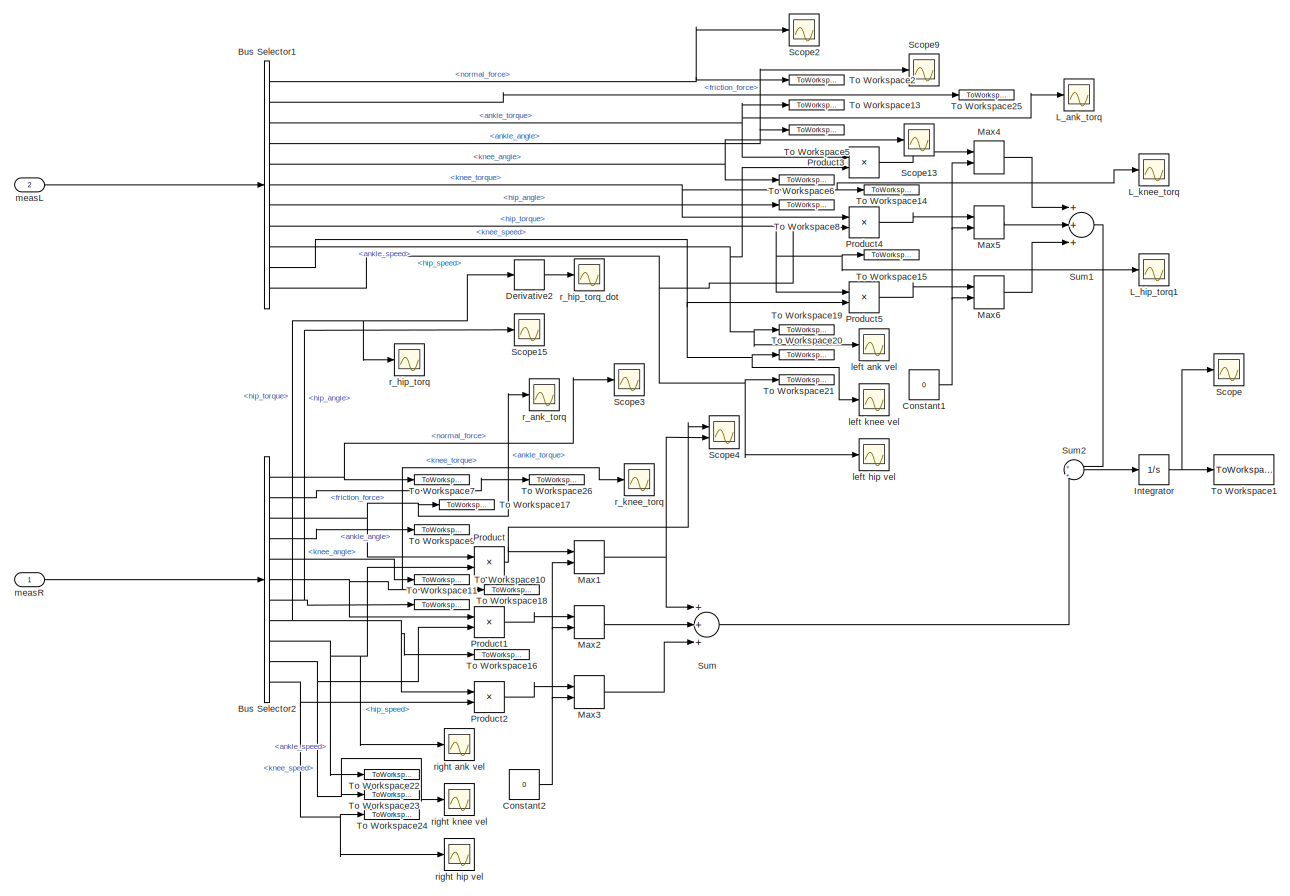
[diagram: Store & Visualize Outputs: - Joint outputs - GRFs - Joint Powers & Work - part 1/1, most of the canvas]
BLOCK [SubSystem] Store & Visualize Outputs: - Joint outputs - GRFs - Joint Powers & Work
  Ports = [2]
  RequestExecContextInheritance = off
BLOCK [BusSelector] Store & Visualize Outputs: - Joint outputs - GRFs - Joint Powers & Work/Bus Selector1
  OutputAsBus = off
  OutputSignals = normal_force,friction_force,ankle_torque,ankle_angle,knee_angle,knee_torque,hip_angle,hip_torque,ankle_speed,knee_speed,hip_speed
  Ports = [1, 11]
BLOCK [BusSelector] Store & Visualize Outputs: - Joint outputs - GRFs - Joint Powers & Work/Bus Selector2
  OutputAsBus = off
  OutputSignals = normal_force,friction_force,ankle_torque,ankle_angle,knee_angle,knee_torque,hip_angle,hip_torque,ankle_speed,knee_speed,hip_speed
  Ports = [1, 11]
BLOCK [Constant] Store & Visualize Outputs: - Joint outputs - GRFs - Joint Powers & Work/Constant1
  Value = 0
BLOCK [Constant] Store & Visualize Outputs: - Joint outputs - GRFs - Joint Powers & Work/Constant2
  Value = 0
BLOCK [Derivative] Store & Visualize Outputs: - Joint outputs - GRFs - Joint Powers & Work/Derivative2
BLOCK [Integrator] Store & Visualize Outputs: - Joint outputs - GRFs - Joint Powers & Work/Integrator
  Ports = [1, 1]
BLOCK [Scope] Store & Visualize Outputs: - Joint outputs - GRFs - Joint Powers & Work/L_ank_torq
  Floating = off
  NumInputPorts = 1
  Ports = [1]
  ScopeSpecificationString = Simulink.scopes.TimeScopeBlockCfg('CurrentConfiguration', extmgr.ConfigurationSet(extmgr.Configuration('Core','General UI',true),extmgr.Configuration('Core','Source UI',true),extmgr.Configuration('Sources','WiredSimulink',true,'DataLoggingVariableName','ScopeData9'),extmgr.Configuration('Visuals','Time Domain',true,'SerializedDisplays',{struct('MinYLimReal','-77.67521','MaxYLimReal','114.44819','Y...<+1429ch>
BLOCK [Scope] Store & Visualize Outputs: - Joint outputs - GRFs - Joint Powers & Work/L_hip_torq1
  Floating = off
  NumInputPorts = 1
  Ports = [1]
  ScopeSpecificationString = Simulink.scopes.TimeScopeBlockCfg('CurrentConfiguration', extmgr.ConfigurationSet(extmgr.Configuration('Core','General UI',true),extmgr.Configuration('Core','Source UI',true),extmgr.Configuration('Sources','WiredSimulink',true,'DataLoggingVariableName','ScopeData11'),extmgr.Configuration('Visuals','Time Domain',true,'SerializedDisplays',{struct('MinYLimReal','-188.85165','MaxYLimReal','287.26264',...<+1432ch>
BLOCK [Scope] Store & Visualize Outputs: - Joint outputs - GRFs - Joint Powers & Work/L_knee_torq
  Floating = off
  NumInputPorts = 1
  Ports = [1]
  ScopeSpecificationString = Simulink.scopes.TimeScopeBlockCfg('CurrentConfiguration', extmgr.ConfigurationSet(extmgr.Configuration('Core','General UI',true),extmgr.Configuration('Core','Source UI',true),extmgr.Configuration('Sources','WiredSimulink',true,'DataLoggingVariableName','ScopeData10'),extmgr.Configuration('Visuals','Time Domain',true,'SerializedDisplays',{struct('MinYLimReal','-120.73519','MaxYLimReal','77.1156','Y...<+1454ch>
BLOCK [MinMax] Store & Visualize Outputs: - Joint outputs - GRFs - Joint Powers & Work/Max1
  Function = max
  InputSameDT = off
  Inputs = 2
  Ports = [2, 1]
  SaturateOnIntegerOverflow = off
BLOCK [MinMax] Store & Visualize Outputs: - Joint outputs - GRFs - Joint Powers & Work/Max2
  Function = max
  InputSameDT = off
  Inputs = 2
  Ports = [2, 1]
  SaturateOnIntegerOverflow = off
BLOCK [MinMax] Store & Visualize Outputs: - Joint outputs - GRFs - Joint Powers & Work/Max3
  Function = max
  InputSameDT = off
  Inputs = 2
  Ports = [2, 1]
  SaturateOnIntegerOverflow = off
BLOCK [MinMax] Store & Visualize Outputs: - Joint outputs - GRFs - Joint Powers & Work/Max4
  Function = max
  InputSameDT = off
  Inputs = 2
  Ports = [2, 1]
  SaturateOnIntegerOverflow = off
BLOCK [MinMax] Store & Visualize Outputs: - Joint outputs - GRFs - Joint Powers & Work/Max5
  Function = max
  InputSameDT = off
  Inputs = 2
  Ports = [2, 1]
  SaturateOnIntegerOverflow = off
BLOCK [MinMax] Store & Visualize Outputs: - Joint outputs - GRFs - Joint Powers & Work/Max6
  Function = max
  InputSameDT = off
  Inputs = 2
  Ports = [2, 1]
  SaturateOnIntegerOverflow = off
BLOCK [Product] Store & Visualize Outputs: - Joint outputs - GRFs - Joint Powers & Work/Product
  InputSameDT = off
  OutDataTypeStr = Inherit: Inherit via internal rule
  Ports = [2, 1]
  RndMeth = Floor
  SaturateOnIntegerOverflow = off
BLOCK [Product] Store & Visualize Outputs: - Joint outputs - GRFs - Joint Powers & Work/Product1
  InputSameDT = off
  OutDataTypeStr = Inherit: Inherit via internal rule
  Ports = [2, 1]
  RndMeth = Floor
  SaturateOnIntegerOverflow = off
BLOCK [Product] Store & Visualize Outputs: - Joint outputs - GRFs - Joint Powers & Work/Product2
  InputSameDT = off
  OutDataTypeStr = Inherit: Inherit via internal rule
  Ports = [2, 1]
  RndMeth = Floor
  SaturateOnIntegerOverflow = off
BLOCK [Product] Store & Visualize Outputs: - Joint outputs - GRFs - Joint Powers & Work/Product3
  InputSameDT = off
  OutDataTypeStr = Inherit: Inherit via internal rule
  Ports = [2, 1]
  RndMeth = Floor
  SaturateOnIntegerOverflow = off
BLOCK [Product] Store & Visualize Outputs: - Joint outputs - GRFs - Joint Powers & Work/Product4
  InputSameDT = off
  OutDataTypeStr = Inherit: Inherit via internal rule
  Ports = [2, 1]
  RndMeth = Floor
  SaturateOnIntegerOverflow = off
BLOCK [Product] Store & Visualize Outputs: - Joint outputs - GRFs - Joint Powers & Work/Product5
  InputSameDT = off
  OutDataTypeStr = Inherit: Inherit via internal rule
  Ports = [2, 1]
  RndMeth = Floor
  SaturateOnIntegerOverflow = off
BLOCK [Scope] Store & Visualize Outputs: - Joint outputs - GRFs - Joint Powers & Work/Scope
  Floating = off
  NumInputPorts = 1
  Ports = [1]
  ScopeSpecificationString = Simulink.scopes.TimeScopeBlockCfg('CurrentConfiguration', extmgr.ConfigurationSet(extmgr.Configuration('Core','General UI',true),extmgr.Configuration('Core','Source UI',true),extmgr.Configuration('Sources','WiredSimulink',true,'DataLoggingVariableName','ScopeData1'),extmgr.Configuration('Visuals','Time Domain',true,'SerializedDisplays',{struct('MinYLimReal','-18.74609','MaxYLimReal','168.71483','Y...<+1379ch>
BLOCK [Scope] Store & Visualize Outputs: - Joint outputs - GRFs - Joint Powers & Work/Scope13
  Floating = off
  NumInputPorts = 1
  Ports = [1]
  ScopeSpecificationString = Simulink.scopes.TimeScopeBlockCfg('CurrentConfiguration', extmgr.ConfigurationSet(extmgr.Configuration('Core','General UI',true),extmgr.Configuration('Core','Source UI',true),extmgr.Configuration('Sources','WiredSimulink',true,'DataLoggingVariableName','ScopeData1'),extmgr.Configuration('Visuals','Time Domain',true,'SerializedDisplays',{struct('MinYLimReal','-17.08096','MaxYLimReal','19.1349','YLa...<+1444ch>
BLOCK [Scope] Store & Visualize Outputs: - Joint outputs - GRFs - Joint Powers & Work/Scope15
  Floating = off
  NumInputPorts = 1
  Ports = [1]
  ScopeSpecificationString = Simulink.scopes.TimeScopeBlockCfg('CurrentConfiguration', extmgr.ConfigurationSet(extmgr.Configuration('Core','General UI',true),extmgr.Configuration('Core','Source UI',true),extmgr.Configuration('Sources','WiredSimulink',true,'DataLoggingVariableName','ScopeData1'),extmgr.Configuration('Visuals','Time Domain',true,'SerializedDisplays',{struct('MinYLimReal','-23.99034','MaxYLimReal','27.38845','YL...<+1395ch>
BLOCK [Scope] Store & Visualize Outputs: - Joint outputs - GRFs - Joint Powers & Work/Scope2
  Floating = off
  NumInputPorts = 1
  Ports = [1]
  ScopeSpecificationString = Simulink.scopes.TimeScopeBlockCfg('CurrentConfiguration', extmgr.ConfigurationSet(extmgr.Configuration('Core','General UI',true),extmgr.Configuration('Core','Source UI',true),extmgr.Configuration('Sources','WiredSimulink',true,'DataLoggingVariableName','ScopeData1'),extmgr.Configuration('Visuals','Time Domain',true,'SerializedDisplays',{struct('MinYLimReal','-67.19393','MaxYLimReal','604.74538','Y...<+1383ch>
BLOCK [Scope] Store & Visualize Outputs: - Joint outputs - GRFs - Joint Powers & Work/Scope3
  Floating = off
  NumInputPorts = 1
  Ports = [1]
  ScopeSpecificationString = Simulink.scopes.TimeScopeBlockCfg('CurrentConfiguration', extmgr.ConfigurationSet(extmgr.Configuration('Core','General UI',true),extmgr.Configuration('Core','Source UI',true),extmgr.Configuration('Sources','WiredSimulink',true,'DataLoggingVariableName','ScopeData2'),extmgr.Configuration('Visuals','Time Domain',true,'SerializedDisplays',{struct('MinYLimReal','-327.6821','MaxYLimReal','2949.13886','...<+1408ch>
BLOCK [Scope] Store & Visualize Outputs: - Joint outputs - GRFs - Joint Powers & Work/Scope4
  Floating = off
  NumInputPorts = 2
  Ports = [2]
  ScopeSpecificationString = Simulink.scopes.TimeScopeBlockCfg('CurrentConfiguration', extmgr.ConfigurationSet(extmgr.Configuration('Core','General UI',true),extmgr.Configuration('Core','Source UI',true),extmgr.Configuration('Sources','WiredSimulink',true,'DataLoggingVariableName','ScopeData1'),extmgr.Configuration('Visuals','Time Domain',true,'SerializedDisplays',{struct('MinYLimReal','-42.47356','MaxYLimReal','94.7017','YLa...<+1421ch>
BLOCK [Scope] Store & Visualize Outputs: - Joint outputs - GRFs - Joint Powers & Work/Scope9
  Floating = off
  NumInputPorts = 1
  Ports = [1]
  ScopeSpecificationString = Simulink.scopes.TimeScopeBlockCfg('CurrentConfiguration', extmgr.ConfigurationSet(extmgr.Configuration('Core','General UI',true),extmgr.Configuration('Core','Source UI',true),extmgr.Configuration('Sources','WiredSimulink',true,'DataLoggingVariableName','ScopeData1'),extmgr.Configuration('Visuals','Time Domain',true,'SerializedDisplays',{struct('MinYLimReal','-17.08096','MaxYLimReal','19.1349','YLa...<+1447ch>
BLOCK [Sum] Store & Visualize Outputs: - Joint outputs - GRFs - Joint Powers & Work/Sum
  InputSameDT = off
  Inputs = +++
  OutDataTypeStr = Inherit: Inherit via internal rule
  Ports = [3, 1]
  SaturateOnIntegerOverflow = off
BLOCK [Sum] Store & Visualize Outputs: - Joint outputs - GRFs - Joint Powers & Work/Sum1
  InputSameDT = off
  Inputs = +++
  OutDataTypeStr = Inherit: Inherit via internal rule
  Ports = [3, 1]
  SaturateOnIntegerOverflow = off
BLOCK [Sum] Store & Visualize Outputs: - Joint outputs - GRFs - Joint Powers & Work/Sum2
  IconShape = round
  InputSameDT = off
  Inputs = +|+
  OutDataTypeStr = Inherit: Inherit via internal rule
  Ports = [2, 1]
  SaturateOnIntegerOverflow = off
BLOCK [ToWorkspace] Store & Visualize Outputs: - Joint outputs - GRFs - Joint Powers & Work/To Workspace1
  FixptAsFi = on
  MaxDataPoints = inf
  Ports = [1]
  SampleTime = -1
  Save2DSignal = 2-D array (concatenate along first dimension)
  VariableName = Work
BLOCK [ToWorkspace] Store & Visualize Outputs: - Joint outputs - GRFs - Joint Powers & Work/To Workspace10
  FixptAsFi = on
  MaxDataPoints = inf
  Ports = [1]
  SampleTime = -1
  Save2DSignal = 2-D array (concatenate along first dimension)
  VariableName = right_knee
BLOCK [ToWorkspace] Store & Visualize Outputs: - Joint outputs - GRFs - Joint Powers & Work/To Workspace11
  FixptAsFi = on
  MaxDataPoints = inf
  Ports = [1]
  SampleTime = -1
  Save2DSignal = 2-D array (concatenate along first dimension)
  VariableName = right_hip
BLOCK [ToWorkspace] Store & Visualize Outputs: - Joint outputs - GRFs - Joint Powers & Work/To Workspace13
  FixptAsFi = on
  MaxDataPoints = inf
  Ports = [1]
  SampleTime = -1
  Save2DSignal = 2-D array (concatenate along first dimension)
  VariableName = left_ankle_u
BLOCK [ToWorkspace] Store & Visualize Outputs: - Joint outputs - GRFs - Joint Powers & Work/To Workspace14
  FixptAsFi = on
  MaxDataPoints = inf
  Ports = [1]
  SampleTime = -1
  Save2DSignal = 2-D array (concatenate along first dimension)
  VariableName = left_knee_u
BLOCK [ToWorkspace] Store & Visualize Outputs: - Joint outputs - GRFs - Joint Powers & Work/To Workspace15
  FixptAsFi = on
  MaxDataPoints = inf
  Ports = [1]
  SampleTime = -1
  Save2DSignal = 2-D array (concatenate along first dimension)
  VariableName = left_hip_u
BLOCK [ToWorkspace] Store & Visualize Outputs: - Joint outputs - GRFs - Joint Powers & Work/To Workspace16
  FixptAsFi = on
  MaxDataPoints = inf
  Ports = [1]
  SampleTime = -1
  Save2DSignal = 2-D array (concatenate along first dimension)
  VariableName = right_hip_u
BLOCK [ToWorkspace] Store & Visualize Outputs: - Joint outputs - GRFs - Joint Powers & Work/To Workspace17
  FixptAsFi = on
  MaxDataPoints = inf
  Ports = [1]
  SampleTime = -1
  Save2DSignal = 2-D array (concatenate along first dimension)
  VariableName = right_ankle_u
BLOCK [ToWorkspace] Store & Visualize Outputs: - Joint outputs - GRFs - Joint Powers & Work/To Workspace18
  FixptAsFi = on
  MaxDataPoints = inf
  Ports = [1]
  SampleTime = -1
  Save2DSignal = 2-D array (concatenate along first dimension)
  VariableName = right_knee_u
BLOCK [ToWorkspace] Store & Visualize Outputs: - Joint outputs - GRFs - Joint Powers & Work/To Workspace19
  FixptAsFi = on
  MaxDataPoints = inf
  Ports = [1]
  SampleTime = -1
  Save2DSignal = 2-D array (concatenate along first dimension)
  VariableName = left_ankle_v
BLOCK [ToWorkspace] Store & Visualize Outputs: - Joint outputs - GRFs - Joint Powers & Work/To Workspace2
  FixptAsFi = on
  MaxDataPoints = inf
  Ports = [1]
  SampleTime = -1
  Save2DSignal = 2-D array (concatenate along first dimension)
  VariableName = L_N
BLOCK [ToWorkspace] Store & Visualize Outputs: - Joint outputs - GRFs - Joint Powers & Work/To Workspace20
  FixptAsFi = on
  MaxDataPoints = inf
  Ports = [1]
  SampleTime = -1
  Save2DSignal = 2-D array (concatenate along first dimension)
  VariableName = left_knee_v
BLOCK [ToWorkspace] Store & Visualize Outputs: - Joint outputs - GRFs - Joint Powers & Work/To Workspace21
  FixptAsFi = on
  MaxDataPoints = inf
  Ports = [1]
  SampleTime = -1
  Save2DSignal = 2-D array (concatenate along first dimension)
  VariableName = left_hip_v
BLOCK [ToWorkspace] Store & Visualize Outputs: - Joint outputs - GRFs - Joint Powers & Work/To Workspace22
  FixptAsFi = on
  MaxDataPoints = inf
  Ports = [1]
  SampleTime = -1
  Save2DSignal = 2-D array (concatenate along first dimension)
  VariableName = right_ankle_v
BLOCK [ToWorkspace] Store & Visualize Outputs: - Joint outputs - GRFs - Joint Powers & Work/To Workspace23
  FixptAsFi = on
  MaxDataPoints = inf
  Ports = [1]
  SampleTime = -1
  Save2DSignal = 2-D array (concatenate along first dimension)
  VariableName = right_knee_v
BLOCK [ToWorkspace] Store & Visualize Outputs: - Joint outputs - GRFs - Joint Powers & Work/To Workspace24
  FixptAsFi = on
  MaxDataPoints = inf
  Ports = [1]
  SampleTime = -1
  Save2DSignal = 2-D array (concatenate along first dimension)
  VariableName = right_hip_v
BLOCK [ToWorkspace] Store & Visualize Outputs: - Joint outputs - GRFs - Joint Powers & Work/To Workspace25
  FixptAsFi = on
  MaxDataPoints = inf
  Ports = [1]
  SampleTime = -1
  Save2DSignal = 2-D array (concatenate along first dimension)
  VariableName = L_f
BLOCK [ToWorkspace] Store & Visualize Outputs: - Joint outputs - GRFs - Joint Powers & Work/To Workspace26
  FixptAsFi = on
  MaxDataPoints = inf
  Ports = [1]
  SampleTime = -1
  Save2DSignal = 2-D array (concatenate along first dimension)
  VariableName = R_f
BLOCK [ToWorkspace] Store & Visualize Outputs: - Joint outputs - GRFs - Joint Powers & Work/To Workspace5
  FixptAsFi = on
  MaxDataPoints = inf
  Ports = [1]
  SampleTime = -1
  Save2DSignal = 2-D array (concatenate along first dimension)
  VariableName = left_ankle
BLOCK [ToWorkspace] Store & Visualize Outputs: - Joint outputs - GRFs - Joint Powers & Work/To Workspace6
  FixptAsFi = on
  MaxDataPoints = inf
  Ports = [1]
  SampleTime = -1
  Save2DSignal = 2-D array (concatenate along first dimension)
  VariableName = left_knee
BLOCK [ToWorkspace] Store & Visualize Outputs: - Joint outputs - GRFs - Joint Powers & Work/To Workspace7
  FixptAsFi = on
  MaxDataPoints = inf
  Ports = [1]
  SampleTime = -1
  Save2DSignal = 2-D array (concatenate along first dimension)
  VariableName = R_N
BLOCK [ToWorkspace] Store & Visualize Outputs: - Joint outputs - GRFs - Joint Powers & Work/To Workspace8
  FixptAsFi = on
  MaxDataPoints = inf
  Ports = [1]
  SampleTime = -1
  Save2DSignal = 2-D array (concatenate along first dimension)
  VariableName = left_hip
BLOCK [ToWorkspace] Store & Visualize Outputs: - Joint outputs - GRFs - Joint Powers & Work/To Workspace9
  FixptAsFi = on
  MaxDataPoints = inf
  Ports = [1]
  SampleTime = -1
  Save2DSignal = 2-D array (concatenate along first dimension)
  VariableName = right_ankle
BLOCK [Scope] Store & Visualize Outputs: - Joint outputs - GRFs - Joint Powers & Work/left ank vel
  Floating = off
  NumInputPorts = 1
  Ports = [1]
  ScopeSpecificationString = Simulink.scopes.TimeScopeBlockCfg('CurrentConfiguration', extmgr.ConfigurationSet(extmgr.Configuration('Core','General UI',true),extmgr.Configuration('Core','Source UI',true),extmgr.Configuration('Sources','WiredSimulink',true,'DataLoggingVariableName','ScopeData5'),extmgr.Configuration('Visuals','Time Domain',true,'SerializedDisplays',{struct('MinYLimReal','-20.31677','MaxYLimReal','31.94982','YL...<+1449ch>
BLOCK [Scope] Store & Visualize Outputs: - Joint outputs - GRFs - Joint Powers & Work/left hip vel
  Floating = off
  NumInputPorts = 1
  Ports = [1]
  ScopeSpecificationString = Simulink.scopes.TimeScopeBlockCfg('CurrentConfiguration', extmgr.ConfigurationSet(extmgr.Configuration('Core','General UI',true),extmgr.Configuration('Core','Source UI',true),extmgr.Configuration('Sources','WiredSimulink',true,'DataLoggingVariableName','ScopeData6'),extmgr.Configuration('Visuals','Time Domain',true,'SerializedDisplays',{struct('MinYLimReal','-20.31677','MaxYLimReal','31.94982','YL...<+1447ch>
BLOCK [Scope] Store & Visualize Outputs: - Joint outputs - GRFs - Joint Powers & Work/left knee vel
  Floating = off
  NumInputPorts = 1
  Ports = [1]
  ScopeSpecificationString = Simulink.scopes.TimeScopeBlockCfg('CurrentConfiguration', extmgr.ConfigurationSet(extmgr.Configuration('Core','General UI',true),extmgr.Configuration('Core','Source UI',true),extmgr.Configuration('Sources','WiredSimulink',true,'DataLoggingVariableName','ScopeData7'),extmgr.Configuration('Visuals','Time Domain',true,'SerializedDisplays',{struct('MinYLimReal','-8.49085','MaxYLimReal','10.45773','YLa...<+1446ch>
BLOCK [Inport] Store & Visualize Outputs: - Joint outputs - GRFs - Joint Powers & Work/measL
  IconDisplay = Port number
  Port = 2
BLOCK [Inport] Store & Visualize Outputs: - Joint outputs - GRFs - Joint Powers & Work/measR
  IconDisplay = Port number
BLOCK [Scope] Store & Visualize Outputs: - Joint outputs - GRFs - Joint Powers & Work/r_ank_torq
  Floating = off
  NumInputPorts = 1
  Ports = [1]
  ScopeSpecificationString = Simulink.scopes.TimeScopeBlockCfg('CurrentConfiguration', extmgr.ConfigurationSet(extmgr.Configuration('Core','General UI',true),extmgr.Configuration('Core','Source UI',true),extmgr.Configuration('Sources','WiredSimulink',true,'DataLoggingVariableName','ScopeData2'),extmgr.Configuration('Visuals','Time Domain',true,'SerializedDisplays',{struct('MinYLimReal','-77.67521','MaxYLimReal','114.44819','Y...<+1429ch>
BLOCK [Scope] Store & Visualize Outputs: - Joint outputs - GRFs - Joint Powers & Work/r_hip_torq
  Floating = off
  NumInputPorts = 1
  Ports = [1]
  ScopeSpecificationString = Simulink.scopes.TimeScopeBlockCfg('CurrentConfiguration', extmgr.ConfigurationSet(extmgr.Configuration('Core','General UI',true),extmgr.Configuration('Core','Source UI',true),extmgr.Configuration('Sources','WiredSimulink',true,'DataLoggingVariableName','ScopeData4'),extmgr.Configuration('Visuals','Time Domain',true,'SerializedDisplays',{struct('MinYLimReal','-193.06373','MaxYLimReal','159.90776','...<+1431ch>
BLOCK [Scope] Store & Visualize Outputs: - Joint outputs - GRFs - Joint Powers & Work/r_hip_torq_dot
  Floating = off
  NumInputPorts = 1
  Ports = [1]
  ScopeSpecificationString = Simulink.scopes.TimeScopeBlockCfg('CurrentConfiguration', extmgr.ConfigurationSet(extmgr.Configuration('Core','General UI',true),extmgr.Configuration('Core','Source UI',true),extmgr.Configuration('Sources','WiredSimulink',true,'DataLoggingVariableName','ScopeData6'),extmgr.Configuration('Visuals','Time Domain',true,'SerializedDisplays',{struct('MinYLimReal','-97118.53867','MaxYLimReal','77084.4257...<+1471ch>
BLOCK [Scope] Store & Visualize Outputs: - Joint outputs - GRFs - Joint Powers & Work/r_knee_torq
  Floating = off
  NumInputPorts = 1
  Ports = [1]
  ScopeSpecificationString = Simulink.scopes.TimeScopeBlockCfg('CurrentConfiguration', extmgr.ConfigurationSet(extmgr.Configuration('Core','General UI',true),extmgr.Configuration('Core','Source UI',true),extmgr.Configuration('Sources','WiredSimulink',true,'DataLoggingVariableName','ScopeData3'),extmgr.Configuration('Visuals','Time Domain',true,'SerializedDisplays',{struct('MinYLimReal','-181.63318','MaxYLimReal','186.34042','...<+1457ch>
BLOCK [Scope] Store & Visualize Outputs: - Joint outputs - GRFs - Joint Powers & Work/right ank vel
  Floating = off
  NumInputPorts = 1
  Ports = [1]
  ScopeSpecificationString = Simulink.scopes.TimeScopeBlockCfg('CurrentConfiguration', extmgr.ConfigurationSet(extmgr.Configuration('Core','General UI',true),extmgr.Configuration('Core','Source UI',true),extmgr.Configuration('Sources','WiredSimulink',true,'DataLoggingVariableName','ScopeData1'),extmgr.Configuration('Visuals','Time Domain',true,'SerializedDisplays',{struct('MinYLimReal','-4.01994','MaxYLimReal','36.17947','YLa...<+1447ch>
BLOCK [Scope] Store & Visualize Outputs: - Joint outputs - GRFs - Joint Powers & Work/right hip vel
  Floating = off
  NumInputPorts = 1
  Ports = [1]
  ScopeSpecificationString = Simulink.scopes.TimeScopeBlockCfg('CurrentConfiguration', extmgr.ConfigurationSet(extmgr.Configuration('Core','General UI',true),extmgr.Configuration('Core','Source UI',true),extmgr.Configuration('Sources','WiredSimulink',true,'DataLoggingVariableName','ScopeData4'),extmgr.Configuration('Visuals','Time Domain',true,'SerializedDisplays',{struct('MinYLimReal','-20.31677','MaxYLimReal','31.94982','YL...<+1447ch>
BLOCK [Scope] Store & Visualize Outputs: - Joint outputs - GRFs - Joint Powers & Work/right knee vel
  Floating = off
  NumInputPorts = 1
  Ports = [1]
  ScopeSpecificationString = Simulink.scopes.TimeScopeBlockCfg('CurrentConfiguration', extmgr.ConfigurationSet(extmgr.Configuration('Core','General UI',true),extmgr.Configuration('Core','Source UI',true),extmgr.Configuration('Sources','WiredSimulink',true,'DataLoggingVariableName','ScopeData3'),extmgr.Configuration('Visuals','Time Domain',true,'SerializedDisplays',{struct('MinYLimReal','-20.31677','MaxYLimReal','31.94982','YL...<+1450ch>
BLOCK [SubSystem] Store & Visualize torso states: - x & z positions - x & z velocities - pitch about y-axis
  Ports = [0, 1, 0, 0, 0, 1, 1]
  RequestExecContextInheritance = off
BLOCK [PMIOPort] Store & Visualize torso states: - x & z positions - x & z velocities - pitch about y-axis/Conn1
  Side = Right
BLOCK [PMIOPort] Store & Visualize torso states: - x & z positions - x & z velocities - pitch about y-axis/Conn2
  Port = 2
  Side = Left
BLOCK [Reference] Store & Visualize torso states: - x & z positions - x & z velocities - pitch about y-axis/PS-Simulink Converter  REF=nesl_utility/PS-Simulink
Converter
  Ports = [0, 1, 0, 0, 0, 1]
  SourceBlock = nesl_utility/PS-Simulink\nConverter
  SourceProductBaseCode = SS
  SourceType = PS-Simulink\nConverter
BLOCK [Reference] Store & Visualize torso states: - x & z positions - x & z velocities - pitch about y-axis/PS-Simulink Converter1  REF=nesl_utility/PS-Simulink
Converter
  Ports = [0, 1, 0, 0, 0, 1]
  SourceBlock = nesl_utility/PS-Simulink\nConverter
  SourceProductBaseCode = SS
  SourceType = PS-Simulink\nConverter
BLOCK [Reference] Store & Visualize torso states: - x & z positions - x & z velocities - pitch about y-axis/PS-Simulink Converter2  REF=nesl_utility/PS-Simulink
Converter
  Ports = [0, 1, 0, 0, 0, 1]
  SourceBlock = nesl_utility/PS-Simulink\nConverter
  SourceProductBaseCode = SS
  SourceType = PS-Simulink\nConverter
BLOCK [Reference] Store & Visualize torso states: - x & z positions - x & z velocities - pitch about y-axis/PS-Simulink Converter3  REF=nesl_utility/PS-Simulink
Converter
  Ports = [0, 1, 0, 0, 0, 1]
  SourceBlock = nesl_utility/PS-Simulink\nConverter
  SourceProductBaseCode = SS
  SourceType = PS-Simulink\nConverter
BLOCK [Reference] Store & Visualize torso states: - x & z positions - x & z velocities - pitch about y-axis/PS-Simulink Converter6  REF=nesl_utility/PS-Simulink
Converter
  Ports = [0, 1, 0, 0, 0, 1]
  SourceBlock = nesl_utility/PS-Simulink\nConverter
  SourceProductBaseCode = SS
  SourceType = PS-Simulink\nConverter
BLOCK [Reference] Store & Visualize torso states: - x & z positions - x & z velocities - pitch about y-axis/PS-Simulink Converter7  REF=nesl_utility/PS-Simulink
Converter
  Ports = [0, 1, 0, 0, 0, 1]
  SourceBlock = nesl_utility/PS-Simulink\nConverter
  SourceProductBaseCode = SS
  SourceType = PS-Simulink\nConverter
BLOCK [Scope] Store & Visualize torso states: - x & z positions - x & z velocities - pitch about y-axis/Scope1
  Floating = off
  NumInputPorts = 1
  Ports = [1]
  ScopeSpecificationString = Simulink.scopes.TimeScopeBlockCfg('CurrentConfiguration', extmgr.ConfigurationSet(extmgr.Configuration('Core','General UI',true),extmgr.Configuration('Core','Source UI',true),extmgr.Configuration('Sources','WiredSimulink',true,'DataLoggingVariableName','ScopeData1'),extmgr.Configuration('Visuals','Time Domain',true,'SerializedDisplays',{struct('MinYLimReal','-1.0145','MaxYLimReal','0.11272','YLabe...<+1369ch>
BLOCK [Scope] Store & Visualize torso states: - x & z positions - x & z velocities - pitch about y-axis/Scope11
  Floating = off
  NumInputPorts = 1
  Ports = [1]
  ScopeSpecificationString = Simulink.scopes.TimeScopeBlockCfg('CurrentConfiguration', extmgr.ConfigurationSet(extmgr.Configuration('Core','General UI',true),extmgr.Configuration('Core','Source UI',true),extmgr.Configuration('Sources','WiredSimulink',true,'DataLoggingVariableName','ScopeData5'),extmgr.Configuration('Visuals','Time Domain',true,'SerializedDisplays',{struct('MinYLimReal','80.56664','MaxYLimReal','85.15327','YLa...<+1382ch>
BLOCK [ToWorkspace] Store & Visualize torso states: - x & z positions - x & z velocities - pitch about y-axis/To Workspace
  FixptAsFi = on
  MaxDataPoints = inf
  Ports = [1]
  SampleTime = -1
  Save2DSignal = 2-D array (concatenate along first dimension)
  VariableName = x0
BLOCK [ToWorkspace] Store & Visualize torso states: - x & z positions - x & z velocities - pitch about y-axis/To Workspace28
  FixptAsFi = on
  MaxDataPoints = inf
  Ports = [1]
  SampleTime = -1
  Save2DSignal = 2-D array (concatenate along first dimension)
  VariableName = vz
BLOCK [ToWorkspace] Store & Visualize torso states: - x & z positions - x & z velocities - pitch about y-axis/To Workspace29
  FixptAsFi = on
  MaxDataPoints = inf
  Ports = [1]
  SampleTime = -1
  Save2DSignal = 2-D array (concatenate along first dimension)
  VariableName = vx
BLOCK [ToWorkspace] Store & Visualize torso states: - x & z positions - x & z velocities - pitch about y-axis/To Workspace3
  FixptAsFi = on
  MaxDataPoints = inf
  Ports = [1]
  SampleTime = -1
  Save2DSignal = 2-D array (concatenate along first dimension)
  VariableName = z0
BLOCK [ToWorkspace] Store & Visualize torso states: - x & z positions - x & z velocities - pitch about y-axis/To Workspace4
  FixptAsFi = on
  MaxDataPoints = inf
  Ports = [1]
  SampleTime = -1
  Save2DSignal = 2-D array (concatenate along first dimension)
  VariableName = torso_theta
BLOCK [Reference] Store & Visualize torso states: - x & z positions - x & z velocities - pitch about y-axis/Transform Sensor  REF=sm_lib/Frames and
Transforms/Transform
Sensor
  Ports = [0, 0, 0, 0, 0, 1, 7]
  SourceBlock = sm_lib/Frames and\nTransforms/Transform\nSensor
  SourceProductBaseCode = MS
  SourceType = Transform\nSensor
BLOCK [Outport] Store & Visualize torso states: - x & z positions - x & z velocities - pitch about y-axis/w
  IconDisplay = Port number
BLOCK [Scope] Torque
  Floating = off
  NumInputPorts = 2
  Ports = [2]
  ScopeSpecificationString = Simulink.scopes.TimeScopeBlockCfg('CurrentConfiguration', extmgr.ConfigurationSet(extmgr.Configuration('Core','General UI',true),extmgr.Configuration('Core','Source UI',true),extmgr.Configuration('Sources','WiredSimulink',true,'DataLoggingVariableName','ScopeData2'),extmgr.Configuration('Visuals','Time Domain',true,'SerializedDisplays',{struct('MinYLimReal','-298.87887','MaxYLimReal','280.76641','...<+1491ch>
BLOCK [Reference] World Frame  REF=sm_lib/Frames and
Transforms/World Frame
  Ports = [0, 0, 0, 0, 0, 0, 1]
  SourceBlock = sm_lib/Frames and\nTransforms/World Frame
  SourceProductBaseCode = MS
  SourceType = World Frame
BLOCK [Reference] World Frame1  REF=sm_lib/Frames and
Transforms/World Frame
  Ports = [0, 0, 0, 0, 0, 0, 1]
  SourceBlock = sm_lib/Frames and\nTransforms/World Frame
  SourceProductBaseCode = MS
  SourceType = World Frame
BLOCK [Scope] angle
  Floating = off
  NumInputPorts = 1
  Ports = [1]
  ScopeSpecificationString = Simulink.scopes.TimeScopeBlockCfg('CurrentConfiguration', extmgr.ConfigurationSet(extmgr.Configuration('Core','General UI',true),extmgr.Configuration('Core','Source UI',true),extmgr.Configuration('Sources','WiredSimulink',true,'DataLoggingVariableName','ScopeData1'),extmgr.Configuration('Visuals','Time Domain',true,'SerializedDisplays',{struct('MinYLimReal','-2.17424','MaxYLimReal','1.80801','YLab...<+1554ch>
BLOCK [Outport] pitch_error
  IconDisplay = Port number
  Port = 2
  SignalName = pitch_error
BLOCK [Outport] w
  IconDisplay = Port number
ANNOTATION (root): Set actuator type: Motion | Torque + Servo | Motor + Servo
ANNOTATION (root): Sense & Store body states and joint trajectories
ANNOTATION (root): Torso joint w.r.t. world: - one rotational dof - two translational dofs in Sagittal plane
ANNOTATION Robot/Robot Leg L/Ankle Joint: 1) Add Subsystem or Model blocks as valid variant choices. 2) You cannot connect blocks at this level. At simulation, connectivity is automatically determined, based on the active variant and port name matching.
ANNOTATION Robot/Robot Leg L/Box to Belt In Force1/Sphere to Plane Force Enabled nz1/Forces/Force Law: 1) Only subsystems can be added as variant choices at this level 2) Blocks cannot be connected at this level as connectivity is automatically determined at simulation, based on the active variant
ANNOTATION Robot/Robot Leg L/Box to Belt In Force1/Sphere to Plane Force Enabled nz1/Forces/Force Law/Custom: Implement your own custom force law in this subsystem. To use it in the contact force models, set the parameter "Force Law" to "Custom".
ANNOTATION Robot/Robot Leg L/Box to Belt In Force1/Sphere to Plane Force Enabled nz2/Forces/Force Law: 1) Only subsystems can be added as variant choices at this level 2) Blocks cannot be connected at this level as connectivity is automatically determined at simulation, based on the active variant
ANNOTATION Robot/Robot Leg L/Box to Belt In Force1/Sphere to Plane Force Enabled nz2/Forces/Force Law/Custom: Implement your own custom force law in this subsystem. To use it in the contact force models, set the parameter "Force Law" to "Custom".
ANNOTATION Robot/Robot Leg L/Hip Joint: 1) Add Subsystem or Model blocks as valid variant choices. 2) You cannot connect blocks at this level. At simulation, connectivity is automatically determined, based on the active variant and port name matching.
ANNOTATION Robot/Robot Leg L/Knee Joint: 1) Add Subsystem or Model blocks as valid variant choices. 2) You cannot connect blocks at this level. At simulation, connectivity is automatically determined, based on the active variant and port name matching.
ANNOTATION Robot/Robot Leg R/Ankle Joint: 1) Add Subsystem or Model blocks as valid variant choices. 2) You cannot connect blocks at this level. At simulation, connectivity is automatically determined, based on the active variant and port name matching.
ANNOTATION Robot/Robot Leg R/Box to Belt In Force/Sphere to Plane Force Enabled nz1/Forces/Force Law: 1) Only subsystems can be added as variant choices at this level 2) Blocks cannot be connected at this level as connectivity is automatically determined at simulation, based on the active variant
ANNOTATION Robot/Robot Leg R/Box to Belt In Force/Sphere to Plane Force Enabled nz1/Forces/Force Law/Custom: Implement your own custom force law in this subsystem. To use it in the contact force models, set the parameter "Force Law" to "Custom".
ANNOTATION Robot/Robot Leg R/Box to Belt In Force/Sphere to Plane Force Enabled nz2/Forces/Force Law: 1) Only subsystems can be added as variant choices at this level 2) Blocks cannot be connected at this level as connectivity is automatically determined at simulation, based on the active variant
ANNOTATION Robot/Robot Leg R/Box to Belt In Force/Sphere to Plane Force Enabled nz2/Forces/Force Law/Custom: Implement your own custom force law in this subsystem. To use it in the contact force models, set the parameter "Force Law" to "Custom".
ANNOTATION Robot/Robot Leg R/Hip Joint: 1) Add Subsystem or Model blocks as valid variant choices. 2) You cannot connect blocks at this level. At simulation, connectivity is automatically determined, based on the active variant and port name matching.
ANNOTATION Robot/Robot Leg R/Knee Joint: 1) Add Subsystem or Model blocks as valid variant choices. 2) You cannot connect blocks at this level. At simulation, connectivity is automatically determined, based on the active variant and port name matching.
LINE PS-Simulink Converter10:1 -> Torque:1
LINE PS-Simulink Converter11:1 -> Torque:2
LINE PS-Simulink Converter8:1 -> angle:1
LINE PS-Simulink Converter9:1 -> Ang Vel:1
LINE Robot/Joint Angles/Demux1:1 -> Robot/Joint Angles/Mux:1
LINE Robot/Joint Angles/Demux1:2 -> Robot/Joint Angles/Mux:2
LINE Robot/Joint Angles/Demux1:3 -> Robot/Joint Angles/Mux:3
LINE Robot/Joint Angles/Demux1:4 -> Robot/Joint Angles/Mux1:1
LINE Robot/Joint Angles/Demux1:5 -> Robot/Joint Angles/Mux1:2
LINE Robot/Joint Angles/Demux1:6 -> Robot/Joint Angles/Mux1:3
LINE Robot/Joint Angles/From Workspace:1 -> Robot/Joint Angles/Demux1:1
NET Robot/Joint Angles/Mux1:1 -> Robot/Joint Angles/Left Joint Angles:1, Robot/Joint Angles/Scope4:1
LINE Robot/Joint Angles/Mux:1 -> Robot/Joint Angles/Right Joint Angles:1
LINE Robot/Joint Angles:1 -> Robot/Robot Leg R:2
LINE Robot/Joint Angles:2 -> Robot/Robot Leg L:1
NET Robot/Robot Leg L/Ankle Joint:1 -> Robot/Robot Leg L/Bus Selector1:1, Robot/Robot Leg L/Package Measurements1:3
LINE Robot/Robot Leg L/Belt/Gain:1 -> Robot/Robot Leg L/Belt/Integrator:1
LINE Robot/Robot Leg L/Belt/Integrator:1 -> Robot/Robot Leg L/Belt/Simulink-PS Converter:1
LINE Robot/Robot Leg L/Belt/Spd:1 -> Robot/Robot Leg L/Belt/Gain:1
NET Robot/Robot Leg L/Box to Belt In Force1:1 -> Robot/Robot Leg L/Bus Selector:1, Robot/Robot Leg L/Contact Force Logging1:1
LINE Robot/Robot Leg L/Box to Belt In Force1:2 -> Robot/Robot Leg L/Contact Force Logging1:2
NET Robot/Robot Leg L/Box to Belt In Force1:3 -> Robot/Robot Leg L/L_Fz :1, Robot/Robot Leg L/To Workspace:1
LINE Robot/Robot Leg L/Box to Belt In Force1:4 -> Robot/Robot Leg L/To Workspace2:1
LINE Robot/Robot Leg L/Bus Selector1:1 -> Robot/Robot Leg L/Scope5:2
LINE Robot/Robot Leg L/Bus Selector:1 -> Robot/Robot Leg L/Scope4:1
LINE Robot/Robot Leg L/Contact Force Logging1:1 -> Robot/Robot Leg L/Package Measurements1:1
LINE Robot/Robot Leg L/Contact Force Logging1:2 -> Robot/Robot Leg L/Package Measurements1:2
NET Robot/Robot Leg L/Contact Force Logging1:3 -> Robot/Robot Leg L/Scope6:1, Robot/Robot Leg L/To Workspace1:1
LINE Robot/Robot Leg L/Create Bus/Bus Creator:1 -> Robot/Robot Leg L/Create Bus/bus:1
LINE Robot/Robot Leg L/Create Bus/Enable:1 -> Robot/Robot Leg L/Create Bus/Bus Creator:1
LINE Robot/Robot Leg L/Create Bus/vx:1 -> Robot/Robot Leg L/Create Bus/Bus Creator:2
LINE Robot/Robot Leg L/Create Bus/vy:1 -> Robot/Robot Leg L/Create Bus/Bus Creator:3
LINE Robot/Robot Leg L/Create Bus:1 -> Robot/Robot Leg L/Box to Belt In Force1:1
NET Robot/Robot Leg L/Demux:1 -> Robot/Robot Leg L/Ankle Joint:1, Robot/Robot Leg L/Radians to Degrees:1
LINE Robot/Robot Leg L/Demux:2 -> Robot/Robot Leg L/Knee Joint:1
LINE Robot/Robot Leg L/Demux:3 -> Robot/Robot Leg L/Hip Joint:1
LINE Robot/Robot Leg L/Hip Joint:1 -> Robot/Robot Leg L/Package Measurements1:5
LINE Robot/Robot Leg L/Knee Joint:1 -> Robot/Robot Leg L/Package Measurements1:4
LINE Robot/Robot Leg L/PS-Simulink Converter1:1 -> Robot/Robot Leg L/z_left_toe:1
NET Robot/Robot Leg L/PS-Simulink Converter2:1 -> Robot/Robot Leg L/Scope1:1, Robot/Robot Leg L/z_left_heel1:1
LINE Robot/Robot Leg L/PS-Simulink Converter3:1 -> Robot/Robot Leg L/Scope2:1
NET Robot/Robot Leg L/PS-Simulink Converter4:1 -> Robot/Robot Leg L/Scope3:1, Robot/Robot Leg L/z_left_heel3:1
LINE Robot/Robot Leg L/PS-Simulink Converter5:1 -> Robot/Robot Leg L/Left Foot Orientation:1
LINE Robot/Robot Leg L/PS-Simulink Converter6:1 -> Robot/Robot Leg L/To Workspace3:1
LINE Robot/Robot Leg L/PS-Simulink Converter7:1 -> Robot/Robot Leg L/To Workspace4:1
NET Robot/Robot Leg L/PS-Simulink Converter:1 -> Robot/Robot Leg L/Scope:1, Robot/Robot Leg L/z_left_heel:1
LINE Robot/Robot Leg L/Package Measurements1:1 -> Robot/Robot Leg L/meas :1
LINE Robot/Robot Leg L/Radians to Degrees:1 -> Robot/Robot Leg L/Scope5:1
NET Robot/Robot Leg L/V_treadmill:1 -> Robot/Robot Leg L/Belt:1, Robot/Robot Leg L/Create Bus:1, Robot/Robot Leg L/moving block:1
LINE Robot/Robot Leg L/moving block/Clock:1 -> Robot/Robot Leg L/moving block/Multiply:1
LINE Robot/Robot Leg L/moving block/Derivative1:1 -> Robot/Robot Leg L/moving block/Simulink-PS Converter:3
NET Robot/Robot Leg L/moving block/Derivative:1 -> Robot/Robot Leg L/moving block/Derivative1:1, Robot/Robot Leg L/moving block/Simulink-PS Converter:2
LINE Robot/Robot Leg L/moving block/In1:1 -> Robot/Robot Leg L/moving block/Multiply:2
NET Robot/Robot Leg L/moving block/Multiply:1 -> Robot/Robot Leg L/moving block/Derivative:1, Robot/Robot Leg L/moving block/Scope6:1, Robot/Robot Leg L/moving block/Simulink-PS Converter:1
LINE Robot/Robot Leg L/moving block/PS-Simulink Converter:1 -> Robot/Robot Leg L/moving block/Scope1:1
LINE Robot/Robot Leg L/qref:1 -> Robot/Robot Leg L/Demux:1
LINE Robot/Robot Leg L:1 -> Robot/measL:1
LINE Robot/Robot Leg L:2 -> Robot/Sum2:2
LINE Robot/Robot Leg R/Ankle Joint:1 -> Robot/Robot Leg R/Package Measurements:3
LINE Robot/Robot Leg R/Belt/Gain:1 -> Robot/Robot Leg R/Belt/Integrator:1
LINE Robot/Robot Leg R/Belt/Integrator:1 -> Robot/Robot Leg R/Belt/Simulink-PS Converter:1
LINE Robot/Robot Leg R/Belt/Spd:1 -> Robot/Robot Leg R/Belt/Gain:1
LINE Robot/Robot Leg R/Box to Belt In Force:1 -> Robot/Robot Leg R/Contact Force Logging:1
LINE Robot/Robot Leg R/Box to Belt In Force:2 -> Robot/Robot Leg R/Contact Force Logging:2
NET Robot/Robot Leg R/Box to Belt In Force:3 -> Robot/Robot Leg R/R_Fz :1, Robot/Robot Leg R/To Workspace5:1
LINE Robot/Robot Leg R/Box to Belt In Force:4 -> Robot/Robot Leg R/To Workspace6:1
LINE Robot/Robot Leg R/Contact Force Logging:1 -> Robot/Robot Leg R/Package Measurements:1
LINE Robot/Robot Leg R/Contact Force Logging:2 -> Robot/Robot Leg R/Package Measurements:2
NET Robot/Robot Leg R/Contact Force Logging:3 -> Robot/Robot Leg R/Scope2:1, Robot/Robot Leg R/To Workspace:1
LINE Robot/Robot Leg R/Create Bus/Bus Creator:1 -> Robot/Robot Leg R/Create Bus/bus:1
LINE Robot/Robot Leg R/Create Bus/Enable:1 -> Robot/Robot Leg R/Create Bus/Bus Creator:1
LINE Robot/Robot Leg R/Create Bus/vx:1 -> Robot/Robot Leg R/Create Bus/Bus Creator:2
LINE Robot/Robot Leg R/Create Bus/vy:1 -> Robot/Robot Leg R/Create Bus/Bus Creator:3
LINE Robot/Robot Leg R/Create Bus:1 -> Robot/Robot Leg R/Box to Belt In Force:1
LINE Robot/Robot Leg R/Demux:1 -> Robot/Robot Leg R/Ankle Joint:1
LINE Robot/Robot Leg R/Demux:2 -> Robot/Robot Leg R/Knee Joint:1
LINE Robot/Robot Leg R/Demux:3 -> Robot/Robot Leg R/Hip Joint:1
LINE Robot/Robot Leg R/Hip Joint:1 -> Robot/Robot Leg R/Package Measurements:5
LINE Robot/Robot Leg R/Knee Joint:1 -> Robot/Robot Leg R/Package Measurements:4
LINE Robot/Robot Leg R/PS-Simulink Converter4:1 -> Robot/Robot Leg R/To Workspace1:1
LINE Robot/Robot Leg R/PS-Simulink Converter5:1 -> Robot/Robot Leg R/To Workspace2:1
LINE Robot/Robot Leg R/PS-Simulink Converter6:1 -> Robot/Robot Leg R/To Workspace3:1
LINE Robot/Robot Leg R/PS-Simulink Converter7:1 -> Robot/Robot Leg R/To Workspace4:1
LINE Robot/Robot Leg R/Package Measurements:1 -> Robot/Robot Leg R/meas:1
NET Robot/Robot Leg R/Subsystem/PS-Simulink Converter1:1 -> Robot/Robot Leg R/Subsystem/z_rh  :1, Robot/Robot Leg R/Subsystem/z_right_toe:1
LINE Robot/Robot Leg R/Subsystem/PS-Simulink Converter2:1 -> Robot/Robot Leg R/Subsystem/z_right_heel1:1
LINE Robot/Robot Leg R/Subsystem/PS-Simulink Converter3:1 -> Robot/Robot Leg R/Subsystem/z_right_heel2:1
LINE Robot/Robot Leg R/Subsystem/PS-Simulink Converter8:1 -> Robot/Robot Leg R/Subsystem/Foot Orientation:1
NET Robot/Robot Leg R/Subsystem/PS-Simulink Converter:1 -> Robot/Robot Leg R/Subsystem/Scope:1, Robot/Robot Leg R/Subsystem/z_right_heel:1
NET Robot/Robot Leg R/V_treadmill:1 -> Robot/Robot Leg R/Belt:1, Robot/Robot Leg R/Create Bus:1, Robot/Robot Leg R/moving block:1
LINE Robot/Robot Leg R/moving block/Clock:1 -> Robot/Robot Leg R/moving block/Multiply:1
LINE Robot/Robot Leg R/moving block/Derivative1:1 -> Robot/Robot Leg R/moving block/Simulink-PS Converter:3
NET Robot/Robot Leg R/moving block/Derivative:1 -> Robot/Robot Leg R/moving block/Derivative1:1, Robot/Robot Leg R/moving block/Simulink-PS Converter:2
LINE Robot/Robot Leg R/moving block/In1:1 -> Robot/Robot Leg R/moving block/Multiply:2
NET Robot/Robot Leg R/moving block/Multiply:1 -> Robot/Robot Leg R/moving block/Derivative:1, Robot/Robot Leg R/moving block/Scope6:1, Robot/Robot Leg R/moving block/Simulink-PS Converter:1
LINE Robot/Robot Leg R/moving block/PS-Simulink Converter:1 -> Robot/Robot Leg R/moving block/Scope1:1
LINE Robot/Robot Leg R/qref:1 -> Robot/Robot Leg R/Demux:1
LINE Robot/Robot Leg R:1 -> Robot/measR:1
LINE Robot/Robot Leg R:2 -> Robot/Sum2:1
NET Robot/Store some heel positions and torso states/Integrator2:1 -> Robot/Store some heel positions and torso states/Scope13:1, Robot/Store some heel positions and torso states/pitch_error:1
NET Robot/Store some heel positions and torso states/Math Function:1 -> Robot/Store some heel positions and torso states/Integrator2:1, Robot/Store some heel positions and torso states/Scope12:1
NET Robot/Store some heel positions and torso states/PS-Simulink Converter1:1 -> Robot/Store some heel positions and torso states/Math Function:1, Robot/Store some heel positions and torso states/Scope14:1, Robot/Store some heel positions and torso states/To Workspace4:1
NET Robot/Store some heel positions and torso states/PS-Simulink Converter2:1 -> Robot/Store some heel positions and torso states/Scope1:1, Robot/Store some heel positions and torso states/To Workspace1:1
LINE Robot/Store some heel positions and torso states/PS-Simulink Converter3:1 -> Robot/Store some heel positions and torso states/Scope2:1
LINE Robot/Store some heel positions and torso states/PS-Simulink Converter4:1 -> Robot/Store some heel positions and torso states/To Workspace35:1
LINE Robot/Store some heel positions and torso states/PS-Simulink Converter5:1 -> Robot/Store some heel positions and torso states/To Workspace34:1
NET Robot/Store some heel positions and torso states/PS-Simulink Converter:1 -> Robot/Store some heel positions and torso states/Scope:1, Robot/Store some heel positions and torso states/To Workspace5:1
LINE Robot/Store some heel positions and torso states:1 -> Robot/pitch_error:1
LINE Robot/Sum2:1 -> Robot/net normal GRF:1
LINE Robot/Treadmill Belt Speeds/Sum1:1 -> Robot/Treadmill Belt Speeds/Left Belt:1
LINE Robot/Treadmill Belt Speeds/Sum:1 -> Robot/Treadmill Belt Speeds/Right Belt:1
NET Robot/Treadmill Belt Speeds/v_tread1:1 -> Robot/Treadmill Belt Speeds/Sum1:1, Robot/Treadmill Belt Speeds/Sum:2
NET Robot/Treadmill Belt Speeds/v_tread5:1 -> Robot/Treadmill Belt Speeds/Sum1:2, Robot/Treadmill Belt Speeds/Sum:1
LINE Robot/Treadmill Belt Speeds:1 -> Robot/Robot Leg R:1
LINE Robot/Treadmill Belt Speeds:2 -> Robot/Robot Leg L:2
LINE Robot:1 -> Store & Visualize Outputs: - Joint outputs - GRFs - Joint Powers & Work:1
LINE Robot:2 -> Store & Visualize Outputs: - Joint outputs - GRFs - Joint Powers & Work:2
LINE Robot:3 -> pitch_error:1
NET Sense Relative position of torso on Treadmill/Clock:1 -> Sense Relative position of torso on Treadmill/Multiply:1, Sense Relative position of torso on Treadmill/To Workspace27:1
LINE Sense Relative position of torso on Treadmill/Constant:1 -> Sense Relative position of torso on Treadmill/Multiply:2
LINE Sense Relative position of torso on Treadmill/Derivative1:1 -> Sense Relative position of torso on Treadmill/Simulink-PS Converter:3
NET Sense Relative position of torso on Treadmill/Derivative:1 -> Sense Relative position of torso on Treadmill/Derivative1:1, Sense Relative position of torso on Treadmill/Simulink-PS Converter:2
NET Sense Relative position of torso on Treadmill/Multiply:1 -> Sense Relative position of torso on Treadmill/Derivative:1, Sense Relative position of torso on Treadmill/Scope6:1, Sense Relative position of torso on Treadmill/Simulink-PS Converter:1
NET Sense Relative position of torso on Treadmill/PS-Simulink Converter4:1 -> Sense Relative position of torso on Treadmill/Scope5:1, Sense Relative position of torso on Treadmill/To Workspace12:1
LINE Sense Relative position of torso on Treadmill/PS-Simulink Converter5:1 -> Sense Relative position of torso on Treadmill/Scope7:1
NET Store & Visualize Outputs: - Joint outputs - GRFs - Joint Powers & Work/Bus Selector1:1 -> Store & Visualize Outputs: - Joint outputs - GRFs - Joint Powers & Work/Scope2:1, Store & Visualize Outputs: - Joint outputs - GRFs - Joint Powers & Work/To Workspace2:1
NET Store & Visualize Outputs: - Joint outputs - GRFs - Joint Powers & Work/Bus Selector1:10 -> Store & Visualize Outputs: - Joint outputs - GRFs - Joint Powers & Work/Product5:2, Store & Visualize Outputs: - Joint outputs - GRFs - Joint Powers & Work/To Workspace20:1, Store & Visualize Outputs: - Joint outputs - GRFs - Joint Powers & Work/left knee vel:1
NET Store & Visualize Outputs: - Joint outputs - GRFs - Joint Powers & Work/Bus Selector1:11 -> Store & Visualize Outputs: - Joint outputs - GRFs - Joint Powers & Work/Product4:2, Store & Visualize Outputs: - Joint outputs - GRFs - Joint Powers & Work/To Workspace21:1, Store & Visualize Outputs: - Joint outputs - GRFs - Joint Powers & Work/left hip vel:1
LINE Store & Visualize Outputs: - Joint outputs - GRFs - Joint Powers & Work/Bus Selector1:2 -> Store & Visualize Outputs: - Joint outputs - GRFs - Joint Powers & Work/To Workspace25:1
NET Store & Visualize Outputs: - Joint outputs - GRFs - Joint Powers & Work/Bus Selector1:3 -> Store & Visualize Outputs: - Joint outputs - GRFs - Joint Powers & Work/L_ank_torq:1, Store & Visualize Outputs: - Joint outputs - GRFs - Joint Powers & Work/Product3:1, Store & Visualize Outputs: - Joint outputs - GRFs - Joint Powers & Work/To Workspace13:1
NET Store & Visualize Outputs: - Joint outputs - GRFs - Joint Powers & Work/Bus Selector1:4 -> Store & Visualize Outputs: - Joint outputs - GRFs - Joint Powers & Work/Scope9:1, Store & Visualize Outputs: - Joint outputs - GRFs - Joint Powers & Work/To Workspace5:1
NET Store & Visualize Outputs: - Joint outputs - GRFs - Joint Powers & Work/Bus Selector1:5 -> Store & Visualize Outputs: - Joint outputs - GRFs - Joint Powers & Work/Scope13:1, Store & Visualize Outputs: - Joint outputs - GRFs - Joint Powers & Work/To Workspace6:1
NET Store & Visualize Outputs: - Joint outputs - GRFs - Joint Powers & Work/Bus Selector1:6 -> Store & Visualize Outputs: - Joint outputs - GRFs - Joint Powers & Work/L_knee_torq:1, Store & Visualize Outputs: - Joint outputs - GRFs - Joint Powers & Work/Product4:1, Store & Visualize Outputs: - Joint outputs - GRFs - Joint Powers & Work/To Workspace14:1
LINE Store & Visualize Outputs: - Joint outputs - GRFs - Joint Powers & Work/Bus Selector1:7 -> Store & Visualize Outputs: - Joint outputs - GRFs - Joint Powers & Work/To Workspace8:1
NET Store & Visualize Outputs: - Joint outputs - GRFs - Joint Powers & Work/Bus Selector1:8 -> Store & Visualize Outputs: - Joint outputs - GRFs - Joint Powers & Work/L_hip_torq1:1, Store & Visualize Outputs: - Joint outputs - GRFs - Joint Powers & Work/Product5:1, Store & Visualize Outputs: - Joint outputs - GRFs - Joint Powers & Work/To Workspace15:1
NET Store & Visualize Outputs: - Joint outputs - GRFs - Joint Powers & Work/Bus Selector1:9 -> Store & Visualize Outputs: - Joint outputs - GRFs - Joint Powers & Work/Product3:2, Store & Visualize Outputs: - Joint outputs - GRFs - Joint Powers & Work/To Workspace19:1, Store & Visualize Outputs: - Joint outputs - GRFs - Joint Powers & Work/left ank vel:1
NET Store & Visualize Outputs: - Joint outputs - GRFs - Joint Powers & Work/Bus Selector2:1 -> Store & Visualize Outputs: - Joint outputs - GRFs - Joint Powers & Work/Scope3:1, Store & Visualize Outputs: - Joint outputs - GRFs - Joint Powers & Work/To Workspace7:1
NET Store & Visualize Outputs: - Joint outputs - GRFs - Joint Powers & Work/Bus Selector2:10 -> Store & Visualize Outputs: - Joint outputs - GRFs - Joint Powers & Work/Product1:2, Store & Visualize Outputs: - Joint outputs - GRFs - Joint Powers & Work/To Workspace23:1, Store & Visualize Outputs: - Joint outputs - GRFs - Joint Powers & Work/right knee vel:1
NET Store & Visualize Outputs: - Joint outputs - GRFs - Joint Powers & Work/Bus Selector2:11 -> Store & Visualize Outputs: - Joint outputs - GRFs - Joint Powers & Work/Product2:2, Store & Visualize Outputs: - Joint outputs - GRFs - Joint Powers & Work/To Workspace24:1, Store & Visualize Outputs: - Joint outputs - GRFs - Joint Powers & Work/right hip vel:1
LINE Store & Visualize Outputs: - Joint outputs - GRFs - Joint Powers & Work/Bus Selector2:2 -> Store & Visualize Outputs: - Joint outputs - GRFs - Joint Powers & Work/To Workspace26:1
NET Store & Visualize Outputs: - Joint outputs - GRFs - Joint Powers & Work/Bus Selector2:3 -> Store & Visualize Outputs: - Joint outputs - GRFs - Joint Powers & Work/Product:1, Store & Visualize Outputs: - Joint outputs - GRFs - Joint Powers & Work/To Workspace17:1, Store & Visualize Outputs: - Joint outputs - GRFs - Joint Powers & Work/r_ank_torq:1
LINE Store & Visualize Outputs: - Joint outputs - GRFs - Joint Powers & Work/Bus Selector2:4 -> Store & Visualize Outputs: - Joint outputs - GRFs - Joint Powers & Work/To Workspace9:1
LINE Store & Visualize Outputs: - Joint outputs - GRFs - Joint Powers & Work/Bus Selector2:5 -> Store & Visualize Outputs: - Joint outputs - GRFs - Joint Powers & Work/To Workspace10:1
NET Store & Visualize Outputs: - Joint outputs - GRFs - Joint Powers & Work/Bus Selector2:6 -> Store & Visualize Outputs: - Joint outputs - GRFs - Joint Powers & Work/Product1:1, Store & Visualize Outputs: - Joint outputs - GRFs - Joint Powers & Work/To Workspace18:1, Store & Visualize Outputs: - Joint outputs - GRFs - Joint Powers & Work/r_knee_torq:1
NET Store & Visualize Outputs: - Joint outputs - GRFs - Joint Powers & Work/Bus Selector2:7 -> Store & Visualize Outputs: - Joint outputs - GRFs - Joint Powers & Work/Scope15:1, Store & Visualize Outputs: - Joint outputs - GRFs - Joint Powers & Work/To Workspace11:1
NET Store & Visualize Outputs: - Joint outputs - GRFs - Joint Powers & Work/Bus Selector2:8 -> Store & Visualize Outputs: - Joint outputs - GRFs - Joint Powers & Work/Derivative2:1, Store & Visualize Outputs: - Joint outputs - GRFs - Joint Powers & Work/Product2:1, Store & Visualize Outputs: - Joint outputs - GRFs - Joint Powers & Work/To Workspace16:1, Store & Visualize Outputs: - Joint outputs - GRFs - Joint Powers & Work/r_hip_torq:1
NET Store & Visualize Outputs: - Joint outputs - GRFs - Joint Powers & Work/Bus Selector2:9 -> Store & Visualize Outputs: - Joint outputs - GRFs - Joint Powers & Work/Product:2, Store & Visualize Outputs: - Joint outputs - GRFs - Joint Powers & Work/To Workspace22:1, Store & Visualize Outputs: - Joint outputs - GRFs - Joint Powers & Work/right ank vel:1
NET Store & Visualize Outputs: - Joint outputs - GRFs - Joint Powers & Work/Constant1:1 -> Store & Visualize Outputs: - Joint outputs - GRFs - Joint Powers & Work/Max4:2, Store & Visualize Outputs: - Joint outputs - GRFs - Joint Powers & Work/Max5:2, Store & Visualize Outputs: - Joint outputs - GRFs - Joint Powers & Work/Max6:2
NET Store & Visualize Outputs: - Joint outputs - GRFs - Joint Powers & Work/Constant2:1 -> Store & Visualize Outputs: - Joint outputs - GRFs - Joint Powers & Work/Max1:2, Store & Visualize Outputs: - Joint outputs - GRFs - Joint Powers & Work/Max2:2, Store & Visualize Outputs: - Joint outputs - GRFs - Joint Powers & Work/Max3:2
LINE Store & Visualize Outputs: - Joint outputs - GRFs - Joint Powers & Work/Derivative2:1 -> Store & Visualize Outputs: - Joint outputs - GRFs - Joint Powers & Work/r_hip_torq_dot:1
NET Store & Visualize Outputs: - Joint outputs - GRFs - Joint Powers & Work/Integrator:1 -> Store & Visualize Outputs: - Joint outputs - GRFs - Joint Powers & Work/Scope:1, Store & Visualize Outputs: - Joint outputs - GRFs - Joint Powers & Work/To Workspace1:1
NET Store & Visualize Outputs: - Joint outputs - GRFs - Joint Powers & Work/Max1:1 -> Store & Visualize Outputs: - Joint outputs - GRFs - Joint Powers & Work/Scope4:2, Store & Visualize Outputs: - Joint outputs - GRFs - Joint Powers & Work/Sum:1
LINE Store & Visualize Outputs: - Joint outputs - GRFs - Joint Powers & Work/Max2:1 -> Store & Visualize Outputs: - Joint outputs - GRFs - Joint Powers & Work/Sum:2
LINE Store & Visualize Outputs: - Joint outputs - GRFs - Joint Powers & Work/Max3:1 -> Store & Visualize Outputs: - Joint outputs - GRFs - Joint Powers & Work/Sum:3
LINE Store & Visualize Outputs: - Joint outputs - GRFs - Joint Powers & Work/Max4:1 -> Store & Visualize Outputs: - Joint outputs - GRFs - Joint Powers & Work/Sum1:1
LINE Store & Visualize Outputs: - Joint outputs - GRFs - Joint Powers & Work/Max5:1 -> Store & Visualize Outputs: - Joint outputs - GRFs - Joint Powers & Work/Sum1:2
LINE Store & Visualize Outputs: - Joint outputs - GRFs - Joint Powers & Work/Max6:1 -> Store & Visualize Outputs: - Joint outputs - GRFs - Joint Powers & Work/Sum1:3
LINE Store & Visualize Outputs: - Joint outputs - GRFs - Joint Powers & Work/Product1:1 -> Store & Visualize Outputs: - Joint outputs - GRFs - Joint Powers & Work/Max2:1
LINE Store & Visualize Outputs: - Joint outputs - GRFs - Joint Powers & Work/Product2:1 -> Store & Visualize Outputs: - Joint outputs - GRFs - Joint Powers & Work/Max3:1
LINE Store & Visualize Outputs: - Joint outputs - GRFs - Joint Powers & Work/Product3:1 -> Store & Visualize Outputs: - Joint outputs - GRFs - Joint Powers & Work/Max4:1
LINE Store & Visualize Outputs: - Joint outputs - GRFs - Joint Powers & Work/Product4:1 -> Store & Visualize Outputs: - Joint outputs - GRFs - Joint Powers & Work/Max5:1
LINE Store & Visualize Outputs: - Joint outputs - GRFs - Joint Powers & Work/Product5:1 -> Store & Visualize Outputs: - Joint outputs - GRFs - Joint Powers & Work/Max6:1
NET Store & Visualize Outputs: - Joint outputs - GRFs - Joint Powers & Work/Product:1 -> Store & Visualize Outputs: - Joint outputs - GRFs - Joint Powers & Work/Max1:1, Store & Visualize Outputs: - Joint outputs - GRFs - Joint Powers & Work/Scope4:1
LINE Store & Visualize Outputs: - Joint outputs - GRFs - Joint Powers & Work/Sum1:1 -> Store & Visualize Outputs: - Joint outputs - GRFs - Joint Powers & Work/Sum2:1
LINE Store & Visualize Outputs: - Joint outputs - GRFs - Joint Powers & Work/Sum2:1 -> Store & Visualize Outputs: - Joint outputs - GRFs - Joint Powers & Work/Integrator:1
LINE Store & Visualize Outputs: - Joint outputs - GRFs - Joint Powers & Work/Sum:1 -> Store & Visualize Outputs: - Joint outputs - GRFs - Joint Powers & Work/Sum2:2
LINE Store & Visualize Outputs: - Joint outputs - GRFs - Joint Powers & Work/measL:1 -> Store & Visualize Outputs: - Joint outputs - GRFs - Joint Powers & Work/Bus Selector1:1
LINE Store & Visualize Outputs: - Joint outputs - GRFs - Joint Powers & Work/measR:1 -> Store & Visualize Outputs: - Joint outputs - GRFs - Joint Powers & Work/Bus Selector2:1
NET Store & Visualize torso states: - x & z positions - x & z velocities - pitch about y-axis/PS-Simulink Converter1:1 -> Store & Visualize torso states: - x & z positions - x & z velocities - pitch about y-axis/Scope1:1, Store & Visualize torso states: - x & z positions - x & z velocities - pitch about y-axis/To Workspace:1
LINE Store & Visualize torso states: - x & z positions - x & z velocities - pitch about y-axis/PS-Simulink Converter2:1 -> Store & Visualize torso states: - x & z positions - x & z velocities - pitch about y-axis/w:1
LINE Store & Visualize torso states: - x & z positions - x & z velocities - pitch about y-axis/PS-Simulink Converter3:1 -> Store & Visualize torso states: - x & z positions - x & z velocities - pitch about y-axis/To Workspace4:1
LINE Store & Visualize torso states: - x & z positions - x & z velocities - pitch about y-axis/PS-Simulink Converter6:1 -> Store & Visualize torso states: - x & z positions - x & z velocities - pitch about y-axis/To Workspace29:1
LINE Store & Visualize torso states: - x & z positions - x & z velocities - pitch about y-axis/PS-Simulink Converter7:1 -> Store & Visualize torso states: - x & z positions - x & z velocities - pitch about y-axis/To Workspace28:1
NET Store & Visualize torso states: - x & z positions - x & z velocities - pitch about y-axis/PS-Simulink Converter:1 -> Store & Visualize torso states: - x & z positions - x & z velocities - pitch about y-axis/Scope11:1, Store & Visualize torso states: - x & z positions - x & z velocities - pitch about y-axis/To Workspace3:1
LINE Store & Visualize torso states: - x & z positions - x & z velocities - pitch about y-axis:1 -> w:1
PNET net1: Belt thickness//2: From the world CS (Middle of Treadmill) to the surface of treadmill:LConn1 -- Mechanism Configuration1:RConn1 -- Robot:LConn2 -- Robot:LConn3 -- Robot:LConn4 -- Solver Configuration:RConn1 -- World Frame:RConn1
PLINE Belt thickness//2: From the world CS (Middle of Treadmill) to the surface of treadmill:RConn1 -- Initial height: from the treadmill surface to the torso :LConn1
PLINE Initial height: from the treadmill surface to the torso :RConn1 -- Rotation to adjust the planar joint CS: this is needed because the planar joint in Simulink could only rotate about Z axis:LConn1
PLINE PS-Simulink Converter10:LConn1 -- Planar Joint: to model the 2 translational and 1 rotational DOFs of torso w.r.t. world:RConn4
PLINE PS-Simulink Converter11:LConn1 -- Planar Joint: to model the 2 translational and 1 rotational DOFs of torso w.r.t. world:RConn5
PLINE PS-Simulink Converter8:LConn1 -- Planar Joint: to model the 2 translational and 1 rotational DOFs of torso w.r.t. world:RConn2
PLINE PS-Simulink Converter9:LConn1 -- Planar Joint: to model the 2 translational and 1 rotational DOFs of torso w.r.t. world:RConn3
PLINE Planar Joint: to model the 2 translational and 1 rotational DOFs of torso w.r.t. world:LConn1 -- Rotation to adjust the planar joint CS: this is needed because the planar joint in Simulink could only rotate about Z axis:RConn1
PLINE Planar Joint: to model the 2 translational and 1 rotational DOFs of torso w.r.t. world:RConn1 -- Rotation to exit the planar joint CS:LConn1
PNET net2: Robot/GL:RConn1 -- Robot/Robot Leg L:RConn1 -- Robot/Store some heel positions and torso states:LConn1
PLINE Robot/GR :RConn1 -- Robot/Robot Leg R:RConn1
PLINE Robot/Gr:RConn1 -- Robot/Store some heel positions and torso states:LConn3
PLINE Robot/R:RConn1 -- Robot/Store some heel positions and torso states:LConn2
PNET net3: Robot/Robot Leg L/Ankle Joint to Lower Leg COM:LConn1 -- Robot/Robot Leg L/Ankle Joint:LConn1 -- Robot/Robot Leg L/Transform Sensor3:RConn1
PNET net4: Robot/Robot Leg L/Ankle Joint to Lower Leg COM:RConn1 -- Robot/Robot Leg L/Lower Leg COM to Knee Joint:LConn1 -- Robot/Robot Leg L/Lower Leg2:RConn1
PLINE Robot/Robot Leg L/Ankle Joint:RConn1 -- Robot/Robot Leg L/Foot Offset2:RConn1
PLINE Robot/Robot Leg L/Belt/Ctr:RConn1 -- Robot/Robot Leg L/Belt/Transform Contact Ref:LConn1
PLINE Robot/Robot Leg L/Belt/End:RConn1 -- Robot/Robot Leg L/Belt/Transform Ramp Center:LConn1
PLINE Robot/Robot Leg L/Belt/Revolute Roller 1:LConn1 -- Robot/Robot Leg L/Belt/Transform Roller 1:RConn1
PNET net5: Robot/Robot Leg L/Belt/Revolute Roller 1:LConn2 -- Robot/Robot Leg L/Belt/Revolute Roller 2:LConn2 -- Robot/Robot Leg L/Belt/Revolute Roller 3:LConn2 -- Robot/Robot Leg L/Belt/Revolute Roller 4:LConn2 -- Robot/Robot Leg L/Belt/Revolute Roller 5:LConn2 -- Robot/Robot Leg L/Belt/Simulink-PS Converter:RConn1
PLINE Robot/Robot Leg L/Belt/Revolute Roller 1:RConn1 -- Robot/Robot Leg L/Belt/Roller 1:LConn1
PLINE Robot/Robot Leg L/Belt/Revolute Roller 2:LConn1 -- Robot/Robot Leg L/Belt/Transform Roller 2:RConn1
PLINE Robot/Robot Leg L/Belt/Revolute Roller 2:RConn1 -- Robot/Robot Leg L/Belt/Roller 2:LConn1
PNET net6: Robot/Robot Leg L/Belt/Revolute Roller 3:LConn1 -- Robot/Robot Leg L/Belt/Solid:RConn1 -- Robot/Robot Leg L/Belt/Transform Contact Ref:RConn1 -- Robot/Robot Leg L/Belt/Transform Ramp Center:RConn1 -- Robot/Robot Leg L/Belt/Transform Roller 1:LConn1 -- Robot/Robot Leg L/Belt/Transform Roller 2:LConn1 -- Robot/Robot Leg L/Belt/Transform Roller 4:LConn1 -- Robot/Robot Leg L/Belt/Transform Roller 5:LConn1
PLINE Robot/Robot Leg L/Belt/Revolute Roller 3:RConn1 -- Robot/Robot Leg L/Belt/Roller 3:LConn1
PLINE Robot/Robot Leg L/Belt/Revolute Roller 4:LConn1 -- Robot/Robot Leg L/Belt/Transform Roller 4:RConn1
PLINE Robot/Robot Leg L/Belt/Revolute Roller 4:RConn1 -- Robot/Robot Leg L/Belt/Roller 4:LConn1
PLINE Robot/Robot Leg L/Belt/Revolute Roller 5:LConn1 -- Robot/Robot Leg L/Belt/Transform Roller 5:RConn1
PLINE Robot/Robot Leg L/Belt/Revolute Roller 5:RConn1 -- Robot/Robot Leg L/Belt/Roller 5:LConn1
PLINE Robot/Robot Leg L/Belt:LConn1 -- Robot/Robot Leg L/moving block:LConn1
PNET net7: Robot/Robot Leg L/Belt:RConn1 -- Robot/Robot Leg L/Box to Belt In Force1:RConn1 -- Robot/Robot Leg L/G:RConn1 -- Robot/Robot Leg L/Transform Sensor1:LConn1 -- Robot/Robot Leg L/Transform Sensor:LConn1
PNET net8: Robot/Robot Leg L/Box to Belt In Force1:LConn1 -- Robot/Robot Leg L/Foot Offset4:RConn1 -- Robot/Robot Leg L/Transform Sensor:RConn1
PLINE Robot/Robot Leg L/Box to Belt In Force1:LConn2 -- Robot/Robot Leg L/Foot Offset5:RConn1
PLINE Robot/Robot Leg L/Foot Offset2:LConn1 -- Robot/Robot Leg L/Foot1:LConn2
PLINE Robot/Robot Leg L/Foot Offset4:LConn1 -- Robot/Robot Leg L/Foot1:LConn1
PNET net9: Robot/Robot Leg L/Foot Offset5:LConn1 -- Robot/Robot Leg L/Foot1:RConn1 -- Robot/Robot Leg L/G1:RConn1 -- Robot/Robot Leg L/Transform Sensor1:RConn1
PLINE Robot/Robot Leg L/H:RConn1 -- Robot/Robot Leg L/Z-axis rotation adjustment:RConn1
PLINE Robot/Robot Leg L/Hip Joint:LConn1 -- Robot/Robot Leg L/Offset angles with initial left hip angle: This can be removed for trajectory optimization:RConn1
PLINE Robot/Robot Leg L/Hip Joint:RConn1 -- Robot/Robot Leg L/Upper Leg COM to Hip Joint:RConn1
PLINE Robot/Robot Leg L/Knee Joint to Upper Leg COM:LConn1 -- Robot/Robot Leg L/Knee Joint:LConn1
PNET net10: Robot/Robot Leg L/Knee Joint to Upper Leg COM:RConn1 -- Robot/Robot Leg L/Upper Leg COM to Hip Joint:LConn1 -- Robot/Robot Leg L/Upper Leg2:RConn1
PLINE Robot/Robot Leg L/Knee Joint:RConn1 -- Robot/Robot Leg L/Lower Leg COM to Knee Joint:RConn1
PLINE Robot/Robot Leg L/Offset angles with initial left hip angle: This can be removed for trajectory optimization:LConn1 -- Robot/Robot Leg L/Z-axis rotation adjustment:LConn1
PLINE Robot/Robot Leg L/PS-Simulink Converter1:LConn1 -- Robot/Robot Leg L/Transform Sensor1:RConn4
PLINE Robot/Robot Leg L/PS-Simulink Converter2:LConn1 -- Robot/Robot Leg L/Transform Sensor:RConn2
PLINE Robot/Robot Leg L/PS-Simulink Converter3:LConn1 -- Robot/Robot Leg L/Transform Sensor1:RConn5
PLINE Robot/Robot Leg L/PS-Simulink Converter4:LConn1 -- Robot/Robot Leg L/Transform Sensor1:RConn3
PLINE Robot/Robot Leg L/PS-Simulink Converter5:LConn1 -- Robot/Robot Leg L/Transform Sensor1:RConn2
PLINE Robot/Robot Leg L/PS-Simulink Converter6:LConn1 -- Robot/Robot Leg L/Transform Sensor3:RConn2
PLINE Robot/Robot Leg L/PS-Simulink Converter7:LConn1 -- Robot/Robot Leg L/Transform Sensor3:RConn3
PLINE Robot/Robot Leg L/PS-Simulink Converter:LConn1 -- Robot/Robot Leg L/Transform Sensor:RConn3
PLINE Robot/Robot Leg L/Transform Sensor3:LConn1 -- Robot/Robot Leg L/World Frame1:RConn1
PLINE Robot/Robot Leg L/moving block/Conn1:RConn1 -- Robot/Robot Leg L/moving block/Rigid Transform:LConn1
PLINE Robot/Robot Leg L/moving block/PS-Simulink Converter:LConn1 -- Robot/Robot Leg L/moving block/Prismatic Joint:RConn2
PLINE Robot/Robot Leg L/moving block/Prismatic Joint:LConn1 -- Robot/Robot Leg L/moving block/Rigid Transform:RConn1
PLINE Robot/Robot Leg L/moving block/Prismatic Joint:LConn2 -- Robot/Robot Leg L/moving block/Simulink-PS Converter:RConn1
PLINE Robot/Robot Leg L/moving block/Prismatic Joint:RConn1 -- Robot/Robot Leg L/moving block/Solid:RConn1
PLINE Robot/Robot Leg L:RConn2 -- Robot/Torso COM to Left Hip: Lateral Transform:RConn1
PLINE Robot/Robot Leg L:RConn3 -- Robot/Store some heel positions and torso states:RConn4
PNET net11: Robot/Robot Leg R/Ankle Joint:LConn1 -- Robot/Robot Leg R/Ankle to Lower Leg:LConn1 -- Robot/Robot Leg R/Transform Sensor3:RConn1
PLINE Robot/Robot Leg R/Ankle Joint:RConn1 -- Robot/Robot Leg R/Foot Offset:RConn1
PNET net12: Robot/Robot Leg R/Ankle to Lower Leg:RConn1 -- Robot/Robot Leg R/Lower Leg to Knee:LConn1 -- Robot/Robot Leg R/Lower Leg1:RConn1
PLINE Robot/Robot Leg R/Belt/Ctr:RConn1 -- Robot/Robot Leg R/Belt/Transform Contact Ref:LConn1
PLINE Robot/Robot Leg R/Belt/End:RConn1 -- Robot/Robot Leg R/Belt/Transform Ramp Center:LConn1
PLINE Robot/Robot Leg R/Belt/Revolute Roller 1:LConn1 -- Robot/Robot Leg R/Belt/Transform Roller 1:RConn1
PNET net13: Robot/Robot Leg R/Belt/Revolute Roller 1:LConn2 -- Robot/Robot Leg R/Belt/Revolute Roller 2:LConn2 -- Robot/Robot Leg R/Belt/Revolute Roller 3:LConn2 -- Robot/Robot Leg R/Belt/Revolute Roller 4:LConn2 -- Robot/Robot Leg R/Belt/Revolute Roller 5:LConn2 -- Robot/Robot Leg R/Belt/Simulink-PS Converter:RConn1
PLINE Robot/Robot Leg R/Belt/Revolute Roller 1:RConn1 -- Robot/Robot Leg R/Belt/Roller 1:LConn1
PLINE Robot/Robot Leg R/Belt/Revolute Roller 2:LConn1 -- Robot/Robot Leg R/Belt/Transform Roller 2:RConn1
PLINE Robot/Robot Leg R/Belt/Revolute Roller 2:RConn1 -- Robot/Robot Leg R/Belt/Roller 2:LConn1
PNET net14: Robot/Robot Leg R/Belt/Revolute Roller 3:LConn1 -- Robot/Robot Leg R/Belt/Solid:RConn1 -- Robot/Robot Leg R/Belt/Transform Contact Ref:RConn1 -- Robot/Robot Leg R/Belt/Transform Ramp Center:RConn1 -- Robot/Robot Leg R/Belt/Transform Roller 1:LConn1 -- Robot/Robot Leg R/Belt/Transform Roller 2:LConn1 -- Robot/Robot Leg R/Belt/Transform Roller 4:LConn1 -- Robot/Robot Leg R/Belt/Transform Roller 5:LConn1
PLINE Robot/Robot Leg R/Belt/Revolute Roller 3:RConn1 -- Robot/Robot Leg R/Belt/Roller 3:LConn1
PLINE Robot/Robot Leg R/Belt/Revolute Roller 4:LConn1 -- Robot/Robot Leg R/Belt/Transform Roller 4:RConn1
PLINE Robot/Robot Leg R/Belt/Revolute Roller 4:RConn1 -- Robot/Robot Leg R/Belt/Roller 4:LConn1
PLINE Robot/Robot Leg R/Belt/Revolute Roller 5:LConn1 -- Robot/Robot Leg R/Belt/Transform Roller 5:RConn1
PLINE Robot/Robot Leg R/Belt/Revolute Roller 5:RConn1 -- Robot/Robot Leg R/Belt/Roller 5:LConn1
PLINE Robot/Robot Leg R/Belt:LConn1 -- Robot/Robot Leg R/moving block:LConn1
PNET net15: Robot/Robot Leg R/Belt:RConn1 -- Robot/Robot Leg R/Box to Belt In Force:RConn1 -- Robot/Robot Leg R/Subsystem:RConn4
PLINE Robot/Robot Leg R/Box to Belt In Force:LConn1 -- Robot/Robot Leg R/Foot Offset4:RConn1
PLINE Robot/Robot Leg R/Box to Belt In Force:LConn2 -- Robot/Robot Leg R/Foot Offset5:RConn1
PNET net16: Robot/Robot Leg R/Foot Offset4:LConn1 -- Robot/Robot Leg R/Foot1:LConn1 -- Robot/Robot Leg R/Subsystem:RConn1
PNET net17: Robot/Robot Leg R/Foot Offset5:LConn1 -- Robot/Robot Leg R/Foot1:RConn1 -- Robot/Robot Leg R/G1:RConn1 -- Robot/Robot Leg R/Subsystem:RConn2
PLINE Robot/Robot Leg R/Foot Offset:LConn1 -- Robot/Robot Leg R/Foot1:LConn2
PLINE Robot/Robot Leg R/G:RConn1 -- Robot/Robot Leg R/Subsystem:RConn3
PLINE Robot/Robot Leg R/H:RConn1 -- Robot/Robot Leg R/Z-axis rotation adjustment:RConn1
PNET net18: Robot/Robot Leg R/Hip Joint:LConn1 -- Robot/Robot Leg R/Offset angles with initial left hip angle: This can be removed for trajectory optimization:RConn1 -- Robot/Robot Leg R/Transform Sensor2:RConn1
PLINE Robot/Robot Leg R/Hip Joint:RConn1 -- Robot/Robot Leg R/Upper Leg COM to Hip Joint:RConn1
PLINE Robot/Robot Leg R/Knee Joint to Upper Leg COM:LConn1 -- Robot/Robot Leg R/Knee Joint:LConn1
PNET net19: Robot/Robot Leg R/Knee Joint to Upper Leg COM:RConn1 -- Robot/Robot Leg R/Upper Leg COM to Hip Joint:LConn1 -- Robot/Robot Leg R/Upper Leg1:RConn1
PLINE Robot/Robot Leg R/Knee Joint:RConn1 -- Robot/Robot Leg R/Lower Leg to Knee:RConn1
PLINE Robot/Robot Leg R/Offset angles with initial left hip angle: This can be removed for trajectory optimization:LConn1 -- Robot/Robot Leg R/Z-axis rotation adjustment:LConn1
PLINE Robot/Robot Leg R/PS-Simulink Converter4:LConn1 -- Robot/Robot Leg R/Transform Sensor2:RConn2
PLINE Robot/Robot Leg R/PS-Simulink Converter5:LConn1 -- Robot/Robot Leg R/Transform Sensor2:RConn3
PLINE Robot/Robot Leg R/PS-Simulink Converter6:LConn1 -- Robot/Robot Leg R/Transform Sensor3:RConn2
PLINE Robot/Robot Leg R/PS-Simulink Converter7:LConn1 -- Robot/Robot Leg R/Transform Sensor3:RConn3
PLINE Robot/Robot Leg R/Subsystem/Conn1:RConn1 -- Robot/Robot Leg R/Subsystem/Transform Sensor:RConn1
PLINE Robot/Robot Leg R/Subsystem/Conn2:RConn1 -- Robot/Robot Leg R/Subsystem/Transform Sensor1:RConn1
PNET net20: Robot/Robot Leg R/Subsystem/Conn4:RConn1 -- Robot/Robot Leg R/Subsystem/G:RConn1 -- Robot/Robot Leg R/Subsystem/Transform Sensor1:LConn1 -- Robot/Robot Leg R/Subsystem/Transform Sensor:LConn1
PLINE Robot/Robot Leg R/Subsystem/PS-Simulink Converter1:LConn1 -- Robot/Robot Leg R/Subsystem/Transform Sensor1:RConn4
PLINE Robot/Robot Leg R/Subsystem/PS-Simulink Converter2:LConn1 -- Robot/Robot Leg R/Subsystem/Transform Sensor:RConn2
PLINE Robot/Robot Leg R/Subsystem/PS-Simulink Converter3:LConn1 -- Robot/Robot Leg R/Subsystem/Transform Sensor1:RConn3
PLINE Robot/Robot Leg R/Subsystem/PS-Simulink Converter8:LConn1 -- Robot/Robot Leg R/Subsystem/Transform Sensor1:RConn2
PLINE Robot/Robot Leg R/Subsystem/PS-Simulink Converter:LConn1 -- Robot/Robot Leg R/Subsystem/Transform Sensor:RConn3
PLINE Robot/Robot Leg R/Transform Sensor2:LConn1 -- Robot/Robot Leg R/World Frame:RConn1
PLINE Robot/Robot Leg R/Transform Sensor3:LConn1 -- Robot/Robot Leg R/World Frame1:RConn1
PLINE Robot/Robot Leg R/moving block/Conn1:RConn1 -- Robot/Robot Leg R/moving block/Rigid Transform:LConn1
PLINE Robot/Robot Leg R/moving block/PS-Simulink Converter:LConn1 -- Robot/Robot Leg R/moving block/Prismatic Joint:RConn2
PLINE Robot/Robot Leg R/moving block/Prismatic Joint:LConn1 -- Robot/Robot Leg R/moving block/Rigid Transform:RConn1
PLINE Robot/Robot Leg R/moving block/Prismatic Joint:LConn2 -- Robot/Robot Leg R/moving block/Simulink-PS Converter:RConn1
PLINE Robot/Robot Leg R/moving block/Prismatic Joint:RConn1 -- Robot/Robot Leg R/moving block/Solid:RConn1
PLINE Robot/Robot Leg R:RConn2 -- Robot/Torso COM to Right Hip: Lateral Transform:RConn1
PLINE Robot/Robot Leg R:RConn3 -- Robot/Store some heel positions and torso states:RConn1
PLINE Robot/Store some heel positions and torso states/Conn1:RConn1 -- Robot/Store some heel positions and torso states/Transform Sensor2:RConn1
PLINE Robot/Store some heel positions and torso states/Conn2:RConn1 -- Robot/Store some heel positions and torso states/Transform Sensor:RConn1
PLINE Robot/Store some heel positions and torso states/Conn3:RConn1 -- Robot/Store some heel positions and torso states/Torso to Left Hip1:RConn1
PLINE Robot/Store some heel positions and torso states/Conn4:RConn1 -- Robot/Store some heel positions and torso states/Transform Sensor:LConn1
PLINE Robot/Store some heel positions and torso states/Conn5:RConn1 -- Robot/Store some heel positions and torso states/Transform Sensor3:RConn1
PNET net21: Robot/Store some heel positions and torso states/Gr:RConn1 -- Robot/Store some heel positions and torso states/Transform Sensor2:LConn1 -- Robot/Store some heel positions and torso states/Transform Sensor3:LConn1
PLINE Robot/Store some heel positions and torso states/PS-Simulink Converter1:LConn1 -- Robot/Store some heel positions and torso states/Transform Sensor:RConn2
PLINE Robot/Store some heel positions and torso states/PS-Simulink Converter2:LConn1 -- Robot/Store some heel positions and torso states/Transform Sensor:RConn4
PLINE Robot/Store some heel positions and torso states/PS-Simulink Converter3:LConn1 -- Robot/Store some heel positions and torso states/Transform Sensor:RConn5
PLINE Robot/Store some heel positions and torso states/PS-Simulink Converter4:LConn1 -- Robot/Store some heel positions and torso states/Transform Sensor2:RConn2
PLINE Robot/Store some heel positions and torso states/PS-Simulink Converter5:LConn1 -- Robot/Store some heel positions and torso states/Transform Sensor3:RConn2
PLINE Robot/Store some heel positions and torso states/PS-Simulink Converter:LConn1 -- Robot/Store some heel positions and torso states/Transform Sensor:RConn3
PLINE Robot/Store some heel positions and torso states/R:RConn1 -- Robot/Store some heel positions and torso states/Torso to Left Hip1:LConn1
PNET net22: Robot/Store some heel positions and torso states:RConn2 -- Robot/Torso Segment:LConn1 -- Robot/offset left:RConn1 -- Robot/offset right:RConn1
PLINE Robot/Store some heel positions and torso states:RConn3 -- Robot/Torso Segment:RConn1
PLINE Robot/Torso COM to Left Hip: Lateral Transform:LConn1 -- Robot/offset left:LConn1
PLINE Robot/Torso COM to Right Hip: Lateral Transform:LConn1 -- Robot/offset right:LConn1
PNET net23: Robot:LConn1 -- Rotation to exit the planar joint CS:RConn1 -- Sense Relative position of torso on Treadmill:RConn1 -- Store & Visualize torso states: - x & z positions - x & z velocities - pitch about y-axis:RConn1
PLINE Sense Relative position of torso on Treadmill/Conn1:RConn1 -- Sense Relative position of torso on Treadmill/Rigid Transform:LConn1
PLINE Sense Relative position of torso on Treadmill/Conn2:RConn1 -- Sense Relative position of torso on Treadmill/Transform Sensor1:RConn1
PLINE Sense Relative position of torso on Treadmill/PS-Simulink Converter4:LConn1 -- Sense Relative position of torso on Treadmill/Transform Sensor1:RConn4
PLINE Sense Relative position of torso on Treadmill/PS-Simulink Converter5:LConn1 -- Sense Relative position of torso on Treadmill/Prismatic Joint:RConn2
PLINE Sense Relative position of torso on Treadmill/Prismatic Joint:LConn1 -- Sense Relative position of torso on Treadmill/Rigid Transform:RConn1
PLINE Sense Relative position of torso on Treadmill/Prismatic Joint:LConn2 -- Sense Relative position of torso on Treadmill/Simulink-PS Converter:RConn1
PLINE Sense Relative position of torso on Treadmill/Prismatic Joint:RConn1 -- Sense Relative position of torso on Treadmill/Transform Sensor1:LConn1
PNET net24: Sense Relative position of torso on Treadmill:LConn1 -- Store & Visualize torso states: - x & z positions - x & z velocities - pitch about y-axis:LConn1 -- World Frame1:RConn1
PLINE Store & Visualize torso states: - x & z positions - x & z velocities - pitch about y-axis/Conn1:RConn1 -- Store & Visualize torso states: - x & z positions - x & z velocities - pitch about y-axis/Transform Sensor:RConn1
PLINE Store & Visualize torso states: - x & z positions - x & z velocities - pitch about y-axis/Conn2:RConn1 -- Store & Visualize torso states: - x & z positions - x & z velocities - pitch about y-axis/Transform Sensor:LConn1
PLINE Store & Visualize torso states: - x & z positions - x & z velocities - pitch about y-axis/PS-Simulink Converter1:LConn1 -- Store & Visualize torso states: - x & z positions - x & z velocities - pitch about y-axis/Transform Sensor:RConn4
PLINE Store & Visualize torso states: - x & z positions - x & z velocities - pitch about y-axis/PS-Simulink Converter2:LConn1 -- Store & Visualize torso states: - x & z positions - x & z velocities - pitch about y-axis/Transform Sensor:RConn3
PLINE Store & Visualize torso states: - x & z positions - x & z velocities - pitch about y-axis/PS-Simulink Converter3:LConn1 -- Store & Visualize torso states: - x & z positions - x & z velocities - pitch about y-axis/Transform Sensor:RConn2
PLINE Store & Visualize torso states: - x & z positions - x & z velocities - pitch about y-axis/PS-Simulink Converter6:LConn1 -- Store & Visualize torso states: - x & z positions - x & z velocities - pitch about y-axis/Transform Sensor:RConn6
PLINE Store & Visualize torso states: - x & z positions - x & z velocities - pitch about y-axis/PS-Simulink Converter7:LConn1 -- Store & Visualize torso states: - x & z positions - x & z velocities - pitch about y-axis/Transform Sensor:RConn7
PLINE Store & Visualize torso states: - x & z positions - x & z velocities - pitch about y-axis/PS-Simulink Converter:LConn1 -- Store & Visualize torso states: - x & z positions - x & z velocities - pitch about y-axis/Transform Sensor:RConn5
note: NET lines group one-source signal fan-out (src -> all destinations, sorted); 1:1 wires keep LINE; PNET lines group multi-terminal physical nets as a canonical sorted terminal list (undirected conserving connections); 2-terminal nets keep the pairwise PLINE form
CHART Robot/Robot Leg R/Box to Belt In Force/Sphere to Plane Force
Enabled nz1/MATLAB Function states=1 transitions=1
  STATE_LABEL 'eML_blk_kernel()'
  STATE_LABEL 'SCRIPT:\nfunction [Fx, Fz] = fcn(x, y, z, vz, R, wx, wy, vx, vy, mu, stiffness, damping, pen_exp, linear_contact_flag)\n\nz = z-0.055;\nvz= min(vz,0);\n\nif z<=0\n    \n    if linear_contact_flag ==1\n        F_spring = stiffness*(-z);\n        F_damper = (-vz)*damping;\n    else\n        F_spring = stiffness*(-z)^pen_exp;\n        F_damper = F_spring*(-vz)*1.5*damping;\n    end\n    \n    Fz = F_spring + F_dampe...<+69ch>'
CHART Robot/Robot Leg R/Box to Belt In Force/Sphere to Plane Force
Enabled nz2/MATLAB Function states=1 transitions=1
  STATE_LABEL 'eML_blk_kernel()'
  STATE_LABEL 'SCRIPT:\nfunction [Fx, Fz, F_spring, F_damper] = fcn(x, y, z, vz, R, wx, wy, vx, vy, mu, stiffness, damping, pen_exp, linear_contact_flag)\n\nz = z-0.055;\nvz= min(vz,0);\n\nF_spring = 0;\nF_damper = 0;\n\nif z<=0\n    \n    if linear_contact_flag ==1\n        F_spring = stiffness*(-z);\n        F_damper = (-vz)*damping;\n    else\n        F_spring = stiffness*(-z)^pen_exp;\n        F_damper = F_spring*(-vz)*1.5*...<+118ch>'
CHART Robot/Robot Leg L/Box to Belt In Force1/Sphere to Plane Force
Enabled nz2/MATLAB Function states=1 transitions=1
  STATE_LABEL 'eML_blk_kernel()'
  STATE_LABEL 'SCRIPT:\nfunction [Fx, Fz] = fcn(x, y, z, vz, R, wx, wy, vx, vy, mu, stiffness, damping, pen_exp, linear_contact_flag)\n\nz = z-0.055;\nvz= min(vz,0);\n\nif z<=0\n    \n    if linear_contact_flag ==1\n        F_spring = stiffness*(-z);\n        F_damper = (-vz)*damping;\n    else\n        F_spring = stiffness*(-z)^pen_exp;\n        F_damper = F_spring*(-vz)*1.5*damping;\n    end\n    \n    Fz = F_spring + F_dampe...<+69ch>'
CHART Robot/Robot Leg L/Box to Belt In Force1/Sphere to Plane Force
Enabled nz1/MATLAB Function states=1 transitions=1
  STATE_LABEL 'eML_blk_kernel()'
  STATE_LABEL 'SCRIPT:\nfunction [Fx, Fz] = fcn(x, y, z, vz, R, wx, wy, vx, vy, mu, stiffness, damping, pen_exp, linear_contact_flag)\n\nz = z-0.055;\nvz= min(vz,0);\n\nif z<=0\n    \n    if linear_contact_flag ==1\n        F_spring = stiffness*(-z);\n        F_damper = (-vz)*damping;\n    else\n        F_spring = stiffness*(-z)^pen_exp;\n        F_damper = F_spring*(-vz)*1.5*damping;\n    end\n    \n    \n    Fz = F_spring + F_...<+74ch>'
